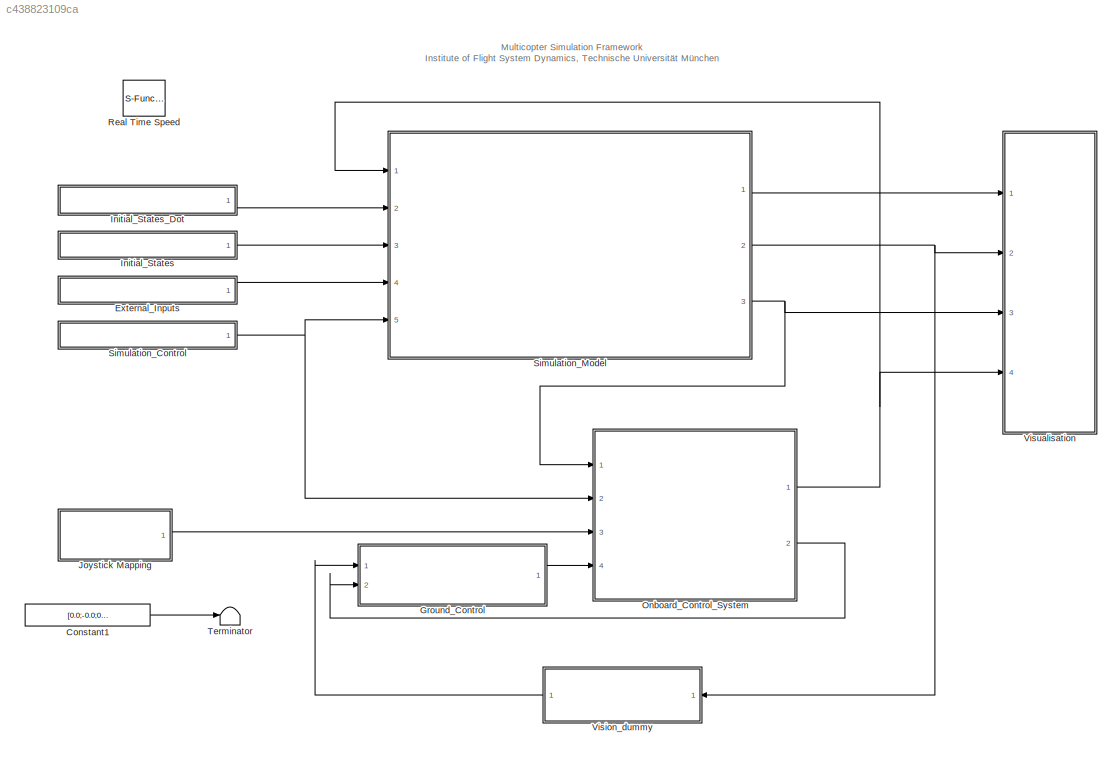
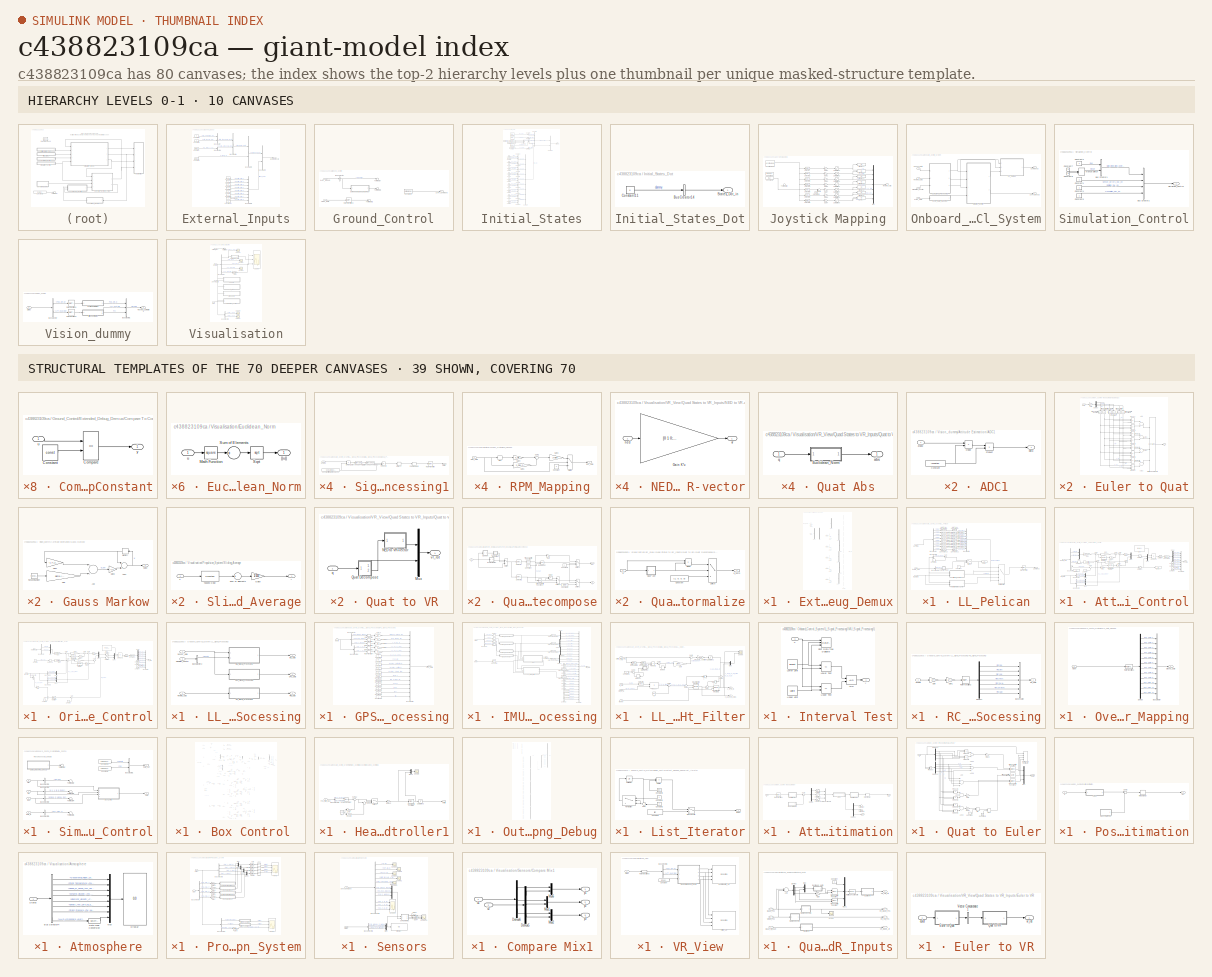
[diagram: thumbnail index - top-2 hierarchy levels (10 canvases) + 39 structural-template representatives of the remaining 70 canvases]
MODEL slx_c438823109ca
KIND model
CONFIG PreLoadFcn = addpath([cd filesep 'Multicopter_Simulation_Data'])\ninitMulticopterSimulationBus;\ninitOveroControlBus;\ninitMulticopterSimulation;
BLOCK [Constant] Constant1
  Value = [0.0;-0.0;0;-0.2;-1;0;0;]
BLOCK [SubSystem] External_Inputs
  FunctionWithSeparateData = off
  MaskHideContents = off
  MinAlgLoopOccurrences = off
  Opaque = off
  Ports = [0, 1]
  PropExecContextOutsideSubsystem = off
  RTWSystemCode = Auto
  RequestExecContextInheritance = off
BLOCK [BusCreator] External_Inputs/Bus Creator
  DisplayOption = bar
  Inputs = 2
  OutDataTypeStr = Bus: Static_Atmosphere_Inputs_Bus
  Ports = [2, 1]
BLOCK [BusCreator] External_Inputs/Bus Creator1
  DisplayOption = bar
  Inputs = 1
  OutDataTypeStr = Bus: Dynamic_Atmosphere_Inputs_Bus
  Ports = [1, 1]
BLOCK [BusCreator] External_Inputs/Bus Creator2
  DisplayOption = bar
  Inputs = 2
  OutDataTypeStr = Bus: Environment_Inputs_Bus
  Ports = [2, 1]
BLOCK [BusCreator] External_Inputs/Bus Creator3
  DisplayOption = bar
  Inputs = 2
  OutDataTypeStr = Bus: External_Inputs_Bus
  Ports = [2, 1]
BLOCK [BusCreator] External_Inputs/Bus Creator4
  DisplayOption = bar
  Inputs = 2
  OutDataTypeStr = Bus: Atmosphere_Inputs_Bus
  Ports = [2, 1]
BLOCK [BusCreator] External_Inputs/Bus Creator5
  DisplayOption = bar
  Inputs = 8
  OutDataTypeStr = Bus: Airframe_Inputs_Bus
  Ports = [8, 1]
BLOCK [Constant] External_Inputs/Constant
  Value = [0;0;0]
  VectorParams1D = off
BLOCK [Constant] External_Inputs/Constant1
  Value = 5
  VectorParams1D = off
BLOCK [Constant] External_Inputs/Constant10
  VectorParams1D = off
BLOCK [Constant] External_Inputs/Constant11
  VectorParams1D = off
BLOCK [Constant] External_Inputs/Constant2
  Value = [0;0;0]
  VectorParams1D = off
BLOCK [Constant] External_Inputs/Constant3
  Value = 0
  VectorParams1D = off
BLOCK [Constant] External_Inputs/Constant4
  VectorParams1D = off
BLOCK [Constant] External_Inputs/Constant5
  VectorParams1D = off
BLOCK [Constant] External_Inputs/Constant6
  VectorParams1D = off
BLOCK [Constant] External_Inputs/Constant7
  VectorParams1D = off
BLOCK [Constant] External_Inputs/Constant8
  VectorParams1D = off
BLOCK [Constant] External_Inputs/Constant9
  VectorParams1D = off
BLOCK [Outport] External_Inputs/External_Inputs
  IconDisplay = Port number
  OutDataTypeStr = Bus: External_Inputs_Bus
BLOCK [SubSystem] Ground_Control
  FunctionWithSeparateData = off
  MaskHideContents = off
  MinAlgLoopOccurrences = off
  Opaque = off
  Ports = [2, 1]
  PropExecContextOutsideSubsystem = off
  RTWSystemCode = Auto
  RequestExecContextInheritance = off
BLOCK [BusSelector] Ground_Control/Bus Selector
  OutputSignals = Telemetry
  Ports = [1, 1]
BLOCK [Constant] Ground_Control/Constant1
  OutDataTypeStr = single
  Value = zeros(12,1)
BLOCK [SubSystem] Ground_Control/Extended_Debug_Demux
  FunctionWithSeparateData = off
  MaskHideContents = off
  MinAlgLoopOccurrences = off
  Opaque = off
  Ports = [1, 1]
  PropExecContextOutsideSubsystem = off
  RTWSystemCode = Auto
  RequestExecContextInheritance = off
BLOCK [BusCreator] Ground_Control/Extended_Debug_Demux/Bus Creator
  DisplayOption = bar
  Inputs = 60
  Ports = [60, 1]
BLOCK [SubSystem] Ground_Control/Extended_Debug_Demux/Compare To Constant
  FunctionWithSeparateData = off
  MaskHideContents = off
  MinAlgLoopOccurrences = off
  Opaque = off
  Ports = [1, 1]
  PropExecContextOutsideSubsystem = off
  RTWSystemCode = Auto
  RequestExecContextInheritance = off
BLOCK [RelationalOperator] Ground_Control/Extended_Debug_Demux/Compare To Constant/Compare
  Operator = ==
  OutDataTypeStr = fixdt(0, 8)
  Ports = [2, 1]
  ZeroCross = off
BLOCK [Constant] Ground_Control/Extended_Debug_Demux/Compare To Constant/Constant
  DisableCoverage = on
  OutDataTypeStr = Inherit: Inherit via back propagation
  Value = const
BLOCK [Inport] Ground_Control/Extended_Debug_Demux/Compare To Constant/u
  IconDisplay = Port number
BLOCK [Outport] Ground_Control/Extended_Debug_Demux/Compare To Constant/y
  IconDisplay = Port number
BLOCK [SubSystem] Ground_Control/Extended_Debug_Demux/Compare To Constant1
  FunctionWithSeparateData = off
  MaskHideContents = off
  MinAlgLoopOccurrences = off
  Opaque = off
  Ports = [1, 1]
  PropExecContextOutsideSubsystem = off
  RTWSystemCode = Auto
  RequestExecContextInheritance = off
BLOCK [RelationalOperator] Ground_Control/Extended_Debug_Demux/Compare To Constant1/Compare
  Operator = ==
  OutDataTypeStr = fixdt(0, 8)
  Ports = [2, 1]
  ZeroCross = off
BLOCK [Constant] Ground_Control/Extended_Debug_Demux/Compare To Constant1/Constant
  DisableCoverage = on
  OutDataTypeStr = Inherit: Inherit via back propagation
  Value = const
BLOCK [Inport] Ground_Control/Extended_Debug_Demux/Compare To Constant1/u
  IconDisplay = Port number
BLOCK [Outport] Ground_Control/Extended_Debug_Demux/Compare To Constant1/y
  IconDisplay = Port number
BLOCK [SubSystem] Ground_Control/Extended_Debug_Demux/Compare To Constant2
  FunctionWithSeparateData = off
  MaskHideContents = off
  MinAlgLoopOccurrences = off
  Opaque = off
  Ports = [1, 1]
  PropExecContextOutsideSubsystem = off
  RTWSystemCode = Auto
  RequestExecContextInheritance = off
BLOCK [RelationalOperator] Ground_Control/Extended_Debug_Demux/Compare To Constant2/Compare
  Operator = ==
  OutDataTypeStr = fixdt(0, 8)
  Ports = [2, 1]
  ZeroCross = off
BLOCK [Constant] Ground_Control/Extended_Debug_Demux/Compare To Constant2/Constant
  DisableCoverage = on
  OutDataTypeStr = Inherit: Inherit via back propagation
  Value = const
BLOCK [Inport] Ground_Control/Extended_Debug_Demux/Compare To Constant2/u
  IconDisplay = Port number
BLOCK [Outport] Ground_Control/Extended_Debug_Demux/Compare To Constant2/y
  IconDisplay = Port number
BLOCK [SubSystem] Ground_Control/Extended_Debug_Demux/Compare To Constant3
  FunctionWithSeparateData = off
  MaskHideContents = off
  MinAlgLoopOccurrences = off
  Opaque = off
  Ports = [1, 1]
  PropExecContextOutsideSubsystem = off
  RTWSystemCode = Auto
  RequestExecContextInheritance = off
BLOCK [RelationalOperator] Ground_Control/Extended_Debug_Demux/Compare To Constant3/Compare
  Operator = ==
  OutDataTypeStr = fixdt(0, 8)
  Ports = [2, 1]
  ZeroCross = off
BLOCK [Constant] Ground_Control/Extended_Debug_Demux/Compare To Constant3/Constant
  DisableCoverage = on
  OutDataTypeStr = Inherit: Inherit via back propagation
  Value = const
BLOCK [Inport] Ground_Control/Extended_Debug_Demux/Compare To Constant3/u
  IconDisplay = Port number
BLOCK [Outport] Ground_Control/Extended_Debug_Demux/Compare To Constant3/y
  IconDisplay = Port number
BLOCK [SubSystem] Ground_Control/Extended_Debug_Demux/Compare To Constant4
  FunctionWithSeparateData = off
  MaskHideContents = off
  MinAlgLoopOccurrences = off
  Opaque = off
  Ports = [1, 1]
  PropExecContextOutsideSubsystem = off
  RTWSystemCode = Auto
  RequestExecContextInheritance = off
BLOCK [RelationalOperator] Ground_Control/Extended_Debug_Demux/Compare To Constant4/Compare
  Operator = ==
  OutDataTypeStr = fixdt(0, 8)
  Ports = [2, 1]
  ZeroCross = off
BLOCK [Constant] Ground_Control/Extended_Debug_Demux/Compare To Constant4/Constant
  DisableCoverage = on
  OutDataTypeStr = Inherit: Inherit via back propagation
  Value = const
BLOCK [Inport] Ground_Control/Extended_Debug_Demux/Compare To Constant4/u
  IconDisplay = Port number
BLOCK [Outport] Ground_Control/Extended_Debug_Demux/Compare To Constant4/y
  IconDisplay = Port number
BLOCK [Inport] Ground_Control/Extended_Debug_Demux/Debug_Channels
  IconDisplay = Port number
BLOCK [Demux] Ground_Control/Extended_Debug_Demux/Demux
  DisplayOption = bar
  Outputs = 10
  Ports = [1, 10]
BLOCK [Demux] Ground_Control/Extended_Debug_Demux/Demux1
  DisplayOption = bar
  Outputs = 10
  Ports = [1, 10]
BLOCK [Demux] Ground_Control/Extended_Debug_Demux/Demux2
  DisplayOption = bar
  Outputs = 10
  Ports = [1, 10]
BLOCK [Demux] Ground_Control/Extended_Debug_Demux/Demux3
  DisplayOption = bar
  Outputs = 10
  Ports = [1, 10]
BLOCK [Demux] Ground_Control/Extended_Debug_Demux/Demux4
  DisplayOption = bar
  Outputs = 10
  Ports = [1, 10]
BLOCK [Demux] Ground_Control/Extended_Debug_Demux/Demux5
  DisplayOption = bar
  Outputs = 10
  Ports = [1, 10]
BLOCK [Demux] Ground_Control/Extended_Debug_Demux/Demux6
  DisplayOption = bar
  Outputs = 9
  Ports = [1, 9]
BLOCK [Mux] Ground_Control/Extended_Debug_Demux/Mux
  DisplayOption = bar
  Inputs = 10
  Ports = [10, 1]
BLOCK [Outport] Ground_Control/Extended_Debug_Demux/Quad_Data
  IconDisplay = Port number
BLOCK [Selector] Ground_Control/Extended_Debug_Demux/Selector
  IndexOptions = Index vector (dialog)
  Indices = [11:20]
  InputPortWidth = 20
  OutputSizes = 1
  Ports = [1, 1]
BLOCK [Selector] Ground_Control/Extended_Debug_Demux/Selector1
  IndexOptions = Index vector (dialog)
  Indices = [10]
  InputPortWidth = 20
  OutputSizes = 1
  Ports = [1, 1]
BLOCK [Selector] Ground_Control/Extended_Debug_Demux/Selector2
  IndexOptions = Index vector (dialog)
  Indices = [1:9]
  InputPortWidth = 20
  OutputSizes = 1
  Ports = [1, 1]
BLOCK [Switch] Ground_Control/Extended_Debug_Demux/Switch
  Criteria = u2 ~= 0
  InputSameDT = off
  SaturateOnIntegerOverflow = off
BLOCK [Switch] Ground_Control/Extended_Debug_Demux/Switch1
  Criteria = u2 ~= 0
  InputSameDT = off
  SaturateOnIntegerOverflow = off
BLOCK [Switch] Ground_Control/Extended_Debug_Demux/Switch2
  Criteria = u2 ~= 0
  InputSameDT = off
  SaturateOnIntegerOverflow = off
BLOCK [Switch] Ground_Control/Extended_Debug_Demux/Switch3
  Criteria = u2 ~= 0
  InputSameDT = off
  SaturateOnIntegerOverflow = off
BLOCK [Switch] Ground_Control/Extended_Debug_Demux/Switch4
  Criteria = u2 ~= 0
  InputSameDT = off
  SaturateOnIntegerOverflow = off
BLOCK [UnitDelay] Ground_Control/Extended_Debug_Demux/Unit Delay
  SampleTime = -1
BLOCK [UnitDelay] Ground_Control/Extended_Debug_Demux/Unit Delay1
  SampleTime = -1
BLOCK [UnitDelay] Ground_Control/Extended_Debug_Demux/Unit Delay2
  SampleTime = -1
BLOCK [UnitDelay] Ground_Control/Extended_Debug_Demux/Unit Delay3
  SampleTime = -1
BLOCK [UnitDelay] Ground_Control/Extended_Debug_Demux/Unit Delay4
  SampleTime = -1
BLOCK [RateTransition] Ground_Control/Rate Transition2
  OutPortSampleTimeOpt = Inherit
BLOCK [Terminator] Ground_Control/Terminator
BLOCK [Terminator] Ground_Control/Terminator1
BLOCK [Terminator] Ground_Control/Terminator2
BLOCK [Outport] Ground_Control/UART_Command
  IconDisplay = Port number
BLOCK [Inport] Ground_Control/UART_Debug
  IconDisplay = Port number
  Port = 2
BLOCK [Inport] Ground_Control/Vision_Data
  IconDisplay = Port number
BLOCK [SubSystem] Initial_States
  FunctionWithSeparateData = off
  MaskHideContents = off
  MinAlgLoopOccurrences = off
  Opaque = off
  Ports = [0, 1]
  PropExecContextOutsideSubsystem = off
  RTWSystemCode = Auto
  RequestExecContextInheritance = off
BLOCK [BusCreator] Initial_States/Bus Creator1
  DisplayOption = bar
  Inputs = 1
  OutDataTypeStr = Bus: Attitude_States_Bus
  Ports = [1, 1]
BLOCK [BusCreator] Initial_States/Bus Creator10
  DisplayOption = bar
  Inputs = 2
  OutDataTypeStr = Bus: Battery_States_Bus
  Ports = [2, 1]
BLOCK [BusCreator] Initial_States/Bus Creator11
  DisplayOption = bar
  Inputs = 2
  OutDataTypeStr = Bus: States_Bus
  Ports = [2, 1]
BLOCK [BusCreator] Initial_States/Bus Creator12
  DisplayOption = bar
  Inputs = 3
  OutDataTypeStr = Bus: POS_R_WGS84_Bus
  Ports = [3, 1]
BLOCK [BusCreator] Initial_States/Bus Creator13
  DisplayOption = bar
  Inputs = 2
  OutDataTypeStr = Bus: Motor_States_Bus
  Ports = [2, 1]
BLOCK [BusCreator] Initial_States/Bus Creator14
  DisplayOption = bar
  Inputs = 2
  OutDataTypeStr = Bus: Motor_States_Bus
  Ports = [2, 1]
BLOCK [BusCreator] Initial_States/Bus Creator15
  DisplayOption = bar
  Inputs = 2
  OutDataTypeStr = Bus: Motor_States_Bus
  Ports = [2, 1]
BLOCK [BusCreator] Initial_States/Bus Creator16
  DisplayOption = bar
  Inputs = 2
  OutDataTypeStr = Bus: Motor_States_Bus
  Ports = [2, 1]
BLOCK [BusCreator] Initial_States/Bus Creator18
  DisplayOption = bar
  Inputs = 2
  OutDataTypeStr = Bus: Motor_States_Bus
  Ports = [2, 1]
BLOCK [BusCreator] Initial_States/Bus Creator2
  DisplayOption = bar
  OutDataTypeStr = Bus: Rigid_Body_States_Bus
  Ports = [4, 1]
BLOCK [BusCreator] Initial_States/Bus Creator3
  DisplayOption = bar
  Inputs = 1
  OutDataTypeStr = Bus: Translation_States_Bus
  Ports = [1, 1]
BLOCK [BusCreator] Initial_States/Bus Creator4
  DisplayOption = bar
  Inputs = 1
  OutDataTypeStr = Bus: Rotation_States_Bus
  Ports = [1, 1]
BLOCK [BusCreator] Initial_States/Bus Creator5
  DisplayOption = bar
  Inputs = 2
  OutDataTypeStr = Bus: Position_States_Bus
  Ports = [2, 1]
BLOCK [BusCreator] Initial_States/Bus Creator6
  DisplayOption = bar
  Inputs = 2
  OutDataTypeStr = Bus: Motor_States_Bus
  Ports = [2, 1]
BLOCK [BusCreator] Initial_States/Bus Creator7
  DisplayOption = bar
  Inputs = 2
  OutDataTypeStr = Bus: Motor_States_Bus
  Ports = [2, 1]
BLOCK [BusCreator] Initial_States/Bus Creator8
  DisplayOption = bar
  Inputs = 2
  OutDataTypeStr = Bus: Motor_States_Bus
  Ports = [2, 1]
BLOCK [BusCreator] Initial_States/Bus Creator9
  DisplayOption = bar
  Inputs = 9
  OutDataTypeStr = Bus: Airframe_States_Bus
  Ports = [9, 1]
BLOCK [Constant] Initial_States/Constant1
  Value = 0
BLOCK [Constant] Initial_States/Constant10
  Value = 0
BLOCK [Constant] Initial_States/Constant11
  Value = 0
BLOCK [Constant] Initial_States/Constant12
  Value = 0
BLOCK [Constant] Initial_States/Constant13
  Value = 0
BLOCK [Constant] Initial_States/Constant14
  Value = 0
BLOCK [Constant] Initial_States/Constant15
  Value = 1500*3600
BLOCK [Constant] Initial_States/Constant19
  Value = 0
BLOCK [Constant] Initial_States/Constant2
  Value = 0
BLOCK [Constant] Initial_States/Constant20
  Value = 0
BLOCK [Constant] Initial_States/Constant21
  Value = 0
BLOCK [Constant] Initial_States/Constant22
  Value = 0
BLOCK [Constant] Initial_States/Constant23
  Value = 0
BLOCK [Constant] Initial_States/Constant24
  Value = 0
BLOCK [Constant] Initial_States/Constant25
  Value = 0
BLOCK [Constant] Initial_States/Constant26
  Value = rad(11+39/60+57.02/3600)
  VectorParams1D = off
BLOCK [Constant] Initial_States/Constant27
  Value = rad(48+15/60+55.77/3600)
  VectorParams1D = off
BLOCK [Constant] Initial_States/Constant28
  Value = 472
  VectorParams1D = off
BLOCK [Constant] Initial_States/Constant3
  Value = 0
BLOCK [Constant] Initial_States/Constant4
  Value = [0;0;0]
  VectorParams1D = off
BLOCK [Constant] Initial_States/Constant5
  Value = [0;0;0]
  VectorParams1D = off
BLOCK [Constant] Initial_States/Constant6
  Value = [4;0;-0.35]
  VectorParams1D = off
BLOCK [Constant] Initial_States/Constant7
  Value = quat_fr_euler([0.2;0;0])
  VectorParams1D = off
BLOCK [Constant] Initial_States/Constant8
  Value = 0
BLOCK [Constant] Initial_States/Constant9
  Value = 0
BLOCK [Outport] Initial_States/States_Init
  IconDisplay = Port number
  OutDataTypeStr = Bus: States_Bus
BLOCK [SubSystem] Initial_States_Dot
  FunctionWithSeparateData = off
  MaskHideContents = off
  MinAlgLoopOccurrences = off
  Opaque = off
  Ports = [0, 1]
  PropExecContextOutsideSubsystem = off
  RTWSystemCode = Auto
  RequestExecContextInheritance = off
BLOCK [BusCreator] Initial_States_Dot/Bus Creator14
  DisplayOption = bar
  Inputs = 1
  OutDataTypeStr = Bus: States_Dot_in_Bus
  Ports = [1, 1]
BLOCK [Constant] Initial_States_Dot/Constant11
  Value = 0
  VectorParams1D = off
BLOCK [Outport] Initial_States_Dot/States_Dot_in
  IconDisplay = Port number
  OutDataTypeStr = Bus: States_Dot_in_Bus
BLOCK [SubSystem] Joystick Mapping
  FunctionWithSeparateData = off
  MaskHideContents = off
  MinAlgLoopOccurrences = off
  Opaque = off
  Ports = [0, 1]
  PropExecContextOutsideSubsystem = off
  RTWSystemCode = Auto
  RequestExecContextInheritance = off
BLOCK [Constant] Joystick Mapping/Constant
  Value = [0.0,0.0,0.5,1,0,0]
BLOCK [Constant] Joystick Mapping/Constant1
  Value = [0,1]
BLOCK [Constant] Joystick Mapping/Constant3
  OutDataTypeStr = double
  Value = 0.5
BLOCK [Display] Joystick Mapping/Display1
  Decimation = 1
  Lockdown = off
  Ports = [1]
BLOCK [Display] Joystick Mapping/Display2
  Decimation = 1
  Lockdown = off
  Ports = [1]
BLOCK [Display] Joystick Mapping/Display3
  Decimation = 1
  Lockdown = off
  Ports = [1]
BLOCK [Display] Joystick Mapping/Display4
  Decimation = 1
  Lockdown = off
  Ports = [1]
BLOCK [Display] Joystick Mapping/Display5
  Decimation = 1
  Lockdown = off
  Ports = [1]
BLOCK [Display] Joystick Mapping/Display6
  Decimation = 1
  Lockdown = off
  Ports = [1]
BLOCK [Display] Joystick Mapping/Display7
  Decimation = 1
  Lockdown = off
  Ports = [1]
BLOCK [Gain] Joystick Mapping/Gain1
  OutDataTypeStr = double
  ParamDataTypeStr = Inherit: Inherit via internal rule
  SaturateOnIntegerOverflow = off
BLOCK [Gain] Joystick Mapping/Gain2
  OutDataTypeStr = double
  ParamDataTypeStr = Inherit: Inherit via internal rule
  SaturateOnIntegerOverflow = off
BLOCK [Gain] Joystick Mapping/Gain3
  OutDataTypeStr = double
  ParamDataTypeStr = Inherit: Inherit via internal rule
  SaturateOnIntegerOverflow = off
BLOCK [Gain] Joystick Mapping/Gain4
  OutDataTypeStr = double
  ParamDataTypeStr = Inherit: Inherit via internal rule
  SaturateOnIntegerOverflow = off
BLOCK [Gain] Joystick Mapping/Gain5
  Gain = -1
  OutDataTypeStr = double
  ParamDataTypeStr = Inherit: Inherit via internal rule
  SaturateOnIntegerOverflow = off
BLOCK [Gain] Joystick Mapping/Gain6
  OutDataTypeStr = double
  ParamDataTypeStr = Inherit: Inherit via internal rule
  SaturateOnIntegerOverflow = off
BLOCK [Gain] Joystick Mapping/Gain7
  Gain = 2
  OutDataTypeStr = double
  ParamDataTypeStr = Inherit: Inherit via internal rule
  SaturateOnIntegerOverflow = off
BLOCK [Reference] Joystick Mapping/Joystick Input  REF=vrlib/Joystick Input
  Ports = [0, 2]
  SourceBlock = vrlib/Joystick Input
  SourceType = Joystick Input
  adjustports = on
  forcefeed = off
  joyid = 1
BLOCK [Mux] Joystick Mapping/Mux
  DisplayOption = bar
  Inputs = 7
  Ports = [7, 1]
BLOCK [Outport] Joystick Mapping/Remote_CMD
  IconDisplay = Port number
BLOCK [Saturate] Joystick Mapping/Saturation1
  InputPortMap = u0
  LowerLimit = -1
  Ports = [1, 1]
  UpperLimit = 1
BLOCK [Saturate] Joystick Mapping/Saturation2
  InputPortMap = u0
  LowerLimit = -1
  Ports = [1, 1]
  UpperLimit = 1
BLOCK [Saturate] Joystick Mapping/Saturation3
  InputPortMap = u0
  LowerLimit = -1
  Ports = [1, 1]
  UpperLimit = 1
BLOCK [Saturate] Joystick Mapping/Saturation4
  InputPortMap = u0
  LowerLimit = -1
  Ports = [1, 1]
  UpperLimit = 1
BLOCK [Saturate] Joystick Mapping/Saturation5
  InputPortMap = u0
  LowerLimit = -1
  Ports = [1, 1]
  UpperLimit = 1
BLOCK [Saturate] Joystick Mapping/Saturation6
  InputPortMap = u0
  LowerLimit = -1
  Ports = [1, 1]
  UpperLimit = 1
BLOCK [Saturate] Joystick Mapping/Saturation7
  InputPortMap = u0
  LowerLimit = -1
  Ports = [1, 1]
  UpperLimit = 1
BLOCK [Selector] Joystick Mapping/Selector
  IndexOptions = Index vector (dialog)
  Indices = [1]
  OutputSizes = 1
  Ports = [1, 1]
BLOCK [Selector] Joystick Mapping/Selector1
  IndexOptions = Index vector (dialog)
  Indices = [2]
  OutputSizes = 1
  Ports = [1, 1]
BLOCK [Selector] Joystick Mapping/Selector2
  IndexOptions = Index vector (dialog)
  Indices = [4]
  OutputSizes = 1
  Ports = [1, 1]
BLOCK [Selector] Joystick Mapping/Selector3
  IndexOptions = Index vector (dialog)
  Indices = [5]
  OutputSizes = 1
  Ports = [1, 1]
BLOCK [Selector] Joystick Mapping/Selector4
  IndexOptions = Index vector (dialog)
  Indices = [6]
  OutputSizes = 1
  Ports = [1, 1]
BLOCK [Selector] Joystick Mapping/Selector5
  IndexOptions = Index vector (dialog)
  Indices = [3]
  OutputSizes = 1
  Ports = [1, 1]
BLOCK [Selector] Joystick Mapping/Selector6
  IndexOptions = Index vector (dialog)
  Indices = [2]
  OutputSizes = 1
  Ports = [1, 1]
BLOCK [Sum] Joystick Mapping/Sum
  IconShape = round
  InputSameDT = off
  Inputs = |+-
  OutDataTypeStr = double
  Ports = [2, 1]
  SaturateOnIntegerOverflow = off
BLOCK [Terminator] Joystick Mapping/Terminator2
BLOCK [SubSystem] Onboard_Control_System
  FunctionWithSeparateData = off
  MaskHideContents = off
  MinAlgLoopOccurrences = off
  Opaque = off
  Ports = [4, 2]
  PropExecContextOutsideSubsystem = off
  RTWSystemCode = Auto
  RequestExecContextInheritance = off
BLOCK [Outport] Onboard_Control_System/Commands
  IconDisplay = Port number
  OutDataTypeStr = Bus: Commands_Bus
BLOCK [SubSystem] Onboard_Control_System/LL_Pelican
  FunctionWithSeparateData = off
  MaskHideContents = off
  MinAlgLoopOccurrences = off
  Opaque = off
  Ports = [3, 1]
  PropExecContextOutsideSubsystem = off
  RTWSystemCode = Auto
  RequestExecContextInheritance = off
BLOCK [SubSystem] Onboard_Control_System/LL_Pelican/Attitude_Control
  FunctionWithSeparateData = off
  MaskHideContents = off
  MinAlgLoopOccurrences = off
  Opaque = off
  Ports = [2, 1]
  PropExecContextOutsideSubsystem = off
  RTWSystemCode = Auto
  RequestExecContextInheritance = off
BLOCK [BusCreator] Onboard_Control_System/LL_Pelican/Attitude_Control/Bus Creator2
  DisplayOption = bar
  Inputs = 8
  Ports = [8, 1]
BLOCK [BusSelector] Onboard_Control_System/LL_Pelican/Attitude_Control/Bus Selector
  OutputSignals = Pilot_Roll,Pilot_Nick,Pilot_Yaw,Pilot_Thrust
  Ports = [1, 4]
BLOCK [BusSelector] Onboard_Control_System/LL_Pelican/Attitude_Control/Bus Selector1
  OutputSignals = Phi_est_rad,Theta_est_rad
  Ports = [1, 2]
BLOCK [BusSelector] Onboard_Control_System/LL_Pelican/Attitude_Control/Bus Selector2
  OutputSignals = w_x_K_IB_B_radDs,w_y_K_IB_B_radDs,w_z_K_IB_B_radDs
  Ports = [1, 3]
BLOCK [Constant] Onboard_Control_System/LL_Pelican/Attitude_Control/Constant
  OutDataTypeStr = single
BLOCK [Constant] Onboard_Control_System/LL_Pelican/Attitude_Control/Constant4
BLOCK [Constant] Onboard_Control_System/LL_Pelican/Attitude_Control/Constant5
BLOCK [Constant] Onboard_Control_System/LL_Pelican/Attitude_Control/Constant6
BLOCK [Constant] Onboard_Control_System/LL_Pelican/Attitude_Control/Constant7
BLOCK [DataTypeConversion] Onboard_Control_System/LL_Pelican/Attitude_Control/Data Type Conversion1
  OutDataTypeStr = double
  RndMeth = Floor
  SaturateOnIntegerOverflow = off
BLOCK [DeadZone] Onboard_Control_System/LL_Pelican/Attitude_Control/Dead Zone
  LowerValue = -0.1
  UpperValue = 0.1
BLOCK [Demux] Onboard_Control_System/LL_Pelican/Attitude_Control/Demux
  DisplayOption = bar
  Ports = [1, 4]
BLOCK [DiscreteIntegrator] Onboard_Control_System/LL_Pelican/Attitude_Control/Discrete-Time Integrator
  ICPrevOutput = DiscIntNeverNeededParam
  ICPrevScaledInput = DiscIntNeverNeededParam
  LimitOutput = on
  LowerSaturationLimit = -30/180*pi
  Ports = [1, 1]
  SampleTime = -1
  UpperSaturationLimit = 30/180*pi
BLOCK [DiscreteIntegrator] Onboard_Control_System/LL_Pelican/Attitude_Control/Discrete-Time Integrator1
  ICPrevOutput = DiscIntNeverNeededParam
  ICPrevScaledInput = DiscIntNeverNeededParam
  LimitOutput = on
  LowerSaturationLimit = -5/180*pi
  Ports = [1, 1]
  SampleTime = -1
  UpperSaturationLimit = 5/180*pi
BLOCK [Display] Onboard_Control_System/LL_Pelican/Attitude_Control/Display1
  Decimation = 1
  Lockdown = off
  Ports = [1]
BLOCK [Display] Onboard_Control_System/LL_Pelican/Attitude_Control/Display2
  Decimation = 1
  Lockdown = off
  Ports = [1]
BLOCK [Gain] Onboard_Control_System/LL_Pelican/Attitude_Control/Gain1
  Gain = 80
  OutDataTypeStr = Inherit: Inherit via internal rule
  ParamDataTypeStr = Inherit: Inherit via internal rule
  SaturateOnIntegerOverflow = off
BLOCK [Gain] Onboard_Control_System/LL_Pelican/Attitude_Control/Gain2
  Gain = 12
  OutDataTypeStr = Inherit: Inherit via internal rule
  ParamDataTypeStr = Inherit: Inherit via internal rule
  SaturateOnIntegerOverflow = off
BLOCK [Gain] Onboard_Control_System/LL_Pelican/Attitude_Control/Gain3
  Gain = 100
  OutDataTypeStr = Inherit: Inherit via internal rule
  ParamDataTypeStr = Inherit: Inherit via internal rule
  SaturateOnIntegerOverflow = off
BLOCK [Gain] Onboard_Control_System/LL_Pelican/Attitude_Control/Gain4
  Gain = 50/180*pi
  OutDataTypeStr = Inherit: Inherit via internal rule
  ParamDataTypeStr = Inherit: Inherit via internal rule
  SaturateOnIntegerOverflow = off
BLOCK [Gain] Onboard_Control_System/LL_Pelican/Attitude_Control/Gain5
  Gain = 4
  OutDataTypeStr = Inherit: Inherit via internal rule
  ParamDataTypeStr = Inherit: Inherit via internal rule
  SaturateOnIntegerOverflow = off
BLOCK [Gain] Onboard_Control_System/LL_Pelican/Attitude_Control/Gain6
  Gain = 250*pi/180
  OutDataTypeStr = Inherit: Inherit via internal rule
  ParamDataTypeStr = Inherit: Inherit via internal rule
  SaturateOnIntegerOverflow = off
BLOCK [Gain] Onboard_Control_System/LL_Pelican/Attitude_Control/Gain7
  Gain = 6
  OutDataTypeStr = Inherit: Inherit via internal rule
  ParamDataTypeStr = Inherit: Inherit via internal rule
  SaturateOnIntegerOverflow = off
BLOCK [Gain] Onboard_Control_System/LL_Pelican/Attitude_Control/Gain9
  Gain = 4
  OutDataTypeStr = Inherit: Inherit via internal rule
  ParamDataTypeStr = Inherit: Inherit via internal rule
  SaturateOnIntegerOverflow = off
BLOCK [Inport] Onboard_Control_System/LL_Pelican/Attitude_Control/IMU_Data
  IconDisplay = Port number
  Port = 2
BLOCK [Outport] Onboard_Control_System/LL_Pelican/Attitude_Control/LL_CMD
  IconDisplay = Port number
BLOCK [Product] Onboard_Control_System/LL_Pelican/Attitude_Control/MX Product1
  InputSameDT = off
  Multiplication = Matrix(*)
  OutDataTypeStr = double
  Ports = [2, 1]
  RndMeth = Simplest
  SaturateOnIntegerOverflow = off
BLOCK [Constant] Onboard_Control_System/LL_Pelican/Attitude_Control/Mixer
  OutDataTypeStr = single
  Value = [0 1 -1 1; -1 0 1 1; 0 -1 -1 1;\n1 0 1 1]
  VectorParams1D = off
BLOCK [Mux] Onboard_Control_System/LL_Pelican/Attitude_Control/Mux
  DisplayOption = bar
  Inputs = 2
  Ports = [2, 1]
BLOCK [Mux] Onboard_Control_System/LL_Pelican/Attitude_Control/Mux1
  DisplayOption = bar
  Inputs = 2
  Ports = [2, 1]
BLOCK [Mux] Onboard_Control_System/LL_Pelican/Attitude_Control/Mux2
  DisplayOption = bar
  Inputs = 2
  Ports = [2, 1]
BLOCK [Mux] Onboard_Control_System/LL_Pelican/Attitude_Control/Mux3
  DisplayOption = bar
  Inputs = 2
  Ports = [2, 1]
BLOCK [Mux] Onboard_Control_System/LL_Pelican/Attitude_Control/Mux5
  DisplayOption = bar
  Inputs = 2
  Ports = [2, 1]
BLOCK [Inport] Onboard_Control_System/LL_Pelican/Attitude_Control/Remote_CMD
  IconDisplay = Port number
BLOCK [Saturate] Onboard_Control_System/LL_Pelican/Attitude_Control/Saturation1
  InputPortMap = u0
  LowerLimit = 1
  Ports = [1, 1]
  UpperLimit = 170
BLOCK [Saturate] Onboard_Control_System/LL_Pelican/Attitude_Control/Saturation2
  InputPortMap = u0
  LowerLimit = -100
  Ports = [1, 1]
  UpperLimit = 100
BLOCK [Saturate] Onboard_Control_System/LL_Pelican/Attitude_Control/Saturation4
  InputPortMap = u0
  LowerLimit = 1
  OutDataTypeStr = int16
  Ports = [1, 1]
  UpperLimit = 200
BLOCK [Sum] Onboard_Control_System/LL_Pelican/Attitude_Control/Sum1
  IconShape = round
  InputSameDT = off
  Inputs = |+-
  OutDataTypeStr = Inherit: Inherit via internal rule
  Ports = [2, 1]
  SaturateOnIntegerOverflow = off
BLOCK [Sum] Onboard_Control_System/LL_Pelican/Attitude_Control/Sum2
  IconShape = round
  InputSameDT = off
  Inputs = |++
  OutDataTypeStr = Inherit: Inherit via internal rule
  Ports = [2, 1]
  SaturateOnIntegerOverflow = off
BLOCK [Sum] Onboard_Control_System/LL_Pelican/Attitude_Control/Sum3
  IconShape = round
  InputSameDT = off
  Inputs = |+-
  OutDataTypeStr = Inherit: Inherit via internal rule
  Ports = [2, 1]
  SaturateOnIntegerOverflow = off
BLOCK [Sum] Onboard_Control_System/LL_Pelican/Attitude_Control/Sum4
  IconShape = round
  InputSameDT = off
  Inputs = |++
  OutDataTypeStr = Inherit: Inherit via internal rule
  Ports = [2, 1]
  SaturateOnIntegerOverflow = off
BLOCK [Sum] Onboard_Control_System/LL_Pelican/Attitude_Control/Sum5
  IconShape = round
  InputSameDT = off
  Inputs = |+-
  OutDataTypeStr = Inherit: Inherit via internal rule
  Ports = [2, 1]
  SaturateOnIntegerOverflow = off
BLOCK [Sum] Onboard_Control_System/LL_Pelican/Attitude_Control/Sum6
  IconShape = round
  InputSameDT = off
  Inputs = |++
  OutDataTypeStr = Inherit: Inherit via internal rule
  Ports = [2, 1]
  SaturateOnIntegerOverflow = off
BLOCK [BusCreator] Onboard_Control_System/LL_Pelican/Bus Creator1
  DisplayOption = bar
  Inputs = 8
  Ports = [8, 1]
BLOCK [BusSelector] Onboard_Control_System/LL_Pelican/Bus Selector
  OutputSignals = motor1,motor2,motor3\n,motor4,motor5,motor6,motor7,motor8
  Ports = [1, 8]
BLOCK [BusSelector] Onboard_Control_System/LL_Pelican/Bus Selector1
  OutputSignals = Pilot_SW_HL
  Ports = [1, 1]
BLOCK [BusSelector] Onboard_Control_System/LL_Pelican/Bus Selector2
  OutputSignals = Pilot_SW_Mode
  Ports = [1, 1]
BLOCK [Outport] Onboard_Control_System/LL_Pelican/Commands
  IconDisplay = Port number
  OutDataTypeStr = Bus: Commands_Bus
BLOCK [SubSystem] Onboard_Control_System/LL_Pelican/Compare To Zero
  FunctionWithSeparateData = off
  MaskHideContents = off
  MinAlgLoopOccurrences = off
  Opaque = off
  Ports = [1, 1]
  PropExecContextOutsideSubsystem = off
  RTWSystemCode = Auto
  RequestExecContextInheritance = off
BLOCK [RelationalOperator] Onboard_Control_System/LL_Pelican/Compare To Zero/Compare
  Operator = >
  OutDataTypeStr = fixdt(0, 8)
  Ports = [2, 1]
BLOCK [Constant] Onboard_Control_System/LL_Pelican/Compare To Zero/Constant
  DisableCoverage = on
  OutDataTypeStr = Inherit: Inherit via back propagation
  PreserveConstantTs = on
  Value = 0
BLOCK [Inport] Onboard_Control_System/LL_Pelican/Compare To Zero/u
  IconDisplay = Port number
BLOCK [Outport] Onboard_Control_System/LL_Pelican/Compare To Zero/y
  IconDisplay = Port number
BLOCK [Constant] Onboard_Control_System/LL_Pelican/Constant
BLOCK [Constant] Onboard_Control_System/LL_Pelican/Constant1
  OutDataTypeStr = uint8
  Value = 3
BLOCK [DataTypeConversion] Onboard_Control_System/LL_Pelican/Data Type Conversion1
  OutDataTypeStr = double
  RndMeth = Floor
  SaturateOnIntegerOverflow = off
BLOCK [DataTypeConversion] Onboard_Control_System/LL_Pelican/Data Type Conversion10
  OutDataTypeStr = double
  RndMeth = Floor
  SaturateOnIntegerOverflow = off
BLOCK [DataTypeConversion] Onboard_Control_System/LL_Pelican/Data Type Conversion11
  OutDataTypeStr = double
  RndMeth = Floor
  SaturateOnIntegerOverflow = off
BLOCK [DataTypeConversion] Onboard_Control_System/LL_Pelican/Data Type Conversion12
  OutDataTypeStr = double
  RndMeth = Floor
  SaturateOnIntegerOverflow = off
BLOCK [DataTypeConversion] Onboard_Control_System/LL_Pelican/Data Type Conversion13
  OutDataTypeStr = int16
  RndMeth = Floor
  SaturateOnIntegerOverflow = off
BLOCK [DataTypeConversion] Onboard_Control_System/LL_Pelican/Data Type Conversion14
  OutDataTypeStr = int16
  RndMeth = Floor
  SaturateOnIntegerOverflow = off
BLOCK [DataTypeConversion] Onboard_Control_System/LL_Pelican/Data Type Conversion15
  OutDataTypeStr = int16
  RndMeth = Floor
  SaturateOnIntegerOverflow = off
BLOCK [DataTypeConversion] Onboard_Control_System/LL_Pelican/Data Type Conversion16
  OutDataTypeStr = int16
  RndMeth = Floor
  SaturateOnIntegerOverflow = off
BLOCK [DataTypeConversion] Onboard_Control_System/LL_Pelican/Data Type Conversion2
  OutDataTypeStr = double
  RndMeth = Floor
  SaturateOnIntegerOverflow = off
BLOCK [DataTypeConversion] Onboard_Control_System/LL_Pelican/Data Type Conversion3
  OutDataTypeStr = double
  RndMeth = Floor
  SaturateOnIntegerOverflow = off
BLOCK [DataTypeConversion] Onboard_Control_System/LL_Pelican/Data Type Conversion4
  OutDataTypeStr = int16
  RndMeth = Floor
  SaturateOnIntegerOverflow = off
BLOCK [DataTypeConversion] Onboard_Control_System/LL_Pelican/Data Type Conversion5
  OutDataTypeStr = int16
  RndMeth = Floor
  SaturateOnIntegerOverflow = off
BLOCK [DataTypeConversion] Onboard_Control_System/LL_Pelican/Data Type Conversion6
  OutDataTypeStr = int16
  RndMeth = Floor
  SaturateOnIntegerOverflow = off
BLOCK [DataTypeConversion] Onboard_Control_System/LL_Pelican/Data Type Conversion7
  OutDataTypeStr = int16
  RndMeth = Floor
  SaturateOnIntegerOverflow = off
BLOCK [DataTypeConversion] Onboard_Control_System/LL_Pelican/Data Type Conversion8
  OutDataTypeStr = double
  RndMeth = Floor
  SaturateOnIntegerOverflow = off
BLOCK [DataTypeConversion] Onboard_Control_System/LL_Pelican/Data Type Conversion9
  OutDataTypeStr = double
  RndMeth = Floor
  SaturateOnIntegerOverflow = off
BLOCK [Display] Onboard_Control_System/LL_Pelican/Display
  Decimation = 1
  Lockdown = off
  Ports = [1]
BLOCK [Inport] Onboard_Control_System/LL_Pelican/HL_CMD
  IconDisplay = Port number
  OutDataTypeStr = Bus: FCS_CMD_Bus
  Port = 3
BLOCK [SubSystem] Onboard_Control_System/LL_Pelican/Height//Orientation_Control
  FunctionWithSeparateData = off
  MaskHideContents = off
  MinAlgLoopOccurrences = off
  Opaque = off
  Ports = [2, 1]
  PropExecContextOutsideSubsystem = off
  RTWSystemCode = Auto
  RequestExecContextInheritance = off
BLOCK [BusCreator] Onboard_Control_System/LL_Pelican/Height//Orientation_Control/Bus Creator2
  DisplayOption = bar
  Inputs = 8
  Ports = [8, 1]
BLOCK [BusSelector] Onboard_Control_System/LL_Pelican/Height//Orientation_Control/Bus Selector
  OutputSignals = Pilot_Roll,Pilot_Nick
  Ports = [1, 2]
BLOCK [BusSelector] Onboard_Control_System/LL_Pelican/Height//Orientation_Control/Bus Selector1
  OutputSignals = Phi_est_rad,Theta_est_rad
  Ports = [1, 2]
BLOCK [BusSelector] Onboard_Control_System/LL_Pelican/Height//Orientation_Control/Bus Selector2
  OutputSignals = w_x_K_IB_B_radDs,w_y_K_IB_B_radDs,w_z_K_IB_B_radDs
  Ports = [1, 3]
BLOCK [BusSelector] Onboard_Control_System/LL_Pelican/Height//Orientation_Control/Bus Selector3
  OutputSignals = z_R_N_est_m
  Ports = [1, 1]
BLOCK [Constant] Onboard_Control_System/LL_Pelican/Height//Orientation_Control/Constant1
  OutDataTypeStr = single
  Value = 0
BLOCK [Constant] Onboard_Control_System/LL_Pelican/Height//Orientation_Control/Constant2
  OutDataTypeStr = single
  Value = 77
BLOCK [Constant] Onboard_Control_System/LL_Pelican/Height//Orientation_Control/Constant3
  OutDataTypeStr = single
  Value = 5
BLOCK [Constant] Onboard_Control_System/LL_Pelican/Height//Orientation_Control/Constant4
BLOCK [Constant] Onboard_Control_System/LL_Pelican/Height//Orientation_Control/Constant5
BLOCK [Constant] Onboard_Control_System/LL_Pelican/Height//Orientation_Control/Constant6
BLOCK [Constant] Onboard_Control_System/LL_Pelican/Height//Orientation_Control/Constant7
BLOCK [DataTypeConversion] Onboard_Control_System/LL_Pelican/Height//Orientation_Control/Data Type Conversion1
  OutDataTypeStr = double
  RndMeth = Floor
  SaturateOnIntegerOverflow = off
BLOCK [DeadZone] Onboard_Control_System/LL_Pelican/Height//Orientation_Control/Dead Zone
  LowerValue = -0.1
  UpperValue = 0.1
BLOCK [Demux] Onboard_Control_System/LL_Pelican/Height//Orientation_Control/Demux
  DisplayOption = bar
  Ports = [1, 4]
BLOCK [Reference] Onboard_Control_System/LL_Pelican/Height//Orientation_Control/Discrete PID Controller  REF=simulink/Continuous/PID Controller
  AntiWindupMode = none
  Controller = PID
  D = 5
  DOutDataTypeStr = Inherit: Inherit via internal rule
  DOutMax = []
  DOutMin = []
  DParamDataTypeStr = Inherit: Inherit via internal rule
  DParamMax = []
  DParamMin = []
  ExternalReset = none
  FilterContinuousStateAttributes = ''
  FilterMethod = Forward Euler
  FilterOutDataTypeStr = Inherit: Inherit via internal rule
  FilterOutMax = []
  FilterOutMin = []
  FilterRTWStateStorageClass = Auto
  FilterStateMustResolveToSignalObject = off
  Form = Parallel
  I = 0
  IOutDataTypeStr = Inherit: Inherit via internal rule
  IOutMax = []
  IOutMin = []
  IParamDataTypeStr = Inherit: Inherit via internal rule
  IParamMax = []
  IParamMin = []
  IgnoreLimit = off
  InitialConditionForFilter = 0
  InitialConditionForIntegrator = 0
  InitialConditionSource = internal
  IntegratorContinuousStateAttributes = ''
  IntegratorMethod = Forward Euler
  IntegratorOutDataTypeStr = Inherit: Inherit via internal rule
  IntegratorOutMax = []
  IntegratorOutMin = []
  IntegratorRTWStateStorageClass = Auto
  IntegratorStateMustResolveToSignalObject = off
  Kb = 1
  KbOutDataTypeStr = Inherit: Inherit via internal rule
  KbOutMax = []
  KbOutMin = []
  KbParamDataTypeStr = Inherit: Inherit via internal rule
  KbParamMax = []
  KbParamMin = []
  Kt = 1
  KtOutDataTypeStr = Inherit: Inherit via internal rule
  KtOutMax = []
  KtOutMin = []
  KtParamDataTypeStr = Inherit: Inherit via internal rule
  KtParamMax = []
  KtParamMin = []
  LimitOutput = off
  LinearizeAsGain = off
  LockScale = off
  LowerSaturationLimit = -inf
  N = 1
  NOutDataTypeStr = Inherit: Inherit via internal rule
  NOutMax = []
  NOutMin = []
  NParamDataTypeStr = Inherit: Inherit via internal rule
  NParamMax = []
  NParamMin = []
  P = 8
  POutDataTypeStr = Inherit: Inherit via internal rule
  POutMax = []
  POutMin = []
  PParamDataTypeStr = Inherit: Inherit via internal rule
  PParamMax = []
  PParamMin = []
  Ports = [1, 1]
  RndMeth = Floor
  SampleTime = -1
  SaturateOnIntegerOverflow = off
  SaturationOutDataTypeStr = Inherit: Same as input
  SaturationOutMax = []
  SaturationOutMin = []
  SourceBlock = simulink/Continuous/PID Controller
  SourceType = PID 1dof
  SumAccumDataTypeStr = Inherit: Inherit via internal rule
  SumDAccumDataTypeStr = Inherit: Inherit via internal rule
  SumDOutDataTypeStr = Inherit: Inherit via internal rule
  SumDOutMax = []
  SumDOutMin = []
  SumI1AccumDataTypeStr = Inherit: Inherit via internal rule
  SumI1OutDataTypeStr = Inherit: Inherit via internal rule
  SumI1OutMax = []
  SumI1OutMin = []
  SumI2AccumDataTypeStr = Inherit: Inherit via internal rule
  SumI2OutDataTypeStr = Inherit: Inherit via internal rule
  SumI2OutMax = []
  SumI2OutMin = []
  SumI3AccumDataTypeStr = Inherit: Inherit via internal rule
  SumI3OutDataTypeStr = Inherit: Inherit via internal rule
  SumI3OutMax = []
  SumI3OutMin = []
  SumOutDataTypeStr = Inherit: Inherit via internal rule
  SumOutMax = []
  SumOutMin = []
  TimeDomain = Discrete-time
  TrackingMode = off
  UpperSaturationLimit = inf
  ZeroCross = on
BLOCK [DiscreteIntegrator] Onboard_Control_System/LL_Pelican/Height//Orientation_Control/Discrete-Time Integrator
  ICPrevOutput = DiscIntNeverNeededParam
  ICPrevScaledInput = DiscIntNeverNeededParam
  LimitOutput = on
  LowerSaturationLimit = -30/180*pi
  Ports = [1, 1]
  SampleTime = -1
  UpperSaturationLimit = 30/180*pi
BLOCK [DiscreteIntegrator] Onboard_Control_System/LL_Pelican/Height//Orientation_Control/Discrete-Time Integrator1
  ICPrevOutput = DiscIntNeverNeededParam
  ICPrevScaledInput = DiscIntNeverNeededParam
  LimitOutput = on
  LowerSaturationLimit = -5/180*pi
  Ports = [1, 1]
  SampleTime = -1
  UpperSaturationLimit = 5/180*pi
BLOCK [Gain] Onboard_Control_System/LL_Pelican/Height//Orientation_Control/Gain
  Gain = -1
  OutDataTypeStr = Inherit: Inherit via internal rule
  ParamDataTypeStr = Inherit: Inherit via internal rule
  SaturateOnIntegerOverflow = off
BLOCK [Gain] Onboard_Control_System/LL_Pelican/Height//Orientation_Control/Gain1
  Gain = 80
  OutDataTypeStr = Inherit: Inherit via internal rule
  ParamDataTypeStr = Inherit: Inherit via internal rule
  SaturateOnIntegerOverflow = off
BLOCK [Gain] Onboard_Control_System/LL_Pelican/Height//Orientation_Control/Gain2
  Gain = 12
  OutDataTypeStr = Inherit: Inherit via internal rule
  ParamDataTypeStr = Inherit: Inherit via internal rule
  SaturateOnIntegerOverflow = off
BLOCK [Gain] Onboard_Control_System/LL_Pelican/Height//Orientation_Control/Gain4
  Gain = 50/180*pi
  OutDataTypeStr = Inherit: Inherit via internal rule
  ParamDataTypeStr = Inherit: Inherit via internal rule
  SaturateOnIntegerOverflow = off
BLOCK [Gain] Onboard_Control_System/LL_Pelican/Height//Orientation_Control/Gain5
  Gain = 4
  OutDataTypeStr = Inherit: Inherit via internal rule
  ParamDataTypeStr = Inherit: Inherit via internal rule
  SaturateOnIntegerOverflow = off
BLOCK [Gain] Onboard_Control_System/LL_Pelican/Height//Orientation_Control/Gain6
  Gain = 250*pi/180
  OutDataTypeStr = Inherit: Inherit via internal rule
  ParamDataTypeStr = Inherit: Inherit via internal rule
  SaturateOnIntegerOverflow = off
BLOCK [Gain] Onboard_Control_System/LL_Pelican/Height//Orientation_Control/Gain7
  Gain = 6
  OutDataTypeStr = Inherit: Inherit via internal rule
  ParamDataTypeStr = Inherit: Inherit via internal rule
  SaturateOnIntegerOverflow = off
BLOCK [Gain] Onboard_Control_System/LL_Pelican/Height//Orientation_Control/Gain9
  Gain = 4
  OutDataTypeStr = Inherit: Inherit via internal rule
  ParamDataTypeStr = Inherit: Inherit via internal rule
  SaturateOnIntegerOverflow = off
BLOCK [Inport] Onboard_Control_System/LL_Pelican/Height//Orientation_Control/IMU_Data
  IconDisplay = Port number
  Port = 2
BLOCK [Outport] Onboard_Control_System/LL_Pelican/Height//Orientation_Control/LL_CMD
  IconDisplay = Port number
BLOCK [Product] Onboard_Control_System/LL_Pelican/Height//Orientation_Control/MX Product1
  InputSameDT = off
  Multiplication = Matrix(*)
  OutDataTypeStr = double
  Ports = [2, 1]
  RndMeth = Simplest
  SaturateOnIntegerOverflow = off
BLOCK [Constant] Onboard_Control_System/LL_Pelican/Height//Orientation_Control/Mixer
  OutDataTypeStr = single
  Value = [0 1 -1 1; -1 0 1 1; 0 -1 -1 1;\n1 0 1 1]
  VectorParams1D = off
BLOCK [Mux] Onboard_Control_System/LL_Pelican/Height//Orientation_Control/Mux
  DisplayOption = bar
  Inputs = 2
  Ports = [2, 1]
BLOCK [Mux] Onboard_Control_System/LL_Pelican/Height//Orientation_Control/Mux1
  DisplayOption = bar
  Inputs = 2
  Ports = [2, 1]
BLOCK [Mux] Onboard_Control_System/LL_Pelican/Height//Orientation_Control/Mux2
  DisplayOption = bar
  Inputs = 2
  Ports = [2, 1]
BLOCK [Mux] Onboard_Control_System/LL_Pelican/Height//Orientation_Control/Mux3
  DisplayOption = bar
  Inputs = 2
  Ports = [2, 1]
BLOCK [Mux] Onboard_Control_System/LL_Pelican/Height//Orientation_Control/Mux5
  DisplayOption = bar
  Inputs = 2
  Ports = [2, 1]
BLOCK [Inport] Onboard_Control_System/LL_Pelican/Height//Orientation_Control/Remote_CMD
  IconDisplay = Port number
BLOCK [Saturate] Onboard_Control_System/LL_Pelican/Height//Orientation_Control/Saturation1
  InputPortMap = u0
  LowerLimit = 1
  Ports = [1, 1]
  UpperLimit = 115
BLOCK [Saturate] Onboard_Control_System/LL_Pelican/Height//Orientation_Control/Saturation2
  InputPortMap = u0
  LowerLimit = -100
  Ports = [1, 1]
  UpperLimit = 100
BLOCK [Saturate] Onboard_Control_System/LL_Pelican/Height//Orientation_Control/Saturation4
  InputPortMap = u0
  LowerLimit = 1
  OutDataTypeStr = int16
  Ports = [1, 1]
  UpperLimit = 200
BLOCK [Sum] Onboard_Control_System/LL_Pelican/Height//Orientation_Control/Sum
  IconShape = round
  InputSameDT = off
  Inputs = |++
  OutDataTypeStr = Inherit: Inherit via internal rule
  Ports = [2, 1]
  SaturateOnIntegerOverflow = off
BLOCK [Sum] Onboard_Control_System/LL_Pelican/Height//Orientation_Control/Sum1
  IconShape = round
  InputSameDT = off
  Inputs = |+-
  OutDataTypeStr = Inherit: Inherit via internal rule
  Ports = [2, 1]
  SaturateOnIntegerOverflow = off
BLOCK [Sum] Onboard_Control_System/LL_Pelican/Height//Orientation_Control/Sum3
  IconShape = round
  InputSameDT = off
  Inputs = |+-
  OutDataTypeStr = Inherit: Inherit via internal rule
  Ports = [2, 1]
  SaturateOnIntegerOverflow = off
BLOCK [Sum] Onboard_Control_System/LL_Pelican/Height//Orientation_Control/Sum4
  IconShape = round
  InputSameDT = off
  Inputs = |++
  OutDataTypeStr = Inherit: Inherit via internal rule
  Ports = [2, 1]
  SaturateOnIntegerOverflow = off
BLOCK [Sum] Onboard_Control_System/LL_Pelican/Height//Orientation_Control/Sum5
  IconShape = round
  InputSameDT = off
  Inputs = |+-
  OutDataTypeStr = Inherit: Inherit via internal rule
  Ports = [2, 1]
  SaturateOnIntegerOverflow = off
BLOCK [Sum] Onboard_Control_System/LL_Pelican/Height//Orientation_Control/Sum6
  IconShape = round
  InputSameDT = off
  Inputs = |++
  OutDataTypeStr = Inherit: Inherit via internal rule
  Ports = [2, 1]
  SaturateOnIntegerOverflow = off
BLOCK [Sum] Onboard_Control_System/LL_Pelican/Height//Orientation_Control/Sum7
  IconShape = round
  InputSameDT = off
  Inputs = -|+
  OutDataTypeStr = Inherit: Inherit via internal rule
  Ports = [2, 1]
  SaturateOnIntegerOverflow = off
BLOCK [Inport] Onboard_Control_System/LL_Pelican/IMU_Data
  IconDisplay = Port number
  OutDataTypeStr = Bus: FCS_IMU_Bus
BLOCK [MultiPortSwitch] Onboard_Control_System/LL_Pelican/Multiport Switch
  InputSameDT = off
  Inputs = 4
  Ports = [5, 1]
  SaturateOnIntegerOverflow = off
BLOCK [RateTransition] Onboard_Control_System/LL_Pelican/Rate Transition
  OutPortSampleTime = Sampletime.Sim
BLOCK [Inport] Onboard_Control_System/LL_Pelican/Remote_CMD
  IconDisplay = Port number
  OutDataTypeStr = Bus: FCS_Pilot_Bus
  Port = 2
BLOCK [Sum] Onboard_Control_System/LL_Pelican/Sum
  IconShape = round
  InputSameDT = off
  Inputs = |++
  OutDataTypeStr = Inherit: Inherit via internal rule
  Ports = [2, 1]
  SaturateOnIntegerOverflow = off
BLOCK [Switch] Onboard_Control_System/LL_Pelican/Switch1
  Criteria = u2 ~= 0
  InputSameDT = off
  OutDataTypeStr = uint8
  SaturateOnIntegerOverflow = off
BLOCK [SubSystem] Onboard_Control_System/LL_Signal_Processing
  FunctionWithSeparateData = off
  MaskHideContents = off
  MinAlgLoopOccurrences = off
  Opaque = off
  Ports = [3, 3]
  PropExecContextOutsideSubsystem = off
  RTWSystemCode = Auto
  RequestExecContextInheritance = off
BLOCK [BusSelector] Onboard_Control_System/LL_Signal_Processing/Bus Selector2
  OutputSignals = State_Integration_Control.Reset
  Ports = [1, 1]
BLOCK [Outport] Onboard_Control_System/LL_Signal_Processing/GPS_Data
  IconDisplay = Port number
  OutDataTypeStr = Bus: FCS_GPS_Bus
  Port = 2
BLOCK [SubSystem] Onboard_Control_System/LL_Signal_Processing/GPS_Signal_Processing
  FunctionWithSeparateData = off
  MaskHideContents = off
  MinAlgLoopOccurrences = off
  Opaque = off
  Ports = [1, 1]
  PropExecContextOutsideSubsystem = off
  RTWSystemCode = Auto
  RequestExecContextInheritance = off
BLOCK [BusCreator] Onboard_Control_System/LL_Signal_Processing/GPS_Signal_Processing/Bus Creator1
  DisplayOption = bar
  Inputs = 16
  NonVirtualBus = on
  OutDataTypeStr = Bus: FCS_GPS_Bus
  Ports = [16, 1]
BLOCK [BusSelector] Onboard_Control_System/LL_Signal_Processing/GPS_Signal_Processing/Bus Selector
  OutputSignals = GPS_Data.POS_lambda_WGS84,GPS_Data.POS_mue_WGS84,GPS_Data.POS_h_WGS84
  Ports = [1, 3]
BLOCK [BusSelector] Onboard_Control_System/LL_Signal_Processing/GPS_Signal_Processing/Bus Selector1
  OutputSignals = GPS_Data.VEL_x_E_O,GPS_Data.VEL_y_E_O
  Ports = [1, 2]
BLOCK [Constant] Onboard_Control_System/LL_Signal_Processing/GPS_Signal_Processing/Constant10
  OutDataTypeStr = int32
  Value = 1696
BLOCK [Constant] Onboard_Control_System/LL_Signal_Processing/GPS_Signal_Processing/Constant11
  OutDataTypeStr = int32
  Value = 129600000
BLOCK [Constant] Onboard_Control_System/LL_Signal_Processing/GPS_Signal_Processing/Constant12
  OutDataTypeStr = int32
  Value = 6
BLOCK [Constant] Onboard_Control_System/LL_Signal_Processing/GPS_Signal_Processing/Constant13
  OutDataTypeStr = int32
  Value = 3
BLOCK [Constant] Onboard_Control_System/LL_Signal_Processing/GPS_Signal_Processing/Constant14
  OutDataTypeStr = int32
BLOCK [Constant] Onboard_Control_System/LL_Signal_Processing/GPS_Signal_Processing/Constant15
  OutDataTypeStr = int32
BLOCK [Constant] Onboard_Control_System/LL_Signal_Processing/GPS_Signal_Processing/Constant5
  OutDataTypeStr = single
  Value = 0
BLOCK [Constant] Onboard_Control_System/LL_Signal_Processing/GPS_Signal_Processing/Constant6
  OutDataTypeStr = single
  Value = 8
BLOCK [Constant] Onboard_Control_System/LL_Signal_Processing/GPS_Signal_Processing/Constant7
  OutDataTypeStr = single
  Value = 15
BLOCK [Constant] Onboard_Control_System/LL_Signal_Processing/GPS_Signal_Processing/Constant8
  OutDataTypeStr = single
  Value = 1.2
BLOCK [Constant] Onboard_Control_System/LL_Signal_Processing/GPS_Signal_Processing/Constant9
  OutDataTypeStr = single
  Value = 60
BLOCK [Outport] Onboard_Control_System/LL_Signal_Processing/GPS_Signal_Processing/GPS_Data
  IconDisplay = Port number
  OutDataTypeStr = Bus: FCS_GPS_Bus
BLOCK [Gain] Onboard_Control_System/LL_Signal_Processing/GPS_Signal_Processing/Gain1
  LockScale = on
  OutDataTypeStr = single
  ParamDataTypeStr = Inherit: Inherit via internal rule
  RndMeth = Simplest
  SaturateOnIntegerOverflow = off
BLOCK [Gain] Onboard_Control_System/LL_Signal_Processing/GPS_Signal_Processing/Gain14
  LockScale = on
  OutDataTypeStr = double
  ParamDataTypeStr = Inherit: Inherit via internal rule
  RndMeth = Simplest
  SaturateOnIntegerOverflow = off
BLOCK [Gain] Onboard_Control_System/LL_Signal_Processing/GPS_Signal_Processing/Gain15
  LockScale = on
  OutDataTypeStr = double
  ParamDataTypeStr = Inherit: Inherit via internal rule
  RndMeth = Simplest
  SaturateOnIntegerOverflow = off
BLOCK [Gain] Onboard_Control_System/LL_Signal_Processing/GPS_Signal_Processing/Gain2
  LockScale = on
  OutDataTypeStr = single
  ParamDataTypeStr = Inherit: Inherit via internal rule
  RndMeth = Simplest
  SaturateOnIntegerOverflow = off
BLOCK [Gain] Onboard_Control_System/LL_Signal_Processing/GPS_Signal_Processing/Gain3
  LockScale = on
  OutDataTypeStr = single
  ParamDataTypeStr = Inherit: Inherit via internal rule
  RndMeth = Simplest
  SaturateOnIntegerOverflow = off
BLOCK [Inport] Onboard_Control_System/LL_Signal_Processing/GPS_Signal_Processing/Inputs
  IconDisplay = Port number
  OutDataTypeStr = Bus: Sensor_Data_Bus
BLOCK [RateTransition] Onboard_Control_System/LL_Signal_Processing/GPS_Signal_Processing/Rate Transition
  Integrity = off
  OutPortSampleTime = Sampletime.Onboard
BLOCK [RateTransition] Onboard_Control_System/LL_Signal_Processing/GPS_Signal_Processing/Rate Transition1
  Integrity = off
  OutPortSampleTime = Sampletime.Onboard
BLOCK [RateTransition] Onboard_Control_System/LL_Signal_Processing/GPS_Signal_Processing/Rate Transition2
  Integrity = off
  OutPortSampleTime = Sampletime.Onboard
BLOCK [RateTransition] Onboard_Control_System/LL_Signal_Processing/GPS_Signal_Processing/Rate Transition3
  Integrity = off
  OutPortSampleTime = Sampletime.Onboard
BLOCK [RateTransition] Onboard_Control_System/LL_Signal_Processing/GPS_Signal_Processing/Rate Transition4
  Integrity = off
  OutPortSampleTime = Sampletime.Onboard
BLOCK [Outport] Onboard_Control_System/LL_Signal_Processing/IMU_Data
  IconDisplay = Port number
  OutDataTypeStr = Bus: FCS_IMU_Bus
BLOCK [SubSystem] Onboard_Control_System/LL_Signal_Processing/IMU_Signal_Processing
  FunctionWithSeparateData = off
  MaskHideContents = off
  MinAlgLoopOccurrences = off
  Opaque = off
  Ports = [2, 1]
  PropExecContextOutsideSubsystem = off
  RTWSystemCode = Auto
  RequestExecContextInheritance = off
BLOCK [ModelReference] Onboard_Control_System/LL_Signal_Processing/IMU_Signal_Processing/AHRS
  CopyOfModelName = Multicopter_AHRS
  CopyOfModelProtected = on
  DefaultDataLogging = off
  ModelNameDialog = Multicopter_AHRS
  ModelReferenceVersion = 1.8
  Ports = [4, 3]
BLOCK [BusCreator] Onboard_Control_System/LL_Signal_Processing/IMU_Signal_Processing/Bus Creator
  DisplayOption = bar
  Inputs = 27
  NonVirtualBus = on
  OutDataTypeStr = Bus: FCS_IMU_Bus
  Ports = [27, 1]
BLOCK [BusSelector] Onboard_Control_System/LL_Signal_Processing/IMU_Signal_Processing/Bus Selector
  OutputSignals = ROT_IB_B,f_R_B,MAG_R_B,Static_Pressure_ATM
  Ports = [1, 4]
BLOCK [Constant] Onboard_Control_System/LL_Signal_Processing/IMU_Signal_Processing/Constant1
  OutDataTypeStr = single
  Value = 0
BLOCK [Constant] Onboard_Control_System/LL_Signal_Processing/IMU_Signal_Processing/Constant10
  OutDataTypeStr = int32
  Value = 0
BLOCK [Constant] Onboard_Control_System/LL_Signal_Processing/IMU_Signal_Processing/Constant11
  OutDataTypeStr = single
  Value = 0
BLOCK [Constant] Onboard_Control_System/LL_Signal_Processing/IMU_Signal_Processing/Constant13
  OutDataTypeStr = double
  Value = 0
BLOCK [Constant] Onboard_Control_System/LL_Signal_Processing/IMU_Signal_Processing/Constant14
  OutDataTypeStr = double
  Value = 0
BLOCK [Constant] Onboard_Control_System/LL_Signal_Processing/IMU_Signal_Processing/Constant2
  OutDataTypeStr = single
  Value = 11
BLOCK [Constant] Onboard_Control_System/LL_Signal_Processing/IMU_Signal_Processing/Constant3
  OutDataTypeStr = int32
  Value = 0
BLOCK [Constant] Onboard_Control_System/LL_Signal_Processing/IMU_Signal_Processing/Constant4
  OutDataTypeStr = int32
  Value = 0
BLOCK [Constant] Onboard_Control_System/LL_Signal_Processing/IMU_Signal_Processing/Constant5
  OutDataTypeStr = int32
  Value = 0
BLOCK [Constant] Onboard_Control_System/LL_Signal_Processing/IMU_Signal_Processing/Constant6
  OutDataTypeStr = int32
  Value = 0
BLOCK [Constant] Onboard_Control_System/LL_Signal_Processing/IMU_Signal_Processing/Constant7
  OutDataTypeStr = int32
  Value = 0
BLOCK [Constant] Onboard_Control_System/LL_Signal_Processing/IMU_Signal_Processing/Constant8
  OutDataTypeStr = int32
  Value = 0
BLOCK [Constant] Onboard_Control_System/LL_Signal_Processing/IMU_Signal_Processing/Constant9
  OutDataTypeStr = int32
  Value = 0
BLOCK [DataTypeConversion] Onboard_Control_System/LL_Signal_Processing/IMU_Signal_Processing/Data Type Conversion
  OutDataTypeStr = single
  RndMeth = Floor
  SaturateOnIntegerOverflow = off
BLOCK [DataTypeConversion] Onboard_Control_System/LL_Signal_Processing/IMU_Signal_Processing/Data Type Conversion1
  OutDataTypeStr = single
  RndMeth = Floor
  SaturateOnIntegerOverflow = off
BLOCK [DataTypeConversion] Onboard_Control_System/LL_Signal_Processing/IMU_Signal_Processing/Data Type Conversion2
  OutDataTypeStr = single
  RndMeth = Floor
  SaturateOnIntegerOverflow = off
BLOCK [DataTypeConversion] Onboard_Control_System/LL_Signal_Processing/IMU_Signal_Processing/Data Type Conversion3
  OutDataTypeStr = single
  RndMeth = Floor
  SaturateOnIntegerOverflow = off
BLOCK [DataTypeConversion] Onboard_Control_System/LL_Signal_Processing/IMU_Signal_Processing/Data Type Conversion4
  OutDataTypeStr = single
  RndMeth = Floor
  SaturateOnIntegerOverflow = off
BLOCK [DataTypeConversion] Onboard_Control_System/LL_Signal_Processing/IMU_Signal_Processing/Data Type Conversion5
  OutDataTypeStr = single
  RndMeth = Floor
  SaturateOnIntegerOverflow = off
BLOCK [Demux] Onboard_Control_System/LL_Signal_Processing/IMU_Signal_Processing/Demux
  DisplayOption = bar
  Outputs = 3
  Ports = [1, 3]
BLOCK [Demux] Onboard_Control_System/LL_Signal_Processing/IMU_Signal_Processing/Demux1
  DisplayOption = bar
  Outputs = 3
  Ports = [1, 3]
BLOCK [Demux] Onboard_Control_System/LL_Signal_Processing/IMU_Signal_Processing/Demux2
  DisplayOption = bar
  Outputs = 3
  Ports = [1, 3]
BLOCK [Demux] Onboard_Control_System/LL_Signal_Processing/IMU_Signal_Processing/Demux3
  DisplayOption = bar
  Outputs = 3
  Ports = [1, 3]
BLOCK [Outport] Onboard_Control_System/LL_Signal_Processing/IMU_Signal_Processing/IMU_Data
  IconDisplay = Port number
  OutDataTypeStr = Bus: FCS_IMU_Bus
BLOCK [Inport] Onboard_Control_System/LL_Signal_Processing/IMU_Signal_Processing/Inputs
  IconDisplay = Port number
  OutDataTypeStr = Bus: Sensor_Data_Bus
BLOCK [SubSystem] Onboard_Control_System/LL_Signal_Processing/IMU_Signal_Processing/LL_Height_Filter
  FunctionWithSeparateData = off
  MaskHideContents = off
  MinAlgLoopOccurrences = off
  Opaque = off
  Ports = [4, 2]
  PropExecContextOutsideSubsystem = off
  RTWSystemCode = Auto
  RequestExecContextInheritance = off
BLOCK [Gain] Onboard_Control_System/LL_Signal_Processing/IMU_Signal_Processing/LL_Height_Filter/1
  Gain = 5*5
  OutDataTypeStr = Inherit: Inherit via internal rule
  ParamDataTypeStr = Inherit: Inherit via internal rule
  SaturateOnIntegerOverflow = off
BLOCK [Gain] Onboard_Control_System/LL_Signal_Processing/IMU_Signal_Processing/LL_Height_Filter/2
  Gain = 5+5
  OutDataTypeStr = Inherit: Inherit via internal rule
  ParamDataTypeStr = Inherit: Inherit via internal rule
  SaturateOnIntegerOverflow = off
BLOCK [Constant] Onboard_Control_System/LL_Signal_Processing/IMU_Signal_Processing/LL_Height_Filter/Constant1
  SampleTime = 0.001
BLOCK [DataTypeConversion] Onboard_Control_System/LL_Signal_Processing/IMU_Signal_Processing/LL_Height_Filter/Data Type Conversion
  OutDataTypeStr = int32
  RndMeth = Floor
  SaturateOnIntegerOverflow = off
BLOCK [DataTypeConversion] Onboard_Control_System/LL_Signal_Processing/IMU_Signal_Processing/LL_Height_Filter/Data Type Conversion1
  OutDataTypeStr = double
  RndMeth = Floor
  SaturateOnIntegerOverflow = off
BLOCK [DiscreteIntegrator] Onboard_Control_System/LL_Signal_Processing/IMU_Signal_Processing/LL_Height_Filter/Discrete-Time Integrator1
  ExternalReset = level
  ICPrevOutput = DiscIntNeverNeededParam
  ICPrevScaledInput = DiscIntNeverNeededParam
  Ports = [2, 1]
  SampleTime = -1
BLOCK [DiscreteIntegrator] Onboard_Control_System/LL_Signal_Processing/IMU_Signal_Processing/LL_Height_Filter/Discrete-Time Integrator3
  ExternalReset = level
  ICPrevOutput = DiscIntNeverNeededParam
  ICPrevScaledInput = DiscIntNeverNeededParam
  Ports = [2, 1]
  SampleTime = -1
BLOCK [SubSystem] Onboard_Control_System/LL_Signal_Processing/IMU_Signal_Processing/LL_Height_Filter/Interval Test
  FunctionWithSeparateData = off
  MaskHideContents = off
  MinAlgLoopOccurrences = off
  Opaque = off
  Ports = [1, 1]
  PropExecContextOutsideSubsystem = off
  RTWSystemCode = Auto
  RequestExecContextInheritance = off
BLOCK [Logic] Onboard_Control_System/LL_Signal_Processing/IMU_Signal_Processing/LL_Height_Filter/Interval Test/AND
  AllPortsSameDT = off
  OutDataTypeStr = boolean
  Ports = [2, 1]
BLOCK [DataTypeDuplicate] Onboard_Control_System/LL_Signal_Processing/IMU_Signal_Processing/LL_Height_Filter/Interval Test/FixPt Data Type Duplicate
  DisableCoverage = on
  NumInputPorts = 3
  Ports = [3]
BLOCK [Constant] Onboard_Control_System/LL_Signal_Processing/IMU_Signal_Processing/LL_Height_Filter/Interval Test/Lower Limit
  DisableCoverage = on
  OutDataTypeStr = Inherit: Inherit via back propagation
  Value = lowlimit
BLOCK [RelationalOperator] Onboard_Control_System/LL_Signal_Processing/IMU_Signal_Processing/LL_Height_Filter/Interval Test/Lower Test
  DisableCoverage = on
  InputSameDT = off
  Operator = <=
  OutDataTypeStr = boolean
  Ports = [2, 1]
  ZeroCross = off
BLOCK [Constant] Onboard_Control_System/LL_Signal_Processing/IMU_Signal_Processing/LL_Height_Filter/Interval Test/Upper Limit
  DisableCoverage = on
  OutDataTypeStr = Inherit: Inherit via back propagation
  Value = uplimit
BLOCK [RelationalOperator] Onboard_Control_System/LL_Signal_Processing/IMU_Signal_Processing/LL_Height_Filter/Interval Test/Upper Test
  DisableCoverage = on
  InputSameDT = off
  Operator = <=
  OutDataTypeStr = boolean
  Ports = [2, 1]
  ZeroCross = off
BLOCK [Inport] Onboard_Control_System/LL_Signal_Processing/IMU_Signal_Processing/LL_Height_Filter/Interval Test/u
  IconDisplay = Port number
BLOCK [Outport] Onboard_Control_System/LL_Signal_Processing/IMU_Signal_Processing/LL_Height_Filter/Interval Test/y
  IconDisplay = Port number
BLOCK [Inport] Onboard_Control_System/LL_Signal_Processing/IMU_Signal_Processing/LL_Height_Filter/M_OB
  IconDisplay = Port number
  Port = 2
BLOCK [Memory] Onboard_Control_System/LL_Signal_Processing/IMU_Signal_Processing/LL_Height_Filter/Memory
  InheritSampleTime = on
BLOCK [Memory] Onboard_Control_System/LL_Signal_Processing/IMU_Signal_Processing/LL_Height_Filter/Memory1
  InheritSampleTime = on
BLOCK [Mux] Onboard_Control_System/LL_Signal_Processing/IMU_Signal_Processing/LL_Height_Filter/Mux
  DisplayOption = bar
  Inputs = 2
  Ports = [2, 1]
BLOCK [Product] Onboard_Control_System/LL_Signal_Processing/IMU_Signal_Processing/LL_Height_Filter/Product
  InputSameDT = off
  Multiplication = Matrix(*)
  OutDataTypeStr = Inherit: Inherit via internal rule
  Ports = [2, 1]
  SaturateOnIntegerOverflow = off
BLOCK [Product] Onboard_Control_System/LL_Signal_Processing/IMU_Signal_Processing/LL_Height_Filter/Product1
  InputSameDT = off
  OutDataTypeStr = Inherit: Inherit via internal rule
  Ports = [2, 1]
  SaturateOnIntegerOverflow = off
BLOCK [Inport] Onboard_Control_System/LL_Signal_Processing/IMU_Signal_Processing/LL_Height_Filter/Reset
  IconDisplay = Port number
  Port = 4
BLOCK [Saturate] Onboard_Control_System/LL_Signal_Processing/IMU_Signal_Processing/LL_Height_Filter/Saturation2
  InputPortMap = u0
  LowerLimit = -500
  OutDataTypeStr = double
  Ports = [1, 1]
  UpperLimit = 0
BLOCK [Scope] Onboard_Control_System/LL_Signal_Processing/IMU_Signal_Processing/LL_Height_Filter/Scope
  DataFormat = StructureWithTime
  Floating = off
  MaxDataPoints = 5000000
  NumInputPorts = 2
  Ports = [2]
  SampleTime = 0
  SaveName = ScopeData1
  ShowLegends = off
  YMax = 6~3
  YMin = -6~-20
  ZoomMode = yonly
BLOCK [Selector] Onboard_Control_System/LL_Signal_Processing/IMU_Signal_Processing/LL_Height_Filter/Selector
  IndexOptions = Index vector (dialog),Select all
  Indices = [3],1
  InputPortWidth = 3
  NumberOfDimensions = 2
  OutputSizes = 1,1
  Ports = [1, 1]
BLOCK [Inport] Onboard_Control_System/LL_Signal_Processing/IMU_Signal_Processing/LL_Height_Filter/Static_Pressure_ATM
  IconDisplay = Port number
BLOCK [Sum] Onboard_Control_System/LL_Signal_Processing/IMU_Signal_Processing/LL_Height_Filter/Sum1
  IconShape = round
  InputSameDT = off
  Inputs = |+-
  OutDataTypeStr = Inherit: Inherit via internal rule
  Ports = [2, 1]
  SaturateOnIntegerOverflow = off
BLOCK [Sum] Onboard_Control_System/LL_Signal_Processing/IMU_Signal_Processing/LL_Height_Filter/Sum2
  IconShape = round
  InputSameDT = off
  Inputs = |++
  OutDataTypeStr = Inherit: Inherit via internal rule
  Ports = [2, 1]
  SaturateOnIntegerOverflow = off
BLOCK [Sum] Onboard_Control_System/LL_Signal_Processing/IMU_Signal_Processing/LL_Height_Filter/Sum3
  AccumDataTypeStr = int32
  IconShape = round
  InputSameDT = off
  Inputs = |++
  OutDataTypeStr = int32
  Ports = [2, 1]
  SaturateOnIntegerOverflow = off
BLOCK [Sum] Onboard_Control_System/LL_Signal_Processing/IMU_Signal_Processing/LL_Height_Filter/Sum4
  IconShape = round
  InputSameDT = off
  Inputs = ++|
  OutDataTypeStr = Inherit: Inherit via internal rule
  Ports = [2, 1]
  SaturateOnIntegerOverflow = off
BLOCK [Sum] Onboard_Control_System/LL_Signal_Processing/IMU_Signal_Processing/LL_Height_Filter/Sum5
  IconShape = round
  InputSameDT = off
  Inputs = |+-
  OutDataTypeStr = Inherit: Inherit via internal rule
  Ports = [2, 1]
  SaturateOnIntegerOverflow = off
BLOCK [Sum] Onboard_Control_System/LL_Signal_Processing/IMU_Signal_Processing/LL_Height_Filter/Sum6
  IconShape = round
  InputSameDT = off
  Inputs = +|-
  OutDataTypeStr = Inherit: Inherit via internal rule
  Ports = [2, 1]
  SaturateOnIntegerOverflow = off
BLOCK [Sum] Onboard_Control_System/LL_Signal_Processing/IMU_Signal_Processing/LL_Height_Filter/Sum7
  IconShape = round
  InputSameDT = off
  Inputs = ++|
  OutDataTypeStr = Inherit: Inherit via internal rule
  Ports = [2, 1]
  SaturateOnIntegerOverflow = off
BLOCK [Constant] Onboard_Control_System/LL_Signal_Processing/IMU_Signal_Processing/LL_Height_Filter/g
  SampleTime = 0.001
  Value = -9.81
BLOCK [Gain] Onboard_Control_System/LL_Signal_Processing/IMU_Signal_Processing/LL_Height_Filter/gain
  Gain = 1/(400-200+1)
  OutDataTypeStr = Inherit: Inherit via internal rule
  ParamDataTypeStr = Inherit: Inherit via internal rule
  SaturateOnIntegerOverflow = off
BLOCK [Gain] Onboard_Control_System/LL_Signal_Processing/IMU_Signal_Processing/LL_Height_Filter/pressure_coefficient
  Gain = 1/11.3
  OutDataTypeStr = Inherit: Inherit via internal rule
  ParamDataTypeStr = Inherit: Inherit via internal rule
  SaturateOnIntegerOverflow = off
BLOCK [Inport] Onboard_Control_System/LL_Signal_Processing/IMU_Signal_Processing/LL_Height_Filter/sfor_R_B
  IconDisplay = Port number
  Port = 3
BLOCK [Outport] Onboard_Control_System/LL_Signal_Processing/IMU_Signal_Processing/LL_Height_Filter/z_R_N_m
  IconDisplay = Port number
BLOCK [Outport] Onboard_Control_System/LL_Signal_Processing/IMU_Signal_Processing/LL_Height_Filter/z_dot_R_N_mDs
  IconDisplay = Port number
  Port = 2
BLOCK [Memory] Onboard_Control_System/LL_Signal_Processing/IMU_Signal_Processing/Memory1
  InheritSampleTime = on
BLOCK [Memory] Onboard_Control_System/LL_Signal_Processing/IMU_Signal_Processing/Memory2
  InheritSampleTime = on
BLOCK [Memory] Onboard_Control_System/LL_Signal_Processing/IMU_Signal_Processing/Memory3
  InheritSampleTime = on
BLOCK [Memory] Onboard_Control_System/LL_Signal_Processing/IMU_Signal_Processing/Memory4
  InheritSampleTime = on
BLOCK [RateTransition] Onboard_Control_System/LL_Signal_Processing/IMU_Signal_Processing/Rate Transition
  Integrity = off
  OutPortSampleTime = Sampletime.Onboard
BLOCK [Inport] Onboard_Control_System/LL_Signal_Processing/IMU_Signal_Processing/Reset
  IconDisplay = Port number
  Port = 2
BLOCK [SubSystem] Onboard_Control_System/LL_Signal_Processing/IMU_Signal_Processing/Signal_Processing1
  FunctionWithSeparateData = off
  MaskHideContents = off
  MinAlgLoopOccurrences = off
  Opaque = off
  Ports = [1, 1]
  PropExecContextOutsideSubsystem = off
  RTWSystemCode = Auto
  RequestExecContextInheritance = off
BLOCK [Constant] Onboard_Control_System/LL_Signal_Processing/IMU_Signal_Processing/Signal_Processing1/Constant from Workspace1
  Value = Sensor.Resolution
BLOCK [DataTypeConversion] Onboard_Control_System/LL_Signal_Processing/IMU_Signal_Processing/Signal_Processing1/Data Type Conversion1
  OutDataTypeStr = double
  RndMeth = Floor
  SaturateOnIntegerOverflow = off
BLOCK [DataTypeConversion] Onboard_Control_System/LL_Signal_Processing/IMU_Signal_Processing/Signal_Processing1/Data Type Conversion4
  OutDataTypeStr = int32
  RndMeth = Floor
  SaturateOnIntegerOverflow = off
BLOCK [Delay] Onboard_Control_System/LL_Signal_Processing/IMU_Signal_Processing/Signal_Processing1/Delay1
  DelayLength = Sensor.Latency_UNIT_s/Sampletime.Sim
  InputPortMap = u0
  Ports = [1, 1]
BLOCK [Product] Onboard_Control_System/LL_Signal_Processing/IMU_Signal_Processing/Signal_Processing1/Divide1
  InputSameDT = off
  Inputs = */
  OutDataTypeStr = Inherit: Inherit via internal rule
  Ports = [2, 1]
  RndMeth = Floor
  SaturateOnIntegerOverflow = off
BLOCK [Product] Onboard_Control_System/LL_Signal_Processing/IMU_Signal_Processing/Signal_Processing1/Product2
  InputSameDT = off
  OutDataTypeStr = Inherit: Inherit via internal rule
  Ports = [2, 1]
  SaturateOnIntegerOverflow = off
BLOCK [RateTransition] Onboard_Control_System/LL_Signal_Processing/IMU_Signal_Processing/Signal_Processing1/Rate Transition
  Integrity = off
  OutPortSampleTime = Sampletime.Onboard
BLOCK [ZeroOrderHold] Onboard_Control_System/LL_Signal_Processing/IMU_Signal_Processing/Signal_Processing1/Zero-Order Hold
  SampleTime = Sensor.Sampletime
BLOCK [Inport] Onboard_Control_System/LL_Signal_Processing/IMU_Signal_Processing/Signal_Processing1/analog
  IconDisplay = Port number
BLOCK [Outport] Onboard_Control_System/LL_Signal_Processing/IMU_Signal_Processing/Signal_Processing1/digital
  IconDisplay = Port number
BLOCK [SubSystem] Onboard_Control_System/LL_Signal_Processing/IMU_Signal_Processing/Signal_Processing2
  FunctionWithSeparateData = off
  MaskHideContents = off
  MinAlgLoopOccurrences = off
  Opaque = off
  Ports = [1, 1]
  PropExecContextOutsideSubsystem = off
  RTWSystemCode = Auto
  RequestExecContextInheritance = off
BLOCK [Constant] Onboard_Control_System/LL_Signal_Processing/IMU_Signal_Processing/Signal_Processing2/Constant from Workspace1
  Value = Sensor.Resolution
BLOCK [DataTypeConversion] Onboard_Control_System/LL_Signal_Processing/IMU_Signal_Processing/Signal_Processing2/Data Type Conversion1
  OutDataTypeStr = double
  RndMeth = Floor
  SaturateOnIntegerOverflow = off
BLOCK [DataTypeConversion] Onboard_Control_System/LL_Signal_Processing/IMU_Signal_Processing/Signal_Processing2/Data Type Conversion4
  OutDataTypeStr = int32
  RndMeth = Floor
  SaturateOnIntegerOverflow = off
BLOCK [Delay] Onboard_Control_System/LL_Signal_Processing/IMU_Signal_Processing/Signal_Processing2/Delay1
  DelayLength = Sensor.Latency_UNIT_s/Sampletime.Sim
  InputPortMap = u0
  Ports = [1, 1]
BLOCK [Product] Onboard_Control_System/LL_Signal_Processing/IMU_Signal_Processing/Signal_Processing2/Divide1
  InputSameDT = off
  Inputs = */
  OutDataTypeStr = Inherit: Inherit via internal rule
  Ports = [2, 1]
  RndMeth = Floor
  SaturateOnIntegerOverflow = off
BLOCK [Product] Onboard_Control_System/LL_Signal_Processing/IMU_Signal_Processing/Signal_Processing2/Product2
  InputSameDT = off
  OutDataTypeStr = Inherit: Inherit via internal rule
  Ports = [2, 1]
  SaturateOnIntegerOverflow = off
BLOCK [RateTransition] Onboard_Control_System/LL_Signal_Processing/IMU_Signal_Processing/Signal_Processing2/Rate Transition
  Integrity = off
  OutPortSampleTime = Sampletime.Onboard
BLOCK [ZeroOrderHold] Onboard_Control_System/LL_Signal_Processing/IMU_Signal_Processing/Signal_Processing2/Zero-Order Hold
  SampleTime = Sensor.Sampletime
BLOCK [Inport] Onboard_Control_System/LL_Signal_Processing/IMU_Signal_Processing/Signal_Processing2/analog
  IconDisplay = Port number
BLOCK [Outport] Onboard_Control_System/LL_Signal_Processing/IMU_Signal_Processing/Signal_Processing2/digital
  IconDisplay = Port number
BLOCK [SubSystem] Onboard_Control_System/LL_Signal_Processing/IMU_Signal_Processing/Signal_Processing3
  FunctionWithSeparateData = off
  MaskHideContents = off
  MinAlgLoopOccurrences = off
  Opaque = off
  Ports = [1, 1]
  PropExecContextOutsideSubsystem = off
  RTWSystemCode = Auto
  RequestExecContextInheritance = off
BLOCK [Constant] Onboard_Control_System/LL_Signal_Processing/IMU_Signal_Processing/Signal_Processing3/Constant from Workspace1
  Value = Sensor.Resolution
BLOCK [DataTypeConversion] Onboard_Control_System/LL_Signal_Processing/IMU_Signal_Processing/Signal_Processing3/Data Type Conversion1
  OutDataTypeStr = double
  RndMeth = Floor
  SaturateOnIntegerOverflow = off
BLOCK [DataTypeConversion] Onboard_Control_System/LL_Signal_Processing/IMU_Signal_Processing/Signal_Processing3/Data Type Conversion4
  OutDataTypeStr = int32
  RndMeth = Floor
  SaturateOnIntegerOverflow = off
BLOCK [Delay] Onboard_Control_System/LL_Signal_Processing/IMU_Signal_Processing/Signal_Processing3/Delay1
  DelayLength = Sensor.Latency_UNIT_s/Sampletime.Sim
  InputPortMap = u0
  Ports = [1, 1]
BLOCK [Product] Onboard_Control_System/LL_Signal_Processing/IMU_Signal_Processing/Signal_Processing3/Divide1
  InputSameDT = off
  Inputs = */
  OutDataTypeStr = Inherit: Inherit via internal rule
  Ports = [2, 1]
  RndMeth = Floor
  SaturateOnIntegerOverflow = off
BLOCK [Product] Onboard_Control_System/LL_Signal_Processing/IMU_Signal_Processing/Signal_Processing3/Product2
  InputSameDT = off
  OutDataTypeStr = Inherit: Inherit via internal rule
  Ports = [2, 1]
  SaturateOnIntegerOverflow = off
BLOCK [RateTransition] Onboard_Control_System/LL_Signal_Processing/IMU_Signal_Processing/Signal_Processing3/Rate Transition
  Integrity = off
  OutPortSampleTime = Sampletime.Onboard
BLOCK [ZeroOrderHold] Onboard_Control_System/LL_Signal_Processing/IMU_Signal_Processing/Signal_Processing3/Zero-Order Hold
  SampleTime = Sensor.Sampletime
BLOCK [Inport] Onboard_Control_System/LL_Signal_Processing/IMU_Signal_Processing/Signal_Processing3/analog
  IconDisplay = Port number
BLOCK [Outport] Onboard_Control_System/LL_Signal_Processing/IMU_Signal_Processing/Signal_Processing3/digital
  IconDisplay = Port number
BLOCK [SubSystem] Onboard_Control_System/LL_Signal_Processing/IMU_Signal_Processing/Signal_Processing4
  FunctionWithSeparateData = off
  MaskHideContents = off
  MinAlgLoopOccurrences = off
  Opaque = off
  Ports = [1, 1]
  PropExecContextOutsideSubsystem = off
  RTWSystemCode = Auto
  RequestExecContextInheritance = off
BLOCK [Constant] Onboard_Control_System/LL_Signal_Processing/IMU_Signal_Processing/Signal_Processing4/Constant from Workspace1
  Value = Sensor.Resolution
BLOCK [DataTypeConversion] Onboard_Control_System/LL_Signal_Processing/IMU_Signal_Processing/Signal_Processing4/Data Type Conversion1
  OutDataTypeStr = double
  RndMeth = Floor
  SaturateOnIntegerOverflow = off
BLOCK [DataTypeConversion] Onboard_Control_System/LL_Signal_Processing/IMU_Signal_Processing/Signal_Processing4/Data Type Conversion4
  OutDataTypeStr = int32
  RndMeth = Floor
  SaturateOnIntegerOverflow = off
BLOCK [Delay] Onboard_Control_System/LL_Signal_Processing/IMU_Signal_Processing/Signal_Processing4/Delay1
  DelayLength = Sensor.Latency_UNIT_s/Sampletime.Sim
  InputPortMap = u0
  Ports = [1, 1]
BLOCK [Product] Onboard_Control_System/LL_Signal_Processing/IMU_Signal_Processing/Signal_Processing4/Divide1
  InputSameDT = off
  Inputs = */
  OutDataTypeStr = Inherit: Inherit via internal rule
  Ports = [2, 1]
  RndMeth = Floor
  SaturateOnIntegerOverflow = off
BLOCK [Product] Onboard_Control_System/LL_Signal_Processing/IMU_Signal_Processing/Signal_Processing4/Product2
  InputSameDT = off
  OutDataTypeStr = Inherit: Inherit via internal rule
  Ports = [2, 1]
  SaturateOnIntegerOverflow = off
BLOCK [RateTransition] Onboard_Control_System/LL_Signal_Processing/IMU_Signal_Processing/Signal_Processing4/Rate Transition
  Integrity = off
  OutPortSampleTime = Sampletime.Onboard
BLOCK [ZeroOrderHold] Onboard_Control_System/LL_Signal_Processing/IMU_Signal_Processing/Signal_Processing4/Zero-Order Hold
  SampleTime = Sensor.Sampletime
BLOCK [Inport] Onboard_Control_System/LL_Signal_Processing/IMU_Signal_Processing/Signal_Processing4/analog
  IconDisplay = Port number
BLOCK [Outport] Onboard_Control_System/LL_Signal_Processing/IMU_Signal_Processing/Signal_Processing4/digital
  IconDisplay = Port number
BLOCK [Terminator] Onboard_Control_System/LL_Signal_Processing/IMU_Signal_Processing/Terminator
BLOCK [Outport] Onboard_Control_System/LL_Signal_Processing/Pilot_Data
  IconDisplay = Port number
  OutDataTypeStr = Bus: FCS_Pilot_Bus
  Port = 3
BLOCK [SubSystem] Onboard_Control_System/LL_Signal_Processing/RC_Signal_Processing
  FunctionWithSeparateData = off
  MaskHideContents = off
  MinAlgLoopOccurrences = off
  Opaque = off
  Ports = [1, 1]
  PropExecContextOutsideSubsystem = off
  RTWSystemCode = Auto
  RequestExecContextInheritance = off
BLOCK [BusCreator] Onboard_Control_System/LL_Signal_Processing/RC_Signal_Processing/Bus Creator
  DisplayOption = bar
  Inputs = 7
  NonVirtualBus = on
  OutDataTypeStr = Bus: FCS_Pilot_Bus
  Ports = [7, 1]
BLOCK [Demux] Onboard_Control_System/LL_Signal_Processing/RC_Signal_Processing/Demux1
  DisplayOption = bar
  Outputs = 7
  Ports = [1, 7]
BLOCK [Gain] Onboard_Control_System/LL_Signal_Processing/RC_Signal_Processing/Gain
  Gain = 2^7
  OutDataTypeStr = int16
  ParamDataTypeStr = Inherit: Inherit via internal rule
  RndMeth = Simplest
  SaturateOnIntegerOverflow = off
BLOCK [Gain] Onboard_Control_System/LL_Signal_Processing/RC_Signal_Processing/Gain1
  Gain = 2^-7
  OutDataTypeStr = single
  ParamDataTypeStr = Inherit: Inherit via internal rule
  RndMeth = Simplest
  SaturateOnIntegerOverflow = off
BLOCK [Outport] Onboard_Control_System/LL_Signal_Processing/RC_Signal_Processing/RC_Data
  IconDisplay = Port number
  OutDataTypeStr = Bus: FCS_Pilot_Bus
BLOCK [RateTransition] Onboard_Control_System/LL_Signal_Processing/RC_Signal_Processing/Rate Transition2
  Integrity = off
  OutPortSampleTime = Sampletime.Onboard*10
BLOCK [Inport] Onboard_Control_System/LL_Signal_Processing/RC_Signal_Processing/Remote
  IconDisplay = Port number
BLOCK [Inport] Onboard_Control_System/LL_Signal_Processing/Remote_CMD
  IconDisplay = Port number
  Port = 2
BLOCK [Inport] Onboard_Control_System/LL_Signal_Processing/Sensor_Data
  IconDisplay = Port number
  OutDataTypeStr = Bus: Sensor_Data_Bus
BLOCK [Inport] Onboard_Control_System/LL_Signal_Processing/Simulation_Control
  BusOutputAsStruct = on
  IconDisplay = Port number
  Interpolate = off
  OutDataTypeStr = Bus: Simulation_Control_Bus
  Port = 3
BLOCK [SubSystem] Onboard_Control_System/Overo_Data_Mapping
  FunctionWithSeparateData = off
  MaskHideContents = off
  MinAlgLoopOccurrences = off
  Opaque = off
  Ports = [1, 1]
  PropExecContextOutsideSubsystem = off
  RTWSystemCode = Auto
  RequestExecContextInheritance = off
BLOCK [BusCreator] Onboard_Control_System/Overo_Data_Mapping/Bus Creator
  DisplayOption = bar
  Inputs = 12
  Ports = [12, 1]
BLOCK [Demux] Onboard_Control_System/Overo_Data_Mapping/Demux
  DisplayOption = bar
  Outputs = 12
  Ports = [1, 12]
BLOCK [Outport] Onboard_Control_System/Overo_Data_Mapping/Ground_Data
  IconDisplay = Port number
  OutDataTypeStr = Bus: FCS_Data_In_Bus
  PortDimensions = 40
  SampleTime = 0.001
  SignalType = real
  VarSizeSig = No
BLOCK [RateTransition] Onboard_Control_System/Overo_Data_Mapping/Rate Transition1
  Integrity = off
  OutPortSampleTime = Sampletime.Onboard
BLOCK [Inport] Onboard_Control_System/Overo_Data_Mapping/XBee
  IconDisplay = Port number
BLOCK [Inport] Onboard_Control_System/Remote_CMD
  IconDisplay = Port number
  Port = 3
BLOCK [Inport] Onboard_Control_System/Sensor_Data
  IconDisplay = Port number
  OutDataTypeStr = Bus: Sensor_Data_Bus
BLOCK [Inport] Onboard_Control_System/Simulation_Control
  BusOutputAsStruct = on
  IconDisplay = Port number
  Interpolate = off
  OutDataTypeStr = Bus: Simulation_Control_Bus
  Port = 2
BLOCK [SubSystem] Onboard_Control_System/Simulink_Control
  FunctionWithSeparateData = off
  MaskHideContents = off
  MinAlgLoopOccurrences = off
  Opaque = off
  Ports = [4, 2]
  PropExecContextOutsideSubsystem = off
  RTWSystemCode = Auto
  RequestExecContextInheritance = off
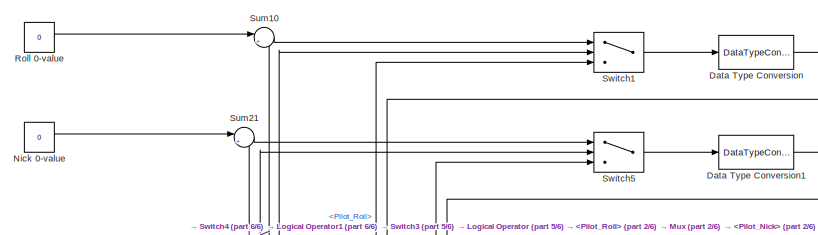
[diagram: Onboard_Control_System/Simulink_Control/Box Control  - part 1/6, top left region]
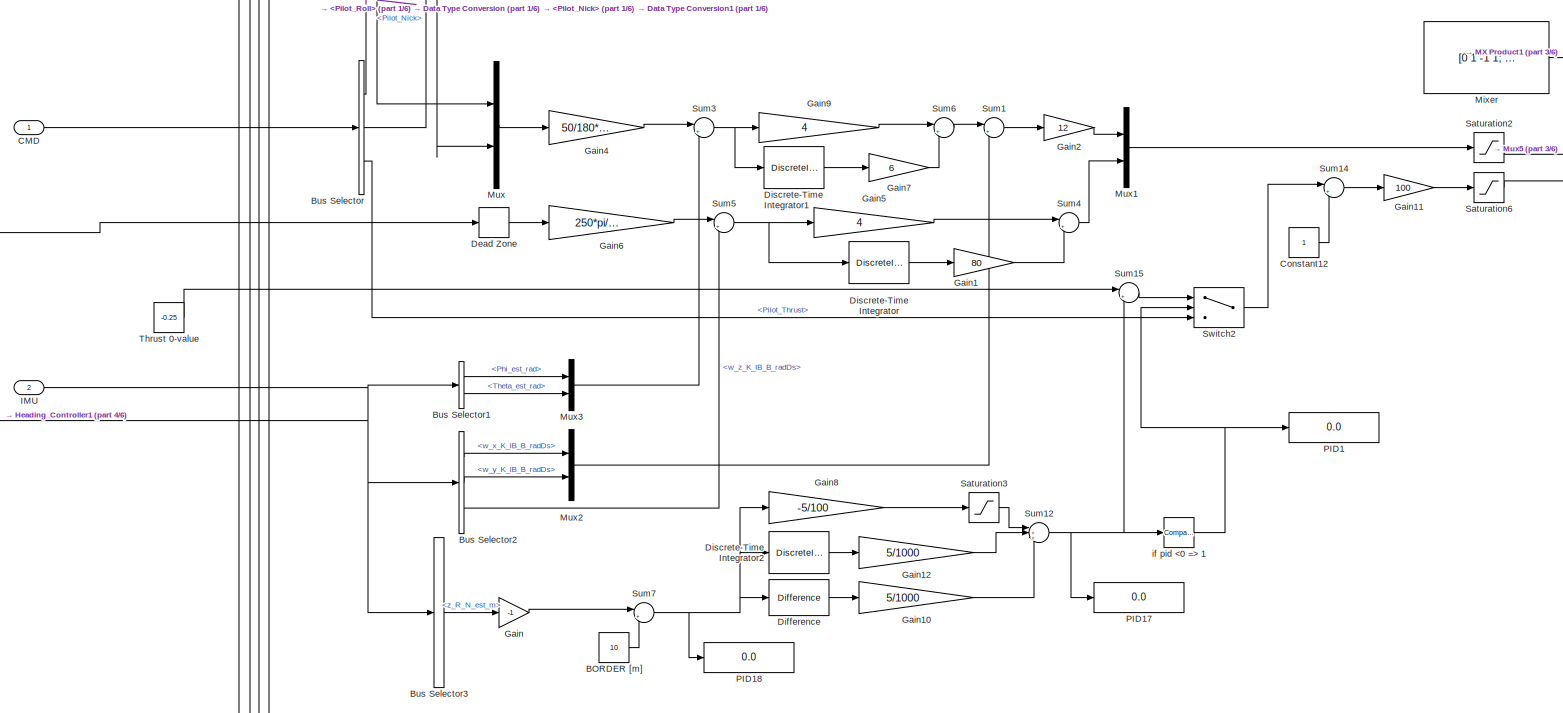
[diagram: Onboard_Control_System/Simulink_Control/Box Control  - part 2/6, top center region]
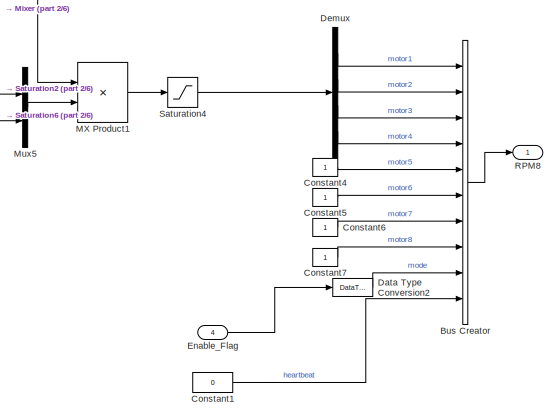
[diagram: Onboard_Control_System/Simulink_Control/Box Control  - part 3/6, top right region]
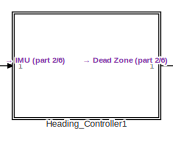
[diagram: Onboard_Control_System/Simulink_Control/Box Control  - part 4/6, top left region]
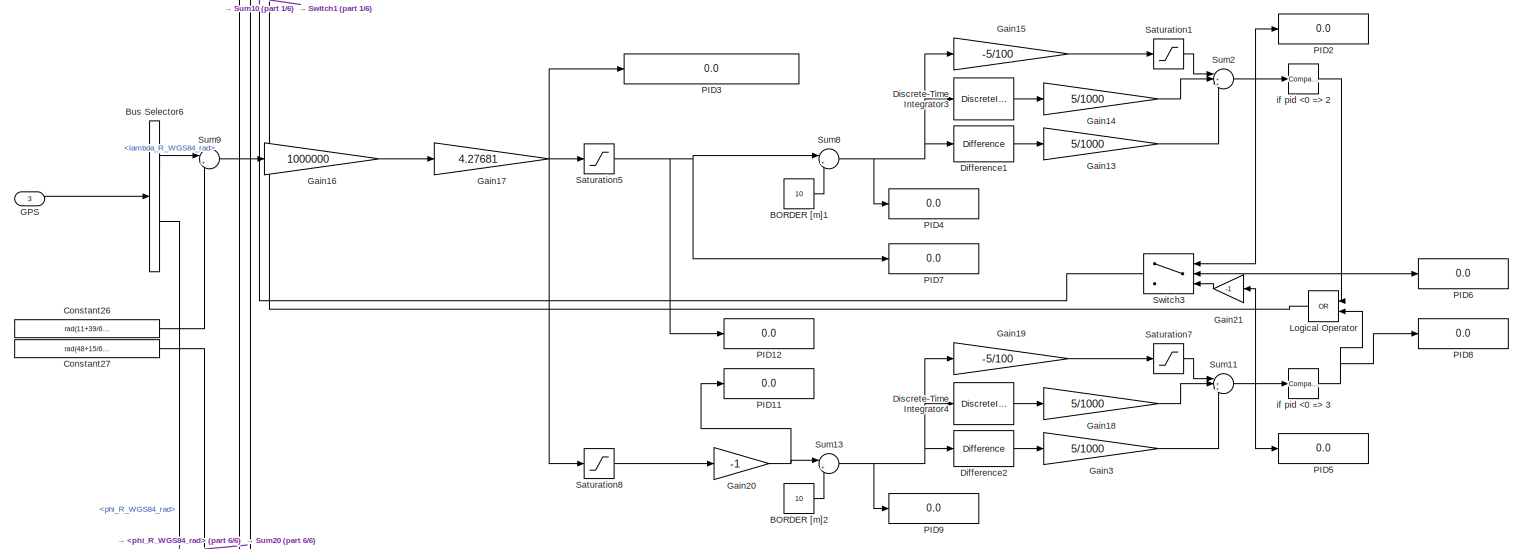
[diagram: Onboard_Control_System/Simulink_Control/Box Control  - part 5/6, central region]
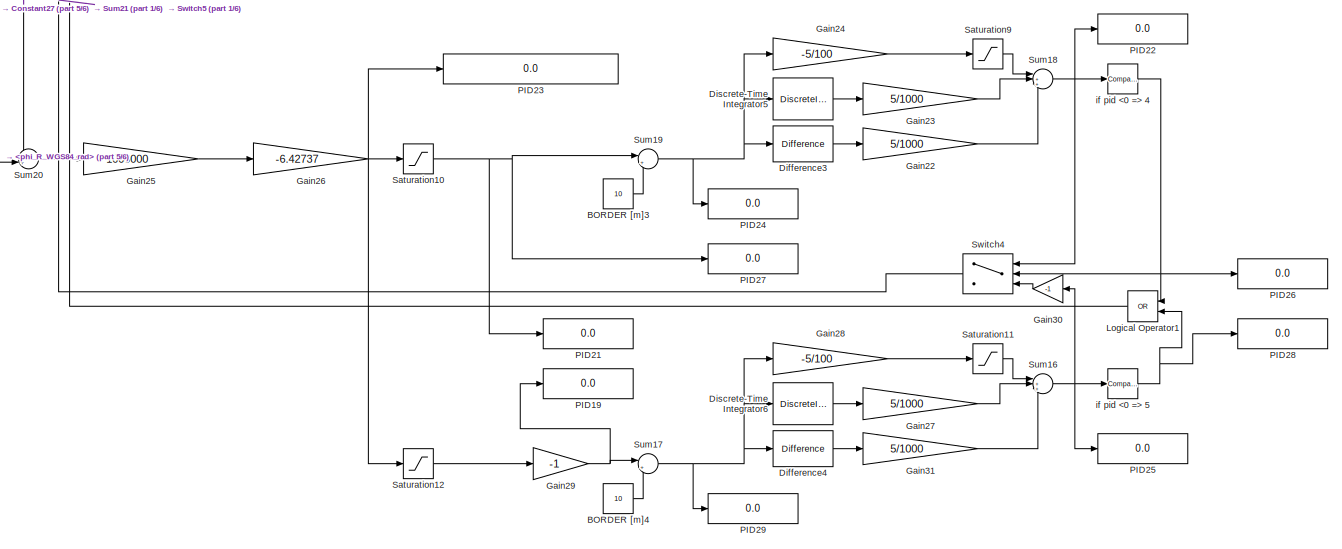
[diagram: Onboard_Control_System/Simulink_Control/Box Control  - part 6/6, bottom center region]
BLOCK [SubSystem] Onboard_Control_System/Simulink_Control/Box Control 
  FunctionWithSeparateData = off
  MaskHideContents = off
  MinAlgLoopOccurrences = off
  Opaque = off
  Ports = [4, 1]
  PropExecContextOutsideSubsystem = off
  RTWSystemCode = Auto
  RequestExecContextInheritance = off
BLOCK [Constant] Onboard_Control_System/Simulink_Control/Box Control /BORDER [m]
  OutDataTypeStr = single
  Value = 10
BLOCK [Constant] Onboard_Control_System/Simulink_Control/Box Control /BORDER [m]1
  OutDataTypeStr = single
  Value = 10
BLOCK [Constant] Onboard_Control_System/Simulink_Control/Box Control /BORDER [m]2
  OutDataTypeStr = single
  Value = 10
BLOCK [Constant] Onboard_Control_System/Simulink_Control/Box Control /BORDER [m]3
  OutDataTypeStr = single
  Value = 10
BLOCK [Constant] Onboard_Control_System/Simulink_Control/Box Control /BORDER [m]4
  OutDataTypeStr = single
  Value = 10
BLOCK [BusCreator] Onboard_Control_System/Simulink_Control/Box Control /Bus Creator
  DisplayOption = bar
  Inputs = 10
  NonVirtualBus = on
  OutDataTypeStr = Bus: FCS_CMD_Bus
  Ports = [10, 1]
BLOCK [BusSelector] Onboard_Control_System/Simulink_Control/Box Control /Bus Selector
  OutputSignals = Pilot_Roll,Pilot_Nick,Pilot_Thrust
  Ports = [1, 3]
BLOCK [BusSelector] Onboard_Control_System/Simulink_Control/Box Control /Bus Selector1
  OutputSignals = Phi_est_rad,Theta_est_rad
  Ports = [1, 2]
BLOCK [BusSelector] Onboard_Control_System/Simulink_Control/Box Control /Bus Selector2
  OutputSignals = w_x_K_IB_B_radDs,w_y_K_IB_B_radDs,w_z_K_IB_B_radDs
  Ports = [1, 3]
BLOCK [BusSelector] Onboard_Control_System/Simulink_Control/Box Control /Bus Selector3
  OutputSignals = z_R_N_est_m
  Ports = [1, 1]
BLOCK [BusSelector] Onboard_Control_System/Simulink_Control/Box Control /Bus Selector6
  OutputSignals = lambda_R_WGS84_rad,phi_R_WGS84_rad
  Ports = [1, 2]
BLOCK [Inport] Onboard_Control_System/Simulink_Control/Box Control /CMD
  IconDisplay = Port number
BLOCK [Constant] Onboard_Control_System/Simulink_Control/Box Control /Constant1
  OutDataTypeStr = int16
  Value = 0
BLOCK [Constant] Onboard_Control_System/Simulink_Control/Box Control /Constant12
  OutDataTypeStr = single
BLOCK [Constant] Onboard_Control_System/Simulink_Control/Box Control /Constant26
  Value = rad(11+39/60+57.02/3600)
  VectorParams1D = off
BLOCK [Constant] Onboard_Control_System/Simulink_Control/Box Control /Constant27
  Value = rad(48+15/60+55.77/3600)
  VectorParams1D = off
BLOCK [Constant] Onboard_Control_System/Simulink_Control/Box Control /Constant4
  OutDataTypeStr = int16
BLOCK [Constant] Onboard_Control_System/Simulink_Control/Box Control /Constant5
  OutDataTypeStr = int16
BLOCK [Constant] Onboard_Control_System/Simulink_Control/Box Control /Constant6
  OutDataTypeStr = int16
BLOCK [Constant] Onboard_Control_System/Simulink_Control/Box Control /Constant7
  OutDataTypeStr = int16
BLOCK [DataTypeConversion] Onboard_Control_System/Simulink_Control/Box Control /Data Type Conversion
  OutDataTypeStr = single
  RndMeth = Floor
  SaturateOnIntegerOverflow = off
BLOCK [DataTypeConversion] Onboard_Control_System/Simulink_Control/Box Control /Data Type Conversion1
  OutDataTypeStr = single
  RndMeth = Floor
  SaturateOnIntegerOverflow = off
BLOCK [DataTypeConversion] Onboard_Control_System/Simulink_Control/Box Control /Data Type Conversion2
  OutDataTypeStr = int16
  RndMeth = Floor
  SaturateOnIntegerOverflow = off
BLOCK [DeadZone] Onboard_Control_System/Simulink_Control/Box Control /Dead Zone
  LowerValue = -0.1
  UpperValue = 0.1
BLOCK [Demux] Onboard_Control_System/Simulink_Control/Box Control /Demux
  DisplayOption = bar
  Ports = [1, 4]
BLOCK [Reference] Onboard_Control_System/Simulink_Control/Box Control /Difference  REF=simulink/Discrete/Difference
  DoSatur = off
  ICPrevInput = 1
  InputProcessing = Inherited
  LockScale = off
  OutDataType = fixdt(1, 16)
  OutDataTypeStr = Inherit: Inherit via internal rule
  OutMax = []
  OutMin = []
  OutScaling = 2^-10
  OutputDataTypeScalingMode = Inherit via internal rule
  Ports = [1, 1]
  RndMeth = Floor
  SourceBlock = simulink/Discrete/Difference
  SourceType = Difference
BLOCK [Reference] Onboard_Control_System/Simulink_Control/Box Control /Difference1  REF=simulink/Discrete/Difference
  DoSatur = off
  ICPrevInput = 1
  InputProcessing = Inherited
  LockScale = off
  OutDataType = fixdt(1, 16)
  OutDataTypeStr = Inherit: Inherit via internal rule
  OutMax = []
  OutMin = []
  OutScaling = 2^-10
  OutputDataTypeScalingMode = Inherit via internal rule
  Ports = [1, 1]
  RndMeth = Floor
  SourceBlock = simulink/Discrete/Difference
  SourceType = Difference
BLOCK [Reference] Onboard_Control_System/Simulink_Control/Box Control /Difference2  REF=simulink/Discrete/Difference
  DoSatur = off
  ICPrevInput = 1
  InputProcessing = Inherited
  LockScale = off
  OutDataType = fixdt(1, 16)
  OutDataTypeStr = Inherit: Inherit via internal rule
  OutMax = []
  OutMin = []
  OutScaling = 2^-10
  OutputDataTypeScalingMode = Inherit via internal rule
  Ports = [1, 1]
  RndMeth = Floor
  SourceBlock = simulink/Discrete/Difference
  SourceType = Difference
BLOCK [Reference] Onboard_Control_System/Simulink_Control/Box Control /Difference3  REF=simulink/Discrete/Difference
  DoSatur = off
  ICPrevInput = 1
  InputProcessing = Inherited
  LockScale = off
  OutDataType = fixdt(1, 16)
  OutDataTypeStr = Inherit: Inherit via internal rule
  OutMax = []
  OutMin = []
  OutScaling = 2^-10
  OutputDataTypeScalingMode = Inherit via internal rule
  Ports = [1, 1]
  RndMeth = Floor
  SourceBlock = simulink/Discrete/Difference
  SourceType = Difference
BLOCK [Reference] Onboard_Control_System/Simulink_Control/Box Control /Difference4  REF=simulink/Discrete/Difference
  DoSatur = off
  ICPrevInput = 1
  InputProcessing = Inherited
  LockScale = off
  OutDataType = fixdt(1, 16)
  OutDataTypeStr = Inherit: Inherit via internal rule
  OutMax = []
  OutMin = []
  OutScaling = 2^-10
  OutputDataTypeScalingMode = Inherit via internal rule
  Ports = [1, 1]
  RndMeth = Floor
  SourceBlock = simulink/Discrete/Difference
  SourceType = Difference
BLOCK [DiscreteIntegrator] Onboard_Control_System/Simulink_Control/Box Control /Discrete-Time Integrator
  ICPrevOutput = DiscIntNeverNeededParam
  ICPrevScaledInput = DiscIntNeverNeededParam
  LimitOutput = on
  LowerSaturationLimit = -30/180*pi
  Ports = [1, 1]
  SampleTime = -1
  UpperSaturationLimit = 30/180*pi
BLOCK [DiscreteIntegrator] Onboard_Control_System/Simulink_Control/Box Control /Discrete-Time Integrator1
  ICPrevOutput = DiscIntNeverNeededParam
  ICPrevScaledInput = DiscIntNeverNeededParam
  LimitOutput = on
  LowerSaturationLimit = -5/180*pi
  Ports = [1, 1]
  SampleTime = -1
  UpperSaturationLimit = 5/180*pi
BLOCK [DiscreteIntegrator] Onboard_Control_System/Simulink_Control/Box Control /Discrete-Time Integrator2
  ICPrevOutput = DiscIntNeverNeededParam
  ICPrevScaledInput = DiscIntNeverNeededParam
  LimitOutput = on
  LowerSaturationLimit = -30/180*pi
  Ports = [1, 1]
  SampleTime = -1
  UpperSaturationLimit = 30/180*pi
BLOCK [DiscreteIntegrator] Onboard_Control_System/Simulink_Control/Box Control /Discrete-Time Integrator3
  ICPrevOutput = DiscIntNeverNeededParam
  ICPrevScaledInput = DiscIntNeverNeededParam
  LimitOutput = on
  LowerSaturationLimit = -30/180*pi
  Ports = [1, 1]
  SampleTime = -1
  UpperSaturationLimit = 30/180*pi
BLOCK [DiscreteIntegrator] Onboard_Control_System/Simulink_Control/Box Control /Discrete-Time Integrator4
  ICPrevOutput = DiscIntNeverNeededParam
  ICPrevScaledInput = DiscIntNeverNeededParam
  LimitOutput = on
  LowerSaturationLimit = -30/180*pi
  Ports = [1, 1]
  SampleTime = -1
  UpperSaturationLimit = 30/180*pi
BLOCK [DiscreteIntegrator] Onboard_Control_System/Simulink_Control/Box Control /Discrete-Time Integrator5
  ICPrevOutput = DiscIntNeverNeededParam
  ICPrevScaledInput = DiscIntNeverNeededParam
  LimitOutput = on
  LowerSaturationLimit = -30/180*pi
  Ports = [1, 1]
  SampleTime = -1
  UpperSaturationLimit = 30/180*pi
BLOCK [DiscreteIntegrator] Onboard_Control_System/Simulink_Control/Box Control /Discrete-Time Integrator6
  ICPrevOutput = DiscIntNeverNeededParam
  ICPrevScaledInput = DiscIntNeverNeededParam
  LimitOutput = on
  LowerSaturationLimit = -30/180*pi
  Ports = [1, 1]
  SampleTime = -1
  UpperSaturationLimit = 30/180*pi
BLOCK [Inport] Onboard_Control_System/Simulink_Control/Box Control /Enable_Flag
  IconDisplay = Port number
  Port = 4
BLOCK [Inport] Onboard_Control_System/Simulink_Control/Box Control /GPS
  IconDisplay = Port number
  Port = 3
BLOCK [Gain] Onboard_Control_System/Simulink_Control/Box Control /Gain
  Gain = -1
  OutDataTypeStr = Inherit: Inherit via internal rule
  ParamDataTypeStr = Inherit: Inherit via internal rule
  SaturateOnIntegerOverflow = off
BLOCK [Gain] Onboard_Control_System/Simulink_Control/Box Control /Gain1
  Gain = 80
  OutDataTypeStr = Inherit: Inherit via internal rule
  ParamDataTypeStr = Inherit: Inherit via internal rule
  SaturateOnIntegerOverflow = off
BLOCK [Gain] Onboard_Control_System/Simulink_Control/Box Control /Gain10
  Gain = 5/1000
  OutDataTypeStr = Inherit: Inherit via internal rule
  ParamDataTypeStr = Inherit: Inherit via internal rule
  SaturateOnIntegerOverflow = off
BLOCK [Gain] Onboard_Control_System/Simulink_Control/Box Control /Gain11
  Gain = 100
  OutDataTypeStr = Inherit: Inherit via internal rule
  ParamDataTypeStr = Inherit: Inherit via internal rule
  SaturateOnIntegerOverflow = off
BLOCK [Gain] Onboard_Control_System/Simulink_Control/Box Control /Gain12
  Gain = 5/1000
  OutDataTypeStr = Inherit: Inherit via internal rule
  ParamDataTypeStr = Inherit: Inherit via internal rule
  SaturateOnIntegerOverflow = off
BLOCK [Gain] Onboard_Control_System/Simulink_Control/Box Control /Gain13
  Gain = 5/1000
  OutDataTypeStr = Inherit: Inherit via internal rule
  ParamDataTypeStr = Inherit: Inherit via internal rule
  SaturateOnIntegerOverflow = off
BLOCK [Gain] Onboard_Control_System/Simulink_Control/Box Control /Gain14
  Gain = 5/1000
  OutDataTypeStr = Inherit: Inherit via internal rule
  ParamDataTypeStr = Inherit: Inherit via internal rule
  SaturateOnIntegerOverflow = off
BLOCK [Gain] Onboard_Control_System/Simulink_Control/Box Control /Gain15
  Gain = -5/100
  OutDataTypeStr = Inherit: Inherit via internal rule
  ParamDataTypeStr = Inherit: Inherit via internal rule
  SaturateOnIntegerOverflow = off
BLOCK [Gain] Onboard_Control_System/Simulink_Control/Box Control /Gain16
  Gain = 1000000
  OutDataTypeStr = Inherit: Inherit via internal rule
  ParamDataTypeStr = Inherit: Inherit via internal rule
  SaturateOnIntegerOverflow = off
BLOCK [Gain] Onboard_Control_System/Simulink_Control/Box Control /Gain17
  Gain = 4.27681
  OutDataTypeStr = Inherit: Inherit via internal rule
  ParamDataTypeStr = Inherit: Inherit via internal rule
  SaturateOnIntegerOverflow = off
BLOCK [Gain] Onboard_Control_System/Simulink_Control/Box Control /Gain18
  Gain = 5/1000
  OutDataTypeStr = Inherit: Inherit via internal rule
  ParamDataTypeStr = Inherit: Inherit via internal rule
  SaturateOnIntegerOverflow = off
BLOCK [Gain] Onboard_Control_System/Simulink_Control/Box Control /Gain19
  Gain = -5/100
  OutDataTypeStr = Inherit: Inherit via internal rule
  ParamDataTypeStr = Inherit: Inherit via internal rule
  SaturateOnIntegerOverflow = off
BLOCK [Gain] Onboard_Control_System/Simulink_Control/Box Control /Gain2
  Gain = 12
  OutDataTypeStr = Inherit: Inherit via internal rule
  ParamDataTypeStr = Inherit: Inherit via internal rule
  SaturateOnIntegerOverflow = off
BLOCK [Gain] Onboard_Control_System/Simulink_Control/Box Control /Gain20
  Gain = -1
  OutDataTypeStr = Inherit: Inherit via internal rule
  ParamDataTypeStr = Inherit: Inherit via internal rule
  SaturateOnIntegerOverflow = off
BLOCK [Gain] Onboard_Control_System/Simulink_Control/Box Control /Gain21
  Gain = -1
  OutDataTypeStr = Inherit: Inherit via internal rule
  ParamDataTypeStr = Inherit: Inherit via internal rule
  SaturateOnIntegerOverflow = off
BLOCK [Gain] Onboard_Control_System/Simulink_Control/Box Control /Gain22
  Gain = 5/1000
  OutDataTypeStr = Inherit: Inherit via internal rule
  ParamDataTypeStr = Inherit: Inherit via internal rule
  SaturateOnIntegerOverflow = off
BLOCK [Gain] Onboard_Control_System/Simulink_Control/Box Control /Gain23
  Gain = 5/1000
  OutDataTypeStr = Inherit: Inherit via internal rule
  ParamDataTypeStr = Inherit: Inherit via internal rule
  SaturateOnIntegerOverflow = off
BLOCK [Gain] Onboard_Control_System/Simulink_Control/Box Control /Gain24
  Gain = -5/100
  OutDataTypeStr = Inherit: Inherit via internal rule
  ParamDataTypeStr = Inherit: Inherit via internal rule
  SaturateOnIntegerOverflow = off
BLOCK [Gain] Onboard_Control_System/Simulink_Control/Box Control /Gain25
  Gain = 1000000
  OutDataTypeStr = Inherit: Inherit via internal rule
  ParamDataTypeStr = Inherit: Inherit via internal rule
  SaturateOnIntegerOverflow = off
BLOCK [Gain] Onboard_Control_System/Simulink_Control/Box Control /Gain26
  Gain = -6.42737
  OutDataTypeStr = Inherit: Inherit via internal rule
  ParamDataTypeStr = Inherit: Inherit via internal rule
  SaturateOnIntegerOverflow = off
BLOCK [Gain] Onboard_Control_System/Simulink_Control/Box Control /Gain27
  Gain = 5/1000
  OutDataTypeStr = Inherit: Inherit via internal rule
  ParamDataTypeStr = Inherit: Inherit via internal rule
  SaturateOnIntegerOverflow = off
BLOCK [Gain] Onboard_Control_System/Simulink_Control/Box Control /Gain28
  Gain = -5/100
  OutDataTypeStr = Inherit: Inherit via internal rule
  ParamDataTypeStr = Inherit: Inherit via internal rule
  SaturateOnIntegerOverflow = off
BLOCK [Gain] Onboard_Control_System/Simulink_Control/Box Control /Gain29
  Gain = -1
  OutDataTypeStr = Inherit: Inherit via internal rule
  ParamDataTypeStr = Inherit: Inherit via internal rule
  SaturateOnIntegerOverflow = off
BLOCK [Gain] Onboard_Control_System/Simulink_Control/Box Control /Gain3
  Gain = 5/1000
  OutDataTypeStr = Inherit: Inherit via internal rule
  ParamDataTypeStr = Inherit: Inherit via internal rule
  SaturateOnIntegerOverflow = off
BLOCK [Gain] Onboard_Control_System/Simulink_Control/Box Control /Gain30
  Gain = -1
  OutDataTypeStr = Inherit: Inherit via internal rule
  ParamDataTypeStr = Inherit: Inherit via internal rule
  SaturateOnIntegerOverflow = off
BLOCK [Gain] Onboard_Control_System/Simulink_Control/Box Control /Gain31
  Gain = 5/1000
  OutDataTypeStr = Inherit: Inherit via internal rule
  ParamDataTypeStr = Inherit: Inherit via internal rule
  SaturateOnIntegerOverflow = off
BLOCK [Gain] Onboard_Control_System/Simulink_Control/Box Control /Gain4
  Gain = 50/180*pi
  OutDataTypeStr = Inherit: Inherit via internal rule
  ParamDataTypeStr = Inherit: Inherit via internal rule
  SaturateOnIntegerOverflow = off
BLOCK [Gain] Onboard_Control_System/Simulink_Control/Box Control /Gain5
  Gain = 4
  OutDataTypeStr = Inherit: Inherit via internal rule
  ParamDataTypeStr = Inherit: Inherit via internal rule
  SaturateOnIntegerOverflow = off
BLOCK [Gain] Onboard_Control_System/Simulink_Control/Box Control /Gain6
  Gain = 250*pi/180
  OutDataTypeStr = Inherit: Inherit via internal rule
  ParamDataTypeStr = Inherit: Inherit via internal rule
  SaturateOnIntegerOverflow = off
BLOCK [Gain] Onboard_Control_System/Simulink_Control/Box Control /Gain7
  Gain = 6
  OutDataTypeStr = Inherit: Inherit via internal rule
  ParamDataTypeStr = Inherit: Inherit via internal rule
  SaturateOnIntegerOverflow = off
BLOCK [Gain] Onboard_Control_System/Simulink_Control/Box Control /Gain8
  Gain = -5/100
  OutDataTypeStr = Inherit: Inherit via internal rule
  ParamDataTypeStr = Inherit: Inherit via internal rule
  SaturateOnIntegerOverflow = off
BLOCK [Gain] Onboard_Control_System/Simulink_Control/Box Control /Gain9
  Gain = 4
  OutDataTypeStr = Inherit: Inherit via internal rule
  ParamDataTypeStr = Inherit: Inherit via internal rule
  SaturateOnIntegerOverflow = off
BLOCK [SubSystem] Onboard_Control_System/Simulink_Control/Box Control /Heading_Controller1
  FunctionWithSeparateData = off
  MaskHideContents = off
  MinAlgLoopOccurrences = off
  Opaque = off
  Ports = [1, 1]
  PropExecContextOutsideSubsystem = off
  RTWSystemCode = Auto
  RequestExecContextInheritance = off
BLOCK [BusSelector] Onboard_Control_System/Simulink_Control/Box Control /Heading_Controller1/Bus Selector5
  OutputSignals = B_x_R_B_T,B_y_R_B_T
  Ports = [1, 2]
BLOCK [Reference] Onboard_Control_System/Simulink_Control/Box Control /Heading_Controller1/Discrete PID Controller1  REF=simulink/Continuous/PID Controller
  AntiWindupMode = none
  Controller = PID
  D = 0.01
  DOutDataTypeStr = Inherit: Inherit via internal rule
  DOutMax = []
  DOutMin = []
  DParamDataTypeStr = Inherit: Inherit via internal rule
  DParamMax = []
  DParamMin = []
  ExternalReset = none
  FilterContinuousStateAttributes = ''
  FilterMethod = Forward Euler
  FilterOutDataTypeStr = Inherit: Inherit via internal rule
  FilterOutMax = []
  FilterOutMin = []
  FilterRTWStateStorageClass = Auto
  FilterStateMustResolveToSignalObject = off
  Form = Parallel
  I = 0.03
  IOutDataTypeStr = Inherit: Inherit via internal rule
  IOutMax = []
  IOutMin = []
  IParamDataTypeStr = Inherit: Inherit via internal rule
  IParamMax = []
  IParamMin = []
  IgnoreLimit = off
  InitialConditionForFilter = 0
  InitialConditionForIntegrator = 0
  InitialConditionSource = internal
  IntegratorContinuousStateAttributes = ''
  IntegratorMethod = Forward Euler
  IntegratorOutDataTypeStr = Inherit: Inherit via internal rule
  IntegratorOutMax = []
  IntegratorOutMin = []
  IntegratorRTWStateStorageClass = Auto
  IntegratorStateMustResolveToSignalObject = off
  Kb = 1
  KbOutDataTypeStr = Inherit: Inherit via internal rule
  KbOutMax = []
  KbOutMin = []
  KbParamDataTypeStr = Inherit: Inherit via internal rule
  KbParamMax = []
  KbParamMin = []
  Kt = 1
  KtOutDataTypeStr = Inherit: Inherit via internal rule
  KtOutMax = []
  KtOutMin = []
  KtParamDataTypeStr = Inherit: Inherit via internal rule
  KtParamMax = []
  KtParamMin = []
  LimitOutput = off
  LinearizeAsGain = off
  LockScale = off
  LowerSaturationLimit = -inf
  N = 1
  NOutDataTypeStr = Inherit: Inherit via internal rule
  NOutMax = []
  NOutMin = []
  NParamDataTypeStr = Inherit: Inherit via internal rule
  NParamMax = []
  NParamMin = []
  P = 0.8
  POutDataTypeStr = Inherit: Inherit via internal rule
  POutMax = []
  POutMin = []
  PParamDataTypeStr = Inherit: Inherit via internal rule
  PParamMax = []
  PParamMin = []
  Ports = [1, 1]
  RndMeth = Floor
  SampleTime = -1
  SaturateOnIntegerOverflow = off
  SaturationOutDataTypeStr = Inherit: Same as input
  SaturationOutMax = []
  SaturationOutMin = []
  SourceBlock = simulink/Continuous/PID Controller
  SourceType = PID 1dof
  SumAccumDataTypeStr = Inherit: Inherit via internal rule
  SumDAccumDataTypeStr = Inherit: Inherit via internal rule
  SumDOutDataTypeStr = Inherit: Inherit via internal rule
  SumDOutMax = []
  SumDOutMin = []
  SumI1AccumDataTypeStr = Inherit: Inherit via internal rule
  SumI1OutDataTypeStr = Inherit: Inherit via internal rule
  SumI1OutMax = []
  SumI1OutMin = []
  SumI2AccumDataTypeStr = Inherit: Inherit via internal rule
  SumI2OutDataTypeStr = Inherit: Inherit via internal rule
  SumI2OutMax = []
  SumI2OutMin = []
  SumI3AccumDataTypeStr = Inherit: Inherit via internal rule
  SumI3OutDataTypeStr = Inherit: Inherit via internal rule
  SumI3OutMax = []
  SumI3OutMin = []
  SumOutDataTypeStr = Inherit: Inherit via internal rule
  SumOutMax = []
  SumOutMin = []
  TimeDomain = Discrete-time
  TrackingMode = off
  UpperSaturationLimit = inf
  ZeroCross = on
BLOCK [Inport] Onboard_Control_System/Simulink_Control/Box Control /Heading_Controller1/FCS_IMU_Bus
  IconDisplay = Port number
  OutDataTypeStr = Bus: FCS_IMU_Bus
BLOCK [Gain] Onboard_Control_System/Simulink_Control/Box Control /Heading_Controller1/Gain15
  Gain = -1
  OutDataTypeStr = Inherit: Inherit via internal rule
  ParamDataTypeStr = Inherit: Inherit via internal rule
  SaturateOnIntegerOverflow = off
BLOCK [Mux] Onboard_Control_System/Simulink_Control/Box Control /Heading_Controller1/Mux4
  DisplayOption = bar
  Inputs = 2
  Ports = [2, 1]
BLOCK [Constant] Onboard_Control_System/Simulink_Control/Box Control /Heading_Controller1/Pi
  OutDataTypeStr = single
  Value = 3.1416
BLOCK [Saturate] Onboard_Control_System/Simulink_Control/Box Control /Heading_Controller1/Saturation3
  InputPortMap = u0
  LowerLimit = -1
  OutDataTypeStr = single
  Ports = [1, 1]
  UpperLimit = 1
BLOCK [Scope] Onboard_Control_System/Simulink_Control/Box Control /Heading_Controller1/Scope
  DataFormat = StructureWithTime
  Floating = off
  NumInputPorts = 1
  Ports = [1]
  SampleTime = 0
  SaveName = ScopeData14
  ShowLegends = off
  YMax = 4
  YMin = -4
BLOCK [Sum] Onboard_Control_System/Simulink_Control/Box Control /Heading_Controller1/Sum12
  IconShape = round
  InputSameDT = off
  Inputs = |+-
  OutDataTypeStr = single
  Ports = [2, 1]
  SaturateOnIntegerOverflow = off
BLOCK [Sum] Onboard_Control_System/Simulink_Control/Box Control /Heading_Controller1/Sum13
  IconShape = round
  InputSameDT = off
  Inputs = |++
  OutDataTypeStr = single
  Ports = [2, 1]
  SaturateOnIntegerOverflow = off
BLOCK [Switch] Onboard_Control_System/Simulink_Control/Box Control /Heading_Controller1/Switch2
  InputSameDT = off
  SaturateOnIntegerOverflow = off
  Threshold = -3.1416
BLOCK [Trigonometry] Onboard_Control_System/Simulink_Control/Box Control /Heading_Controller1/angleCalculator
  Operator = atan2
  Ports = [2, 1]
BLOCK [Gain] Onboard_Control_System/Simulink_Control/Box Control /Heading_Controller1/double
  Gain = 2
  OutDataTypeStr = single
  ParamDataTypeStr = Inherit: Inherit via internal rule
  SaturateOnIntegerOverflow = off
BLOCK [Gain] Onboard_Control_System/Simulink_Control/Box Control /Heading_Controller1/half
  Gain = 0.5
  OutDataTypeStr = single
  ParamDataTypeStr = Inherit: Inherit via internal rule
  SaturateOnIntegerOverflow = off
BLOCK [Outport] Onboard_Control_System/Simulink_Control/Box Control /Heading_Controller1/throttle
  IconDisplay = Port number
  OutDataTypeStr = single
BLOCK [Inport] Onboard_Control_System/Simulink_Control/Box Control /IMU
  IconDisplay = Port number
  Port = 2
BLOCK [Logic] Onboard_Control_System/Simulink_Control/Box Control /Logical Operator
  AllPortsSameDT = off
  Operator = OR
  OutDataTypeStr = boolean
  Ports = [2, 1]
BLOCK [Logic] Onboard_Control_System/Simulink_Control/Box Control /Logical Operator1
  AllPortsSameDT = off
  Operator = OR
  OutDataTypeStr = boolean
  Ports = [2, 1]
BLOCK [Product] Onboard_Control_System/Simulink_Control/Box Control /MX Product1
  InputSameDT = off
  Multiplication = Matrix(*)
  OutDataTypeStr = double
  Ports = [2, 1]
  RndMeth = Simplest
  SaturateOnIntegerOverflow = off
BLOCK [Constant] Onboard_Control_System/Simulink_Control/Box Control /Mixer
  OutDataTypeStr = single
  Value = [0 1 -1 1; -1 0 1 1; 0 -1 -1 1;\n1 0 1 1]
  VectorParams1D = off
BLOCK [Mux] Onboard_Control_System/Simulink_Control/Box Control /Mux
  DisplayOption = bar
  Inputs = 2
  Ports = [2, 1]
BLOCK [Mux] Onboard_Control_System/Simulink_Control/Box Control /Mux1
  DisplayOption = bar
  Inputs = 2
  Ports = [2, 1]
BLOCK [Mux] Onboard_Control_System/Simulink_Control/Box Control /Mux2
  DisplayOption = bar
  Inputs = 2
  Ports = [2, 1]
BLOCK [Mux] Onboard_Control_System/Simulink_Control/Box Control /Mux3
  DisplayOption = bar
  Inputs = 2
  Ports = [2, 1]
BLOCK [Mux] Onboard_Control_System/Simulink_Control/Box Control /Mux5
  DisplayOption = bar
  Inputs = 2
  Ports = [2, 1]
BLOCK [Constant] Onboard_Control_System/Simulink_Control/Box Control /Nick 0-value
  OutDataTypeStr = single
  Value = 0
BLOCK [Display] Onboard_Control_System/Simulink_Control/Box Control /PID1
  Decimation = 1
  Lockdown = off
  Ports = [1]
BLOCK [Display] Onboard_Control_System/Simulink_Control/Box Control /PID11
  Decimation = 1
  Lockdown = off
  Ports = [1]
BLOCK [Display] Onboard_Control_System/Simulink_Control/Box Control /PID12
  Decimation = 1
  Lockdown = off
  Ports = [1]
BLOCK [Display] Onboard_Control_System/Simulink_Control/Box Control /PID17
  Decimation = 1
  Lockdown = off
  Ports = [1]
BLOCK [Display] Onboard_Control_System/Simulink_Control/Box Control /PID18
  Decimation = 1
  Lockdown = off
  Ports = [1]
BLOCK [Display] Onboard_Control_System/Simulink_Control/Box Control /PID19
  Decimation = 1
  Lockdown = off
  Ports = [1]
BLOCK [Display] Onboard_Control_System/Simulink_Control/Box Control /PID2
  Decimation = 1
  Lockdown = off
  Ports = [1]
BLOCK [Display] Onboard_Control_System/Simulink_Control/Box Control /PID21
  Decimation = 1
  Lockdown = off
  Ports = [1]
BLOCK [Display] Onboard_Control_System/Simulink_Control/Box Control /PID22
  Decimation = 1
  Lockdown = off
  Ports = [1]
BLOCK [Display] Onboard_Control_System/Simulink_Control/Box Control /PID23
  Decimation = 1
  Format = long
  Lockdown = off
  Ports = [1]
BLOCK [Display] Onboard_Control_System/Simulink_Control/Box Control /PID24
  Decimation = 1
  Lockdown = off
  Ports = [1]
BLOCK [Display] Onboard_Control_System/Simulink_Control/Box Control /PID25
  Decimation = 1
  Lockdown = off
  Ports = [1]
BLOCK [Display] Onboard_Control_System/Simulink_Control/Box Control /PID26
  Decimation = 1
  Lockdown = off
  Ports = [1]
BLOCK [Display] Onboard_Control_System/Simulink_Control/Box Control /PID27
  Decimation = 1
  Lockdown = off
  Ports = [1]
BLOCK [Display] Onboard_Control_System/Simulink_Control/Box Control /PID28
  Decimation = 1
  Lockdown = off
  Ports = [1]
BLOCK [Display] Onboard_Control_System/Simulink_Control/Box Control /PID29
  Decimation = 1
  Lockdown = off
  Ports = [1]
BLOCK [Display] Onboard_Control_System/Simulink_Control/Box Control /PID3
  Decimation = 1
  Format = long
  Lockdown = off
  Ports = [1]
BLOCK [Display] Onboard_Control_System/Simulink_Control/Box Control /PID4
  Decimation = 1
  Lockdown = off
  Ports = [1]
BLOCK [Display] Onboard_Control_System/Simulink_Control/Box Control /PID5
  Decimation = 1
  Lockdown = off
  Ports = [1]
BLOCK [Display] Onboard_Control_System/Simulink_Control/Box Control /PID6
  Decimation = 1
  Lockdown = off
  Ports = [1]
BLOCK [Display] Onboard_Control_System/Simulink_Control/Box Control /PID7
  Decimation = 1
  Lockdown = off
  Ports = [1]
BLOCK [Display] Onboard_Control_System/Simulink_Control/Box Control /PID8
  Decimation = 1
  Lockdown = off
  Ports = [1]
BLOCK [Display] Onboard_Control_System/Simulink_Control/Box Control /PID9
  Decimation = 1
  Lockdown = off
  Ports = [1]
BLOCK [Outport] Onboard_Control_System/Simulink_Control/Box Control /RPM8
  IconDisplay = Port number
BLOCK [Constant] Onboard_Control_System/Simulink_Control/Box Control /Roll 0-value
  OutDataTypeStr = single
  Value = 0
BLOCK [Saturate] Onboard_Control_System/Simulink_Control/Box Control /Saturation1
  InputPortMap = u0
  Ports = [1, 1]
  UpperLimit = +0.5
BLOCK [Saturate] Onboard_Control_System/Simulink_Control/Box Control /Saturation10
  InputPortMap = u0
  LowerLimit = 0
  Ports = [1, 1]
  UpperLimit = 500
BLOCK [Saturate] Onboard_Control_System/Simulink_Control/Box Control /Saturation11
  InputPortMap = u0
  Ports = [1, 1]
  UpperLimit = +0.5
BLOCK [Saturate] Onboard_Control_System/Simulink_Control/Box Control /Saturation12
  InputPortMap = u0
  LowerLimit = -500
  Ports = [1, 1]
  UpperLimit = 0
BLOCK [Saturate] Onboard_Control_System/Simulink_Control/Box Control /Saturation2
  InputPortMap = u0
  LowerLimit = -100
  Ports = [1, 1]
  UpperLimit = 100
BLOCK [Saturate] Onboard_Control_System/Simulink_Control/Box Control /Saturation3
  InputPortMap = u0
  Ports = [1, 1]
  UpperLimit = +0.5
BLOCK [Saturate] Onboard_Control_System/Simulink_Control/Box Control /Saturation4
  InputPortMap = u0
  LowerLimit = 1
  OutDataTypeStr = int16
  Ports = [1, 1]
  UpperLimit = 200
BLOCK [Saturate] Onboard_Control_System/Simulink_Control/Box Control /Saturation5
  InputPortMap = u0
  LowerLimit = 0
  Ports = [1, 1]
  UpperLimit = 500
BLOCK [Saturate] Onboard_Control_System/Simulink_Control/Box Control /Saturation6
  InputPortMap = u0
  LowerLimit = 1
  Ports = [1, 1]
  UpperLimit = 170
BLOCK [Saturate] Onboard_Control_System/Simulink_Control/Box Control /Saturation7
  InputPortMap = u0
  Ports = [1, 1]
  UpperLimit = +0.5
BLOCK [Saturate] Onboard_Control_System/Simulink_Control/Box Control /Saturation8
  InputPortMap = u0
  LowerLimit = -500
  Ports = [1, 1]
  UpperLimit = 0
BLOCK [Saturate] Onboard_Control_System/Simulink_Control/Box Control /Saturation9
  InputPortMap = u0
  Ports = [1, 1]
  UpperLimit = +0.5
BLOCK [Sum] Onboard_Control_System/Simulink_Control/Box Control /Sum1
  IconShape = round
  InputSameDT = off
  Inputs = |+-
  OutDataTypeStr = Inherit: Inherit via internal rule
  Ports = [2, 1]
  SaturateOnIntegerOverflow = off
BLOCK [Sum] Onboard_Control_System/Simulink_Control/Box Control /Sum10
  IconShape = round
  InputSameDT = off
  Inputs = |++
  OutDataTypeStr = Inherit: Inherit via internal rule
  Ports = [2, 1]
  SaturateOnIntegerOverflow = off
BLOCK [Sum] Onboard_Control_System/Simulink_Control/Box Control /Sum11
  IconShape = round
  InputSameDT = off
  Inputs = |+++
  OutDataTypeStr = Inherit: Inherit via internal rule
  Ports = [3, 1]
  SaturateOnIntegerOverflow = off
BLOCK [Sum] Onboard_Control_System/Simulink_Control/Box Control /Sum12
  IconShape = round
  InputSameDT = off
  Inputs = |+++
  OutDataTypeStr = Inherit: Inherit via internal rule
  Ports = [3, 1]
  SaturateOnIntegerOverflow = off
BLOCK [Sum] Onboard_Control_System/Simulink_Control/Box Control /Sum13
  IconShape = round
  InputSameDT = off
  Inputs = |+-
  OutDataTypeStr = Inherit: Inherit via internal rule
  Ports = [2, 1]
  SaturateOnIntegerOverflow = off
BLOCK [Sum] Onboard_Control_System/Simulink_Control/Box Control /Sum14
  IconShape = round
  InputSameDT = off
  Inputs = |++
  OutDataTypeStr = Inherit: Inherit via internal rule
  Ports = [2, 1]
  SaturateOnIntegerOverflow = off
BLOCK [Sum] Onboard_Control_System/Simulink_Control/Box Control /Sum15
  IconShape = round
  InputSameDT = off
  Inputs = |++
  OutDataTypeStr = Inherit: Inherit via internal rule
  Ports = [2, 1]
  SaturateOnIntegerOverflow = off
BLOCK [Sum] Onboard_Control_System/Simulink_Control/Box Control /Sum16
  IconShape = round
  InputSameDT = off
  Inputs = |+++
  OutDataTypeStr = Inherit: Inherit via internal rule
  Ports = [3, 1]
  SaturateOnIntegerOverflow = off
BLOCK [Sum] Onboard_Control_System/Simulink_Control/Box Control /Sum17
  IconShape = round
  InputSameDT = off
  Inputs = |+-
  OutDataTypeStr = Inherit: Inherit via internal rule
  Ports = [2, 1]
  SaturateOnIntegerOverflow = off
BLOCK [Sum] Onboard_Control_System/Simulink_Control/Box Control /Sum18
  IconShape = round
  InputSameDT = off
  Inputs = |+++
  OutDataTypeStr = Inherit: Inherit via internal rule
  Ports = [3, 1]
  SaturateOnIntegerOverflow = off
BLOCK [Sum] Onboard_Control_System/Simulink_Control/Box Control /Sum19
  IconShape = round
  InputSameDT = off
  Inputs = |+-
  OutDataTypeStr = Inherit: Inherit via internal rule
  Ports = [2, 1]
  SaturateOnIntegerOverflow = off
BLOCK [Sum] Onboard_Control_System/Simulink_Control/Box Control /Sum2
  IconShape = round
  InputSameDT = off
  Inputs = |+++
  OutDataTypeStr = Inherit: Inherit via internal rule
  Ports = [3, 1]
  SaturateOnIntegerOverflow = off
BLOCK [Sum] Onboard_Control_System/Simulink_Control/Box Control /Sum20
  IconShape = round
  InputSameDT = off
  Inputs = -+|
  OutDataTypeStr = Inherit: Inherit via internal rule
  Ports = [2, 1]
  SaturateOnIntegerOverflow = off
BLOCK [Sum] Onboard_Control_System/Simulink_Control/Box Control /Sum21
  IconShape = round
  InputSameDT = off
  Inputs = |++
  OutDataTypeStr = Inherit: Inherit via internal rule
  Ports = [2, 1]
  SaturateOnIntegerOverflow = off
BLOCK [Sum] Onboard_Control_System/Simulink_Control/Box Control /Sum3
  IconShape = round
  InputSameDT = off
  Inputs = |+-
  OutDataTypeStr = Inherit: Inherit via internal rule
  Ports = [2, 1]
  SaturateOnIntegerOverflow = off
BLOCK [Sum] Onboard_Control_System/Simulink_Control/Box Control /Sum4
  IconShape = round
  InputSameDT = off
  Inputs = |++
  OutDataTypeStr = Inherit: Inherit via internal rule
  Ports = [2, 1]
  SaturateOnIntegerOverflow = off
BLOCK [Sum] Onboard_Control_System/Simulink_Control/Box Control /Sum5
  IconShape = round
  InputSameDT = off
  Inputs = |+-
  OutDataTypeStr = Inherit: Inherit via internal rule
  Ports = [2, 1]
  SaturateOnIntegerOverflow = off
BLOCK [Sum] Onboard_Control_System/Simulink_Control/Box Control /Sum6
  IconShape = round
  InputSameDT = off
  Inputs = |++
  OutDataTypeStr = Inherit: Inherit via internal rule
  Ports = [2, 1]
  SaturateOnIntegerOverflow = off
BLOCK [Sum] Onboard_Control_System/Simulink_Control/Box Control /Sum7
  IconShape = round
  InputSameDT = off
  Inputs = |+-
  OutDataTypeStr = Inherit: Inherit via internal rule
  Ports = [2, 1]
  SaturateOnIntegerOverflow = off
BLOCK [Sum] Onboard_Control_System/Simulink_Control/Box Control /Sum8
  IconShape = round
  InputSameDT = off
  Inputs = |+-
  OutDataTypeStr = Inherit: Inherit via internal rule
  Ports = [2, 1]
  SaturateOnIntegerOverflow = off
BLOCK [Sum] Onboard_Control_System/Simulink_Control/Box Control /Sum9
  IconShape = round
  InputSameDT = off
  Inputs = |+-
  OutDataTypeStr = Inherit: Inherit via internal rule
  Ports = [2, 1]
  SaturateOnIntegerOverflow = off
BLOCK [Switch] Onboard_Control_System/Simulink_Control/Box Control /Switch1
  InputSameDT = off
  SaturateOnIntegerOverflow = off
BLOCK [Switch] Onboard_Control_System/Simulink_Control/Box Control /Switch2
  InputSameDT = off
  SaturateOnIntegerOverflow = off
BLOCK [Switch] Onboard_Control_System/Simulink_Control/Box Control /Switch3
  InputSameDT = off
  SaturateOnIntegerOverflow = off
BLOCK [Switch] Onboard_Control_System/Simulink_Control/Box Control /Switch4
  InputSameDT = off
  SaturateOnIntegerOverflow = off
BLOCK [Switch] Onboard_Control_System/Simulink_Control/Box Control /Switch5
  InputSameDT = off
  SaturateOnIntegerOverflow = off
BLOCK [Constant] Onboard_Control_System/Simulink_Control/Box Control /Thrust 0-value
  OutDataTypeStr = single
  Value = -0.25
BLOCK [Reference] Onboard_Control_System/Simulink_Control/Box Control /if pid <0 => 1  REF=simulink/Logic and Bit
Operations/Compare
To Constant
  OutDataTypeStr = boolean
  Ports = [1, 1]
  SourceBlock = simulink/Logic and Bit\nOperations/Compare\nTo Constant
  SourceType = Compare To Constant
  ZeroCross = on
  const = 0
  relop = <
BLOCK [Reference] Onboard_Control_System/Simulink_Control/Box Control /if pid <0 => 2  REF=simulink/Logic and Bit
Operations/Compare
To Constant
  OutDataTypeStr = boolean
  Ports = [1, 1]
  SourceBlock = simulink/Logic and Bit\nOperations/Compare\nTo Constant
  SourceType = Compare To Constant
  ZeroCross = on
  const = 0
  relop = <
BLOCK [Reference] Onboard_Control_System/Simulink_Control/Box Control /if pid <0 => 3  REF=simulink/Logic and Bit
Operations/Compare
To Constant
  OutDataTypeStr = boolean
  Ports = [1, 1]
  SourceBlock = simulink/Logic and Bit\nOperations/Compare\nTo Constant
  SourceType = Compare To Constant
  ZeroCross = on
  const = 0
  relop = <
BLOCK [Reference] Onboard_Control_System/Simulink_Control/Box Control /if pid <0 => 4  REF=simulink/Logic and Bit
Operations/Compare
To Constant
  OutDataTypeStr = boolean
  Ports = [1, 1]
  SourceBlock = simulink/Logic and Bit\nOperations/Compare\nTo Constant
  SourceType = Compare To Constant
  ZeroCross = on
  const = 0
  relop = <
BLOCK [Reference] Onboard_Control_System/Simulink_Control/Box Control /if pid <0 => 5  REF=simulink/Logic and Bit
Operations/Compare
To Constant
  OutDataTypeStr = boolean
  Ports = [1, 1]
  SourceBlock = simulink/Logic and Bit\nOperations/Compare\nTo Constant
  SourceType = Compare To Constant
  ZeroCross = on
  const = 0
  relop = <
BLOCK [BusCreator] Onboard_Control_System/Simulink_Control/Bus Creator1
  DisplayOption = bar
  Inputs = 2
  NonVirtualBus = on
  OutDataTypeStr = Bus: FCS_Data_Out_Bus
  Ports = [2, 1]
BLOCK [BusSelector] Onboard_Control_System/Simulink_Control/Bus Selector1
  OutputSignals = Pilot_Roll
  Ports = [1, 1]
BLOCK [BusSelector] Onboard_Control_System/Simulink_Control/Bus Selector2
  OutputSignals = lambda_R_WGS84_rad
  Ports = [1, 1]
BLOCK [BusSelector] Onboard_Control_System/Simulink_Control/Bus Selector3
  OutputSignals = EXT_CMD_1
  Ports = [1, 1]
BLOCK [BusSelector] Onboard_Control_System/Simulink_Control/Bus Selector4
  OutputSignals = w_x_K_IB_B_radDs
  Ports = [1, 1]
BLOCK [Outport] Onboard_Control_System/Simulink_Control/CMD
  BusOutputAsStruct = on
  IconDisplay = Port number
  OutDataTypeStr = Bus: FCS_CMD_Bus
BLOCK [Constant] Onboard_Control_System/Simulink_Control/Constant10
  OutDataTypeStr = single
  Value = zeros(20,1)
BLOCK [Constant] Onboard_Control_System/Simulink_Control/Constant4
  OutDataTypeStr = single
  Value = zeros(20,1)
BLOCK [Inport] Onboard_Control_System/Simulink_Control/Data_In
  BusOutputAsStruct = on
  IconDisplay = Port number
  Interpolate = off
  OutDataTypeStr = Bus: FCS_Data_In_Bus
  Port = 4
  SignalType = real
  VarSizeSig = No
BLOCK [Outport] Onboard_Control_System/Simulink_Control/Data_Out
  BusOutputAsStruct = on
  IconDisplay = Port number
  OutDataTypeStr = Bus: FCS_Data_Out_Bus
  Port = 2
  SignalType = real
  VarSizeSig = No
BLOCK [Inport] Onboard_Control_System/Simulink_Control/GPS
  BusOutputAsStruct = on
  IconDisplay = Port number
  Interpolate = off
  OutDataTypeStr = Bus: FCS_GPS_Bus
  Port = 2
  SampleTime = 0.001
BLOCK [Inport] Onboard_Control_System/Simulink_Control/IMU
  BusOutputAsStruct = on
  IconDisplay = Port number
  Interpolate = off
  OutDataTypeStr = Bus: FCS_IMU_Bus
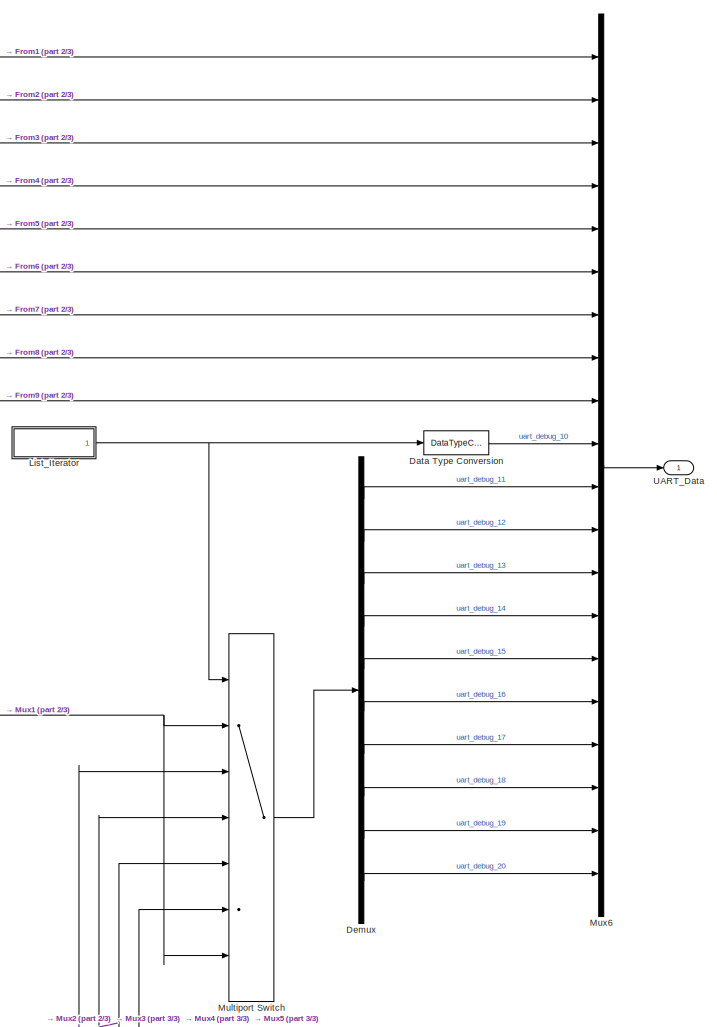
[diagram: Onboard_Control_System/Simulink_Control/Output_Mapping_Debug - part 1/3, top right region]
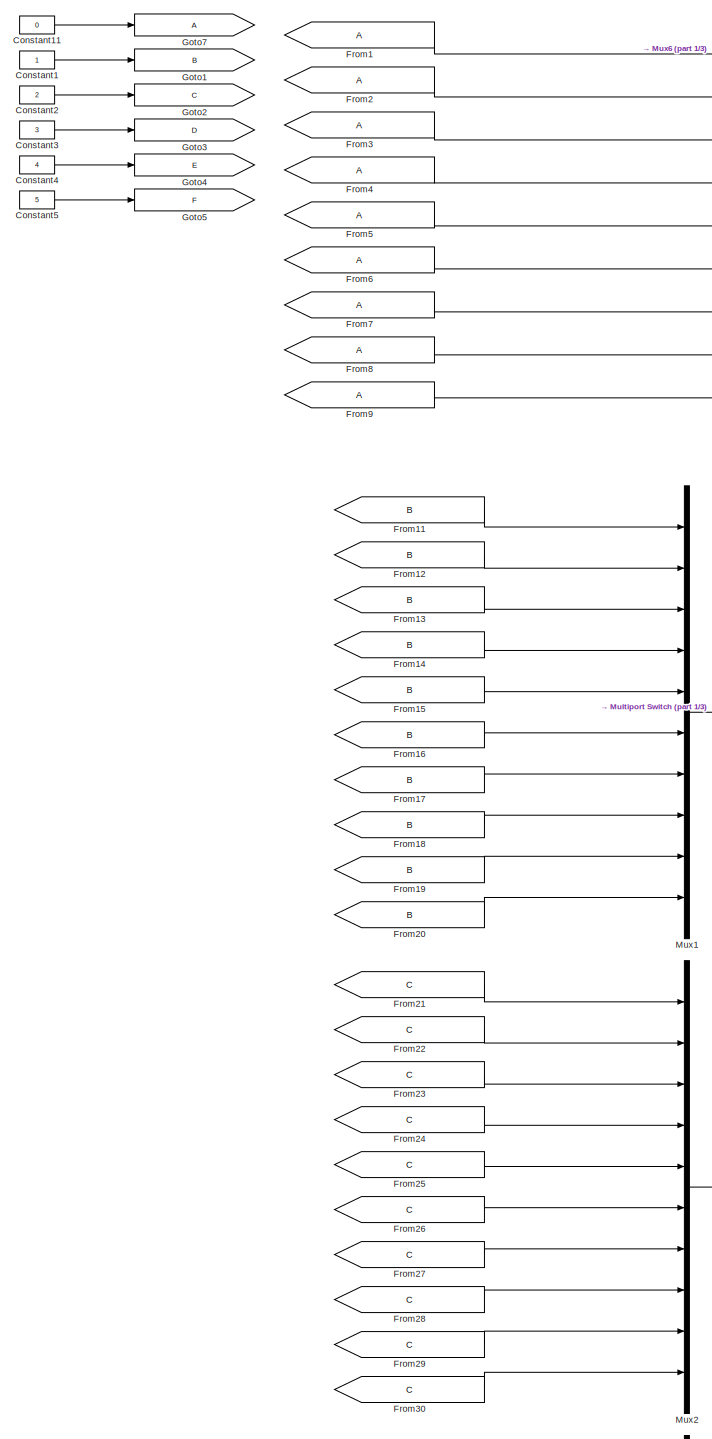
[diagram: Onboard_Control_System/Simulink_Control/Output_Mapping_Debug - part 2/3, top left region]
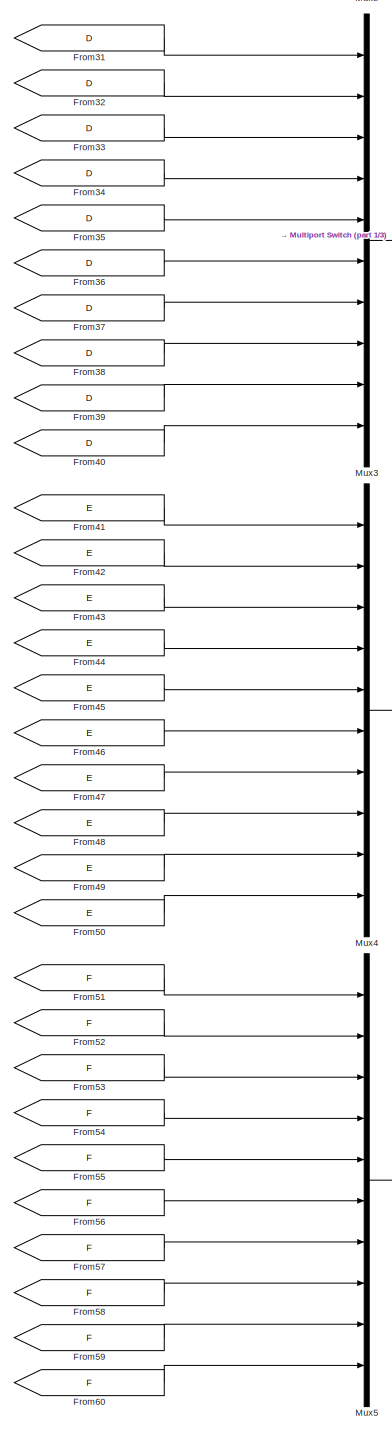
[diagram: Onboard_Control_System/Simulink_Control/Output_Mapping_Debug - part 3/3, bottom center region]
BLOCK [SubSystem] Onboard_Control_System/Simulink_Control/Output_Mapping_Debug
  FunctionWithSeparateData = off
  MaskHideContents = off
  MinAlgLoopOccurrences = off
  Opaque = off
  Ports = [0, 1]
  PropExecContextOutsideSubsystem = off
  RTWSystemCode = Auto
  RequestExecContextInheritance = off
BLOCK [Constant] Onboard_Control_System/Simulink_Control/Output_Mapping_Debug/Constant1
  OutDataTypeStr = single
BLOCK [Constant] Onboard_Control_System/Simulink_Control/Output_Mapping_Debug/Constant11
  OutDataTypeStr = single
  Value = 0
BLOCK [Constant] Onboard_Control_System/Simulink_Control/Output_Mapping_Debug/Constant2
  OutDataTypeStr = single
  Value = 2
BLOCK [Constant] Onboard_Control_System/Simulink_Control/Output_Mapping_Debug/Constant3
  OutDataTypeStr = single
  Value = 3
BLOCK [Constant] Onboard_Control_System/Simulink_Control/Output_Mapping_Debug/Constant4
  OutDataTypeStr = single
  Value = 4
BLOCK [Constant] Onboard_Control_System/Simulink_Control/Output_Mapping_Debug/Constant5
  OutDataTypeStr = single
  Value = 5
BLOCK [DataTypeConversion] Onboard_Control_System/Simulink_Control/Output_Mapping_Debug/Data Type Conversion
  OutDataTypeStr = single
  RndMeth = Floor
  SaturateOnIntegerOverflow = off
BLOCK [Demux] Onboard_Control_System/Simulink_Control/Output_Mapping_Debug/Demux
  DisplayOption = bar
  Outputs = 10
  Ports = [1, 10]
BLOCK [From] Onboard_Control_System/Simulink_Control/Output_Mapping_Debug/From1
  TagVisibility = global
BLOCK [From] Onboard_Control_System/Simulink_Control/Output_Mapping_Debug/From11
  GotoTag = B
  TagVisibility = global
BLOCK [From] Onboard_Control_System/Simulink_Control/Output_Mapping_Debug/From12
  GotoTag = B
  TagVisibility = global
BLOCK [From] Onboard_Control_System/Simulink_Control/Output_Mapping_Debug/From13
  GotoTag = B
  TagVisibility = global
BLOCK [From] Onboard_Control_System/Simulink_Control/Output_Mapping_Debug/From14
  GotoTag = B
  TagVisibility = global
BLOCK [From] Onboard_Control_System/Simulink_Control/Output_Mapping_Debug/From15
  GotoTag = B
  TagVisibility = global
BLOCK [From] Onboard_Control_System/Simulink_Control/Output_Mapping_Debug/From16
  GotoTag = B
  TagVisibility = global
BLOCK [From] Onboard_Control_System/Simulink_Control/Output_Mapping_Debug/From17
  GotoTag = B
  TagVisibility = global
BLOCK [From] Onboard_Control_System/Simulink_Control/Output_Mapping_Debug/From18
  GotoTag = B
  TagVisibility = global
BLOCK [From] Onboard_Control_System/Simulink_Control/Output_Mapping_Debug/From19
  GotoTag = B
  TagVisibility = global
BLOCK [From] Onboard_Control_System/Simulink_Control/Output_Mapping_Debug/From2
  TagVisibility = global
BLOCK [From] Onboard_Control_System/Simulink_Control/Output_Mapping_Debug/From20
  GotoTag = B
  TagVisibility = global
BLOCK [From] Onboard_Control_System/Simulink_Control/Output_Mapping_Debug/From21
  GotoTag = C
  TagVisibility = global
BLOCK [From] Onboard_Control_System/Simulink_Control/Output_Mapping_Debug/From22
  GotoTag = C
  TagVisibility = global
BLOCK [From] Onboard_Control_System/Simulink_Control/Output_Mapping_Debug/From23
  GotoTag = C
  TagVisibility = global
BLOCK [From] Onboard_Control_System/Simulink_Control/Output_Mapping_Debug/From24
  GotoTag = C
  TagVisibility = global
BLOCK [From] Onboard_Control_System/Simulink_Control/Output_Mapping_Debug/From25
  GotoTag = C
  TagVisibility = global
BLOCK [From] Onboard_Control_System/Simulink_Control/Output_Mapping_Debug/From26
  GotoTag = C
  TagVisibility = global
BLOCK [From] Onboard_Control_System/Simulink_Control/Output_Mapping_Debug/From27
  GotoTag = C
  TagVisibility = global
BLOCK [From] Onboard_Control_System/Simulink_Control/Output_Mapping_Debug/From28
  GotoTag = C
  TagVisibility = global
BLOCK [From] Onboard_Control_System/Simulink_Control/Output_Mapping_Debug/From29
  GotoTag = C
  TagVisibility = global
BLOCK [From] Onboard_Control_System/Simulink_Control/Output_Mapping_Debug/From3
  TagVisibility = global
BLOCK [From] Onboard_Control_System/Simulink_Control/Output_Mapping_Debug/From30
  GotoTag = C
  TagVisibility = global
BLOCK [From] Onboard_Control_System/Simulink_Control/Output_Mapping_Debug/From31
  GotoTag = D
  TagVisibility = global
BLOCK [From] Onboard_Control_System/Simulink_Control/Output_Mapping_Debug/From32
  GotoTag = D
  TagVisibility = global
BLOCK [From] Onboard_Control_System/Simulink_Control/Output_Mapping_Debug/From33
  GotoTag = D
  TagVisibility = global
BLOCK [From] Onboard_Control_System/Simulink_Control/Output_Mapping_Debug/From34
  GotoTag = D
  TagVisibility = global
BLOCK [From] Onboard_Control_System/Simulink_Control/Output_Mapping_Debug/From35
  GotoTag = D
  TagVisibility = global
BLOCK [From] Onboard_Control_System/Simulink_Control/Output_Mapping_Debug/From36
  GotoTag = D
  TagVisibility = global
BLOCK [From] Onboard_Control_System/Simulink_Control/Output_Mapping_Debug/From37
  GotoTag = D
  TagVisibility = global
BLOCK [From] Onboard_Control_System/Simulink_Control/Output_Mapping_Debug/From38
  GotoTag = D
  TagVisibility = global
BLOCK [From] Onboard_Control_System/Simulink_Control/Output_Mapping_Debug/From39
  GotoTag = D
  TagVisibility = global
BLOCK [From] Onboard_Control_System/Simulink_Control/Output_Mapping_Debug/From4
  TagVisibility = global
BLOCK [From] Onboard_Control_System/Simulink_Control/Output_Mapping_Debug/From40
  GotoTag = D
  TagVisibility = global
BLOCK [From] Onboard_Control_System/Simulink_Control/Output_Mapping_Debug/From41
  GotoTag = E
  TagVisibility = global
BLOCK [From] Onboard_Control_System/Simulink_Control/Output_Mapping_Debug/From42
  GotoTag = E
  TagVisibility = global
BLOCK [From] Onboard_Control_System/Simulink_Control/Output_Mapping_Debug/From43
  GotoTag = E
  TagVisibility = global
BLOCK [From] Onboard_Control_System/Simulink_Control/Output_Mapping_Debug/From44
  GotoTag = E
  TagVisibility = global
BLOCK [From] Onboard_Control_System/Simulink_Control/Output_Mapping_Debug/From45
  GotoTag = E
  TagVisibility = global
BLOCK [From] Onboard_Control_System/Simulink_Control/Output_Mapping_Debug/From46
  GotoTag = E
  TagVisibility = global
BLOCK [From] Onboard_Control_System/Simulink_Control/Output_Mapping_Debug/From47
  GotoTag = E
  TagVisibility = global
BLOCK [From] Onboard_Control_System/Simulink_Control/Output_Mapping_Debug/From48
  GotoTag = E
  TagVisibility = global
BLOCK [From] Onboard_Control_System/Simulink_Control/Output_Mapping_Debug/From49
  GotoTag = E
  TagVisibility = global
BLOCK [From] Onboard_Control_System/Simulink_Control/Output_Mapping_Debug/From5
  TagVisibility = global
BLOCK [From] Onboard_Control_System/Simulink_Control/Output_Mapping_Debug/From50
  GotoTag = E
  TagVisibility = global
BLOCK [From] Onboard_Control_System/Simulink_Control/Output_Mapping_Debug/From51
  GotoTag = F
  TagVisibility = global
BLOCK [From] Onboard_Control_System/Simulink_Control/Output_Mapping_Debug/From52
  GotoTag = F
  TagVisibility = global
BLOCK [From] Onboard_Control_System/Simulink_Control/Output_Mapping_Debug/From53
  GotoTag = F
  TagVisibility = global
BLOCK [From] Onboard_Control_System/Simulink_Control/Output_Mapping_Debug/From54
  GotoTag = F
  TagVisibility = global
BLOCK [From] Onboard_Control_System/Simulink_Control/Output_Mapping_Debug/From55
  GotoTag = F
  TagVisibility = global
BLOCK [From] Onboard_Control_System/Simulink_Control/Output_Mapping_Debug/From56
  GotoTag = F
  TagVisibility = global
BLOCK [From] Onboard_Control_System/Simulink_Control/Output_Mapping_Debug/From57
  GotoTag = F
  TagVisibility = global
BLOCK [From] Onboard_Control_System/Simulink_Control/Output_Mapping_Debug/From58
  GotoTag = F
  TagVisibility = global
BLOCK [From] Onboard_Control_System/Simulink_Control/Output_Mapping_Debug/From59
  GotoTag = F
  TagVisibility = global
BLOCK [From] Onboard_Control_System/Simulink_Control/Output_Mapping_Debug/From6
  TagVisibility = global
BLOCK [From] Onboard_Control_System/Simulink_Control/Output_Mapping_Debug/From60
  GotoTag = F
  TagVisibility = global
BLOCK [From] Onboard_Control_System/Simulink_Control/Output_Mapping_Debug/From7
  TagVisibility = global
BLOCK [From] Onboard_Control_System/Simulink_Control/Output_Mapping_Debug/From8
  TagVisibility = global
BLOCK [From] Onboard_Control_System/Simulink_Control/Output_Mapping_Debug/From9
  TagVisibility = global
BLOCK [Goto] Onboard_Control_System/Simulink_Control/Output_Mapping_Debug/Goto1
  GotoTag = B
  TagVisibility = global
BLOCK [Goto] Onboard_Control_System/Simulink_Control/Output_Mapping_Debug/Goto2
  GotoTag = C
  TagVisibility = global
BLOCK [Goto] Onboard_Control_System/Simulink_Control/Output_Mapping_Debug/Goto3
  GotoTag = D
  TagVisibility = global
BLOCK [Goto] Onboard_Control_System/Simulink_Control/Output_Mapping_Debug/Goto4
  GotoTag = E
  TagVisibility = global
BLOCK [Goto] Onboard_Control_System/Simulink_Control/Output_Mapping_Debug/Goto5
  GotoTag = F
  TagVisibility = global
BLOCK [Goto] Onboard_Control_System/Simulink_Control/Output_Mapping_Debug/Goto7
  GotoTag = A
  TagVisibility = global
BLOCK [SubSystem] Onboard_Control_System/Simulink_Control/Output_Mapping_Debug/List_Iterator
  FunctionWithSeparateData = off
  MaskHideContents = off
  MinAlgLoopOccurrences = off
  Opaque = off
  Ports = [0, 1]
  PropExecContextOutsideSubsystem = off
  RTWSystemCode = Auto
  RequestExecContextInheritance = off
BLOCK [Constant] Onboard_Control_System/Simulink_Control/Output_Mapping_Debug/List_Iterator/Constant1
  OutDataTypeStr = int16
BLOCK [Constant] Onboard_Control_System/Simulink_Control/Output_Mapping_Debug/List_Iterator/Constant2
  OutDataTypeStr = int16
BLOCK [Constant] Onboard_Control_System/Simulink_Control/Output_Mapping_Debug/List_Iterator/Constant3
  OutDataTypeStr = int16
  OutMin = 1
  Value = dec
BLOCK [Constant] Onboard_Control_System/Simulink_Control/Output_Mapping_Debug/List_Iterator/Constant4
  OutDataTypeStr = int16
  Value = list
BLOCK [Product] Onboard_Control_System/Simulink_Control/Output_Mapping_Debug/List_Iterator/Divide
  Inputs = */
  OutDataTypeStr = int16
  Ports = [2, 1]
  RndMeth = Ceiling
  SaturateOnIntegerOverflow = off
BLOCK [Switch] Onboard_Control_System/Simulink_Control/Output_Mapping_Debug/List_Iterator/FixPt Switch
  Criteria = u2 > Threshold
  OutDataTypeStr = Inherit: Inherit via back propagation
  SaturateOnIntegerOverflow = off
  Threshold = length(list)*dec
  ZeroCross = off
BLOCK [MultiPortSwitch] Onboard_Control_System/Simulink_Control/Output_Mapping_Debug/List_Iterator/Index Vector
  InputSameDT = off
  Inputs = 1
  Ports = [2, 1]
  SaturateOnIntegerOverflow = off
BLOCK [Sum] Onboard_Control_System/Simulink_Control/Output_Mapping_Debug/List_Iterator/Sum
  AccumDataTypeStr = int16
  IconShape = round
  InputSameDT = off
  Inputs = ++|
  OutDataTypeStr = int16
  Ports = [2, 1]
  SaturateOnIntegerOverflow = off
BLOCK [UnitDelay] Onboard_Control_System/Simulink_Control/Output_Mapping_Debug/List_Iterator/Unit Delay
  InitialCondition = 1
  SampleTime = -1
BLOCK [Outport] Onboard_Control_System/Simulink_Control/Output_Mapping_Debug/List_Iterator/index
  IconDisplay = Port number
BLOCK [MultiPortSwitch] Onboard_Control_System/Simulink_Control/Output_Mapping_Debug/Multiport Switch
  DataPortForDefault = Additional data port
  DiagnosticForDefault = None
  Inputs = 5
  Ports = [7, 1]
  SaturateOnIntegerOverflow = off
BLOCK [Mux] Onboard_Control_System/Simulink_Control/Output_Mapping_Debug/Mux1
  DisplayOption = bar
  Inputs = 10
  Ports = [10, 1]
BLOCK [Mux] Onboard_Control_System/Simulink_Control/Output_Mapping_Debug/Mux2
  DisplayOption = bar
  Inputs = 10
  Ports = [10, 1]
BLOCK [Mux] Onboard_Control_System/Simulink_Control/Output_Mapping_Debug/Mux3
  DisplayOption = bar
  Inputs = 10
  Ports = [10, 1]
BLOCK [Mux] Onboard_Control_System/Simulink_Control/Output_Mapping_Debug/Mux4
  DisplayOption = bar
  Inputs = 10
  Ports = [10, 1]
BLOCK [Mux] Onboard_Control_System/Simulink_Control/Output_Mapping_Debug/Mux5
  DisplayOption = bar
  Inputs = 10
  Ports = [10, 1]
BLOCK [Mux] Onboard_Control_System/Simulink_Control/Output_Mapping_Debug/Mux6
  DisplayOption = bar
  Inputs = 20
  Ports = [20, 1]
BLOCK [Outport] Onboard_Control_System/Simulink_Control/Output_Mapping_Debug/UART_Data
  IconDisplay = Port number
BLOCK [Inport] Onboard_Control_System/Simulink_Control/Pilot
  BusOutputAsStruct = on
  IconDisplay = Port number
  Interpolate = off
  OutDataTypeStr = Bus: FCS_Pilot_Bus
  Port = 3
BLOCK [Terminator] Onboard_Control_System/Simulink_Control/Terminator
BLOCK [Terminator] Onboard_Control_System/Simulink_Control/Terminator1
BLOCK [Terminator] Onboard_Control_System/Simulink_Control/Terminator2
BLOCK [Terminator] Onboard_Control_System/Simulink_Control/Terminator4
BLOCK [Terminator] Onboard_Control_System/Simulink_Control/Terminator5
BLOCK [Inport] Onboard_Control_System/UART_CMD
  IconDisplay = Port number
  Port = 4
BLOCK [Outport] Onboard_Control_System/UART_Debug
  IconDisplay = Port number
  Port = 2
BLOCK [S-Function] Real Time Speed
  EnableBusSupport = off
  FunctionName = rtspeed
  Parameters = speed
  Ports = []
BLOCK [SubSystem] Simulation_Control
  FunctionWithSeparateData = off
  MaskHideContents = off
  MinAlgLoopOccurrences = off
  Opaque = off
  Ports = [0, 1]
  PropExecContextOutsideSubsystem = off
  RTWSystemCode = Auto
  RequestExecContextInheritance = off
BLOCK [BusCreator] Simulation_Control/Bus Creator1
  DisplayOption = bar
  Inputs = 2
  OutDataTypeStr = Bus: State_Integration_Control_Bus
  Ports = [2, 1]
BLOCK [BusCreator] Simulation_Control/Bus Creator2
  DisplayOption = bar
  OutDataTypeStr = Bus: Simulation_Control_Bus
  Ports = [4, 1]
BLOCK [Constant] Simulation_Control/Constant1
  OutDataTypeStr = double
BLOCK [Constant] Simulation_Control/Constant2
  OutDataTypeStr = double
BLOCK [Constant] Simulation_Control/Constant4
  OutDataTypeStr = double
BLOCK [Constant] Simulation_Control/Constant6
  OutDataTypeStr = double
BLOCK [Constant] Simulation_Control/Constant7
  OutDataTypeStr = double
BLOCK [Constant] Simulation_Control/Constant8
  OutDataTypeStr = double
  Value = 0
BLOCK [ManualSwitch] Simulation_Control/Manual Switch
  CurrentSetting = 0
BLOCK [Outport] Simulation_Control/Simulation_Control
  IconDisplay = Port number
  OutDataTypeStr = Bus: Simulation_Control_Bus
BLOCK [ModelReference] Simulation_Model
  CopyOfModelName = Multicopter_Model
  CopyOfModelProtected = on
  DefaultDataLogging = off
  ModelNameDialog = Multicopter_Model
  ModelReferenceVersion = 1.849
  ParameterArgumentNames = Airframe_Data,Environment_Data,Sensor_Data
  ParameterArgumentValues = Airframe_Data,Environment_Data,Sensor_Data
  Ports = [5, 3]
BLOCK [Terminator] Terminator
BLOCK [SubSystem] Vision_dummy
  FunctionWithSeparateData = off
  MaskHideContents = off
  MinAlgLoopOccurrences = off
  Opaque = off
  Ports = [1, 1]
  PropExecContextOutsideSubsystem = off
  RTWSystemCode = Auto
  RequestExecContextInheritance = off
BLOCK [SubSystem] Vision_dummy/Attitude Estimation
  FunctionWithSeparateData = off
  MaskHideContents = off
  MinAlgLoopOccurrences = off
  Opaque = off
  Ports = [1, 2]
  PropExecContextOutsideSubsystem = off
  RTWSystemCode = Auto
  RequestExecContextInheritance = off
BLOCK [SubSystem] Vision_dummy/Attitude Estimation/ADC1
  FunctionWithSeparateData = off
  MaskHideContents = off
  MinAlgLoopOccurrences = off
  Opaque = off
  Ports = [1, 1]
  PropExecContextOutsideSubsystem = off
  RTWSystemCode = Auto
  RequestExecContextInheritance = off
BLOCK [Constant] Vision_dummy/Attitude Estimation/ADC1/Constant
  Value = resolution
BLOCK [Product] Vision_dummy/Attitude Estimation/ADC1/Divide
  InputSameDT = off
  Inputs = */
  OutDataTypeStr = int32
  Ports = [2, 1]
  RndMeth = Floor
  SaturateOnIntegerOverflow = off
BLOCK [Product] Vision_dummy/Attitude Estimation/ADC1/Product
  InputSameDT = off
  OutDataTypeStr = double
  Ports = [2, 1]
  SaturateOnIntegerOverflow = off
BLOCK [Inport] Vision_dummy/Attitude Estimation/ADC1/analog
  IconDisplay = Port number
BLOCK [Outport] Vision_dummy/Attitude Estimation/ADC1/digital
  IconDisplay = Port number
BLOCK [Demux] Vision_dummy/Attitude Estimation/Demux
  DisplayOption = bar
  Outputs = 3
  Ports = [1, 3]
BLOCK [Demux] Vision_dummy/Attitude Estimation/Demux1
  DisplayOption = bar
  Outputs = 3
  Ports = [1, 3]
BLOCK [SubSystem] Vision_dummy/Attitude Estimation/Euler to Quat
  FunctionWithSeparateData = off
  MaskHideContents = off
  MinAlgLoopOccurrences = off
  Opaque = off
  Ports = [1, 1]
  PropExecContextOutsideSubsystem = off
  RTWSystemCode = Auto
  RequestExecContextInheritance = off
BLOCK [Sum] Vision_dummy/Attitude Estimation/Euler to Quat/Add
  InputSameDT = off
  OutDataTypeStr = Inherit: Inherit via internal rule
  Ports = [2, 1]
  SaturateOnIntegerOverflow = off
BLOCK [Sum] Vision_dummy/Attitude Estimation/Euler to Quat/Add1
  InputSameDT = off
  Inputs = +-
  OutDataTypeStr = Inherit: Inherit via internal rule
  Ports = [2, 1]
  SaturateOnIntegerOverflow = off
BLOCK [Sum] Vision_dummy/Attitude Estimation/Euler to Quat/Add2
  InputSameDT = off
  OutDataTypeStr = Inherit: Inherit via internal rule
  Ports = [2, 1]
  SaturateOnIntegerOverflow = off
BLOCK [Sum] Vision_dummy/Attitude Estimation/Euler to Quat/Add3
  InputSameDT = off
  Inputs = +-
  OutDataTypeStr = Inherit: Inherit via internal rule
  Ports = [2, 1]
  SaturateOnIntegerOverflow = off
BLOCK [Demux] Vision_dummy/Attitude Estimation/Euler to Quat/Demux
  DisplayOption = bar
  Outputs = 3
  Ports = [1, 3]
BLOCK [Gain] Vision_dummy/Attitude Estimation/Euler to Quat/Gain
  Gain = 0.5
  OutDataTypeStr = Inherit: Inherit via internal rule
  ParamDataTypeStr = Inherit: Inherit via internal rule
  SaturateOnIntegerOverflow = off
BLOCK [Concatenate] Vision_dummy/Attitude Estimation/Euler to Quat/Matrix Concatenate
  ConcatenateDimension = 2
  NumInputs = 4
  Ports = [4, 1]
BLOCK [Product] Vision_dummy/Attitude Estimation/Euler to Quat/Product
  InputSameDT = off
  Inputs = 3
  OutDataTypeStr = Inherit: Inherit via internal rule
  Ports = [3, 1]
  SaturateOnIntegerOverflow = off
BLOCK [Product] Vision_dummy/Attitude Estimation/Euler to Quat/Product1
  InputSameDT = off
  Inputs = 3
  OutDataTypeStr = Inherit: Inherit via internal rule
  Ports = [3, 1]
  SaturateOnIntegerOverflow = off
BLOCK [Product] Vision_dummy/Attitude Estimation/Euler to Quat/Product2
  InputSameDT = off
  Inputs = 3
  OutDataTypeStr = Inherit: Inherit via internal rule
  Ports = [3, 1]
  SaturateOnIntegerOverflow = off
BLOCK [Product] Vision_dummy/Attitude Estimation/Euler to Quat/Product3
  InputSameDT = off
  Inputs = 3
  OutDataTypeStr = Inherit: Inherit via internal rule
  Ports = [3, 1]
  SaturateOnIntegerOverflow = off
BLOCK [Product] Vision_dummy/Attitude Estimation/Euler to Quat/Product4
  InputSameDT = off
  Inputs = 3
  OutDataTypeStr = Inherit: Inherit via internal rule
  Ports = [3, 1]
  SaturateOnIntegerOverflow = off
BLOCK [Product] Vision_dummy/Attitude Estimation/Euler to Quat/Product5
  InputSameDT = off
  Inputs = 3
  OutDataTypeStr = Inherit: Inherit via internal rule
  Ports = [3, 1]
  SaturateOnIntegerOverflow = off
BLOCK [Product] Vision_dummy/Attitude Estimation/Euler to Quat/Product6
  InputSameDT = off
  Inputs = 3
  OutDataTypeStr = Inherit: Inherit via internal rule
  Ports = [3, 1]
  SaturateOnIntegerOverflow = off
BLOCK [Product] Vision_dummy/Attitude Estimation/Euler to Quat/Product7
  InputSameDT = off
  Inputs = 3
  OutDataTypeStr = Inherit: Inherit via internal rule
  Ports = [3, 1]
  SaturateOnIntegerOverflow = off
BLOCK [Trigonometry] Vision_dummy/Attitude Estimation/Euler to Quat/Trigonometric Function
  Ports = [1, 1]
BLOCK [Trigonometry] Vision_dummy/Attitude Estimation/Euler to Quat/Trigonometric Function1
  Operator = cos
  Ports = [1, 1]
BLOCK [Trigonometry] Vision_dummy/Attitude Estimation/Euler to Quat/Trigonometric Function2
  Ports = [1, 1]
BLOCK [Trigonometry] Vision_dummy/Attitude Estimation/Euler to Quat/Trigonometric Function3
  Operator = cos
  Ports = [1, 1]
BLOCK [Trigonometry] Vision_dummy/Attitude Estimation/Euler to Quat/Trigonometric Function4
  Ports = [1, 1]
BLOCK [Trigonometry] Vision_dummy/Attitude Estimation/Euler to Quat/Trigonometric Function5
  Operator = cos
  Ports = [1, 1]
BLOCK [Inport] Vision_dummy/Attitude Estimation/Euler to Quat/euler
  IconDisplay = Port number
BLOCK [Outport] Vision_dummy/Attitude Estimation/Euler to Quat/q
  IconDisplay = Port number
BLOCK [SubSystem] Vision_dummy/Attitude Estimation/Gauss Markow
  FunctionWithSeparateData = off
  MaskHideContents = off
  MinAlgLoopOccurrences = off
  Opaque = off
  Ports = [0, 1]
  PropExecContextOutsideSubsystem = off
  RTWSystemCode = Auto
  RequestExecContextInheritance = off
BLOCK [Sum] Vision_dummy/Attitude Estimation/Gauss Markow/Add
  InputSameDT = off
  OutDataTypeStr = Inherit: Inherit via internal rule
  Ports = [2, 1]
  SaturateOnIntegerOverflow = off
BLOCK [Sum] Vision_dummy/Attitude Estimation/Gauss Markow/Add1
  InputSameDT = off
  OutDataTypeStr = Inherit: Inherit via internal rule
  Ports = [2, 1]
  SaturateOnIntegerOverflow = off
BLOCK [Gain] Vision_dummy/Attitude Estimation/Gauss Markow/Gain
  Gain = sigma.*sqrt (2./t_corr)
  OutDataTypeStr = Inherit: Inherit via internal rule
  ParamDataTypeStr = Inherit: Inherit via internal rule
  SaturateOnIntegerOverflow = off
BLOCK [Gain] Vision_dummy/Attitude Estimation/Gauss Markow/Gain1
  Gain = -1./t_corr
  OutDataTypeStr = Inherit: Inherit via internal rule
  ParamDataTypeStr = Inherit: Inherit via internal rule
  SaturateOnIntegerOverflow = off
BLOCK [Gain] Vision_dummy/Attitude Estimation/Gauss Markow/Gain2
  Gain = T_s
  OutDataTypeStr = Inherit: Inherit via internal rule
  ParamDataTypeStr = Inherit: Inherit via internal rule
  SaturateOnIntegerOverflow = off
BLOCK [Memory] Vision_dummy/Attitude Estimation/Gauss Markow/Memory
  InheritSampleTime = on
BLOCK [Outport] Vision_dummy/Attitude Estimation/Gauss Markow/Noise
  IconDisplay = Port number
  PortDimensions = 3
BLOCK [RandomNumber] Vision_dummy/Attitude Estimation/Gauss Markow/Random Number
  Mean = zeros(dim,1)
  SampleTime = T_s
  Seed = floor(rand(dim, 1).*123456)
  Variance = ones(dim, 1)
  VectorParams1D = off
BLOCK [Inport] Vision_dummy/Attitude Estimation/In
  IconDisplay = Port number
BLOCK [Delay] Vision_dummy/Attitude Estimation/Integer Delay
  InputPortMap = u0
  Ports = [1, 1]
  UserDataPersistent = on
BLOCK [Outport] Vision_dummy/Attitude Estimation/Out
  IconDisplay = Port number
BLOCK [Outport] Vision_dummy/Attitude Estimation/Psi
  IconDisplay = Port number
  Port = 2
BLOCK [SubSystem] Vision_dummy/Attitude Estimation/Quat to Euler
  FunctionWithSeparateData = off
  MaskHideContents = off
  MinAlgLoopOccurrences = off
  Opaque = off
  Ports = [1, 1]
  PropExecContextOutsideSubsystem = off
  RTWSystemCode = Auto
  RequestExecContextInheritance = off
BLOCK [Sum] Vision_dummy/Attitude Estimation/Quat to Euler/Add
  InputSameDT = off
  Inputs = ++--
  OutDataTypeStr = Inherit: Inherit via internal rule
  Ports = [4, 1]
  SaturateOnIntegerOverflow = off
BLOCK [Sum] Vision_dummy/Attitude Estimation/Quat to Euler/Add1
  InputSameDT = off
  OutDataTypeStr = Inherit: Inherit via internal rule
  Ports = [2, 1]
  SaturateOnIntegerOverflow = off
BLOCK [Sum] Vision_dummy/Attitude Estimation/Quat to Euler/Add2
  InputSameDT = off
  Inputs = +-
  OutDataTypeStr = Inherit: Inherit via internal rule
  Ports = [2, 1]
  SaturateOnIntegerOverflow = off
BLOCK [Sum] Vision_dummy/Attitude Estimation/Quat to Euler/Add4
  InputSameDT = off
  OutDataTypeStr = Inherit: Inherit via internal rule
  Ports = [2, 1]
  SaturateOnIntegerOverflow = off
BLOCK [Sum] Vision_dummy/Attitude Estimation/Quat to Euler/Add8
  InputSameDT = off
  Inputs = +--+
  OutDataTypeStr = Inherit: Inherit via internal rule
  Ports = [4, 1]
  SaturateOnIntegerOverflow = off
BLOCK [Constant] Vision_dummy/Attitude Estimation/Quat to Euler/Constant
  OutDataTypeStr = Inherit: Inherit via back propagation
BLOCK [Constant] Vision_dummy/Attitude Estimation/Quat to Euler/Constant1
  OutDataTypeStr = Inherit: Inherit via back propagation
  Value = -1
BLOCK [DataTypeDuplicate] Vision_dummy/Attitude Estimation/Quat to Euler/Data Type Duplicate
  NumInputPorts = 4
  Ports = [4]
BLOCK [Demux] Vision_dummy/Attitude Estimation/Quat to Euler/Demux1
  DisplayOption = bar
  Ports = [1, 4]
BLOCK [Demux] Vision_dummy/Attitude Estimation/Quat to Euler/Demux2
  DisplayOption = bar
  Ports = [1, 4]
BLOCK [Gain] Vision_dummy/Attitude Estimation/Quat to Euler/Gain
  Gain = 2
  ParamDataTypeStr = Inherit: Inherit via internal rule
  SaturateOnIntegerOverflow = off
BLOCK [Gain] Vision_dummy/Attitude Estimation/Quat to Euler/Gain1
  Gain = -2
  ParamDataTypeStr = Inherit: Inherit via internal rule
  SaturateOnIntegerOverflow = off
BLOCK [Gain] Vision_dummy/Attitude Estimation/Quat to Euler/Gain3
  Gain = 2
  ParamDataTypeStr = Inherit: Inherit via internal rule
  SaturateOnIntegerOverflow = off
BLOCK [MinMax] Vision_dummy/Attitude Estimation/Quat to Euler/Max
  Function = max
  InputSameDT = off
  Inputs = 2
  Ports = [2, 1]
  SaturateOnIntegerOverflow = off
BLOCK [MinMax] Vision_dummy/Attitude Estimation/Quat to Euler/Min
  InputSameDT = off
  Inputs = 2
  Ports = [2, 1]
  SaturateOnIntegerOverflow = off
BLOCK [Mux] Vision_dummy/Attitude Estimation/Quat to Euler/Mux
  DisplayOption = bar
  Inputs = 3
  Ports = [3, 1]
BLOCK [Product] Vision_dummy/Attitude Estimation/Quat to Euler/Product
  InputSameDT = off
  OutDataTypeStr = Inherit: Inherit via internal rule
  Ports = [2, 1]
  SaturateOnIntegerOverflow = off
BLOCK [Product] Vision_dummy/Attitude Estimation/Quat to Euler/Product1
  InputSameDT = off
  OutDataTypeStr = Inherit: Inherit via internal rule
  Ports = [2, 1]
  SaturateOnIntegerOverflow = off
BLOCK [Product] Vision_dummy/Attitude Estimation/Quat to Euler/Product2
  InputSameDT = off
  OutDataTypeStr = Inherit: Inherit via internal rule
  Ports = [2, 1]
  SaturateOnIntegerOverflow = off
BLOCK [Product] Vision_dummy/Attitude Estimation/Quat to Euler/Product3
  InputSameDT = off
  OutDataTypeStr = Inherit: Inherit via internal rule
  Ports = [2, 1]
  SaturateOnIntegerOverflow = off
BLOCK [Product] Vision_dummy/Attitude Estimation/Quat to Euler/Product4
  InputSameDT = off
  OutDataTypeStr = Inherit: Inherit via internal rule
  Ports = [2, 1]
  SaturateOnIntegerOverflow = off
BLOCK [Product] Vision_dummy/Attitude Estimation/Quat to Euler/Product7
  InputSameDT = off
  OutDataTypeStr = Inherit: Inherit via internal rule
  Ports = [2, 1]
  SaturateOnIntegerOverflow = off
BLOCK [Product] Vision_dummy/Attitude Estimation/Quat to Euler/Product8
  InputSameDT = off
  OutDataTypeStr = Inherit: Inherit via internal rule
  Ports = [2, 1]
  SaturateOnIntegerOverflow = off
BLOCK [Trigonometry] Vision_dummy/Attitude Estimation/Quat to Euler/Trigonometric Function1
  Operator = atan2
  OutputSignalType = real
  Ports = [2, 1]
BLOCK [Trigonometry] Vision_dummy/Attitude Estimation/Quat to Euler/Trigonometric Function2
  Operator = asin
  OutputSignalType = real
  Ports = [1, 1]
BLOCK [Trigonometry] Vision_dummy/Attitude Estimation/Quat to Euler/Trigonometric Function6
  Operator = atan2
  OutputSignalType = real
  Ports = [2, 1]
BLOCK [Outport] Vision_dummy/Attitude Estimation/Quat to Euler/euler
  IconDisplay = Port number
BLOCK [Inport] Vision_dummy/Attitude Estimation/Quat to Euler/q
  IconDisplay = Port number
BLOCK [RateTransition] Vision_dummy/Attitude Estimation/Rate Transition1
  OutPortSampleTime = 0.04
BLOCK [Saturate] Vision_dummy/Attitude Estimation/Saturation
  InputPortMap = u0
  LowerLimit = -pi
  Ports = [1, 1]
  UpperLimit = pi
BLOCK [Saturate] Vision_dummy/Attitude Estimation/Saturation1
  InputPortMap = u0
  LowerLimit = -pi/2
  Ports = [1, 1]
  UpperLimit = pi/2
BLOCK [Saturate] Vision_dummy/Attitude Estimation/Saturation2
  InputPortMap = u0
  LowerLimit = -pi
  Ports = [1, 1]
  UpperLimit = pi
BLOCK [Sum] Vision_dummy/Attitude Estimation/Sum2
  IconShape = round
  InputSameDT = off
  Inputs = |++
  OutDataTypeStr = Inherit: Inherit via internal rule
  Ports = [2, 1]
  SaturateOnIntegerOverflow = off
BLOCK [Terminator] Vision_dummy/Attitude Estimation/Terminator
BLOCK [Terminator] Vision_dummy/Attitude Estimation/Terminator1
BLOCK [Concatenate] Vision_dummy/Attitude Estimation/Vector Concatenate
  Mode = Multidimensional array
  NumInputs = 3
  Ports = [3, 1]
BLOCK [BusCreator] Vision_dummy/Bus Creator1
  DisplayOption = bar
  Inputs = 3
  Ports = [3, 1]
BLOCK [BusSelector] Vision_dummy/Bus Selector
  OutputSignals = States.Rigid_Body_States.Position_States.POS_NR_N,States.Rigid_Body_States.Attitude_States.ATT_quat_OB
  Ports = [1, 2]
BLOCK [SubSystem] Vision_dummy/Position Estimation
  FunctionWithSeparateData = off
  MaskHideContents = off
  MinAlgLoopOccurrences = off
  Opaque = off
  Ports = [1, 1]
  PropExecContextOutsideSubsystem = off
  RTWSystemCode = Auto
  RequestExecContextInheritance = off
BLOCK [SubSystem] Vision_dummy/Position Estimation/ADC1
  FunctionWithSeparateData = off
  MaskHideContents = off
  MinAlgLoopOccurrences = off
  Opaque = off
  Ports = [1, 1]
  PropExecContextOutsideSubsystem = off
  RTWSystemCode = Auto
  RequestExecContextInheritance = off
BLOCK [Constant] Vision_dummy/Position Estimation/ADC1/Constant
  Value = resolution
BLOCK [Product] Vision_dummy/Position Estimation/ADC1/Divide
  InputSameDT = off
  Inputs = */
  OutDataTypeStr = int32
  Ports = [2, 1]
  RndMeth = Floor
  SaturateOnIntegerOverflow = off
BLOCK [Product] Vision_dummy/Position Estimation/ADC1/Product
  InputSameDT = off
  OutDataTypeStr = double
  Ports = [2, 1]
  SaturateOnIntegerOverflow = off
BLOCK [Inport] Vision_dummy/Position Estimation/ADC1/analog
  IconDisplay = Port number
BLOCK [Outport] Vision_dummy/Position Estimation/ADC1/digital
  IconDisplay = Port number
BLOCK [SubSystem] Vision_dummy/Position Estimation/Gauss Markow1
  FunctionWithSeparateData = off
  MaskHideContents = off
  MinAlgLoopOccurrences = off
  Opaque = off
  Ports = [0, 1]
  PropExecContextOutsideSubsystem = off
  RTWSystemCode = Auto
  RequestExecContextInheritance = off
BLOCK [Sum] Vision_dummy/Position Estimation/Gauss Markow1/Add
  InputSameDT = off
  OutDataTypeStr = Inherit: Inherit via internal rule
  Ports = [2, 1]
  SaturateOnIntegerOverflow = off
BLOCK [Sum] Vision_dummy/Position Estimation/Gauss Markow1/Add1
  InputSameDT = off
  OutDataTypeStr = Inherit: Inherit via internal rule
  Ports = [2, 1]
  SaturateOnIntegerOverflow = off
BLOCK [Gain] Vision_dummy/Position Estimation/Gauss Markow1/Gain
  Gain = sigma.*sqrt (2./t_corr)
  OutDataTypeStr = Inherit: Inherit via internal rule
  ParamDataTypeStr = Inherit: Inherit via internal rule
  SaturateOnIntegerOverflow = off
BLOCK [Gain] Vision_dummy/Position Estimation/Gauss Markow1/Gain1
  Gain = -1./t_corr
  OutDataTypeStr = Inherit: Inherit via internal rule
  ParamDataTypeStr = Inherit: Inherit via internal rule
  SaturateOnIntegerOverflow = off
BLOCK [Gain] Vision_dummy/Position Estimation/Gauss Markow1/Gain2
  Gain = T_s
  OutDataTypeStr = Inherit: Inherit via internal rule
  ParamDataTypeStr = Inherit: Inherit via internal rule
  SaturateOnIntegerOverflow = off
BLOCK [Memory] Vision_dummy/Position Estimation/Gauss Markow1/Memory
  InheritSampleTime = on
BLOCK [Outport] Vision_dummy/Position Estimation/Gauss Markow1/Noise
  IconDisplay = Port number
  PortDimensions = 3
BLOCK [RandomNumber] Vision_dummy/Position Estimation/Gauss Markow1/Random Number
  Mean = zeros(dim,1)
  SampleTime = T_s
  Seed = floor(rand(dim, 1).*123456)
  Variance = ones(dim, 1)
  VectorParams1D = off
BLOCK [Inport] Vision_dummy/Position Estimation/In
  IconDisplay = Port number
BLOCK [Delay] Vision_dummy/Position Estimation/Integer Delay
  InputPortMap = u0
  Ports = [1, 1]
  UserDataPersistent = on
BLOCK [Outport] Vision_dummy/Position Estimation/Out
  IconDisplay = Port number
BLOCK [Sum] Vision_dummy/Position Estimation/Sum2
  IconShape = round
  InputSameDT = off
  Inputs = |++
  OutDataTypeStr = Inherit: Inherit via internal rule
  Ports = [2, 1]
  SaturateOnIntegerOverflow = off
BLOCK [RateTransition] Vision_dummy/Rate Transition1
  OutPortSampleTime = 0.04
BLOCK [RateTransition] Vision_dummy/Rate Transition2
  OutPortSampleTime = 0.04
BLOCK [Inport] Vision_dummy/States
  IconDisplay = Port number
BLOCK [Outport] Vision_dummy/Tracking_Estimation
  IconDisplay = Port number
BLOCK [SubSystem] Visualisation
  FunctionWithSeparateData = off
  MaskHideContents = off
  MinAlgLoopOccurrences = off
  Opaque = off
  Ports = [4]
  PropExecContextOutsideSubsystem = off
  RTWSystemCode = Auto
  RequestExecContextInheritance = off
BLOCK [SubSystem] Visualisation/Atmosphere
  FunctionWithSeparateData = off
  MaskHideContents = off
  MinAlgLoopOccurrences = off
  Opaque = off
  Ports = [1]
  PropExecContextOutsideSubsystem = off
  RTWSystemCode = Auto
  RequestExecContextInheritance = off
BLOCK [BusSelector] Visualisation/Atmosphere/Bus Selector4
  OutputSignals = Environment.Atmosphere.Static_Atmosphere.Geopotential_Height_UNIT_m,Environment.Atmosphere.Static_Atmosphere.Static_Temperature_ATM_UNIT_K,Environment.Atmosphere.Static_Atmosphere.Speed_of_Sound_ATM_UNIT_m_d_s,Environment.Atmosphere.Static_Atmosphere.Dynamic_Viscosity_ATM_UNIT_N_s_d_m2,Environment.Atmosphere.Static_Atmosphere.Kinematic_Viscosity_ATM_UNIT_m2_d_s,Environment.Atmosphere.Static_Atmosp...<+166ch>
  Ports = [1, 8]
BLOCK [DataTypeConversion] Visualisation/Atmosphere/Data Type Conversion
  OutDataTypeStr = double
  RndMeth = Floor
  SaturateOnIntegerOverflow = off
BLOCK [Display] Visualisation/Atmosphere/Display
  Decimation = 1
  Lockdown = off
  Ports = [1]
BLOCK [Mux] Visualisation/Atmosphere/Mux
  DisplayOption = bar
  Inputs = 8
  Ports = [8, 1]
BLOCK [Inport] Visualisation/Atmosphere/States
  IconDisplay = Port number
BLOCK [BusSelector] Visualisation/Bus Selector
  OutputSignals = Motion_Kinematics.VEL_K_R_E_N,States.Rigid_Body_States.Rotation_States.ROT_IB_B,States.Rigid_Body_States.Position_States.POS_NR_N,States.Rigid_Body_States.Attitude_States.ATT_quat_OB,Motion_Kinematics.ATT_euler_OB
  Ports = [1, 5]
BLOCK [BusSelector] Visualisation/Bus Selector2
  OutputSignals = Airframe.FOR_MOM_Total.FOR_T_R_B,Airframe.FOR_MOM_Total.MOM_T_R_B
  Ports = [1, 2]
BLOCK [Inport] Visualisation/CMD
  IconDisplay = Port number
  Port = 4
BLOCK [SubSystem] Visualisation/Euclidean_Norm
  FunctionWithSeparateData = off
  MaskHideContents = off
  MinAlgLoopOccurrences = off
  Opaque = off
  Ports = [1, 1]
  PropExecContextOutsideSubsystem = off
  RTWSystemCode = Auto
  RequestExecContextInheritance = off
  ShowPortLabels = none
BLOCK [Math] Visualisation/Euclidean_Norm/Math Function
  Operator = square
  Ports = [1, 1]
BLOCK [Sqrt] Visualisation/Euclidean_Norm/Sqrt
BLOCK [Sum] Visualisation/Euclidean_Norm/Sum of Elements
  InputSameDT = off
  Inputs = +
  OutDataTypeStr = Inherit: Inherit via internal rule
  Ports = [1, 1]
  SaturateOnIntegerOverflow = off
BLOCK [Inport] Visualisation/Euclidean_Norm/u
  IconDisplay = Port number
BLOCK [Outport] Visualisation/Euclidean_Norm/||u||
  IconDisplay = Port number
BLOCK [Gain] Visualisation/Gain6
  Gain = 180/pi
  OutDataTypeStr = Inherit: Inherit via internal rule
  ParamDataTypeStr = Inherit: Inherit via internal rule
  SaturateOnIntegerOverflow = off
BLOCK [Inport] Visualisation/Outputs
  IconDisplay = Port number
  OutDataTypeStr = Bus: Outputs_Bus
  Port = 2
BLOCK [SubSystem] Visualisation/Propulsion_System
  FunctionWithSeparateData = off
  MaskHideContents = off
  MinAlgLoopOccurrences = off
  Opaque = off
  Ports = [2]
  PropExecContextOutsideSubsystem = off
  RTWSystemCode = Auto
  RequestExecContextInheritance = off
BLOCK [Abs] Visualisation/Propulsion_System/Abs4
  SaturateOnIntegerOverflow = off
BLOCK [Abs] Visualisation/Propulsion_System/Abs5
  SaturateOnIntegerOverflow = off
BLOCK [Abs] Visualisation/Propulsion_System/Abs6
  SaturateOnIntegerOverflow = off
BLOCK [Abs] Visualisation/Propulsion_System/Abs7
  SaturateOnIntegerOverflow = off
BLOCK [BusSelector] Visualisation/Propulsion_System/Bus Selector1
  OutputSignals = Airframe.Current_Propulsion,States.Airframe_States.Battery_States.Voltage,States.Airframe_States.Battery_States.Remaining_Capacity
  Ports = [1, 3]
BLOCK [BusSelector] Visualisation/Propulsion_System/Bus Selector2
  OutputSignals = RPM_CMD_1,RPM_CMD_2,RPM_CMD_3,RPM_CMD_4
  Ports = [1, 4]
BLOCK [BusSelector] Visualisation/Propulsion_System/Bus Selector3
  OutputSignals = States.Airframe_States.Motor1_States.ROT_x_PRot_P,States.Airframe_States.Motor2_States.ROT_x_PRot_P,States.Airframe_States.Motor3_States.ROT_x_PRot_P,States.Airframe_States.Motor4_States.ROT_x_PRot_P
  Ports = [1, 4]
BLOCK [Inport] Visualisation/Propulsion_System/CMD
  IconDisplay = Port number
  Port = 2
BLOCK [Gain] Visualisation/Propulsion_System/Gain
  Gain = 30/pi
  OutDataTypeStr = Inherit: Inherit via internal rule
  ParamDataTypeStr = Inherit: Inherit via internal rule
  SaturateOnIntegerOverflow = off
BLOCK [Gain] Visualisation/Propulsion_System/Gain1
  Gain = 30/pi
  OutDataTypeStr = Inherit: Inherit via internal rule
  ParamDataTypeStr = Inherit: Inherit via internal rule
  SaturateOnIntegerOverflow = off
BLOCK [Gain] Visualisation/Propulsion_System/Gain2
  Gain = 30/pi
  OutDataTypeStr = Inherit: Inherit via internal rule
  ParamDataTypeStr = Inherit: Inherit via internal rule
  SaturateOnIntegerOverflow = off
BLOCK [Gain] Visualisation/Propulsion_System/Gain3
  Gain = 30/pi
  OutDataTypeStr = Inherit: Inherit via internal rule
  ParamDataTypeStr = Inherit: Inherit via internal rule
  SaturateOnIntegerOverflow = off
BLOCK [Gain] Visualisation/Propulsion_System/Gain4
  Gain = 1/200
  OutDataTypeStr = Inherit: Inherit via internal rule
  ParamDataTypeStr = Inherit: Inherit via internal rule
  SaturateOnIntegerOverflow = off
BLOCK [Gain] Visualisation/Propulsion_System/Gain5
  Gain = 1/200
  OutDataTypeStr = Inherit: Inherit via internal rule
  ParamDataTypeStr = Inherit: Inherit via internal rule
  SaturateOnIntegerOverflow = off
BLOCK [Gain] Visualisation/Propulsion_System/Gain6
  Gain = 1/200
  OutDataTypeStr = Inherit: Inherit via internal rule
  ParamDataTypeStr = Inherit: Inherit via internal rule
  SaturateOnIntegerOverflow = off
BLOCK [Gain] Visualisation/Propulsion_System/Gain7
  Gain = 1/200
  OutDataTypeStr = Inherit: Inherit via internal rule
  ParamDataTypeStr = Inherit: Inherit via internal rule
  SaturateOnIntegerOverflow = off
BLOCK [Gain] Visualisation/Propulsion_System/Gain8
  Gain = 1/3.6
  OutDataTypeStr = Inherit: Inherit via internal rule
  ParamDataTypeStr = Inherit: Inherit via internal rule
  SaturateOnIntegerOverflow = off
BLOCK [Mux] Visualisation/Propulsion_System/Mux
  DisplayOption = bar
  Inputs = 2
  Ports = [2, 1]
BLOCK [Mux] Visualisation/Propulsion_System/Mux1
  DisplayOption = bar
  Inputs = 2
  Ports = [2, 1]
BLOCK [Mux] Visualisation/Propulsion_System/Mux2
  DisplayOption = bar
  Inputs = 2
  Ports = [2, 1]
BLOCK [Mux] Visualisation/Propulsion_System/Mux3
  DisplayOption = bar
  Inputs = 2
  Ports = [2, 1]
BLOCK [Scope] Visualisation/Propulsion_System/Power
  DataFormat = StructureWithTime
  Floating = off
  MaxDataPoints = 500000
  NumInputPorts = 3
  Ports = [3]
  SampleTime = 0
  SaveName = ScopeData10
  ShowLegends = off
  TimeRange = 5
  YMax = 40~12~2200
  YMin = 0~0~0
  ZoomMode = yonly
BLOCK [Scope] Visualisation/Propulsion_System/RPM
  DataFormat = StructureWithTime
  Floating = off
  MaxDataPoints = 500000
  NumInputPorts = 4
  Ports = [4]
  SampleTime = 0
  SaveName = ScopeData8
  ShowLegends = off
  TimeRange = 5
  YMax = 9000~9000~9000~9000
  YMin = 500~500~500~500
BLOCK [SubSystem] Visualisation/Propulsion_System/RPM_Mapping
  FunctionWithSeparateData = off
  MaskHideContents = off
  MinAlgLoopOccurrences = off
  Opaque = off
  Ports = [1, 1]
  PropExecContextOutsideSubsystem = off
  RTWSystemCode = Auto
  RequestExecContextInheritance = off
BLOCK [Constant] Visualisation/Propulsion_System/RPM_Mapping/Constant
  Value = 0
BLOCK [Gain] Visualisation/Propulsion_System/RPM_Mapping/Gain1
  DisableCoverage = on
  Gain = n_max-n_min
  ParamDataTypeStr = Inherit: Inherit via internal rule
BLOCK [Gain] Visualisation/Propulsion_System/RPM_Mapping/Gain3
  Gain = 2*pi/60
  OutDataTypeStr = Inherit: Inherit via internal rule
  ParamDataTypeStr = Inherit: Inherit via internal rule
  SaturateOnIntegerOverflow = off
BLOCK [Gain] Visualisation/Propulsion_System/RPM_Mapping/Gain4
  DisableCoverage = on
  Gain = n_min
  OutDataTypeStr = Inherit: Inherit via back propagation
  ParamDataTypeStr = Inherit: Inherit via internal rule
BLOCK [Inport] Visualisation/Propulsion_System/RPM_Mapping/MOT_CMD
  IconDisplay = Port number
BLOCK [Outport] Visualisation/Propulsion_System/RPM_Mapping/ROT_CMD
  IconDisplay = Port number
BLOCK [Signum] Visualisation/Propulsion_System/RPM_Mapping/Sign
  DisableCoverage = on
BLOCK [Sum] Visualisation/Propulsion_System/RPM_Mapping/Sum1
  IconShape = round
  Inputs = |++
  Ports = [2, 1]
BLOCK [Switch] Visualisation/Propulsion_System/RPM_Mapping/Switch
  Criteria = u2 ~= 0
  InputSameDT = off
  SaturateOnIntegerOverflow = off
BLOCK [SubSystem] Visualisation/Propulsion_System/RPM_Mapping1
  FunctionWithSeparateData = off
  MaskHideContents = off
  MinAlgLoopOccurrences = off
  Opaque = off
  Ports = [1, 1]
  PropExecContextOutsideSubsystem = off
  RTWSystemCode = Auto
  RequestExecContextInheritance = off
BLOCK [Constant] Visualisation/Propulsion_System/RPM_Mapping1/Constant
  Value = 0
BLOCK [Gain] Visualisation/Propulsion_System/RPM_Mapping1/Gain1
  DisableCoverage = on
  Gain = n_max-n_min
  ParamDataTypeStr = Inherit: Inherit via internal rule
BLOCK [Gain] Visualisation/Propulsion_System/RPM_Mapping1/Gain3
  Gain = 2*pi/60
  OutDataTypeStr = Inherit: Inherit via internal rule
  ParamDataTypeStr = Inherit: Inherit via internal rule
  SaturateOnIntegerOverflow = off
BLOCK [Gain] Visualisation/Propulsion_System/RPM_Mapping1/Gain4
  DisableCoverage = on
  Gain = n_min
  OutDataTypeStr = Inherit: Inherit via back propagation
  ParamDataTypeStr = Inherit: Inherit via internal rule
BLOCK [Inport] Visualisation/Propulsion_System/RPM_Mapping1/MOT_CMD
  IconDisplay = Port number
BLOCK [Outport] Visualisation/Propulsion_System/RPM_Mapping1/ROT_CMD
  IconDisplay = Port number
BLOCK [Signum] Visualisation/Propulsion_System/RPM_Mapping1/Sign
  DisableCoverage = on
BLOCK [Sum] Visualisation/Propulsion_System/RPM_Mapping1/Sum1
  IconShape = round
  Inputs = |++
  Ports = [2, 1]
BLOCK [Switch] Visualisation/Propulsion_System/RPM_Mapping1/Switch
  Criteria = u2 ~= 0
  InputSameDT = off
  SaturateOnIntegerOverflow = off
BLOCK [SubSystem] Visualisation/Propulsion_System/RPM_Mapping2
  FunctionWithSeparateData = off
  MaskHideContents = off
  MinAlgLoopOccurrences = off
  Opaque = off
  Ports = [1, 1]
  PropExecContextOutsideSubsystem = off
  RTWSystemCode = Auto
  RequestExecContextInheritance = off
BLOCK [Constant] Visualisation/Propulsion_System/RPM_Mapping2/Constant
  Value = 0
BLOCK [Gain] Visualisation/Propulsion_System/RPM_Mapping2/Gain1
  DisableCoverage = on
  Gain = n_max-n_min
  ParamDataTypeStr = Inherit: Inherit via internal rule
BLOCK [Gain] Visualisation/Propulsion_System/RPM_Mapping2/Gain3
  Gain = 2*pi/60
  OutDataTypeStr = Inherit: Inherit via internal rule
  ParamDataTypeStr = Inherit: Inherit via internal rule
  SaturateOnIntegerOverflow = off
BLOCK [Gain] Visualisation/Propulsion_System/RPM_Mapping2/Gain4
  DisableCoverage = on
  Gain = n_min
  OutDataTypeStr = Inherit: Inherit via back propagation
  ParamDataTypeStr = Inherit: Inherit via internal rule
BLOCK [Inport] Visualisation/Propulsion_System/RPM_Mapping2/MOT_CMD
  IconDisplay = Port number
BLOCK [Outport] Visualisation/Propulsion_System/RPM_Mapping2/ROT_CMD
  IconDisplay = Port number
BLOCK [Signum] Visualisation/Propulsion_System/RPM_Mapping2/Sign
  DisableCoverage = on
BLOCK [Sum] Visualisation/Propulsion_System/RPM_Mapping2/Sum1
  IconShape = round
  Inputs = |++
  Ports = [2, 1]
BLOCK [Switch] Visualisation/Propulsion_System/RPM_Mapping2/Switch
  Criteria = u2 ~= 0
  InputSameDT = off
  SaturateOnIntegerOverflow = off
BLOCK [SubSystem] Visualisation/Propulsion_System/RPM_Mapping3
  FunctionWithSeparateData = off
  MaskHideContents = off
  MinAlgLoopOccurrences = off
  Opaque = off
  Ports = [1, 1]
  PropExecContextOutsideSubsystem = off
  RTWSystemCode = Auto
  RequestExecContextInheritance = off
BLOCK [Constant] Visualisation/Propulsion_System/RPM_Mapping3/Constant
  Value = 0
BLOCK [Gain] Visualisation/Propulsion_System/RPM_Mapping3/Gain1
  DisableCoverage = on
  Gain = n_max-n_min
  ParamDataTypeStr = Inherit: Inherit via internal rule
BLOCK [Gain] Visualisation/Propulsion_System/RPM_Mapping3/Gain3
  Gain = 2*pi/60
  OutDataTypeStr = Inherit: Inherit via internal rule
  ParamDataTypeStr = Inherit: Inherit via internal rule
  SaturateOnIntegerOverflow = off
BLOCK [Gain] Visualisation/Propulsion_System/RPM_Mapping3/Gain4
  DisableCoverage = on
  Gain = n_min
  OutDataTypeStr = Inherit: Inherit via back propagation
  ParamDataTypeStr = Inherit: Inherit via internal rule
BLOCK [Inport] Visualisation/Propulsion_System/RPM_Mapping3/MOT_CMD
  IconDisplay = Port number
BLOCK [Outport] Visualisation/Propulsion_System/RPM_Mapping3/ROT_CMD
  IconDisplay = Port number
BLOCK [Signum] Visualisation/Propulsion_System/RPM_Mapping3/Sign
  DisableCoverage = on
BLOCK [Sum] Visualisation/Propulsion_System/RPM_Mapping3/Sum1
  IconShape = round
  Inputs = |++
  Ports = [2, 1]
BLOCK [Switch] Visualisation/Propulsion_System/RPM_Mapping3/Switch
  Criteria = u2 ~= 0
  InputSameDT = off
  SaturateOnIntegerOverflow = off
BLOCK [SubSystem] Visualisation/Propulsion_System/Sliding_Average
  FunctionWithSeparateData = off
  MaskHideContents = off
  MinAlgLoopOccurrences = off
  Opaque = off
  Ports = [1, 1]
  PropExecContextOutsideSubsystem = off
  RTWSystemCode = Auto
  RequestExecContextInheritance = off
BLOCK [Gain] Visualisation/Propulsion_System/Sliding_Average/Gain9
  Gain = 1/100
  OutDataTypeStr = Inherit: Inherit via internal rule
  ParamDataTypeStr = Inherit: Inherit via internal rule
  SaturateOnIntegerOverflow = off
BLOCK [Sum] Visualisation/Propulsion_System/Sliding_Average/Sum of Elements
  InputSameDT = off
  Inputs = +
  OutDataTypeStr = Inherit: Inherit via internal rule
  Ports = [1, 1]
  SaturateOnIntegerOverflow = off
BLOCK [S-Function] Visualisation/Propulsion_System/Sliding_Average/Tapped Delay
  EnableBusSupport = off
  FunctionName = sfix_udelay
  Parameters = samptime,vinit,NumDelays,NumDelays,DelayOrder,includeCurrent,3
  Ports = [1, 1]
BLOCK [Inport] Visualisation/Propulsion_System/Sliding_Average/u
  IconDisplay = Port number
BLOCK [Outport] Visualisation/Propulsion_System/Sliding_Average/y
  IconDisplay = Port number
BLOCK [SubSystem] Visualisation/Propulsion_System/Sliding_Average1
  FunctionWithSeparateData = off
  MaskHideContents = off
  MinAlgLoopOccurrences = off
  Opaque = off
  Ports = [1, 1]
  PropExecContextOutsideSubsystem = off
  RTWSystemCode = Auto
  RequestExecContextInheritance = off
BLOCK [Gain] Visualisation/Propulsion_System/Sliding_Average1/Gain9
  Gain = 1/100
  OutDataTypeStr = Inherit: Inherit via internal rule
  ParamDataTypeStr = Inherit: Inherit via internal rule
  SaturateOnIntegerOverflow = off
BLOCK [Sum] Visualisation/Propulsion_System/Sliding_Average1/Sum of Elements
  InputSameDT = off
  Inputs = +
  OutDataTypeStr = Inherit: Inherit via internal rule
  Ports = [1, 1]
  SaturateOnIntegerOverflow = off
BLOCK [S-Function] Visualisation/Propulsion_System/Sliding_Average1/Tapped Delay
  EnableBusSupport = off
  FunctionName = sfix_udelay
  Parameters = samptime,vinit,NumDelays,NumDelays,DelayOrder,includeCurrent,3
  Ports = [1, 1]
BLOCK [Inport] Visualisation/Propulsion_System/Sliding_Average1/u
  IconDisplay = Port number
BLOCK [Outport] Visualisation/Propulsion_System/Sliding_Average1/y
  IconDisplay = Port number
BLOCK [Inport] Visualisation/Propulsion_System/States
  IconDisplay = Port number
BLOCK [Scope] Visualisation/Scope1
  DataFormat = StructureWithTime
  Floating = off
  MaxDataPoints = 50000000
  NumInputPorts = 1
  Ports = [1]
  SampleTime = 0
  SaveName = ScopeData1
  ShowLegends = off
  YMax = 2
  YMin = -1.25
  ZoomMode = yonly
BLOCK [Scope] Visualisation/Scope3
  DataFormat = StructureWithTime
  Floating = off
  MaxDataPoints = 500000
  NumInputPorts = 1
  Ports = [1]
  SampleTime = 0
  ShowLegends = off
  YMax = 25
  YMin = 0
  ZoomMode = xonly
BLOCK [Scope] Visualisation/Scope4
  DataFormat = StructureWithTime
  Floating = off
  MaxDataPoints = 500000
  NumInputPorts = 1
  Ports = [1]
  SampleTime = 0
  SaveName = ScopeData4
  ShowLegends = off
  ZoomMode = yonly
BLOCK [Scope] Visualisation/Scope5
  DataFormat = StructureWithTime
  Floating = off
  MaxDataPoints = 500000
  NumInputPorts = 3
  Ports = [3]
  SampleTime = 0
  SaveName = ScopeData5
  ShowLegends = off
  YMax = 50~15~180
  YMin = -50~0~-180
BLOCK [Scope] Visualisation/Scope6
  DataFormat = StructureWithTime
  Floating = off
  MaxDataPoints = 500000
  NumInputPorts = 1
  Ports = [1]
  SampleTime = 0
  SaveName = ScopeData6
  ShowLegends = off
  YMax = 6
  YMin = -16
BLOCK [Scope] Visualisation/Scope7
  DataFormat = StructureWithTime
  Floating = off
  MaxDataPoints = 50000000
  NumInputPorts = 1
  Ports = [1]
  SampleTime = 0
  SaveName = ScopeData7
  ShowLegends = off
  YMax = 0.125
  YMin = -0.15
BLOCK [Inport] Visualisation/Sensor_Data
  IconDisplay = Port number
  OutDataTypeStr = Bus: Sensor_Data_Bus
  Port = 3
BLOCK [SubSystem] Visualisation/Sensors
  FunctionWithSeparateData = off
  MaskHideContents = off
  MinAlgLoopOccurrences = off
  Opaque = off
  Ports = [2]
  PropExecContextOutsideSubsystem = off
  RTWSystemCode = Auto
  RequestExecContextInheritance = off
BLOCK [BusSelector] Visualisation/Sensors/Bus Selector3
  OutputSignals = f_R_B,ROT_IB_B,MAG_R_B,Static_Pressure_ATM,Static_Temperature_ATM,GPS_Data.POS_lambda_WGS84,GPS_Data.POS_mue_WGS84,GPS_Data.POS_h_WGS84,GPS_Data.VEL_x_E_O,GPS_Data.VEL_y_E_O,GPS_Data.VEL_z_E_O
  Ports = [1, 11]
BLOCK [BusSelector] Visualisation/Sensors/Bus Selector6
  OutputSignals = States.Rigid_Body_States.Position_States.POS_R_WGS84.POS_lambda_R_WGS84,States.Rigid_Body_States.Position_States.POS_R_WGS84.POS_mue_R_WGS84,States.Rigid_Body_States.Position_States.POS_R_WGS84.POS_h_R_WGS84
  Ports = [1, 3]
BLOCK [SubSystem] Visualisation/Sensors/Compare Mix1
  FunctionWithSeparateData = off
  MaskHideContents = off
  MinAlgLoopOccurrences = off
  Opaque = off
  Ports = [2, 3]
  PropExecContextOutsideSubsystem = off
  RTWSystemCode = Auto
  RequestExecContextInheritance = off
BLOCK [Demux] Visualisation/Sensors/Compare Mix1/Demux5
  DisplayOption = bar
  Outputs = 3
  Ports = [1, 3]
BLOCK [Demux] Visualisation/Sensors/Compare Mix1/Demux6
  DisplayOption = bar
  Outputs = 3
  Ports = [1, 3]
BLOCK [Mux] Visualisation/Sensors/Compare Mix1/Mux1
  DisplayOption = bar
  Inputs = 2
  Ports = [2, 1]
BLOCK [Mux] Visualisation/Sensors/Compare Mix1/Mux2
  DisplayOption = bar
  Inputs = 2
  Ports = [2, 1]
BLOCK [Mux] Visualisation/Sensors/Compare Mix1/Mux6
  DisplayOption = bar
  Inputs = 2
  Ports = [2, 1]
BLOCK [Inport] Visualisation/Sensors/Compare Mix1/u1
  IconDisplay = Port number
BLOCK [Inport] Visualisation/Sensors/Compare Mix1/u2
  IconDisplay = Port number
  Port = 2
BLOCK [Outport] Visualisation/Sensors/Compare Mix1/y1
  IconDisplay = Port number
BLOCK [Outport] Visualisation/Sensors/Compare Mix1/y2
  IconDisplay = Port number
  Port = 2
BLOCK [Outport] Visualisation/Sensors/Compare Mix1/y3
  IconDisplay = Port number
  Port = 3
BLOCK [Display] Visualisation/Sensors/Display
  Decimation = 1000
  Format = long
  Lockdown = off
  Ports = [1]
BLOCK [Gain] Visualisation/Sensors/Gain3
  Gain = 180/pi
  OutDataTypeStr = Inherit: Inherit via internal rule
  ParamDataTypeStr = Inherit: Inherit via internal rule
  SaturateOnIntegerOverflow = off
BLOCK [Gain] Visualisation/Sensors/Gain4
  Gain = 180/pi
  OutDataTypeStr = Inherit: Inherit via internal rule
  ParamDataTypeStr = Inherit: Inherit via internal rule
  SaturateOnIntegerOverflow = off
BLOCK [Mux] Visualisation/Sensors/Mux
  DisplayOption = bar
  Inputs = 3
  Ports = [3, 1]
BLOCK [Mux] Visualisation/Sensors/Mux1
  DisplayOption = bar
  Inputs = 3
  Ports = [3, 1]
BLOCK [Scope] Visualisation/Sensors/Scope1
  DataFormat = StructureWithTime
  Floating = off
  MaxDataPoints = 500000
  NumInputPorts = 1
  Ports = [1]
  SampleTime = 0
  ShowLegends = off
  YMax = 6e-005
  YMin = -1.5e-005
  ZoomMode = xonly
BLOCK [Scope] Visualisation/Sensors/Scope10
  DataFormat = StructureWithTime
  Floating = off
  MaxDataPoints = 500000
  NumInputPorts = 3
  Ports = [3]
  SampleTime = 0
  SaveName = ScopeData12
  ShowLegends = off
  YMax = 12~50~500
  YMin = 0~0~0
  ZoomMode = yonly
BLOCK [Scope] Visualisation/Sensors/Scope2
  DataFormat = StructureWithTime
  Floating = off
  MaxDataPoints = 500000
  NumInputPorts = 1
  Ports = [1]
  SampleTime = 0
  SaveName = ScopeData1
  ShowLegends = off
  YMax = 4
  YMin = -9
BLOCK [Scope] Visualisation/Sensors/Scope3
  DataFormat = StructureWithTime
  Floating = off
  MaxDataPoints = 5000000
  NumInputPorts = 1
  Ports = [1]
  SampleTime = 0
  SaveName = ScopeData3
  ShowLegends = off
  YMax = 2.5
  YMin = -25
  ZoomMode = yonly
BLOCK [Scope] Visualisation/Sensors/Scope4
  DataFormat = StructureWithTime
  Floating = off
  MaxDataPoints = 500000
  NumInputPorts = 1
  Ports = [1]
  SampleTime = 0
  SaveName = ScopeData2
  ShowLegends = off
  YMax = 4
  YMin = -9
BLOCK [Scope] Visualisation/Sensors/Scope8
  DataFormat = StructureWithTime
  Floating = off
  MaxDataPoints = 500000
  NumInputPorts = 1
  Ports = [1]
  SampleTime = 0
  SaveName = ScopeData9
  ShowLegends = off
  YMax = 0.35
  YMin = -0.35
  ZoomMode = xonly
BLOCK [Scope] Visualisation/Sensors/Scope9
  DataFormat = StructureWithTime
  Floating = off
  MaxDataPoints = 500000
  NumInputPorts = 3
  Ports = [3]
  SampleTime = 0
  SaveName = ScopeData11
  ShowLegends = off
  YMax = 0.3~0.5~0.5
  YMin = -0.7~-4~-0.9
  ZoomMode = xonly
BLOCK [Inport] Visualisation/Sensors/Sensor_Values
  IconDisplay = Port number
  Port = 2
BLOCK [Inport] Visualisation/Sensors/States
  IconDisplay = Port number
BLOCK [Inport] Visualisation/States_Dot
  IconDisplay = Port number
  OutDataTypeStr = Bus: States_Dot_Bus
BLOCK [Terminator] Visualisation/Terminator
BLOCK [SubSystem] Visualisation/VR_View
  FunctionWithSeparateData = off
  MaskHideContents = off
  MinAlgLoopOccurrences = off
  Opaque = off
  Ports = [1]
  PropExecContextOutsideSubsystem = off
  RTWSystemCode = Auto
  RequestExecContextInheritance = off
BLOCK [BusSelector] Visualisation/VR_View/Bus Selector1
  OutputSignals = States.Rigid_Body_States.Position_States.POS_NR_N,States.Rigid_Body_States.Attitude_States.ATT_quat_OB
  Ports = [1, 2]
BLOCK [Constant] Visualisation/VR_View/Constant
  Value = [5;3; -1.5]
  VectorParams1D = off
BLOCK [S-Function] Visualisation/VR_View/Firefly_VR
  CloseFcn = vrmfunc('FnClose', gcbh);
  ContinueFcn = vrmfunc('FnSimStatus', gcbh, 'running');
  CopyFcn = vrmfunc('FnCopy', gcbh);
  DeleteFcn = vrmfunc('FnDelete', gcbh);
  DestroyFcn = vrmfunc('FnDestroy', gcbh);
  EnableBusSupport = off
  FunctionName = vrsfunc
  InitFcn = vrmfunc('FnInit', gcbh);
  InstantiateOnLoad = on
  LoadFcn = vrmfunc('FnLoad', gcbh);
  OpenFcn = vrmfunc('FnOpen', gcbh);
  Parameters = SampleTime, VideoDimensions, 0
  PauseFcn = vrmfunc('FnSimStatus', gcbh, 'paused');
  Ports = [4]
  PreSaveFcn = vrmfunc('FnPreSave', gcbh);
  StartFcn = vrmfunc('FnSimStatus', gcbh, 'running')
  StopFcn = vrmfunc('FnStop', gcbh)
BLOCK [S-Function] Visualisation/VR_View/Hummingbird_VR
  CloseFcn = vrmfunc('FnClose', gcbh);
  ContinueFcn = vrmfunc('FnSimStatus', gcbh, 'running');
  CopyFcn = vrmfunc('FnCopy', gcbh);
  DeleteFcn = vrmfunc('FnDelete', gcbh);
  DestroyFcn = vrmfunc('FnDestroy', gcbh);
  EnableBusSupport = off
  FunctionName = vrsfunc
  InitFcn = vrmfunc('FnInit', gcbh);
  InstantiateOnLoad = on
  LoadFcn = vrmfunc('FnLoad', gcbh);
  OpenFcn = vrmfunc('FnOpen', gcbh);
  Parameters = SampleTime, VideoDimensions, 0
  PauseFcn = vrmfunc('FnSimStatus', gcbh, 'paused');
  Ports = [4]
  PreSaveFcn = vrmfunc('FnPreSave', gcbh);
  StartFcn = vrmfunc('FnSimStatus', gcbh, 'running')
  StopFcn = vrmfunc('FnStop', gcbh)
BLOCK [SubSystem] Visualisation/VR_View/Quad States to VR_Inputs
  FunctionWithSeparateData = off
  MaskHideContents = off
  MinAlgLoopOccurrences = off
  Opaque = off
  Ports = [3, 4]
  PropExecContextOutsideSubsystem = off
  RTWSystemCode = Auto
  RequestExecContextInheritance = off
BLOCK [Sum] Visualisation/VR_View/Quad States to VR_Inputs/Add
  InputSameDT = off
  Inputs = +-
  OutDataTypeStr = Inherit: Inherit via internal rule
  Ports = [2, 1]
  SaturateOnIntegerOverflow = off
BLOCK [Constant] Visualisation/VR_View/Quad States to VR_Inputs/Constant
  Value = 0
BLOCK [Demux] Visualisation/VR_View/Quad States to VR_Inputs/Demux
  DisplayOption = bar
  Outputs = 3
  Ports = [1, 3]
BLOCK [SubSystem] Visualisation/VR_View/Quad States to VR_Inputs/Euclidean_Norm
  FunctionWithSeparateData = off
  MaskHideContents = off
  MinAlgLoopOccurrences = off
  Opaque = off
  Ports = [1, 1]
  PropExecContextOutsideSubsystem = off
  RTWSystemCode = Auto
  RequestExecContextInheritance = off
  ShowPortLabels = none
BLOCK [Math] Visualisation/VR_View/Quad States to VR_Inputs/Euclidean_Norm/Math Function
  Operator = square
  Ports = [1, 1]
BLOCK [Sqrt] Visualisation/VR_View/Quad States to VR_Inputs/Euclidean_Norm/Sqrt
BLOCK [Sum] Visualisation/VR_View/Quad States to VR_Inputs/Euclidean_Norm/Sum of Elements
  InputSameDT = off
  Inputs = +
  OutDataTypeStr = Inherit: Inherit via internal rule
  Ports = [1, 1]
  SaturateOnIntegerOverflow = off
BLOCK [Inport] Visualisation/VR_View/Quad States to VR_Inputs/Euclidean_Norm/u
  IconDisplay = Port number
BLOCK [Outport] Visualisation/VR_View/Quad States to VR_Inputs/Euclidean_Norm/||u||
  IconDisplay = Port number
BLOCK [SubSystem] Visualisation/VR_View/Quad States to VR_Inputs/Euler to VR
  FunctionWithSeparateData = off
  MaskHideContents = off
  MinAlgLoopOccurrences = off
  Opaque = off
  Ports = [1, 1]
  PropExecContextOutsideSubsystem = off
  RTWSystemCode = Auto
  RequestExecContextInheritance = off
BLOCK [SubSystem] Visualisation/VR_View/Quad States to VR_Inputs/Euler to VR/Euler to Quat
  FunctionWithSeparateData = off
  MaskHideContents = off
  MinAlgLoopOccurrences = off
  Opaque = off
  Ports = [1, 1]
  PropExecContextOutsideSubsystem = off
  RTWSystemCode = Auto
  RequestExecContextInheritance = off
BLOCK [Sum] Visualisation/VR_View/Quad States to VR_Inputs/Euler to VR/Euler to Quat/Add
  InputSameDT = off
  OutDataTypeStr = Inherit: Inherit via internal rule
  Ports = [2, 1]
  SaturateOnIntegerOverflow = off
BLOCK [Sum] Visualisation/VR_View/Quad States to VR_Inputs/Euler to VR/Euler to Quat/Add1
  InputSameDT = off
  Inputs = +-
  OutDataTypeStr = Inherit: Inherit via internal rule
  Ports = [2, 1]
  SaturateOnIntegerOverflow = off
BLOCK [Sum] Visualisation/VR_View/Quad States to VR_Inputs/Euler to VR/Euler to Quat/Add2
  InputSameDT = off
  OutDataTypeStr = Inherit: Inherit via internal rule
  Ports = [2, 1]
  SaturateOnIntegerOverflow = off
BLOCK [Sum] Visualisation/VR_View/Quad States to VR_Inputs/Euler to VR/Euler to Quat/Add3
  InputSameDT = off
  Inputs = +-
  OutDataTypeStr = Inherit: Inherit via internal rule
  Ports = [2, 1]
  SaturateOnIntegerOverflow = off
BLOCK [Demux] Visualisation/VR_View/Quad States to VR_Inputs/Euler to VR/Euler to Quat/Demux
  DisplayOption = bar
  Outputs = 3
  Ports = [1, 3]
BLOCK [Gain] Visualisation/VR_View/Quad States to VR_Inputs/Euler to VR/Euler to Quat/Gain
  Gain = 0.5
  OutDataTypeStr = Inherit: Inherit via internal rule
  ParamDataTypeStr = Inherit: Inherit via internal rule
  SaturateOnIntegerOverflow = off
BLOCK [Concatenate] Visualisation/VR_View/Quad States to VR_Inputs/Euler to VR/Euler to Quat/Matrix Concatenate
  ConcatenateDimension = 2
  NumInputs = 4
  Ports = [4, 1]
BLOCK [Product] Visualisation/VR_View/Quad States to VR_Inputs/Euler to VR/Euler to Quat/Product
  InputSameDT = off
  Inputs = 3
  OutDataTypeStr = Inherit: Inherit via internal rule
  Ports = [3, 1]
  SaturateOnIntegerOverflow = off
BLOCK [Product] Visualisation/VR_View/Quad States to VR_Inputs/Euler to VR/Euler to Quat/Product1
  InputSameDT = off
  Inputs = 3
  OutDataTypeStr = Inherit: Inherit via internal rule
  Ports = [3, 1]
  SaturateOnIntegerOverflow = off
BLOCK [Product] Visualisation/VR_View/Quad States to VR_Inputs/Euler to VR/Euler to Quat/Product2
  InputSameDT = off
  Inputs = 3
  OutDataTypeStr = Inherit: Inherit via internal rule
  Ports = [3, 1]
  SaturateOnIntegerOverflow = off
BLOCK [Product] Visualisation/VR_View/Quad States to VR_Inputs/Euler to VR/Euler to Quat/Product3
  InputSameDT = off
  Inputs = 3
  OutDataTypeStr = Inherit: Inherit via internal rule
  Ports = [3, 1]
  SaturateOnIntegerOverflow = off
BLOCK [Product] Visualisation/VR_View/Quad States to VR_Inputs/Euler to VR/Euler to Quat/Product4
  InputSameDT = off
  Inputs = 3
  OutDataTypeStr = Inherit: Inherit via internal rule
  Ports = [3, 1]
  SaturateOnIntegerOverflow = off
BLOCK [Product] Visualisation/VR_View/Quad States to VR_Inputs/Euler to VR/Euler to Quat/Product5
  InputSameDT = off
  Inputs = 3
  OutDataTypeStr = Inherit: Inherit via internal rule
  Ports = [3, 1]
  SaturateOnIntegerOverflow = off
BLOCK [Product] Visualisation/VR_View/Quad States to VR_Inputs/Euler to VR/Euler to Quat/Product6
  InputSameDT = off
  Inputs = 3
  OutDataTypeStr = Inherit: Inherit via internal rule
  Ports = [3, 1]
  SaturateOnIntegerOverflow = off
BLOCK [Product] Visualisation/VR_View/Quad States to VR_Inputs/Euler to VR/Euler to Quat/Product7
  InputSameDT = off
  Inputs = 3
  OutDataTypeStr = Inherit: Inherit via internal rule
  Ports = [3, 1]
  SaturateOnIntegerOverflow = off
BLOCK [Trigonometry] Visualisation/VR_View/Quad States to VR_Inputs/Euler to VR/Euler to Quat/Trigonometric Function
  Ports = [1, 1]
BLOCK [Trigonometry] Visualisation/VR_View/Quad States to VR_Inputs/Euler to VR/Euler to Quat/Trigonometric Function1
  Operator = cos
  Ports = [1, 1]
BLOCK [Trigonometry] Visualisation/VR_View/Quad States to VR_Inputs/Euler to VR/Euler to Quat/Trigonometric Function2
  Ports = [1, 1]
BLOCK [Trigonometry] Visualisation/VR_View/Quad States to VR_Inputs/Euler to VR/Euler to Quat/Trigonometric Function3
  Operator = cos
  Ports = [1, 1]
BLOCK [Trigonometry] Visualisation/VR_View/Quad States to VR_Inputs/Euler to VR/Euler to Quat/Trigonometric Function4
  Ports = [1, 1]
BLOCK [Trigonometry] Visualisation/VR_View/Quad States to VR_Inputs/Euler to VR/Euler to Quat/Trigonometric Function5
  Operator = cos
  Ports = [1, 1]
BLOCK [Inport] Visualisation/VR_View/Quad States to VR_Inputs/Euler to VR/Euler to Quat/euler
  IconDisplay = Port number
BLOCK [Outport] Visualisation/VR_View/Quad States to VR_Inputs/Euler to VR/Euler to Quat/q
  IconDisplay = Port number
BLOCK [SubSystem] Visualisation/VR_View/Quad States to VR_Inputs/Euler to VR/Quat to VR
  FunctionWithSeparateData = off
  MaskHideContents = off
  MinAlgLoopOccurrences = off
  Opaque = off
  Ports = [1, 1]
  PropExecContextOutsideSubsystem = off
  RTWSystemCode = Auto
  RequestExecContextInheritance = off
BLOCK [Mux] Visualisation/VR_View/Quad States to VR_Inputs/Euler to VR/Quat to VR/Mux
  DisplayOption = bar
  Inputs = 2
  Ports = [2, 1]
BLOCK [SubSystem] Visualisation/VR_View/Quad States to VR_Inputs/Euler to VR/Quat to VR/NED to VR-vector
  FunctionWithSeparateData = off
  MaskHideContents = off
  MinAlgLoopOccurrences = off
  Opaque = off
  Ports = [1, 1]
  PropExecContextOutsideSubsystem = off
  RTWSystemCode = Auto
  RequestExecContextInheritance = off
BLOCK [Gain] Visualisation/VR_View/Quad States to VR_Inputs/Euler to VR/Quat to VR/NED to VR-vector/Gain K*u
  Gain = [0 1 0; 0 0 -1; -1 0 0]
  Multiplication = Matrix(K*u)
  OutDataTypeStr = Inherit: Inherit via internal rule
  ParamDataTypeStr = Inherit: Inherit via internal rule
  SaturateOnIntegerOverflow = off
BLOCK [Inport] Visualisation/VR_View/Quad States to VR_Inputs/Euler to VR/Quat to VR/NED to VR-vector/ned
  IconDisplay = Port number
BLOCK [Outport] Visualisation/VR_View/Quad States to VR_Inputs/Euler to VR/Quat to VR/NED to VR-vector/vr
  IconDisplay = Port number
BLOCK [SubSystem] Visualisation/VR_View/Quad States to VR_Inputs/Euler to VR/Quat to VR/Quat Decompose
  FunctionWithSeparateData = off
  MaskHideContents = off
  MinAlgLoopOccurrences = off
  Opaque = off
  Ports = [1, 2]
  PropExecContextOutsideSubsystem = off
  RTWSystemCode = Auto
  RequestExecContextInheritance = off
BLOCK [SubSystem] Visualisation/VR_View/Quad States to VR_Inputs/Euler to VR/Quat to VR/Quat Decompose/Compare To Constant
  FunctionWithSeparateData = off
  MaskHideContents = off
  MinAlgLoopOccurrences = off
  Opaque = off
  Ports = [1, 1]
  PropExecContextOutsideSubsystem = off
  RTWSystemCode = Auto
  RequestExecContextInheritance = off
BLOCK [RelationalOperator] Visualisation/VR_View/Quad States to VR_Inputs/Euler to VR/Quat to VR/Quat Decompose/Compare To Constant/Compare
  Operator = ~=
  OutDataTypeStr = fixdt(0, 8)
  Ports = [2, 1]
  ZeroCross = off
BLOCK [Constant] Visualisation/VR_View/Quad States to VR_Inputs/Euler to VR/Quat to VR/Quat Decompose/Compare To Constant/Constant
  DisableCoverage = on
  OutDataTypeStr = Inherit: Inherit via back propagation
  Value = const
BLOCK [Inport] Visualisation/VR_View/Quad States to VR_Inputs/Euler to VR/Quat to VR/Quat Decompose/Compare To Constant/u
  IconDisplay = Port number
BLOCK [Outport] Visualisation/VR_View/Quad States to VR_Inputs/Euler to VR/Quat to VR/Quat Decompose/Compare To Constant/y
  IconDisplay = Port number
BLOCK [Constant] Visualisation/VR_View/Quad States to VR_Inputs/Euler to VR/Quat to VR/Quat Decompose/Constant
  OutDataTypeStr = Inherit: Inherit via back propagation
  Value = pi
BLOCK [Constant] Visualisation/VR_View/Quad States to VR_Inputs/Euler to VR/Quat to VR/Quat Decompose/Constant1
  Value = 0
  VectorParams1D = off
BLOCK [Constant] Visualisation/VR_View/Quad States to VR_Inputs/Euler to VR/Quat to VR/Quat Decompose/Constant2
  Value = [1; 0; 0]
  VectorParams1D = off
BLOCK [Product] Visualisation/VR_View/Quad States to VR_Inputs/Euler to VR/Quat to VR/Quat Decompose/Divide
  InputSameDT = off
  Inputs = */
  OutDataTypeStr = Inherit: Inherit via internal rule
  Ports = [2, 1]
  RndMeth = Floor
  SaturateOnIntegerOverflow = off
BLOCK [Gain] Visualisation/VR_View/Quad States to VR_Inputs/Euler to VR/Quat to VR/Quat Decompose/Gain
  Gain = 2
  OutDataTypeStr = Inherit: Inherit via internal rule
  ParamDataTypeStr = Inherit: Inherit via internal rule
  SaturateOnIntegerOverflow = off
BLOCK [SubSystem] Visualisation/VR_View/Quad States to VR_Inputs/Euler to VR/Quat to VR/Quat Decompose/Quat Abs
  FunctionWithSeparateData = off
  MaskHideContents = off
  MinAlgLoopOccurrences = off
  Opaque = off
  Ports = [1, 1]
  PropExecContextOutsideSubsystem = off
  RTWSystemCode = Auto
  RequestExecContextInheritance = off
BLOCK [SubSystem] Visualisation/VR_View/Quad States to VR_Inputs/Euler to VR/Quat to VR/Quat Decompose/Quat Abs/Euclidean_Norm
  FunctionWithSeparateData = off
  MaskHideContents = off
  MinAlgLoopOccurrences = off
  Opaque = off
  Ports = [1, 1]
  PropExecContextOutsideSubsystem = off
  RTWSystemCode = Auto
  RequestExecContextInheritance = off
  ShowPortLabels = none
BLOCK [Math] Visualisation/VR_View/Quad States to VR_Inputs/Euler to VR/Quat to VR/Quat Decompose/Quat Abs/Euclidean_Norm/Math Function
  Operator = square
  Ports = [1, 1]
BLOCK [Sqrt] Visualisation/VR_View/Quad States to VR_Inputs/Euler to VR/Quat to VR/Quat Decompose/Quat Abs/Euclidean_Norm/Sqrt
BLOCK [Sum] Visualisation/VR_View/Quad States to VR_Inputs/Euler to VR/Quat to VR/Quat Decompose/Quat Abs/Euclidean_Norm/Sum of Elements
  InputSameDT = off
  Inputs = +
  OutDataTypeStr = Inherit: Inherit via internal rule
  Ports = [1, 1]
  SaturateOnIntegerOverflow = off
BLOCK [Inport] Visualisation/VR_View/Quad States to VR_Inputs/Euler to VR/Quat to VR/Quat Decompose/Quat Abs/Euclidean_Norm/u
  IconDisplay = Port number
BLOCK [Outport] Visualisation/VR_View/Quad States to VR_Inputs/Euler to VR/Quat to VR/Quat Decompose/Quat Abs/Euclidean_Norm/||u||
  IconDisplay = Port number
BLOCK [Outport] Visualisation/VR_View/Quad States to VR_Inputs/Euler to VR/Quat to VR/Quat Decompose/Quat Abs/abs
  IconDisplay = Port number
BLOCK [Inport] Visualisation/VR_View/Quad States to VR_Inputs/Euler to VR/Quat to VR/Quat Decompose/Quat Abs/q
  IconDisplay = Port number
BLOCK [SubSystem] Visualisation/VR_View/Quad States to VR_Inputs/Euler to VR/Quat to VR/Quat Decompose/Quat Normalize
  FunctionWithSeparateData = off
  MaskHideContents = off
  MinAlgLoopOccurrences = off
  Opaque = off
  Ports = [1, 1]
  PropExecContextOutsideSubsystem = off
  RTWSystemCode = Auto
  RequestExecContextInheritance = off
BLOCK [Constant] Visualisation/VR_View/Quad States to VR_Inputs/Euler to VR/Quat to VR/Quat Decompose/Quat Normalize/Constant
  OutDataTypeStr = Inherit: Inherit via back propagation
  Value = [1; 0; 0; 0]
  VectorParams1D = off
BLOCK [Product] Visualisation/VR_View/Quad States to VR_Inputs/Euler to VR/Quat to VR/Quat Decompose/Quat Normalize/Divide
  InputSameDT = off
  Inputs = */
  OutMax = 1.5
  OutMin = -1.5
  Ports = [2, 1]
  RndMeth = Floor
  SaturateOnIntegerOverflow = off
BLOCK [SubSystem] Visualisation/VR_View/Quad States to VR_Inputs/Euler to VR/Quat to VR/Quat Decompose/Quat Normalize/Quat Abs
  FunctionWithSeparateData = off
  MaskHideContents = off
  MinAlgLoopOccurrences = off
  Opaque = off
  Ports = [1, 1]
  PropExecContextOutsideSubsystem = off
  RTWSystemCode = Auto
  RequestExecContextInheritance = off
BLOCK [SubSystem] Visualisation/VR_View/Quad States to VR_Inputs/Euler to VR/Quat to VR/Quat Decompose/Quat Normalize/Quat Abs/Euclidean_Norm
  FunctionWithSeparateData = off
  MaskHideContents = off
  MinAlgLoopOccurrences = off
  Opaque = off
  Ports = [1, 1]
  PropExecContextOutsideSubsystem = off
  RTWSystemCode = Auto
  RequestExecContextInheritance = off
  ShowPortLabels = none
BLOCK [Math] Visualisation/VR_View/Quad States to VR_Inputs/Euler to VR/Quat to VR/Quat Decompose/Quat Normalize/Quat Abs/Euclidean_Norm/Math Function
  Operator = square
  Ports = [1, 1]
BLOCK [Sqrt] Visualisation/VR_View/Quad States to VR_Inputs/Euler to VR/Quat to VR/Quat Decompose/Quat Normalize/Quat Abs/Euclidean_Norm/Sqrt
BLOCK [Sum] Visualisation/VR_View/Quad States to VR_Inputs/Euler to VR/Quat to VR/Quat Decompose/Quat Normalize/Quat Abs/Euclidean_Norm/Sum of Elements
  InputSameDT = off
  Inputs = +
  OutDataTypeStr = Inherit: Inherit via internal rule
  Ports = [1, 1]
  SaturateOnIntegerOverflow = off
BLOCK [Inport] Visualisation/VR_View/Quad States to VR_Inputs/Euler to VR/Quat to VR/Quat Decompose/Quat Normalize/Quat Abs/Euclidean_Norm/u
  IconDisplay = Port number
BLOCK [Outport] Visualisation/VR_View/Quad States to VR_Inputs/Euler to VR/Quat to VR/Quat Decompose/Quat Normalize/Quat Abs/Euclidean_Norm/||u||
  IconDisplay = Port number
BLOCK [Outport] Visualisation/VR_View/Quad States to VR_Inputs/Euler to VR/Quat to VR/Quat Decompose/Quat Normalize/Quat Abs/abs
  IconDisplay = Port number
BLOCK [Inport] Visualisation/VR_View/Quad States to VR_Inputs/Euler to VR/Quat to VR/Quat Decompose/Quat Normalize/Quat Abs/q
  IconDisplay = Port number
BLOCK [Switch] Visualisation/VR_View/Quad States to VR_Inputs/Euler to VR/Quat to VR/Quat Decompose/Quat Normalize/Switch
  Criteria = u2 ~= 0
  InputSameDT = off
  SaturateOnIntegerOverflow = off
BLOCK [Inport] Visualisation/VR_View/Quad States to VR_Inputs/Euler to VR/Quat to VR/Quat Decompose/Quat Normalize/q
  IconDisplay = Port number
BLOCK [Outport] Visualisation/VR_View/Quad States to VR_Inputs/Euler to VR/Quat to VR/Quat Decompose/Quat Normalize/q_norm
  IconDisplay = Port number
BLOCK [Math] Visualisation/VR_View/Quad States to VR_Inputs/Euler to VR/Quat to VR/Quat Decompose/Remainder
  Operator = mod
  Ports = [2, 1]
BLOCK [Selector] Visualisation/VR_View/Quad States to VR_Inputs/Euler to VR/Quat to VR/Quat Decompose/Selector
  IndexOptions = Index vector (dialog)
  Indices = [1]
  InputPortWidth = 4
  OutputSizes = 1
  Ports = [1, 1]
BLOCK [Selector] Visualisation/VR_View/Quad States to VR_Inputs/Euler to VR/Quat to VR/Quat Decompose/Selector1
  IndexOptions = Index vector (dialog)
  Indices = [2 3 4]
  InputPortWidth = 4
  OutputSizes = 1
  Ports = [1, 1]
BLOCK [Switch] Visualisation/VR_View/Quad States to VR_Inputs/Euler to VR/Quat to VR/Quat Decompose/Switch
  Criteria = u2 ~= 0
  InputSameDT = off
  SaturateOnIntegerOverflow = off
BLOCK [Switch] Visualisation/VR_View/Quad States to VR_Inputs/Euler to VR/Quat to VR/Quat Decompose/Switch1
  Criteria = u2 ~= 0
  InputSameDT = off
  SaturateOnIntegerOverflow = off
BLOCK [Switch] Visualisation/VR_View/Quad States to VR_Inputs/Euler to VR/Quat to VR/Quat Decompose/Switch2
  Criteria = u2 ~= 0
  InputSameDT = off
  SaturateOnIntegerOverflow = off
BLOCK [Switch] Visualisation/VR_View/Quad States to VR_Inputs/Euler to VR/Quat to VR/Quat Decompose/Switch3
  Criteria = u2 ~= 0
  InputSameDT = off
  SaturateOnIntegerOverflow = off
BLOCK [Trigonometry] Visualisation/VR_View/Quad States to VR_Inputs/Euler to VR/Quat to VR/Quat Decompose/Trigonometric Function
  Operator = acos
  Ports = [1, 1]
BLOCK [Trigonometry] Visualisation/VR_View/Quad States to VR_Inputs/Euler to VR/Quat to VR/Quat Decompose/Trigonometric Function1
  Ports = [1, 1]
BLOCK [Outport] Visualisation/VR_View/Quad States to VR_Inputs/Euler to VR/Quat to VR/Quat Decompose/phi
  IconDisplay = Port number
BLOCK [Inport] Visualisation/VR_View/Quad States to VR_Inputs/Euler to VR/Quat to VR/Quat Decompose/q
  IconDisplay = Port number
BLOCK [Outport] Visualisation/VR_View/Quad States to VR_Inputs/Euler to VR/Quat to VR/Quat Decompose/v
  IconDisplay = Port number
  Port = 2
BLOCK [Inport] Visualisation/VR_View/Quad States to VR_Inputs/Euler to VR/Quat to VR/q
  IconDisplay = Port number
BLOCK [Outport] Visualisation/VR_View/Quad States to VR_Inputs/Euler to VR/Quat to VR/vr_rot
  IconDisplay = Port number
BLOCK [Concatenate] Visualisation/VR_View/Quad States to VR_Inputs/Euler to VR/Vector Concatenate1
  Mode = Multidimensional array
  NumInputs = 1
  Ports = [1, 1]
BLOCK [Inport] Visualisation/VR_View/Quad States to VR_Inputs/Euler to VR/euler
  IconDisplay = Port number
BLOCK [Outport] Visualisation/VR_View/Quad States to VR_Inputs/Euler to VR/vr_rot
  IconDisplay = Port number
BLOCK [Gain] Visualisation/VR_View/Quad States to VR_Inputs/Gain
  Gain = -1
  OutDataTypeStr = Inherit: Inherit via internal rule
  ParamDataTypeStr = Inherit: Inherit via internal rule
  SaturateOnIntegerOverflow = off
BLOCK [Concatenate] Visualisation/VR_View/Quad States to VR_Inputs/Matrix Concatenate
  Mode = Multidimensional array
  NumInputs = 1
  Ports = [1, 1]
BLOCK [Mux] Visualisation/VR_View/Quad States to VR_Inputs/Mux
  DisplayOption = bar
  Inputs = 2
  Ports = [2, 1]
BLOCK [Mux] Visualisation/VR_View/Quad States to VR_Inputs/Mux1
  DisplayOption = bar
  Inputs = 3
  Ports = [3, 1]
BLOCK [SubSystem] Visualisation/VR_View/Quad States to VR_Inputs/NED to VR-vector
  FunctionWithSeparateData = off
  MaskHideContents = off
  MinAlgLoopOccurrences = off
  Opaque = off
  Ports = [1, 1]
  PropExecContextOutsideSubsystem = off
  RTWSystemCode = Auto
  RequestExecContextInheritance = off
BLOCK [Gain] Visualisation/VR_View/Quad States to VR_Inputs/NED to VR-vector/Gain K*u
  Gain = [0 1 0; 0 0 -1; -1 0 0]
  Multiplication = Matrix(K*u)
  OutDataTypeStr = Inherit: Inherit via internal rule
  ParamDataTypeStr = Inherit: Inherit via internal rule
  SaturateOnIntegerOverflow = off
BLOCK [Inport] Visualisation/VR_View/Quad States to VR_Inputs/NED to VR-vector/ned
  IconDisplay = Port number
BLOCK [Outport] Visualisation/VR_View/Quad States to VR_Inputs/NED to VR-vector/vr
  IconDisplay = Port number
BLOCK [SubSystem] Visualisation/VR_View/Quad States to VR_Inputs/NED to VR-vector1
  FunctionWithSeparateData = off
  MaskHideContents = off
  MinAlgLoopOccurrences = off
  Opaque = off
  Ports = [1, 1]
  PropExecContextOutsideSubsystem = off
  RTWSystemCode = Auto
  RequestExecContextInheritance = off
BLOCK [Gain] Visualisation/VR_View/Quad States to VR_Inputs/NED to VR-vector1/Gain K*u
  Gain = [0 1 0; 0 0 -1; -1 0 0]
  Multiplication = Matrix(K*u)
  OutDataTypeStr = Inherit: Inherit via internal rule
  ParamDataTypeStr = Inherit: Inherit via internal rule
  SaturateOnIntegerOverflow = off
BLOCK [Inport] Visualisation/VR_View/Quad States to VR_Inputs/NED to VR-vector1/ned
  IconDisplay = Port number
BLOCK [Outport] Visualisation/VR_View/Quad States to VR_Inputs/NED to VR-vector1/vr
  IconDisplay = Port number
BLOCK [Inport] Visualisation/VR_View/Quad States to VR_Inputs/Quad_Att_quat
  IconDisplay = Port number
  Port = 2
BLOCK [Inport] Visualisation/VR_View/Quad States to VR_Inputs/Quad_Pos
  IconDisplay = Port number
BLOCK [SubSystem] Visualisation/VR_View/Quad States to VR_Inputs/Quat to VR
  FunctionWithSeparateData = off
  MaskHideContents = off
  MinAlgLoopOccurrences = off
  Opaque = off
  Ports = [1, 1]
  PropExecContextOutsideSubsystem = off
  RTWSystemCode = Auto
  RequestExecContextInheritance = off
BLOCK [Mux] Visualisation/VR_View/Quad States to VR_Inputs/Quat to VR/Mux
  DisplayOption = bar
  Inputs = 2
  Ports = [2, 1]
BLOCK [SubSystem] Visualisation/VR_View/Quad States to VR_Inputs/Quat to VR/NED to VR-vector
  FunctionWithSeparateData = off
  MaskHideContents = off
  MinAlgLoopOccurrences = off
  Opaque = off
  Ports = [1, 1]
  PropExecContextOutsideSubsystem = off
  RTWSystemCode = Auto
  RequestExecContextInheritance = off
BLOCK [Gain] Visualisation/VR_View/Quad States to VR_Inputs/Quat to VR/NED to VR-vector/Gain K*u
  Gain = [0 1 0; 0 0 -1; -1 0 0]
  Multiplication = Matrix(K*u)
  OutDataTypeStr = Inherit: Inherit via internal rule
  ParamDataTypeStr = Inherit: Inherit via internal rule
  SaturateOnIntegerOverflow = off
BLOCK [Inport] Visualisation/VR_View/Quad States to VR_Inputs/Quat to VR/NED to VR-vector/ned
  IconDisplay = Port number
BLOCK [Outport] Visualisation/VR_View/Quad States to VR_Inputs/Quat to VR/NED to VR-vector/vr
  IconDisplay = Port number
BLOCK [SubSystem] Visualisation/VR_View/Quad States to VR_Inputs/Quat to VR/Quat Decompose
  FunctionWithSeparateData = off
  MaskHideContents = off
  MinAlgLoopOccurrences = off
  Opaque = off
  Ports = [1, 2]
  PropExecContextOutsideSubsystem = off
  RTWSystemCode = Auto
  RequestExecContextInheritance = off
BLOCK [SubSystem] Visualisation/VR_View/Quad States to VR_Inputs/Quat to VR/Quat Decompose/Compare To Constant
  FunctionWithSeparateData = off
  MaskHideContents = off
  MinAlgLoopOccurrences = off
  Opaque = off
  Ports = [1, 1]
  PropExecContextOutsideSubsystem = off
  RTWSystemCode = Auto
  RequestExecContextInheritance = off
BLOCK [RelationalOperator] Visualisation/VR_View/Quad States to VR_Inputs/Quat to VR/Quat Decompose/Compare To Constant/Compare
  Operator = ~=
  OutDataTypeStr = fixdt(0, 8)
  Ports = [2, 1]
  ZeroCross = off
BLOCK [Constant] Visualisation/VR_View/Quad States to VR_Inputs/Quat to VR/Quat Decompose/Compare To Constant/Constant
  DisableCoverage = on
  OutDataTypeStr = Inherit: Inherit via back propagation
  Value = const
BLOCK [Inport] Visualisation/VR_View/Quad States to VR_Inputs/Quat to VR/Quat Decompose/Compare To Constant/u
  IconDisplay = Port number
BLOCK [Outport] Visualisation/VR_View/Quad States to VR_Inputs/Quat to VR/Quat Decompose/Compare To Constant/y
  IconDisplay = Port number
BLOCK [Constant] Visualisation/VR_View/Quad States to VR_Inputs/Quat to VR/Quat Decompose/Constant
  OutDataTypeStr = Inherit: Inherit via back propagation
  Value = pi
BLOCK [Constant] Visualisation/VR_View/Quad States to VR_Inputs/Quat to VR/Quat Decompose/Constant1
  Value = 0
  VectorParams1D = off
BLOCK [Constant] Visualisation/VR_View/Quad States to VR_Inputs/Quat to VR/Quat Decompose/Constant2
  Value = [1; 0; 0]
  VectorParams1D = off
BLOCK [Product] Visualisation/VR_View/Quad States to VR_Inputs/Quat to VR/Quat Decompose/Divide
  InputSameDT = off
  Inputs = */
  OutDataTypeStr = Inherit: Inherit via internal rule
  Ports = [2, 1]
  RndMeth = Floor
  SaturateOnIntegerOverflow = off
BLOCK [Gain] Visualisation/VR_View/Quad States to VR_Inputs/Quat to VR/Quat Decompose/Gain
  Gain = 2
  OutDataTypeStr = Inherit: Inherit via internal rule
  ParamDataTypeStr = Inherit: Inherit via internal rule
  SaturateOnIntegerOverflow = off
BLOCK [SubSystem] Visualisation/VR_View/Quad States to VR_Inputs/Quat to VR/Quat Decompose/Quat Abs
  FunctionWithSeparateData = off
  MaskHideContents = off
  MinAlgLoopOccurrences = off
  Opaque = off
  Ports = [1, 1]
  PropExecContextOutsideSubsystem = off
  RTWSystemCode = Auto
  RequestExecContextInheritance = off
BLOCK [SubSystem] Visualisation/VR_View/Quad States to VR_Inputs/Quat to VR/Quat Decompose/Quat Abs/Euclidean_Norm
  FunctionWithSeparateData = off
  MaskHideContents = off
  MinAlgLoopOccurrences = off
  Opaque = off
  Ports = [1, 1]
  PropExecContextOutsideSubsystem = off
  RTWSystemCode = Auto
  RequestExecContextInheritance = off
  ShowPortLabels = none
BLOCK [Math] Visualisation/VR_View/Quad States to VR_Inputs/Quat to VR/Quat Decompose/Quat Abs/Euclidean_Norm/Math Function
  Operator = square
  Ports = [1, 1]
BLOCK [Sqrt] Visualisation/VR_View/Quad States to VR_Inputs/Quat to VR/Quat Decompose/Quat Abs/Euclidean_Norm/Sqrt
BLOCK [Sum] Visualisation/VR_View/Quad States to VR_Inputs/Quat to VR/Quat Decompose/Quat Abs/Euclidean_Norm/Sum of Elements
  InputSameDT = off
  Inputs = +
  OutDataTypeStr = Inherit: Inherit via internal rule
  Ports = [1, 1]
  SaturateOnIntegerOverflow = off
BLOCK [Inport] Visualisation/VR_View/Quad States to VR_Inputs/Quat to VR/Quat Decompose/Quat Abs/Euclidean_Norm/u
  IconDisplay = Port number
BLOCK [Outport] Visualisation/VR_View/Quad States to VR_Inputs/Quat to VR/Quat Decompose/Quat Abs/Euclidean_Norm/||u||
  IconDisplay = Port number
BLOCK [Outport] Visualisation/VR_View/Quad States to VR_Inputs/Quat to VR/Quat Decompose/Quat Abs/abs
  IconDisplay = Port number
BLOCK [Inport] Visualisation/VR_View/Quad States to VR_Inputs/Quat to VR/Quat Decompose/Quat Abs/q
  IconDisplay = Port number
BLOCK [SubSystem] Visualisation/VR_View/Quad States to VR_Inputs/Quat to VR/Quat Decompose/Quat Normalize
  FunctionWithSeparateData = off
  MaskHideContents = off
  MinAlgLoopOccurrences = off
  Opaque = off
  Ports = [1, 1]
  PropExecContextOutsideSubsystem = off
  RTWSystemCode = Auto
  RequestExecContextInheritance = off
BLOCK [Constant] Visualisation/VR_View/Quad States to VR_Inputs/Quat to VR/Quat Decompose/Quat Normalize/Constant
  OutDataTypeStr = Inherit: Inherit via back propagation
  Value = [1; 0; 0; 0]
  VectorParams1D = off
BLOCK [Product] Visualisation/VR_View/Quad States to VR_Inputs/Quat to VR/Quat Decompose/Quat Normalize/Divide
  InputSameDT = off
  Inputs = */
  OutMax = 1.5
  OutMin = -1.5
  Ports = [2, 1]
  RndMeth = Floor
  SaturateOnIntegerOverflow = off
BLOCK [SubSystem] Visualisation/VR_View/Quad States to VR_Inputs/Quat to VR/Quat Decompose/Quat Normalize/Quat Abs
  FunctionWithSeparateData = off
  MaskHideContents = off
  MinAlgLoopOccurrences = off
  Opaque = off
  Ports = [1, 1]
  PropExecContextOutsideSubsystem = off
  RTWSystemCode = Auto
  RequestExecContextInheritance = off
BLOCK [SubSystem] Visualisation/VR_View/Quad States to VR_Inputs/Quat to VR/Quat Decompose/Quat Normalize/Quat Abs/Euclidean_Norm
  FunctionWithSeparateData = off
  MaskHideContents = off
  MinAlgLoopOccurrences = off
  Opaque = off
  Ports = [1, 1]
  PropExecContextOutsideSubsystem = off
  RTWSystemCode = Auto
  RequestExecContextInheritance = off
  ShowPortLabels = none
BLOCK [Math] Visualisation/VR_View/Quad States to VR_Inputs/Quat to VR/Quat Decompose/Quat Normalize/Quat Abs/Euclidean_Norm/Math Function
  Operator = square
  Ports = [1, 1]
BLOCK [Sqrt] Visualisation/VR_View/Quad States to VR_Inputs/Quat to VR/Quat Decompose/Quat Normalize/Quat Abs/Euclidean_Norm/Sqrt
BLOCK [Sum] Visualisation/VR_View/Quad States to VR_Inputs/Quat to VR/Quat Decompose/Quat Normalize/Quat Abs/Euclidean_Norm/Sum of Elements
  InputSameDT = off
  Inputs = +
  OutDataTypeStr = Inherit: Inherit via internal rule
  Ports = [1, 1]
  SaturateOnIntegerOverflow = off
BLOCK [Inport] Visualisation/VR_View/Quad States to VR_Inputs/Quat to VR/Quat Decompose/Quat Normalize/Quat Abs/Euclidean_Norm/u
  IconDisplay = Port number
BLOCK [Outport] Visualisation/VR_View/Quad States to VR_Inputs/Quat to VR/Quat Decompose/Quat Normalize/Quat Abs/Euclidean_Norm/||u||
  IconDisplay = Port number
BLOCK [Outport] Visualisation/VR_View/Quad States to VR_Inputs/Quat to VR/Quat Decompose/Quat Normalize/Quat Abs/abs
  IconDisplay = Port number
BLOCK [Inport] Visualisation/VR_View/Quad States to VR_Inputs/Quat to VR/Quat Decompose/Quat Normalize/Quat Abs/q
  IconDisplay = Port number
BLOCK [Switch] Visualisation/VR_View/Quad States to VR_Inputs/Quat to VR/Quat Decompose/Quat Normalize/Switch
  Criteria = u2 ~= 0
  InputSameDT = off
  SaturateOnIntegerOverflow = off
BLOCK [Inport] Visualisation/VR_View/Quad States to VR_Inputs/Quat to VR/Quat Decompose/Quat Normalize/q
  IconDisplay = Port number
BLOCK [Outport] Visualisation/VR_View/Quad States to VR_Inputs/Quat to VR/Quat Decompose/Quat Normalize/q_norm
  IconDisplay = Port number
BLOCK [Math] Visualisation/VR_View/Quad States to VR_Inputs/Quat to VR/Quat Decompose/Remainder
  Operator = mod
  Ports = [2, 1]
BLOCK [Selector] Visualisation/VR_View/Quad States to VR_Inputs/Quat to VR/Quat Decompose/Selector
  IndexOptions = Index vector (dialog)
  Indices = [1]
  InputPortWidth = 4
  OutputSizes = 1
  Ports = [1, 1]
BLOCK [Selector] Visualisation/VR_View/Quad States to VR_Inputs/Quat to VR/Quat Decompose/Selector1
  IndexOptions = Index vector (dialog)
  Indices = [2 3 4]
  InputPortWidth = 4
  OutputSizes = 1
  Ports = [1, 1]
BLOCK [Switch] Visualisation/VR_View/Quad States to VR_Inputs/Quat to VR/Quat Decompose/Switch
  Criteria = u2 ~= 0
  InputSameDT = off
  SaturateOnIntegerOverflow = off
BLOCK [Switch] Visualisation/VR_View/Quad States to VR_Inputs/Quat to VR/Quat Decompose/Switch1
  Criteria = u2 ~= 0
  InputSameDT = off
  SaturateOnIntegerOverflow = off
BLOCK [Switch] Visualisation/VR_View/Quad States to VR_Inputs/Quat to VR/Quat Decompose/Switch2
  Criteria = u2 ~= 0
  InputSameDT = off
  SaturateOnIntegerOverflow = off
BLOCK [Switch] Visualisation/VR_View/Quad States to VR_Inputs/Quat to VR/Quat Decompose/Switch3
  Criteria = u2 ~= 0
  InputSameDT = off
  SaturateOnIntegerOverflow = off
BLOCK [Trigonometry] Visualisation/VR_View/Quad States to VR_Inputs/Quat to VR/Quat Decompose/Trigonometric Function
  Operator = acos
  Ports = [1, 1]
BLOCK [Trigonometry] Visualisation/VR_View/Quad States to VR_Inputs/Quat to VR/Quat Decompose/Trigonometric Function1
  Ports = [1, 1]
BLOCK [Outport] Visualisation/VR_View/Quad States to VR_Inputs/Quat to VR/Quat Decompose/phi
  IconDisplay = Port number
BLOCK [Inport] Visualisation/VR_View/Quad States to VR_Inputs/Quat to VR/Quat Decompose/q
  IconDisplay = Port number
BLOCK [Outport] Visualisation/VR_View/Quad States to VR_Inputs/Quat to VR/Quat Decompose/v
  IconDisplay = Port number
  Port = 2
BLOCK [Inport] Visualisation/VR_View/Quad States to VR_Inputs/Quat to VR/q
  IconDisplay = Port number
BLOCK [Outport] Visualisation/VR_View/Quad States to VR_Inputs/Quat to VR/vr_rot
  IconDisplay = Port number
BLOCK [Scope] Visualisation/VR_View/Quad States to VR_Inputs/Scope
  DataFormat = StructureWithTime
  Floating = off
  NumInputPorts = 1
  Ports = [1]
  SampleTime = 0
  SaveName = ScopeData13
  ShowLegends = off
BLOCK [Trigonometry] Visualisation/VR_View/Quad States to VR_Inputs/Trigonometric Function
  Operator = atan2
  Ports = [2, 1]
BLOCK [Trigonometry] Visualisation/VR_View/Quad States to VR_Inputs/Trigonometric Function1
  Operator = atan2
  Ports = [2, 1]
BLOCK [Outport] Visualisation/VR_View/Quad States to VR_Inputs/VR_Quad_Att
  IconDisplay = Port number
  Port = 4
BLOCK [Outport] Visualisation/VR_View/Quad States to VR_Inputs/VR_Quad_Pos
  IconDisplay = Port number
  Port = 3
BLOCK [Outport] Visualisation/VR_View/Quad States to VR_Inputs/VR_VW_Att
  IconDisplay = Port number
BLOCK [Outport] Visualisation/VR_View/Quad States to VR_Inputs/VR_VW_Pos
  IconDisplay = Port number
  Port = 2
BLOCK [Inport] Visualisation/VR_View/Quad States to VR_Inputs/Viewer_Pos
  IconDisplay = Port number
  Port = 3
BLOCK [RateTransition] Visualisation/VR_View/Rate Transition3
  OutPortSampleTime = 0.04
BLOCK [Inport] Visualisation/VR_View/States
  IconDisplay = Port number
ANNOTATION (root): Multicopter Simulation Framework Institute of Flight System Dynamics, Technische Universität München
ANNOTATION Onboard_Control_System/Simulink_Control: Filename: onboard_template
LINE Constant1:1 -> Terminator:1
LINE External_Inputs/Bus Creator1:1 -> External_Inputs/Bus Creator4:2
LINE External_Inputs/Bus Creator2:1 -> External_Inputs/Bus Creator3:1
LINE External_Inputs/Bus Creator3:1 -> External_Inputs/External_Inputs:1
LINE External_Inputs/Bus Creator4:1 -> External_Inputs/Bus Creator2:1
LINE External_Inputs/Bus Creator5:1 -> External_Inputs/Bus Creator3:2
LINE External_Inputs/Bus Creator:1 -> External_Inputs/Bus Creator4:1
LINE External_Inputs/Constant10:1 -> External_Inputs/Bus Creator5:7
LINE External_Inputs/Constant11:1 -> External_Inputs/Bus Creator5:8
LINE External_Inputs/Constant1:1 -> External_Inputs/Bus Creator:1
LINE External_Inputs/Constant2:1 -> External_Inputs/Bus Creator2:2
LINE External_Inputs/Constant3:1 -> External_Inputs/Bus Creator:2
LINE External_Inputs/Constant4:1 -> External_Inputs/Bus Creator5:1
LINE External_Inputs/Constant5:1 -> External_Inputs/Bus Creator5:2
LINE External_Inputs/Constant6:1 -> External_Inputs/Bus Creator5:3
LINE External_Inputs/Constant7:1 -> External_Inputs/Bus Creator5:4
LINE External_Inputs/Constant8:1 -> External_Inputs/Bus Creator5:5
LINE External_Inputs/Constant9:1 -> External_Inputs/Bus Creator5:6
LINE External_Inputs/Constant:1 -> External_Inputs/Bus Creator1:1
LINE External_Inputs:1 -> Simulation_Model:4
NET Ground_Control/Bus Selector:1 -> Ground_Control/Extended_Debug_Demux:1, Ground_Control/Terminator:1
LINE Ground_Control/Constant1:1 -> Ground_Control/UART_Command:1
LINE Ground_Control/Extended_Debug_Demux/Bus Creator:1 -> Ground_Control/Extended_Debug_Demux/Quad_Data:1
LINE Ground_Control/Extended_Debug_Demux/Compare To Constant1:1 -> Ground_Control/Extended_Debug_Demux/Switch1:2
LINE Ground_Control/Extended_Debug_Demux/Compare To Constant2:1 -> Ground_Control/Extended_Debug_Demux/Switch2:2
LINE Ground_Control/Extended_Debug_Demux/Compare To Constant3:1 -> Ground_Control/Extended_Debug_Demux/Switch3:2
LINE Ground_Control/Extended_Debug_Demux/Compare To Constant4:1 -> Ground_Control/Extended_Debug_Demux/Switch4:2
LINE Ground_Control/Extended_Debug_Demux/Compare To Constant:1 -> Ground_Control/Extended_Debug_Demux/Switch:2
NET Ground_Control/Extended_Debug_Demux/Debug_Channels:1 -> Ground_Control/Extended_Debug_Demux/Selector1:1, Ground_Control/Extended_Debug_Demux/Selector2:1, Ground_Control/Extended_Debug_Demux/Selector:1
LINE Ground_Control/Extended_Debug_Demux/Demux1:1 -> Ground_Control/Extended_Debug_Demux/Bus Creator:21
LINE Ground_Control/Extended_Debug_Demux/Demux1:10 -> Ground_Control/Extended_Debug_Demux/Bus Creator:30
LINE Ground_Control/Extended_Debug_Demux/Demux1:2 -> Ground_Control/Extended_Debug_Demux/Bus Creator:22
LINE Ground_Control/Extended_Debug_Demux/Demux1:3 -> Ground_Control/Extended_Debug_Demux/Bus Creator:23
LINE Ground_Control/Extended_Debug_Demux/Demux1:4 -> Ground_Control/Extended_Debug_Demux/Bus Creator:24
LINE Ground_Control/Extended_Debug_Demux/Demux1:5 -> Ground_Control/Extended_Debug_Demux/Bus Creator:25
LINE Ground_Control/Extended_Debug_Demux/Demux1:6 -> Ground_Control/Extended_Debug_Demux/Bus Creator:26
LINE Ground_Control/Extended_Debug_Demux/Demux1:7 -> Ground_Control/Extended_Debug_Demux/Bus Creator:27
LINE Ground_Control/Extended_Debug_Demux/Demux1:8 -> Ground_Control/Extended_Debug_Demux/Bus Creator:28
LINE Ground_Control/Extended_Debug_Demux/Demux1:9 -> Ground_Control/Extended_Debug_Demux/Bus Creator:29
LINE Ground_Control/Extended_Debug_Demux/Demux2:1 -> Ground_Control/Extended_Debug_Demux/Bus Creator:31
LINE Ground_Control/Extended_Debug_Demux/Demux2:10 -> Ground_Control/Extended_Debug_Demux/Bus Creator:40
LINE Ground_Control/Extended_Debug_Demux/Demux2:2 -> Ground_Control/Extended_Debug_Demux/Bus Creator:32
LINE Ground_Control/Extended_Debug_Demux/Demux2:3 -> Ground_Control/Extended_Debug_Demux/Bus Creator:33
LINE Ground_Control/Extended_Debug_Demux/Demux2:4 -> Ground_Control/Extended_Debug_Demux/Bus Creator:34
LINE Ground_Control/Extended_Debug_Demux/Demux2:5 -> Ground_Control/Extended_Debug_Demux/Bus Creator:35
LINE Ground_Control/Extended_Debug_Demux/Demux2:6 -> Ground_Control/Extended_Debug_Demux/Bus Creator:36
LINE Ground_Control/Extended_Debug_Demux/Demux2:7 -> Ground_Control/Extended_Debug_Demux/Bus Creator:37
LINE Ground_Control/Extended_Debug_Demux/Demux2:8 -> Ground_Control/Extended_Debug_Demux/Bus Creator:38
LINE Ground_Control/Extended_Debug_Demux/Demux2:9 -> Ground_Control/Extended_Debug_Demux/Bus Creator:39
LINE Ground_Control/Extended_Debug_Demux/Demux3:1 -> Ground_Control/Extended_Debug_Demux/Bus Creator:41
LINE Ground_Control/Extended_Debug_Demux/Demux3:10 -> Ground_Control/Extended_Debug_Demux/Bus Creator:50
LINE Ground_Control/Extended_Debug_Demux/Demux3:2 -> Ground_Control/Extended_Debug_Demux/Bus Creator:42
LINE Ground_Control/Extended_Debug_Demux/Demux3:3 -> Ground_Control/Extended_Debug_Demux/Bus Creator:43
LINE Ground_Control/Extended_Debug_Demux/Demux3:4 -> Ground_Control/Extended_Debug_Demux/Bus Creator:44
LINE Ground_Control/Extended_Debug_Demux/Demux3:5 -> Ground_Control/Extended_Debug_Demux/Bus Creator:45
LINE Ground_Control/Extended_Debug_Demux/Demux3:6 -> Ground_Control/Extended_Debug_Demux/Bus Creator:46
LINE Ground_Control/Extended_Debug_Demux/Demux3:7 -> Ground_Control/Extended_Debug_Demux/Bus Creator:47
LINE Ground_Control/Extended_Debug_Demux/Demux3:8 -> Ground_Control/Extended_Debug_Demux/Bus Creator:48
LINE Ground_Control/Extended_Debug_Demux/Demux3:9 -> Ground_Control/Extended_Debug_Demux/Bus Creator:49
LINE Ground_Control/Extended_Debug_Demux/Demux4:1 -> Ground_Control/Extended_Debug_Demux/Bus Creator:51
LINE Ground_Control/Extended_Debug_Demux/Demux4:10 -> Ground_Control/Extended_Debug_Demux/Bus Creator:60
LINE Ground_Control/Extended_Debug_Demux/Demux4:2 -> Ground_Control/Extended_Debug_Demux/Bus Creator:52
LINE Ground_Control/Extended_Debug_Demux/Demux4:3 -> Ground_Control/Extended_Debug_Demux/Bus Creator:53
LINE Ground_Control/Extended_Debug_Demux/Demux4:4 -> Ground_Control/Extended_Debug_Demux/Bus Creator:54
LINE Ground_Control/Extended_Debug_Demux/Demux4:5 -> Ground_Control/Extended_Debug_Demux/Bus Creator:55
LINE Ground_Control/Extended_Debug_Demux/Demux4:6 -> Ground_Control/Extended_Debug_Demux/Bus Creator:56
LINE Ground_Control/Extended_Debug_Demux/Demux4:7 -> Ground_Control/Extended_Debug_Demux/Bus Creator:57
LINE Ground_Control/Extended_Debug_Demux/Demux4:8 -> Ground_Control/Extended_Debug_Demux/Bus Creator:58
LINE Ground_Control/Extended_Debug_Demux/Demux4:9 -> Ground_Control/Extended_Debug_Demux/Bus Creator:59
LINE Ground_Control/Extended_Debug_Demux/Demux5:1 -> Ground_Control/Extended_Debug_Demux/Mux:1
LINE Ground_Control/Extended_Debug_Demux/Demux5:10 -> Ground_Control/Extended_Debug_Demux/Mux:10
LINE Ground_Control/Extended_Debug_Demux/Demux5:2 -> Ground_Control/Extended_Debug_Demux/Mux:2
LINE Ground_Control/Extended_Debug_Demux/Demux5:3 -> Ground_Control/Extended_Debug_Demux/Mux:3
LINE Ground_Control/Extended_Debug_Demux/Demux5:4 -> Ground_Control/Extended_Debug_Demux/Mux:4
LINE Ground_Control/Extended_Debug_Demux/Demux5:5 -> Ground_Control/Extended_Debug_Demux/Mux:5
LINE Ground_Control/Extended_Debug_Demux/Demux5:6 -> Ground_Control/Extended_Debug_Demux/Mux:6
LINE Ground_Control/Extended_Debug_Demux/Demux5:7 -> Ground_Control/Extended_Debug_Demux/Mux:7
LINE Ground_Control/Extended_Debug_Demux/Demux5:8 -> Ground_Control/Extended_Debug_Demux/Mux:8
LINE Ground_Control/Extended_Debug_Demux/Demux5:9 -> Ground_Control/Extended_Debug_Demux/Mux:9
LINE Ground_Control/Extended_Debug_Demux/Demux6:1 -> Ground_Control/Extended_Debug_Demux/Bus Creator:1
LINE Ground_Control/Extended_Debug_Demux/Demux6:2 -> Ground_Control/Extended_Debug_Demux/Bus Creator:2
LINE Ground_Control/Extended_Debug_Demux/Demux6:3 -> Ground_Control/Extended_Debug_Demux/Bus Creator:3
LINE Ground_Control/Extended_Debug_Demux/Demux6:4 -> Ground_Control/Extended_Debug_Demux/Bus Creator:4
LINE Ground_Control/Extended_Debug_Demux/Demux6:5 -> Ground_Control/Extended_Debug_Demux/Bus Creator:5
LINE Ground_Control/Extended_Debug_Demux/Demux6:6 -> Ground_Control/Extended_Debug_Demux/Bus Creator:6
LINE Ground_Control/Extended_Debug_Demux/Demux6:7 -> Ground_Control/Extended_Debug_Demux/Bus Creator:7
LINE Ground_Control/Extended_Debug_Demux/Demux6:8 -> Ground_Control/Extended_Debug_Demux/Bus Creator:8
LINE Ground_Control/Extended_Debug_Demux/Demux6:9 -> Ground_Control/Extended_Debug_Demux/Bus Creator:9
LINE Ground_Control/Extended_Debug_Demux/Demux:1 -> Ground_Control/Extended_Debug_Demux/Bus Creator:11
LINE Ground_Control/Extended_Debug_Demux/Demux:10 -> Ground_Control/Extended_Debug_Demux/Bus Creator:20
LINE Ground_Control/Extended_Debug_Demux/Demux:2 -> Ground_Control/Extended_Debug_Demux/Bus Creator:12
LINE Ground_Control/Extended_Debug_Demux/Demux:3 -> Ground_Control/Extended_Debug_Demux/Bus Creator:13
LINE Ground_Control/Extended_Debug_Demux/Demux:4 -> Ground_Control/Extended_Debug_Demux/Bus Creator:14
LINE Ground_Control/Extended_Debug_Demux/Demux:5 -> Ground_Control/Extended_Debug_Demux/Bus Creator:15
LINE Ground_Control/Extended_Debug_Demux/Demux:6 -> Ground_Control/Extended_Debug_Demux/Bus Creator:16
LINE Ground_Control/Extended_Debug_Demux/Demux:7 -> Ground_Control/Extended_Debug_Demux/Bus Creator:17
LINE Ground_Control/Extended_Debug_Demux/Demux:8 -> Ground_Control/Extended_Debug_Demux/Bus Creator:18
LINE Ground_Control/Extended_Debug_Demux/Demux:9 -> Ground_Control/Extended_Debug_Demux/Bus Creator:19
NET Ground_Control/Extended_Debug_Demux/Mux:1 -> Ground_Control/Extended_Debug_Demux/Switch1:1, Ground_Control/Extended_Debug_Demux/Switch2:1, Ground_Control/Extended_Debug_Demux/Switch3:1, Ground_Control/Extended_Debug_Demux/Switch4:1, Ground_Control/Extended_Debug_Demux/Switch:1
NET Ground_Control/Extended_Debug_Demux/Selector1:1 -> Ground_Control/Extended_Debug_Demux/Bus Creator:10, Ground_Control/Extended_Debug_Demux/Compare To Constant1:1, Ground_Control/Extended_Debug_Demux/Compare To Constant2:1, Ground_Control/Extended_Debug_Demux/Compare To Constant3:1, Ground_Control/Extended_Debug_Demux/Compare To Constant4:1, Ground_Control/Extended_Debug_Demux/Compare To Constant:1
LINE Ground_Control/Extended_Debug_Demux/Selector2:1 -> Ground_Control/Extended_Debug_Demux/Demux6:1
LINE Ground_Control/Extended_Debug_Demux/Selector:1 -> Ground_Control/Extended_Debug_Demux/Demux5:1
NET Ground_Control/Extended_Debug_Demux/Switch1:1 -> Ground_Control/Extended_Debug_Demux/Demux1:1, Ground_Control/Extended_Debug_Demux/Unit Delay1:1
NET Ground_Control/Extended_Debug_Demux/Switch2:1 -> Ground_Control/Extended_Debug_Demux/Demux2:1, Ground_Control/Extended_Debug_Demux/Unit Delay2:1
NET Ground_Control/Extended_Debug_Demux/Switch3:1 -> Ground_Control/Extended_Debug_Demux/Demux3:1, Ground_Control/Extended_Debug_Demux/Unit Delay3:1
NET Ground_Control/Extended_Debug_Demux/Switch4:1 -> Ground_Control/Extended_Debug_Demux/Demux4:1, Ground_Control/Extended_Debug_Demux/Unit Delay4:1
NET Ground_Control/Extended_Debug_Demux/Switch:1 -> Ground_Control/Extended_Debug_Demux/Demux:1, Ground_Control/Extended_Debug_Demux/Unit Delay:1
LINE Ground_Control/Extended_Debug_Demux/Unit Delay1:1 -> Ground_Control/Extended_Debug_Demux/Switch1:3
LINE Ground_Control/Extended_Debug_Demux/Unit Delay2:1 -> Ground_Control/Extended_Debug_Demux/Switch2:3
LINE Ground_Control/Extended_Debug_Demux/Unit Delay3:1 -> Ground_Control/Extended_Debug_Demux/Switch3:3
LINE Ground_Control/Extended_Debug_Demux/Unit Delay4:1 -> Ground_Control/Extended_Debug_Demux/Switch4:3
LINE Ground_Control/Extended_Debug_Demux/Unit Delay:1 -> Ground_Control/Extended_Debug_Demux/Switch:3
LINE Ground_Control/Extended_Debug_Demux:1 -> Ground_Control/Terminator1:1
LINE Ground_Control/Rate Transition2:1 -> Ground_Control/Terminator2:1
LINE Ground_Control/UART_Debug:1 -> Ground_Control/Bus Selector:1
LINE Ground_Control/Vision_Data:1 -> Ground_Control/Rate Transition2:1
LINE Ground_Control:1 -> Onboard_Control_System:4
LINE Initial_States/Bus Creator10:1 -> Initial_States/Bus Creator9:1
LINE Initial_States/Bus Creator11:1 -> Initial_States/States_Init:1
LINE Initial_States/Bus Creator12:1 -> Initial_States/Bus Creator5:1
LINE Initial_States/Bus Creator13:1 -> Initial_States/Bus Creator9:6
LINE Initial_States/Bus Creator14:1 -> Initial_States/Bus Creator9:7
LINE Initial_States/Bus Creator15:1 -> Initial_States/Bus Creator9:8
LINE Initial_States/Bus Creator16:1 -> Initial_States/Bus Creator9:9
LINE Initial_States/Bus Creator18:1 -> Initial_States/Bus Creator9:2
LINE Initial_States/Bus Creator1:1 -> Initial_States/Bus Creator2:4
LINE Initial_States/Bus Creator2:1 -> Initial_States/Bus Creator11:1
LINE Initial_States/Bus Creator3:1 -> Initial_States/Bus Creator2:1
LINE Initial_States/Bus Creator4:1 -> Initial_States/Bus Creator2:2
LINE Initial_States/Bus Creator5:1 -> Initial_States/Bus Creator2:3
LINE Initial_States/Bus Creator6:1 -> Initial_States/Bus Creator9:3
LINE Initial_States/Bus Creator7:1 -> Initial_States/Bus Creator9:4
LINE Initial_States/Bus Creator8:1 -> Initial_States/Bus Creator9:5
LINE Initial_States/Bus Creator9:1 -> Initial_States/Bus Creator11:2
LINE Initial_States/Constant10:1 -> Initial_States/Bus Creator7:1
LINE Initial_States/Constant11:1 -> Initial_States/Bus Creator8:1
LINE Initial_States/Constant12:1 -> Initial_States/Bus Creator18:1
LINE Initial_States/Constant13:1 -> Initial_States/Bus Creator8:2
LINE Initial_States/Constant14:1 -> Initial_States/Bus Creator10:1
LINE Initial_States/Constant15:1 -> Initial_States/Bus Creator10:2
LINE Initial_States/Constant19:1 -> Initial_States/Bus Creator13:2
LINE Initial_States/Constant1:1 -> Initial_States/Bus Creator18:2
LINE Initial_States/Constant20:1 -> Initial_States/Bus Creator14:2
LINE Initial_States/Constant21:1 -> Initial_States/Bus Creator14:1
LINE Initial_States/Constant22:1 -> Initial_States/Bus Creator15:2
LINE Initial_States/Constant23:1 -> Initial_States/Bus Creator15:1
LINE Initial_States/Constant24:1 -> Initial_States/Bus Creator16:2
LINE Initial_States/Constant25:1 -> Initial_States/Bus Creator16:1
LINE Initial_States/Constant26:1 -> Initial_States/Bus Creator12:1
LINE Initial_States/Constant27:1 -> Initial_States/Bus Creator12:2
LINE Initial_States/Constant28:1 -> Initial_States/Bus Creator12:3
LINE Initial_States/Constant2:1 -> Initial_States/Bus Creator6:2
LINE Initial_States/Constant3:1 -> Initial_States/Bus Creator6:1
LINE Initial_States/Constant4:1 -> Initial_States/Bus Creator3:1
LINE Initial_States/Constant5:1 -> Initial_States/Bus Creator4:1
LINE Initial_States/Constant6:1 -> Initial_States/Bus Creator5:2
LINE Initial_States/Constant7:1 -> Initial_States/Bus Creator1:1
LINE Initial_States/Constant8:1 -> Initial_States/Bus Creator7:2
LINE Initial_States/Constant9:1 -> Initial_States/Bus Creator13:1
LINE Initial_States:1 -> Simulation_Model:3
LINE Initial_States_Dot/Bus Creator14:1 -> Initial_States_Dot/States_Dot_in:1
LINE Initial_States_Dot/Constant11:1 -> Initial_States_Dot/Bus Creator14:1
LINE Initial_States_Dot:1 -> Simulation_Model:2
LINE Joystick Mapping/Constant1:1 -> Joystick Mapping/Selector6:1
LINE Joystick Mapping/Constant3:1 -> Joystick Mapping/Sum:2
LINE Joystick Mapping/Gain1:1 -> Joystick Mapping/Saturation2:1
LINE Joystick Mapping/Gain2:1 -> Joystick Mapping/Saturation3:1
LINE Joystick Mapping/Gain3:1 -> Joystick Mapping/Saturation4:1
LINE Joystick Mapping/Gain4:1 -> Joystick Mapping/Saturation6:1
LINE Joystick Mapping/Gain5:1 -> Joystick Mapping/Saturation1:1
LINE Joystick Mapping/Gain6:1 -> Joystick Mapping/Saturation5:1
LINE Joystick Mapping/Gain7:1 -> Joystick Mapping/Saturation7:1
NET Joystick Mapping/Joystick Input:1 -> Joystick Mapping/Selector1:1, Joystick Mapping/Selector2:1, Joystick Mapping/Selector3:1, Joystick Mapping/Selector4:1, Joystick Mapping/Selector5:1, Joystick Mapping/Selector:1
LINE Joystick Mapping/Mux:1 -> Joystick Mapping/Remote_CMD:1
NET Joystick Mapping/Saturation1:1 -> Joystick Mapping/Display4:1, Joystick Mapping/Mux:4
NET Joystick Mapping/Saturation2:1 -> Joystick Mapping/Display1:1, Joystick Mapping/Mux:1
NET Joystick Mapping/Saturation3:1 -> Joystick Mapping/Display2:1, Joystick Mapping/Mux:2
NET Joystick Mapping/Saturation4:1 -> Joystick Mapping/Display3:1, Joystick Mapping/Mux:3
NET Joystick Mapping/Saturation5:1 -> Joystick Mapping/Display6:1, Joystick Mapping/Mux:6
NET Joystick Mapping/Saturation6:1 -> Joystick Mapping/Display7:1, Joystick Mapping/Mux:7
NET Joystick Mapping/Saturation7:1 -> Joystick Mapping/Display5:1, Joystick Mapping/Mux:5
LINE Joystick Mapping/Selector1:1 -> Joystick Mapping/Gain2:1
LINE Joystick Mapping/Selector2:1 -> Joystick Mapping/Gain3:1
LINE Joystick Mapping/Selector3:1 -> Joystick Mapping/Gain5:1
LINE Joystick Mapping/Selector4:1 -> Joystick Mapping/Gain6:1
LINE Joystick Mapping/Selector5:1 -> Joystick Mapping/Gain4:1
LINE Joystick Mapping/Selector6:1 -> Joystick Mapping/Sum:1
LINE Joystick Mapping/Selector:1 -> Joystick Mapping/Gain1:1
LINE Joystick Mapping/Sum:1 -> Joystick Mapping/Gain7:1
LINE Joystick Mapping:1 -> Onboard_Control_System:3
LINE Onboard_Control_System/LL_Pelican/Attitude_Control/Bus Creator2:1 -> Onboard_Control_System/LL_Pelican/Attitude_Control/LL_CMD:1
LINE Onboard_Control_System/LL_Pelican/Attitude_Control/Bus Selector1:1 -> Onboard_Control_System/LL_Pelican/Attitude_Control/Mux3:1
LINE Onboard_Control_System/LL_Pelican/Attitude_Control/Bus Selector1:2 -> Onboard_Control_System/LL_Pelican/Attitude_Control/Mux3:2
LINE Onboard_Control_System/LL_Pelican/Attitude_Control/Bus Selector2:1 -> Onboard_Control_System/LL_Pelican/Attitude_Control/Mux2:1
LINE Onboard_Control_System/LL_Pelican/Attitude_Control/Bus Selector2:2 -> Onboard_Control_System/LL_Pelican/Attitude_Control/Mux2:2
LINE Onboard_Control_System/LL_Pelican/Attitude_Control/Bus Selector2:3 -> Onboard_Control_System/LL_Pelican/Attitude_Control/Sum5:2
LINE Onboard_Control_System/LL_Pelican/Attitude_Control/Bus Selector:1 -> Onboard_Control_System/LL_Pelican/Attitude_Control/Mux:1
LINE Onboard_Control_System/LL_Pelican/Attitude_Control/Bus Selector:2 -> Onboard_Control_System/LL_Pelican/Attitude_Control/Mux:2
LINE Onboard_Control_System/LL_Pelican/Attitude_Control/Bus Selector:3 -> Onboard_Control_System/LL_Pelican/Attitude_Control/Dead Zone:1
NET Onboard_Control_System/LL_Pelican/Attitude_Control/Bus Selector:4 -> Onboard_Control_System/LL_Pelican/Attitude_Control/Display1:1, Onboard_Control_System/LL_Pelican/Attitude_Control/Sum2:1
LINE Onboard_Control_System/LL_Pelican/Attitude_Control/Constant4:1 -> Onboard_Control_System/LL_Pelican/Attitude_Control/Bus Creator2:5
LINE Onboard_Control_System/LL_Pelican/Attitude_Control/Constant5:1 -> Onboard_Control_System/LL_Pelican/Attitude_Control/Bus Creator2:6
LINE Onboard_Control_System/LL_Pelican/Attitude_Control/Constant6:1 -> Onboard_Control_System/LL_Pelican/Attitude_Control/Bus Creator2:7
LINE Onboard_Control_System/LL_Pelican/Attitude_Control/Constant7:1 -> Onboard_Control_System/LL_Pelican/Attitude_Control/Bus Creator2:8
LINE Onboard_Control_System/LL_Pelican/Attitude_Control/Constant:1 -> Onboard_Control_System/LL_Pelican/Attitude_Control/Sum2:2
LINE Onboard_Control_System/LL_Pelican/Attitude_Control/Data Type Conversion1:1 -> Onboard_Control_System/LL_Pelican/Attitude_Control/Demux:1
LINE Onboard_Control_System/LL_Pelican/Attitude_Control/Dead Zone:1 -> Onboard_Control_System/LL_Pelican/Attitude_Control/Gain6:1
LINE Onboard_Control_System/LL_Pelican/Attitude_Control/Demux:1 -> Onboard_Control_System/LL_Pelican/Attitude_Control/Bus Creator2:1
LINE Onboard_Control_System/LL_Pelican/Attitude_Control/Demux:2 -> Onboard_Control_System/LL_Pelican/Attitude_Control/Bus Creator2:2
LINE Onboard_Control_System/LL_Pelican/Attitude_Control/Demux:3 -> Onboard_Control_System/LL_Pelican/Attitude_Control/Bus Creator2:3
LINE Onboard_Control_System/LL_Pelican/Attitude_Control/Demux:4 -> Onboard_Control_System/LL_Pelican/Attitude_Control/Bus Creator2:4
LINE Onboard_Control_System/LL_Pelican/Attitude_Control/Discrete-Time Integrator1:1 -> Onboard_Control_System/LL_Pelican/Attitude_Control/Gain7:1
LINE Onboard_Control_System/LL_Pelican/Attitude_Control/Discrete-Time Integrator:1 -> Onboard_Control_System/LL_Pelican/Attitude_Control/Gain1:1
LINE Onboard_Control_System/LL_Pelican/Attitude_Control/Gain1:1 -> Onboard_Control_System/LL_Pelican/Attitude_Control/Sum4:2
LINE Onboard_Control_System/LL_Pelican/Attitude_Control/Gain2:1 -> Onboard_Control_System/LL_Pelican/Attitude_Control/Mux1:1
LINE Onboard_Control_System/LL_Pelican/Attitude_Control/Gain3:1 -> Onboard_Control_System/LL_Pelican/Attitude_Control/Saturation1:1
LINE Onboard_Control_System/LL_Pelican/Attitude_Control/Gain4:1 -> Onboard_Control_System/LL_Pelican/Attitude_Control/Sum3:1
LINE Onboard_Control_System/LL_Pelican/Attitude_Control/Gain5:1 -> Onboard_Control_System/LL_Pelican/Attitude_Control/Sum4:1
LINE Onboard_Control_System/LL_Pelican/Attitude_Control/Gain6:1 -> Onboard_Control_System/LL_Pelican/Attitude_Control/Sum5:1
LINE Onboard_Control_System/LL_Pelican/Attitude_Control/Gain7:1 -> Onboard_Control_System/LL_Pelican/Attitude_Control/Sum6:2
LINE Onboard_Control_System/LL_Pelican/Attitude_Control/Gain9:1 -> Onboard_Control_System/LL_Pelican/Attitude_Control/Sum6:1
NET Onboard_Control_System/LL_Pelican/Attitude_Control/IMU_Data:1 -> Onboard_Control_System/LL_Pelican/Attitude_Control/Bus Selector1:1, Onboard_Control_System/LL_Pelican/Attitude_Control/Bus Selector2:1
LINE Onboard_Control_System/LL_Pelican/Attitude_Control/MX Product1:1 -> Onboard_Control_System/LL_Pelican/Attitude_Control/Saturation4:1
LINE Onboard_Control_System/LL_Pelican/Attitude_Control/Mixer:1 -> Onboard_Control_System/LL_Pelican/Attitude_Control/MX Product1:1
LINE Onboard_Control_System/LL_Pelican/Attitude_Control/Mux1:1 -> Onboard_Control_System/LL_Pelican/Attitude_Control/Saturation2:1
LINE Onboard_Control_System/LL_Pelican/Attitude_Control/Mux2:1 -> Onboard_Control_System/LL_Pelican/Attitude_Control/Sum1:2
LINE Onboard_Control_System/LL_Pelican/Attitude_Control/Mux3:1 -> Onboard_Control_System/LL_Pelican/Attitude_Control/Sum3:2
LINE Onboard_Control_System/LL_Pelican/Attitude_Control/Mux5:1 -> Onboard_Control_System/LL_Pelican/Attitude_Control/MX Product1:2
LINE Onboard_Control_System/LL_Pelican/Attitude_Control/Mux:1 -> Onboard_Control_System/LL_Pelican/Attitude_Control/Gain4:1
LINE Onboard_Control_System/LL_Pelican/Attitude_Control/Remote_CMD:1 -> Onboard_Control_System/LL_Pelican/Attitude_Control/Bus Selector:1
NET Onboard_Control_System/LL_Pelican/Attitude_Control/Saturation1:1 -> Onboard_Control_System/LL_Pelican/Attitude_Control/Display2:1, Onboard_Control_System/LL_Pelican/Attitude_Control/Mux5:2
LINE Onboard_Control_System/LL_Pelican/Attitude_Control/Saturation2:1 -> Onboard_Control_System/LL_Pelican/Attitude_Control/Mux5:1
LINE Onboard_Control_System/LL_Pelican/Attitude_Control/Saturation4:1 -> Onboard_Control_System/LL_Pelican/Attitude_Control/Data Type Conversion1:1
LINE Onboard_Control_System/LL_Pelican/Attitude_Control/Sum1:1 -> Onboard_Control_System/LL_Pelican/Attitude_Control/Gain2:1
LINE Onboard_Control_System/LL_Pelican/Attitude_Control/Sum2:1 -> Onboard_Control_System/LL_Pelican/Attitude_Control/Gain3:1
NET Onboard_Control_System/LL_Pelican/Attitude_Control/Sum3:1 -> Onboard_Control_System/LL_Pelican/Attitude_Control/Discrete-Time Integrator1:1, Onboard_Control_System/LL_Pelican/Attitude_Control/Gain9:1
LINE Onboard_Control_System/LL_Pelican/Attitude_Control/Sum4:1 -> Onboard_Control_System/LL_Pelican/Attitude_Control/Mux1:2
NET Onboard_Control_System/LL_Pelican/Attitude_Control/Sum5:1 -> Onboard_Control_System/LL_Pelican/Attitude_Control/Discrete-Time Integrator:1, Onboard_Control_System/LL_Pelican/Attitude_Control/Gain5:1
LINE Onboard_Control_System/LL_Pelican/Attitude_Control/Sum6:1 -> Onboard_Control_System/LL_Pelican/Attitude_Control/Sum1:1
NET Onboard_Control_System/LL_Pelican/Attitude_Control:1 -> Onboard_Control_System/LL_Pelican/Multiport Switch:2, Onboard_Control_System/LL_Pelican/Multiport Switch:3
LINE Onboard_Control_System/LL_Pelican/Bus Creator1:1 -> Onboard_Control_System/LL_Pelican/Multiport Switch:5
LINE Onboard_Control_System/LL_Pelican/Bus Selector1:1 -> Onboard_Control_System/LL_Pelican/Compare To Zero:1
LINE Onboard_Control_System/LL_Pelican/Bus Selector2:1 -> Onboard_Control_System/LL_Pelican/Sum:1
LINE Onboard_Control_System/LL_Pelican/Bus Selector:1 -> Onboard_Control_System/LL_Pelican/Data Type Conversion5:1
LINE Onboard_Control_System/LL_Pelican/Bus Selector:2 -> Onboard_Control_System/LL_Pelican/Data Type Conversion4:1
LINE Onboard_Control_System/LL_Pelican/Bus Selector:3 -> Onboard_Control_System/LL_Pelican/Data Type Conversion6:1
LINE Onboard_Control_System/LL_Pelican/Bus Selector:4 -> Onboard_Control_System/LL_Pelican/Data Type Conversion7:1
LINE Onboard_Control_System/LL_Pelican/Bus Selector:5 -> Onboard_Control_System/LL_Pelican/Data Type Conversion13:1
LINE Onboard_Control_System/LL_Pelican/Bus Selector:6 -> Onboard_Control_System/LL_Pelican/Data Type Conversion14:1
LINE Onboard_Control_System/LL_Pelican/Bus Selector:7 -> Onboard_Control_System/LL_Pelican/Data Type Conversion15:1
LINE Onboard_Control_System/LL_Pelican/Bus Selector:8 -> Onboard_Control_System/LL_Pelican/Data Type Conversion16:1
LINE Onboard_Control_System/LL_Pelican/Compare To Zero:1 -> Onboard_Control_System/LL_Pelican/Switch1:2
LINE Onboard_Control_System/LL_Pelican/Constant1:1 -> Onboard_Control_System/LL_Pelican/Sum:2
LINE Onboard_Control_System/LL_Pelican/Constant:1 -> Onboard_Control_System/LL_Pelican/Switch1:3
LINE Onboard_Control_System/LL_Pelican/Data Type Conversion10:1 -> Onboard_Control_System/LL_Pelican/Bus Creator1:6
LINE Onboard_Control_System/LL_Pelican/Data Type Conversion11:1 -> Onboard_Control_System/LL_Pelican/Bus Creator1:7
LINE Onboard_Control_System/LL_Pelican/Data Type Conversion12:1 -> Onboard_Control_System/LL_Pelican/Bus Creator1:8
LINE Onboard_Control_System/LL_Pelican/Data Type Conversion13:1 -> Onboard_Control_System/LL_Pelican/Data Type Conversion9:1
LINE Onboard_Control_System/LL_Pelican/Data Type Conversion14:1 -> Onboard_Control_System/LL_Pelican/Data Type Conversion10:1
LINE Onboard_Control_System/LL_Pelican/Data Type Conversion15:1 -> Onboard_Control_System/LL_Pelican/Data Type Conversion11:1
LINE Onboard_Control_System/LL_Pelican/Data Type Conversion16:1 -> Onboard_Control_System/LL_Pelican/Data Type Conversion12:1
LINE Onboard_Control_System/LL_Pelican/Data Type Conversion1:1 -> Onboard_Control_System/LL_Pelican/Bus Creator1:1
LINE Onboard_Control_System/LL_Pelican/Data Type Conversion2:1 -> Onboard_Control_System/LL_Pelican/Bus Creator1:2
LINE Onboard_Control_System/LL_Pelican/Data Type Conversion3:1 -> Onboard_Control_System/LL_Pelican/Bus Creator1:3
LINE Onboard_Control_System/LL_Pelican/Data Type Conversion4:1 -> Onboard_Control_System/LL_Pelican/Data Type Conversion2:1
LINE Onboard_Control_System/LL_Pelican/Data Type Conversion5:1 -> Onboard_Control_System/LL_Pelican/Data Type Conversion1:1
LINE Onboard_Control_System/LL_Pelican/Data Type Conversion6:1 -> Onboard_Control_System/LL_Pelican/Data Type Conversion3:1
LINE Onboard_Control_System/LL_Pelican/Data Type Conversion7:1 -> Onboard_Control_System/LL_Pelican/Data Type Conversion8:1
LINE Onboard_Control_System/LL_Pelican/Data Type Conversion8:1 -> Onboard_Control_System/LL_Pelican/Bus Creator1:4
LINE Onboard_Control_System/LL_Pelican/Data Type Conversion9:1 -> Onboard_Control_System/LL_Pelican/Bus Creator1:5
LINE Onboard_Control_System/LL_Pelican/HL_CMD:1 -> Onboard_Control_System/LL_Pelican/Bus Selector:1
LINE Onboard_Control_System/LL_Pelican/Height//Orientation_Control/Bus Creator2:1 -> Onboard_Control_System/LL_Pelican/Height//Orientation_Control/LL_CMD:1
LINE Onboard_Control_System/LL_Pelican/Height//Orientation_Control/Bus Selector1:1 -> Onboard_Control_System/LL_Pelican/Height//Orientation_Control/Mux3:1
LINE Onboard_Control_System/LL_Pelican/Height//Orientation_Control/Bus Selector1:2 -> Onboard_Control_System/LL_Pelican/Height//Orientation_Control/Mux3:2
LINE Onboard_Control_System/LL_Pelican/Height//Orientation_Control/Bus Selector2:1 -> Onboard_Control_System/LL_Pelican/Height//Orientation_Control/Mux2:1
LINE Onboard_Control_System/LL_Pelican/Height//Orientation_Control/Bus Selector2:2 -> Onboard_Control_System/LL_Pelican/Height//Orientation_Control/Mux2:2
LINE Onboard_Control_System/LL_Pelican/Height//Orientation_Control/Bus Selector2:3 -> Onboard_Control_System/LL_Pelican/Height//Orientation_Control/Sum5:2
LINE Onboard_Control_System/LL_Pelican/Height//Orientation_Control/Bus Selector3:1 -> Onboard_Control_System/LL_Pelican/Height//Orientation_Control/Gain:1
LINE Onboard_Control_System/LL_Pelican/Height//Orientation_Control/Bus Selector:1 -> Onboard_Control_System/LL_Pelican/Height//Orientation_Control/Mux:1
LINE Onboard_Control_System/LL_Pelican/Height//Orientation_Control/Bus Selector:2 -> Onboard_Control_System/LL_Pelican/Height//Orientation_Control/Mux:2
LINE Onboard_Control_System/LL_Pelican/Height//Orientation_Control/Constant1:1 -> Onboard_Control_System/LL_Pelican/Height//Orientation_Control/Dead Zone:1
LINE Onboard_Control_System/LL_Pelican/Height//Orientation_Control/Constant2:1 -> Onboard_Control_System/LL_Pelican/Height//Orientation_Control/Sum:2
LINE Onboard_Control_System/LL_Pelican/Height//Orientation_Control/Constant3:1 -> Onboard_Control_System/LL_Pelican/Height//Orientation_Control/Sum7:2
LINE Onboard_Control_System/LL_Pelican/Height//Orientation_Control/Constant4:1 -> Onboard_Control_System/LL_Pelican/Height//Orientation_Control/Bus Creator2:5
LINE Onboard_Control_System/LL_Pelican/Height//Orientation_Control/Constant5:1 -> Onboard_Control_System/LL_Pelican/Height//Orientation_Control/Bus Creator2:6
LINE Onboard_Control_System/LL_Pelican/Height//Orientation_Control/Constant6:1 -> Onboard_Control_System/LL_Pelican/Height//Orientation_Control/Bus Creator2:7
LINE Onboard_Control_System/LL_Pelican/Height//Orientation_Control/Constant7:1 -> Onboard_Control_System/LL_Pelican/Height//Orientation_Control/Bus Creator2:8
LINE Onboard_Control_System/LL_Pelican/Height//Orientation_Control/Data Type Conversion1:1 -> Onboard_Control_System/LL_Pelican/Height//Orientation_Control/Demux:1
LINE Onboard_Control_System/LL_Pelican/Height//Orientation_Control/Dead Zone:1 -> Onboard_Control_System/LL_Pelican/Height//Orientation_Control/Gain6:1
LINE Onboard_Control_System/LL_Pelican/Height//Orientation_Control/Demux:1 -> Onboard_Control_System/LL_Pelican/Height//Orientation_Control/Bus Creator2:1
LINE Onboard_Control_System/LL_Pelican/Height//Orientation_Control/Demux:2 -> Onboard_Control_System/LL_Pelican/Height//Orientation_Control/Bus Creator2:2
LINE Onboard_Control_System/LL_Pelican/Height//Orientation_Control/Demux:3 -> Onboard_Control_System/LL_Pelican/Height//Orientation_Control/Bus Creator2:3
LINE Onboard_Control_System/LL_Pelican/Height//Orientation_Control/Demux:4 -> Onboard_Control_System/LL_Pelican/Height//Orientation_Control/Bus Creator2:4
LINE Onboard_Control_System/LL_Pelican/Height//Orientation_Control/Discrete PID Controller:1 -> Onboard_Control_System/LL_Pelican/Height//Orientation_Control/Sum:1
LINE Onboard_Control_System/LL_Pelican/Height//Orientation_Control/Discrete-Time Integrator1:1 -> Onboard_Control_System/LL_Pelican/Height//Orientation_Control/Gain7:1
LINE Onboard_Control_System/LL_Pelican/Height//Orientation_Control/Discrete-Time Integrator:1 -> Onboard_Control_System/LL_Pelican/Height//Orientation_Control/Gain1:1
LINE Onboard_Control_System/LL_Pelican/Height//Orientation_Control/Gain1:1 -> Onboard_Control_System/LL_Pelican/Height//Orientation_Control/Sum4:2
LINE Onboard_Control_System/LL_Pelican/Height//Orientation_Control/Gain2:1 -> Onboard_Control_System/LL_Pelican/Height//Orientation_Control/Mux1:1
LINE Onboard_Control_System/LL_Pelican/Height//Orientation_Control/Gain4:1 -> Onboard_Control_System/LL_Pelican/Height//Orientation_Control/Sum3:1
LINE Onboard_Control_System/LL_Pelican/Height//Orientation_Control/Gain5:1 -> Onboard_Control_System/LL_Pelican/Height//Orientation_Control/Sum4:1
LINE Onboard_Control_System/LL_Pelican/Height//Orientation_Control/Gain6:1 -> Onboard_Control_System/LL_Pelican/Height//Orientation_Control/Sum5:1
LINE Onboard_Control_System/LL_Pelican/Height//Orientation_Control/Gain7:1 -> Onboard_Control_System/LL_Pelican/Height//Orientation_Control/Sum6:2
LINE Onboard_Control_System/LL_Pelican/Height//Orientation_Control/Gain9:1 -> Onboard_Control_System/LL_Pelican/Height//Orientation_Control/Sum6:1
LINE Onboard_Control_System/LL_Pelican/Height//Orientation_Control/Gain:1 -> Onboard_Control_System/LL_Pelican/Height//Orientation_Control/Sum7:1
NET Onboard_Control_System/LL_Pelican/Height//Orientation_Control/IMU_Data:1 -> Onboard_Control_System/LL_Pelican/Height//Orientation_Control/Bus Selector1:1, Onboard_Control_System/LL_Pelican/Height//Orientation_Control/Bus Selector2:1, Onboard_Control_System/LL_Pelican/Height//Orientation_Control/Bus Selector3:1
LINE Onboard_Control_System/LL_Pelican/Height//Orientation_Control/MX Product1:1 -> Onboard_Control_System/LL_Pelican/Height//Orientation_Control/Saturation4:1
LINE Onboard_Control_System/LL_Pelican/Height//Orientation_Control/Mixer:1 -> Onboard_Control_System/LL_Pelican/Height//Orientation_Control/MX Product1:1
LINE Onboard_Control_System/LL_Pelican/Height//Orientation_Control/Mux1:1 -> Onboard_Control_System/LL_Pelican/Height//Orientation_Control/Saturation2:1
LINE Onboard_Control_System/LL_Pelican/Height//Orientation_Control/Mux2:1 -> Onboard_Control_System/LL_Pelican/Height//Orientation_Control/Sum1:2
LINE Onboard_Control_System/LL_Pelican/Height//Orientation_Control/Mux3:1 -> Onboard_Control_System/LL_Pelican/Height//Orientation_Control/Sum3:2
LINE Onboard_Control_System/LL_Pelican/Height//Orientation_Control/Mux5:1 -> Onboard_Control_System/LL_Pelican/Height//Orientation_Control/MX Product1:2
LINE Onboard_Control_System/LL_Pelican/Height//Orientation_Control/Mux:1 -> Onboard_Control_System/LL_Pelican/Height//Orientation_Control/Gain4:1
LINE Onboard_Control_System/LL_Pelican/Height//Orientation_Control/Remote_CMD:1 -> Onboard_Control_System/LL_Pelican/Height//Orientation_Control/Bus Selector:1
LINE Onboard_Control_System/LL_Pelican/Height//Orientation_Control/Saturation1:1 -> Onboard_Control_System/LL_Pelican/Height//Orientation_Control/Mux5:2
LINE Onboard_Control_System/LL_Pelican/Height//Orientation_Control/Saturation2:1 -> Onboard_Control_System/LL_Pelican/Height//Orientation_Control/Mux5:1
LINE Onboard_Control_System/LL_Pelican/Height//Orientation_Control/Saturation4:1 -> Onboard_Control_System/LL_Pelican/Height//Orientation_Control/Data Type Conversion1:1
LINE Onboard_Control_System/LL_Pelican/Height//Orientation_Control/Sum1:1 -> Onboard_Control_System/LL_Pelican/Height//Orientation_Control/Gain2:1
NET Onboard_Control_System/LL_Pelican/Height//Orientation_Control/Sum3:1 -> Onboard_Control_System/LL_Pelican/Height//Orientation_Control/Discrete-Time Integrator1:1, Onboard_Control_System/LL_Pelican/Height//Orientation_Control/Gain9:1
LINE Onboard_Control_System/LL_Pelican/Height//Orientation_Control/Sum4:1 -> Onboard_Control_System/LL_Pelican/Height//Orientation_Control/Mux1:2
NET Onboard_Control_System/LL_Pelican/Height//Orientation_Control/Sum5:1 -> Onboard_Control_System/LL_Pelican/Height//Orientation_Control/Discrete-Time Integrator:1, Onboard_Control_System/LL_Pelican/Height//Orientation_Control/Gain5:1
LINE Onboard_Control_System/LL_Pelican/Height//Orientation_Control/Sum6:1 -> Onboard_Control_System/LL_Pelican/Height//Orientation_Control/Sum1:1
LINE Onboard_Control_System/LL_Pelican/Height//Orientation_Control/Sum7:1 -> Onboard_Control_System/LL_Pelican/Height//Orientation_Control/Discrete PID Controller:1
LINE Onboard_Control_System/LL_Pelican/Height//Orientation_Control/Sum:1 -> Onboard_Control_System/LL_Pelican/Height//Orientation_Control/Saturation1:1
LINE Onboard_Control_System/LL_Pelican/Height//Orientation_Control:1 -> Onboard_Control_System/LL_Pelican/Multiport Switch:4
NET Onboard_Control_System/LL_Pelican/IMU_Data:1 -> Onboard_Control_System/LL_Pelican/Attitude_Control:2, Onboard_Control_System/LL_Pelican/Height//Orientation_Control:2
LINE Onboard_Control_System/LL_Pelican/Multiport Switch:1 -> Onboard_Control_System/LL_Pelican/Rate Transition:1
LINE Onboard_Control_System/LL_Pelican/Rate Transition:1 -> Onboard_Control_System/LL_Pelican/Commands:1
NET Onboard_Control_System/LL_Pelican/Remote_CMD:1 -> Onboard_Control_System/LL_Pelican/Attitude_Control:1, Onboard_Control_System/LL_Pelican/Bus Selector1:1, Onboard_Control_System/LL_Pelican/Bus Selector2:1, Onboard_Control_System/LL_Pelican/Height//Orientation_Control:1
LINE Onboard_Control_System/LL_Pelican/Sum:1 -> Onboard_Control_System/LL_Pelican/Switch1:1
NET Onboard_Control_System/LL_Pelican/Switch1:1 -> Onboard_Control_System/LL_Pelican/Display:1, Onboard_Control_System/LL_Pelican/Multiport Switch:1
LINE Onboard_Control_System/LL_Pelican:1 -> Onboard_Control_System/Commands:1
LINE Onboard_Control_System/LL_Signal_Processing/Bus Selector2:1 -> Onboard_Control_System/LL_Signal_Processing/IMU_Signal_Processing:2
LINE Onboard_Control_System/LL_Signal_Processing/GPS_Signal_Processing/Bus Creator1:1 -> Onboard_Control_System/LL_Signal_Processing/GPS_Signal_Processing/GPS_Data:1
LINE Onboard_Control_System/LL_Signal_Processing/GPS_Signal_Processing/Bus Selector1:1 -> Onboard_Control_System/LL_Signal_Processing/GPS_Signal_Processing/Rate Transition3:1
LINE Onboard_Control_System/LL_Signal_Processing/GPS_Signal_Processing/Bus Selector1:2 -> Onboard_Control_System/LL_Signal_Processing/GPS_Signal_Processing/Rate Transition4:1
LINE Onboard_Control_System/LL_Signal_Processing/GPS_Signal_Processing/Bus Selector:1 -> Onboard_Control_System/LL_Signal_Processing/GPS_Signal_Processing/Rate Transition:1
LINE Onboard_Control_System/LL_Signal_Processing/GPS_Signal_Processing/Bus Selector:2 -> Onboard_Control_System/LL_Signal_Processing/GPS_Signal_Processing/Rate Transition1:1
LINE Onboard_Control_System/LL_Signal_Processing/GPS_Signal_Processing/Bus Selector:3 -> Onboard_Control_System/LL_Signal_Processing/GPS_Signal_Processing/Rate Transition2:1
LINE Onboard_Control_System/LL_Signal_Processing/GPS_Signal_Processing/Constant10:1 -> Onboard_Control_System/LL_Signal_Processing/GPS_Signal_Processing/Bus Creator1:11
LINE Onboard_Control_System/LL_Signal_Processing/GPS_Signal_Processing/Constant11:1 -> Onboard_Control_System/LL_Signal_Processing/GPS_Signal_Processing/Bus Creator1:12
LINE Onboard_Control_System/LL_Signal_Processing/GPS_Signal_Processing/Constant12:1 -> Onboard_Control_System/LL_Signal_Processing/GPS_Signal_Processing/Bus Creator1:13
LINE Onboard_Control_System/LL_Signal_Processing/GPS_Signal_Processing/Constant13:1 -> Onboard_Control_System/LL_Signal_Processing/GPS_Signal_Processing/Bus Creator1:14
LINE Onboard_Control_System/LL_Signal_Processing/GPS_Signal_Processing/Constant14:1 -> Onboard_Control_System/LL_Signal_Processing/GPS_Signal_Processing/Bus Creator1:15
LINE Onboard_Control_System/LL_Signal_Processing/GPS_Signal_Processing/Constant15:1 -> Onboard_Control_System/LL_Signal_Processing/GPS_Signal_Processing/Bus Creator1:16
LINE Onboard_Control_System/LL_Signal_Processing/GPS_Signal_Processing/Constant5:1 -> Onboard_Control_System/LL_Signal_Processing/GPS_Signal_Processing/Bus Creator1:6
LINE Onboard_Control_System/LL_Signal_Processing/GPS_Signal_Processing/Constant6:1 -> Onboard_Control_System/LL_Signal_Processing/GPS_Signal_Processing/Bus Creator1:8
LINE Onboard_Control_System/LL_Signal_Processing/GPS_Signal_Processing/Constant7:1 -> Onboard_Control_System/LL_Signal_Processing/GPS_Signal_Processing/Bus Creator1:9
LINE Onboard_Control_System/LL_Signal_Processing/GPS_Signal_Processing/Constant8:1 -> Onboard_Control_System/LL_Signal_Processing/GPS_Signal_Processing/Bus Creator1:10
LINE Onboard_Control_System/LL_Signal_Processing/GPS_Signal_Processing/Constant9:1 -> Onboard_Control_System/LL_Signal_Processing/GPS_Signal_Processing/Bus Creator1:7
LINE Onboard_Control_System/LL_Signal_Processing/GPS_Signal_Processing/Gain14:1 -> Onboard_Control_System/LL_Signal_Processing/GPS_Signal_Processing/Bus Creator1:1
LINE Onboard_Control_System/LL_Signal_Processing/GPS_Signal_Processing/Gain15:1 -> Onboard_Control_System/LL_Signal_Processing/GPS_Signal_Processing/Bus Creator1:2
LINE Onboard_Control_System/LL_Signal_Processing/GPS_Signal_Processing/Gain1:1 -> Onboard_Control_System/LL_Signal_Processing/GPS_Signal_Processing/Bus Creator1:4
LINE Onboard_Control_System/LL_Signal_Processing/GPS_Signal_Processing/Gain2:1 -> Onboard_Control_System/LL_Signal_Processing/GPS_Signal_Processing/Bus Creator1:5
LINE Onboard_Control_System/LL_Signal_Processing/GPS_Signal_Processing/Gain3:1 -> Onboard_Control_System/LL_Signal_Processing/GPS_Signal_Processing/Bus Creator1:3
NET Onboard_Control_System/LL_Signal_Processing/GPS_Signal_Processing/Inputs:1 -> Onboard_Control_System/LL_Signal_Processing/GPS_Signal_Processing/Bus Selector1:1, Onboard_Control_System/LL_Signal_Processing/GPS_Signal_Processing/Bus Selector:1
LINE Onboard_Control_System/LL_Signal_Processing/GPS_Signal_Processing/Rate Transition1:1 -> Onboard_Control_System/LL_Signal_Processing/GPS_Signal_Processing/Gain15:1
LINE Onboard_Control_System/LL_Signal_Processing/GPS_Signal_Processing/Rate Transition2:1 -> Onboard_Control_System/LL_Signal_Processing/GPS_Signal_Processing/Gain3:1
LINE Onboard_Control_System/LL_Signal_Processing/GPS_Signal_Processing/Rate Transition3:1 -> Onboard_Control_System/LL_Signal_Processing/GPS_Signal_Processing/Gain1:1
LINE Onboard_Control_System/LL_Signal_Processing/GPS_Signal_Processing/Rate Transition4:1 -> Onboard_Control_System/LL_Signal_Processing/GPS_Signal_Processing/Gain2:1
LINE Onboard_Control_System/LL_Signal_Processing/GPS_Signal_Processing/Rate Transition:1 -> Onboard_Control_System/LL_Signal_Processing/GPS_Signal_Processing/Gain14:1
LINE Onboard_Control_System/LL_Signal_Processing/GPS_Signal_Processing:1 -> Onboard_Control_System/LL_Signal_Processing/GPS_Data:1
LINE Onboard_Control_System/LL_Signal_Processing/IMU_Signal_Processing/AHRS:1 -> Onboard_Control_System/LL_Signal_Processing/IMU_Signal_Processing/Terminator:1
LINE Onboard_Control_System/LL_Signal_Processing/IMU_Signal_Processing/AHRS:2 -> Onboard_Control_System/LL_Signal_Processing/IMU_Signal_Processing/Data Type Conversion3:1
LINE Onboard_Control_System/LL_Signal_Processing/IMU_Signal_Processing/AHRS:3 -> Onboard_Control_System/LL_Signal_Processing/IMU_Signal_Processing/LL_Height_Filter:2
LINE Onboard_Control_System/LL_Signal_Processing/IMU_Signal_Processing/Bus Creator:1 -> Onboard_Control_System/LL_Signal_Processing/IMU_Signal_Processing/IMU_Data:1
LINE Onboard_Control_System/LL_Signal_Processing/IMU_Signal_Processing/Bus Selector:1 -> Onboard_Control_System/LL_Signal_Processing/IMU_Signal_Processing/Memory1:1
LINE Onboard_Control_System/LL_Signal_Processing/IMU_Signal_Processing/Bus Selector:2 -> Onboard_Control_System/LL_Signal_Processing/IMU_Signal_Processing/Memory3:1
LINE Onboard_Control_System/LL_Signal_Processing/IMU_Signal_Processing/Bus Selector:3 -> Onboard_Control_System/LL_Signal_Processing/IMU_Signal_Processing/Memory4:1
LINE Onboard_Control_System/LL_Signal_Processing/IMU_Signal_Processing/Bus Selector:4 -> Onboard_Control_System/LL_Signal_Processing/IMU_Signal_Processing/Memory2:1
LINE Onboard_Control_System/LL_Signal_Processing/IMU_Signal_Processing/Constant10:1 -> Onboard_Control_System/LL_Signal_Processing/IMU_Signal_Processing/Bus Creator:27
LINE Onboard_Control_System/LL_Signal_Processing/IMU_Signal_Processing/Constant11:1 -> Onboard_Control_System/LL_Signal_Processing/IMU_Signal_Processing/Bus Creator:17
LINE Onboard_Control_System/LL_Signal_Processing/IMU_Signal_Processing/Constant13:1 -> Onboard_Control_System/LL_Signal_Processing/IMU_Signal_Processing/Bus Creator:13
LINE Onboard_Control_System/LL_Signal_Processing/IMU_Signal_Processing/Constant14:1 -> Onboard_Control_System/LL_Signal_Processing/IMU_Signal_Processing/Bus Creator:14
LINE Onboard_Control_System/LL_Signal_Processing/IMU_Signal_Processing/Constant1:1 -> Onboard_Control_System/LL_Signal_Processing/IMU_Signal_Processing/Bus Creator:16
LINE Onboard_Control_System/LL_Signal_Processing/IMU_Signal_Processing/Constant2:1 -> Onboard_Control_System/LL_Signal_Processing/IMU_Signal_Processing/Bus Creator:19
LINE Onboard_Control_System/LL_Signal_Processing/IMU_Signal_Processing/Constant3:1 -> Onboard_Control_System/LL_Signal_Processing/IMU_Signal_Processing/Bus Creator:20
LINE Onboard_Control_System/LL_Signal_Processing/IMU_Signal_Processing/Constant4:1 -> Onboard_Control_System/LL_Signal_Processing/IMU_Signal_Processing/Bus Creator:21
LINE Onboard_Control_System/LL_Signal_Processing/IMU_Signal_Processing/Constant5:1 -> Onboard_Control_System/LL_Signal_Processing/IMU_Signal_Processing/Bus Creator:22
LINE Onboard_Control_System/LL_Signal_Processing/IMU_Signal_Processing/Constant6:1 -> Onboard_Control_System/LL_Signal_Processing/IMU_Signal_Processing/Bus Creator:23
LINE Onboard_Control_System/LL_Signal_Processing/IMU_Signal_Processing/Constant7:1 -> Onboard_Control_System/LL_Signal_Processing/IMU_Signal_Processing/Bus Creator:24
LINE Onboard_Control_System/LL_Signal_Processing/IMU_Signal_Processing/Constant8:1 -> Onboard_Control_System/LL_Signal_Processing/IMU_Signal_Processing/Bus Creator:25
LINE Onboard_Control_System/LL_Signal_Processing/IMU_Signal_Processing/Constant9:1 -> Onboard_Control_System/LL_Signal_Processing/IMU_Signal_Processing/Bus Creator:26
LINE Onboard_Control_System/LL_Signal_Processing/IMU_Signal_Processing/Data Type Conversion1:1 -> Onboard_Control_System/LL_Signal_Processing/IMU_Signal_Processing/Demux2:1
LINE Onboard_Control_System/LL_Signal_Processing/IMU_Signal_Processing/Data Type Conversion2:1 -> Onboard_Control_System/LL_Signal_Processing/IMU_Signal_Processing/Demux3:1
LINE Onboard_Control_System/LL_Signal_Processing/IMU_Signal_Processing/Data Type Conversion3:1 -> Onboard_Control_System/LL_Signal_Processing/IMU_Signal_Processing/Demux1:1
LINE Onboard_Control_System/LL_Signal_Processing/IMU_Signal_Processing/Data Type Conversion4:1 -> Onboard_Control_System/LL_Signal_Processing/IMU_Signal_Processing/Bus Creator:15
LINE Onboard_Control_System/LL_Signal_Processing/IMU_Signal_Processing/Data Type Conversion5:1 -> Onboard_Control_System/LL_Signal_Processing/IMU_Signal_Processing/Bus Creator:18
LINE Onboard_Control_System/LL_Signal_Processing/IMU_Signal_Processing/Data Type Conversion:1 -> Onboard_Control_System/LL_Signal_Processing/IMU_Signal_Processing/Demux:1
LINE Onboard_Control_System/LL_Signal_Processing/IMU_Signal_Processing/Demux1:1 -> Onboard_Control_System/LL_Signal_Processing/IMU_Signal_Processing/Bus Creator:10
LINE Onboard_Control_System/LL_Signal_Processing/IMU_Signal_Processing/Demux1:2 -> Onboard_Control_System/LL_Signal_Processing/IMU_Signal_Processing/Bus Creator:11
LINE Onboard_Control_System/LL_Signal_Processing/IMU_Signal_Processing/Demux1:3 -> Onboard_Control_System/LL_Signal_Processing/IMU_Signal_Processing/Bus Creator:12
LINE Onboard_Control_System/LL_Signal_Processing/IMU_Signal_Processing/Demux2:1 -> Onboard_Control_System/LL_Signal_Processing/IMU_Signal_Processing/Bus Creator:4
LINE Onboard_Control_System/LL_Signal_Processing/IMU_Signal_Processing/Demux2:2 -> Onboard_Control_System/LL_Signal_Processing/IMU_Signal_Processing/Bus Creator:5
LINE Onboard_Control_System/LL_Signal_Processing/IMU_Signal_Processing/Demux2:3 -> Onboard_Control_System/LL_Signal_Processing/IMU_Signal_Processing/Bus Creator:6
LINE Onboard_Control_System/LL_Signal_Processing/IMU_Signal_Processing/Demux3:1 -> Onboard_Control_System/LL_Signal_Processing/IMU_Signal_Processing/Bus Creator:7
LINE Onboard_Control_System/LL_Signal_Processing/IMU_Signal_Processing/Demux3:2 -> Onboard_Control_System/LL_Signal_Processing/IMU_Signal_Processing/Bus Creator:8
LINE Onboard_Control_System/LL_Signal_Processing/IMU_Signal_Processing/Demux3:3 -> Onboard_Control_System/LL_Signal_Processing/IMU_Signal_Processing/Bus Creator:9
LINE Onboard_Control_System/LL_Signal_Processing/IMU_Signal_Processing/Demux:1 -> Onboard_Control_System/LL_Signal_Processing/IMU_Signal_Processing/Bus Creator:1
LINE Onboard_Control_System/LL_Signal_Processing/IMU_Signal_Processing/Demux:2 -> Onboard_Control_System/LL_Signal_Processing/IMU_Signal_Processing/Bus Creator:2
LINE Onboard_Control_System/LL_Signal_Processing/IMU_Signal_Processing/Demux:3 -> Onboard_Control_System/LL_Signal_Processing/IMU_Signal_Processing/Bus Creator:3
LINE Onboard_Control_System/LL_Signal_Processing/IMU_Signal_Processing/Inputs:1 -> Onboard_Control_System/LL_Signal_Processing/IMU_Signal_Processing/Bus Selector:1
LINE Onboard_Control_System/LL_Signal_Processing/IMU_Signal_Processing/LL_Height_Filter/1:1 -> Onboard_Control_System/LL_Signal_Processing/IMU_Signal_Processing/LL_Height_Filter/Sum4:1
LINE Onboard_Control_System/LL_Signal_Processing/IMU_Signal_Processing/LL_Height_Filter/2:1 -> Onboard_Control_System/LL_Signal_Processing/IMU_Signal_Processing/LL_Height_Filter/Sum7:1
LINE Onboard_Control_System/LL_Signal_Processing/IMU_Signal_Processing/LL_Height_Filter/Constant1:1 -> Onboard_Control_System/LL_Signal_Processing/IMU_Signal_Processing/LL_Height_Filter/Sum3:1
LINE Onboard_Control_System/LL_Signal_Processing/IMU_Signal_Processing/LL_Height_Filter/Data Type Conversion1:1 -> Onboard_Control_System/LL_Signal_Processing/IMU_Signal_Processing/LL_Height_Filter/Product1:1
LINE Onboard_Control_System/LL_Signal_Processing/IMU_Signal_Processing/LL_Height_Filter/Data Type Conversion:1 -> Onboard_Control_System/LL_Signal_Processing/IMU_Signal_Processing/LL_Height_Filter/Data Type Conversion1:1
NET Onboard_Control_System/LL_Signal_Processing/IMU_Signal_Processing/LL_Height_Filter/Discrete-Time Integrator1:1 -> Onboard_Control_System/LL_Signal_Processing/IMU_Signal_Processing/LL_Height_Filter/Mux:2, Onboard_Control_System/LL_Signal_Processing/IMU_Signal_Processing/LL_Height_Filter/Sum6:2, Onboard_Control_System/LL_Signal_Processing/IMU_Signal_Processing/LL_Height_Filter/z_R_N_m:1
NET Onboard_Control_System/LL_Signal_Processing/IMU_Signal_Processing/LL_Height_Filter/Discrete-Time Integrator3:1 -> Onboard_Control_System/LL_Signal_Processing/IMU_Signal_Processing/LL_Height_Filter/Scope:1, Onboard_Control_System/LL_Signal_Processing/IMU_Signal_Processing/LL_Height_Filter/Sum7:2, Onboard_Control_System/LL_Signal_Processing/IMU_Signal_Processing/LL_Height_Filter/z_dot_R_N_mDs:1
LINE Onboard_Control_System/LL_Signal_Processing/IMU_Signal_Processing/LL_Height_Filter/Interval Test:1 -> Onboard_Control_System/LL_Signal_Processing/IMU_Signal_Processing/LL_Height_Filter/Product1:2
LINE Onboard_Control_System/LL_Signal_Processing/IMU_Signal_Processing/LL_Height_Filter/M_OB:1 -> Onboard_Control_System/LL_Signal_Processing/IMU_Signal_Processing/LL_Height_Filter/Selector:1
LINE Onboard_Control_System/LL_Signal_Processing/IMU_Signal_Processing/LL_Height_Filter/Memory1:1 -> Onboard_Control_System/LL_Signal_Processing/IMU_Signal_Processing/LL_Height_Filter/Sum3:2
LINE Onboard_Control_System/LL_Signal_Processing/IMU_Signal_Processing/LL_Height_Filter/Memory:1 -> Onboard_Control_System/LL_Signal_Processing/IMU_Signal_Processing/LL_Height_Filter/Sum2:2
LINE Onboard_Control_System/LL_Signal_Processing/IMU_Signal_Processing/LL_Height_Filter/Mux:1 -> Onboard_Control_System/LL_Signal_Processing/IMU_Signal_Processing/LL_Height_Filter/Scope:2
LINE Onboard_Control_System/LL_Signal_Processing/IMU_Signal_Processing/LL_Height_Filter/Product1:1 -> Onboard_Control_System/LL_Signal_Processing/IMU_Signal_Processing/LL_Height_Filter/Sum2:1
LINE Onboard_Control_System/LL_Signal_Processing/IMU_Signal_Processing/LL_Height_Filter/Product:1 -> Onboard_Control_System/LL_Signal_Processing/IMU_Signal_Processing/LL_Height_Filter/Sum5:1
NET Onboard_Control_System/LL_Signal_Processing/IMU_Signal_Processing/LL_Height_Filter/Reset:1 -> Onboard_Control_System/LL_Signal_Processing/IMU_Signal_Processing/LL_Height_Filter/Discrete-Time Integrator1:2, Onboard_Control_System/LL_Signal_Processing/IMU_Signal_Processing/LL_Height_Filter/Discrete-Time Integrator3:2
NET Onboard_Control_System/LL_Signal_Processing/IMU_Signal_Processing/LL_Height_Filter/Saturation2:1 -> Onboard_Control_System/LL_Signal_Processing/IMU_Signal_Processing/LL_Height_Filter/Mux:1, Onboard_Control_System/LL_Signal_Processing/IMU_Signal_Processing/LL_Height_Filter/Sum6:1
LINE Onboard_Control_System/LL_Signal_Processing/IMU_Signal_Processing/LL_Height_Filter/Selector:1 -> Onboard_Control_System/LL_Signal_Processing/IMU_Signal_Processing/LL_Height_Filter/Product:1
NET Onboard_Control_System/LL_Signal_Processing/IMU_Signal_Processing/LL_Height_Filter/Static_Pressure_ATM:1 -> Onboard_Control_System/LL_Signal_Processing/IMU_Signal_Processing/LL_Height_Filter/Data Type Conversion:1, Onboard_Control_System/LL_Signal_Processing/IMU_Signal_Processing/LL_Height_Filter/Sum1:1
LINE Onboard_Control_System/LL_Signal_Processing/IMU_Signal_Processing/LL_Height_Filter/Sum1:1 -> Onboard_Control_System/LL_Signal_Processing/IMU_Signal_Processing/LL_Height_Filter/pressure_coefficient:1
NET Onboard_Control_System/LL_Signal_Processing/IMU_Signal_Processing/LL_Height_Filter/Sum2:1 -> Onboard_Control_System/LL_Signal_Processing/IMU_Signal_Processing/LL_Height_Filter/Memory:1, Onboard_Control_System/LL_Signal_Processing/IMU_Signal_Processing/LL_Height_Filter/gain:1
NET Onboard_Control_System/LL_Signal_Processing/IMU_Signal_Processing/LL_Height_Filter/Sum3:1 -> Onboard_Control_System/LL_Signal_Processing/IMU_Signal_Processing/LL_Height_Filter/Interval Test:1, Onboard_Control_System/LL_Signal_Processing/IMU_Signal_Processing/LL_Height_Filter/Memory1:1
LINE Onboard_Control_System/LL_Signal_Processing/IMU_Signal_Processing/LL_Height_Filter/Sum4:1 -> Onboard_Control_System/LL_Signal_Processing/IMU_Signal_Processing/LL_Height_Filter/Discrete-Time Integrator3:1
LINE Onboard_Control_System/LL_Signal_Processing/IMU_Signal_Processing/LL_Height_Filter/Sum5:1 -> Onboard_Control_System/LL_Signal_Processing/IMU_Signal_Processing/LL_Height_Filter/Sum4:2
NET Onboard_Control_System/LL_Signal_Processing/IMU_Signal_Processing/LL_Height_Filter/Sum6:1 -> Onboard_Control_System/LL_Signal_Processing/IMU_Signal_Processing/LL_Height_Filter/1:1, Onboard_Control_System/LL_Signal_Processing/IMU_Signal_Processing/LL_Height_Filter/2:1
LINE Onboard_Control_System/LL_Signal_Processing/IMU_Signal_Processing/LL_Height_Filter/Sum7:1 -> Onboard_Control_System/LL_Signal_Processing/IMU_Signal_Processing/LL_Height_Filter/Discrete-Time Integrator1:1
LINE Onboard_Control_System/LL_Signal_Processing/IMU_Signal_Processing/LL_Height_Filter/g:1 -> Onboard_Control_System/LL_Signal_Processing/IMU_Signal_Processing/LL_Height_Filter/Sum5:2
LINE Onboard_Control_System/LL_Signal_Processing/IMU_Signal_Processing/LL_Height_Filter/gain:1 -> Onboard_Control_System/LL_Signal_Processing/IMU_Signal_Processing/LL_Height_Filter/Sum1:2
LINE Onboard_Control_System/LL_Signal_Processing/IMU_Signal_Processing/LL_Height_Filter/pressure_coefficient:1 -> Onboard_Control_System/LL_Signal_Processing/IMU_Signal_Processing/LL_Height_Filter/Saturation2:1
LINE Onboard_Control_System/LL_Signal_Processing/IMU_Signal_Processing/LL_Height_Filter/sfor_R_B:1 -> Onboard_Control_System/LL_Signal_Processing/IMU_Signal_Processing/LL_Height_Filter/Product:2
LINE Onboard_Control_System/LL_Signal_Processing/IMU_Signal_Processing/LL_Height_Filter:1 -> Onboard_Control_System/LL_Signal_Processing/IMU_Signal_Processing/Data Type Conversion4:1
LINE Onboard_Control_System/LL_Signal_Processing/IMU_Signal_Processing/LL_Height_Filter:2 -> Onboard_Control_System/LL_Signal_Processing/IMU_Signal_Processing/Data Type Conversion5:1
LINE Onboard_Control_System/LL_Signal_Processing/IMU_Signal_Processing/Memory1:1 -> Onboard_Control_System/LL_Signal_Processing/IMU_Signal_Processing/Signal_Processing1:1
LINE Onboard_Control_System/LL_Signal_Processing/IMU_Signal_Processing/Memory2:1 -> Onboard_Control_System/LL_Signal_Processing/IMU_Signal_Processing/Signal_Processing4:1
LINE Onboard_Control_System/LL_Signal_Processing/IMU_Signal_Processing/Memory3:1 -> Onboard_Control_System/LL_Signal_Processing/IMU_Signal_Processing/Signal_Processing2:1
LINE Onboard_Control_System/LL_Signal_Processing/IMU_Signal_Processing/Memory4:1 -> Onboard_Control_System/LL_Signal_Processing/IMU_Signal_Processing/Signal_Processing3:1
NET Onboard_Control_System/LL_Signal_Processing/IMU_Signal_Processing/Rate Transition:1 -> Onboard_Control_System/LL_Signal_Processing/IMU_Signal_Processing/AHRS:4, Onboard_Control_System/LL_Signal_Processing/IMU_Signal_Processing/LL_Height_Filter:4
LINE Onboard_Control_System/LL_Signal_Processing/IMU_Signal_Processing/Reset:1 -> Onboard_Control_System/LL_Signal_Processing/IMU_Signal_Processing/Rate Transition:1
NET Onboard_Control_System/LL_Signal_Processing/IMU_Signal_Processing/Signal_Processing1/Constant from Workspace1:1 -> Onboard_Control_System/LL_Signal_Processing/IMU_Signal_Processing/Signal_Processing1/Divide1:2, Onboard_Control_System/LL_Signal_Processing/IMU_Signal_Processing/Signal_Processing1/Product2:2
LINE Onboard_Control_System/LL_Signal_Processing/IMU_Signal_Processing/Signal_Processing1/Data Type Conversion1:1 -> Onboard_Control_System/LL_Signal_Processing/IMU_Signal_Processing/Signal_Processing1/Product2:1
LINE Onboard_Control_System/LL_Signal_Processing/IMU_Signal_Processing/Signal_Processing1/Data Type Conversion4:1 -> Onboard_Control_System/LL_Signal_Processing/IMU_Signal_Processing/Signal_Processing1/Data Type Conversion1:1
LINE Onboard_Control_System/LL_Signal_Processing/IMU_Signal_Processing/Signal_Processing1/Delay1:1 -> Onboard_Control_System/LL_Signal_Processing/IMU_Signal_Processing/Signal_Processing1/Zero-Order Hold:1
LINE Onboard_Control_System/LL_Signal_Processing/IMU_Signal_Processing/Signal_Processing1/Divide1:1 -> Onboard_Control_System/LL_Signal_Processing/IMU_Signal_Processing/Signal_Processing1/Data Type Conversion4:1
LINE Onboard_Control_System/LL_Signal_Processing/IMU_Signal_Processing/Signal_Processing1/Product2:1 -> Onboard_Control_System/LL_Signal_Processing/IMU_Signal_Processing/Signal_Processing1/Delay1:1
LINE Onboard_Control_System/LL_Signal_Processing/IMU_Signal_Processing/Signal_Processing1/Rate Transition:1 -> Onboard_Control_System/LL_Signal_Processing/IMU_Signal_Processing/Signal_Processing1/digital:1
LINE Onboard_Control_System/LL_Signal_Processing/IMU_Signal_Processing/Signal_Processing1/Zero-Order Hold:1 -> Onboard_Control_System/LL_Signal_Processing/IMU_Signal_Processing/Signal_Processing1/Rate Transition:1
LINE Onboard_Control_System/LL_Signal_Processing/IMU_Signal_Processing/Signal_Processing1/analog:1 -> Onboard_Control_System/LL_Signal_Processing/IMU_Signal_Processing/Signal_Processing1/Divide1:1
NET Onboard_Control_System/LL_Signal_Processing/IMU_Signal_Processing/Signal_Processing1:1 -> Onboard_Control_System/LL_Signal_Processing/IMU_Signal_Processing/AHRS:1, Onboard_Control_System/LL_Signal_Processing/IMU_Signal_Processing/Data Type Conversion:1
NET Onboard_Control_System/LL_Signal_Processing/IMU_Signal_Processing/Signal_Processing2/Constant from Workspace1:1 -> Onboard_Control_System/LL_Signal_Processing/IMU_Signal_Processing/Signal_Processing2/Divide1:2, Onboard_Control_System/LL_Signal_Processing/IMU_Signal_Processing/Signal_Processing2/Product2:2
LINE Onboard_Control_System/LL_Signal_Processing/IMU_Signal_Processing/Signal_Processing2/Data Type Conversion1:1 -> Onboard_Control_System/LL_Signal_Processing/IMU_Signal_Processing/Signal_Processing2/Product2:1
LINE Onboard_Control_System/LL_Signal_Processing/IMU_Signal_Processing/Signal_Processing2/Data Type Conversion4:1 -> Onboard_Control_System/LL_Signal_Processing/IMU_Signal_Processing/Signal_Processing2/Data Type Conversion1:1
LINE Onboard_Control_System/LL_Signal_Processing/IMU_Signal_Processing/Signal_Processing2/Delay1:1 -> Onboard_Control_System/LL_Signal_Processing/IMU_Signal_Processing/Signal_Processing2/Zero-Order Hold:1
LINE Onboard_Control_System/LL_Signal_Processing/IMU_Signal_Processing/Signal_Processing2/Divide1:1 -> Onboard_Control_System/LL_Signal_Processing/IMU_Signal_Processing/Signal_Processing2/Data Type Conversion4:1
LINE Onboard_Control_System/LL_Signal_Processing/IMU_Signal_Processing/Signal_Processing2/Product2:1 -> Onboard_Control_System/LL_Signal_Processing/IMU_Signal_Processing/Signal_Processing2/Delay1:1
LINE Onboard_Control_System/LL_Signal_Processing/IMU_Signal_Processing/Signal_Processing2/Rate Transition:1 -> Onboard_Control_System/LL_Signal_Processing/IMU_Signal_Processing/Signal_Processing2/digital:1
LINE Onboard_Control_System/LL_Signal_Processing/IMU_Signal_Processing/Signal_Processing2/Zero-Order Hold:1 -> Onboard_Control_System/LL_Signal_Processing/IMU_Signal_Processing/Signal_Processing2/Rate Transition:1
LINE Onboard_Control_System/LL_Signal_Processing/IMU_Signal_Processing/Signal_Processing2/analog:1 -> Onboard_Control_System/LL_Signal_Processing/IMU_Signal_Processing/Signal_Processing2/Divide1:1
NET Onboard_Control_System/LL_Signal_Processing/IMU_Signal_Processing/Signal_Processing2:1 -> Onboard_Control_System/LL_Signal_Processing/IMU_Signal_Processing/AHRS:2, Onboard_Control_System/LL_Signal_Processing/IMU_Signal_Processing/Data Type Conversion1:1, Onboard_Control_System/LL_Signal_Processing/IMU_Signal_Processing/LL_Height_Filter:3
NET Onboard_Control_System/LL_Signal_Processing/IMU_Signal_Processing/Signal_Processing3/Constant from Workspace1:1 -> Onboard_Control_System/LL_Signal_Processing/IMU_Signal_Processing/Signal_Processing3/Divide1:2, Onboard_Control_System/LL_Signal_Processing/IMU_Signal_Processing/Signal_Processing3/Product2:2
LINE Onboard_Control_System/LL_Signal_Processing/IMU_Signal_Processing/Signal_Processing3/Data Type Conversion1:1 -> Onboard_Control_System/LL_Signal_Processing/IMU_Signal_Processing/Signal_Processing3/Product2:1
LINE Onboard_Control_System/LL_Signal_Processing/IMU_Signal_Processing/Signal_Processing3/Data Type Conversion4:1 -> Onboard_Control_System/LL_Signal_Processing/IMU_Signal_Processing/Signal_Processing3/Data Type Conversion1:1
LINE Onboard_Control_System/LL_Signal_Processing/IMU_Signal_Processing/Signal_Processing3/Delay1:1 -> Onboard_Control_System/LL_Signal_Processing/IMU_Signal_Processing/Signal_Processing3/Zero-Order Hold:1
LINE Onboard_Control_System/LL_Signal_Processing/IMU_Signal_Processing/Signal_Processing3/Divide1:1 -> Onboard_Control_System/LL_Signal_Processing/IMU_Signal_Processing/Signal_Processing3/Data Type Conversion4:1
LINE Onboard_Control_System/LL_Signal_Processing/IMU_Signal_Processing/Signal_Processing3/Product2:1 -> Onboard_Control_System/LL_Signal_Processing/IMU_Signal_Processing/Signal_Processing3/Delay1:1
LINE Onboard_Control_System/LL_Signal_Processing/IMU_Signal_Processing/Signal_Processing3/Rate Transition:1 -> Onboard_Control_System/LL_Signal_Processing/IMU_Signal_Processing/Signal_Processing3/digital:1
LINE Onboard_Control_System/LL_Signal_Processing/IMU_Signal_Processing/Signal_Processing3/Zero-Order Hold:1 -> Onboard_Control_System/LL_Signal_Processing/IMU_Signal_Processing/Signal_Processing3/Rate Transition:1
LINE Onboard_Control_System/LL_Signal_Processing/IMU_Signal_Processing/Signal_Processing3/analog:1 -> Onboard_Control_System/LL_Signal_Processing/IMU_Signal_Processing/Signal_Processing3/Divide1:1
NET Onboard_Control_System/LL_Signal_Processing/IMU_Signal_Processing/Signal_Processing3:1 -> Onboard_Control_System/LL_Signal_Processing/IMU_Signal_Processing/AHRS:3, Onboard_Control_System/LL_Signal_Processing/IMU_Signal_Processing/Data Type Conversion2:1
NET Onboard_Control_System/LL_Signal_Processing/IMU_Signal_Processing/Signal_Processing4/Constant from Workspace1:1 -> Onboard_Control_System/LL_Signal_Processing/IMU_Signal_Processing/Signal_Processing4/Divide1:2, Onboard_Control_System/LL_Signal_Processing/IMU_Signal_Processing/Signal_Processing4/Product2:2
LINE Onboard_Control_System/LL_Signal_Processing/IMU_Signal_Processing/Signal_Processing4/Data Type Conversion1:1 -> Onboard_Control_System/LL_Signal_Processing/IMU_Signal_Processing/Signal_Processing4/Product2:1
LINE Onboard_Control_System/LL_Signal_Processing/IMU_Signal_Processing/Signal_Processing4/Data Type Conversion4:1 -> Onboard_Control_System/LL_Signal_Processing/IMU_Signal_Processing/Signal_Processing4/Data Type Conversion1:1
LINE Onboard_Control_System/LL_Signal_Processing/IMU_Signal_Processing/Signal_Processing4/Delay1:1 -> Onboard_Control_System/LL_Signal_Processing/IMU_Signal_Processing/Signal_Processing4/Zero-Order Hold:1
LINE Onboard_Control_System/LL_Signal_Processing/IMU_Signal_Processing/Signal_Processing4/Divide1:1 -> Onboard_Control_System/LL_Signal_Processing/IMU_Signal_Processing/Signal_Processing4/Data Type Conversion4:1
LINE Onboard_Control_System/LL_Signal_Processing/IMU_Signal_Processing/Signal_Processing4/Product2:1 -> Onboard_Control_System/LL_Signal_Processing/IMU_Signal_Processing/Signal_Processing4/Delay1:1
LINE Onboard_Control_System/LL_Signal_Processing/IMU_Signal_Processing/Signal_Processing4/Rate Transition:1 -> Onboard_Control_System/LL_Signal_Processing/IMU_Signal_Processing/Signal_Processing4/digital:1
LINE Onboard_Control_System/LL_Signal_Processing/IMU_Signal_Processing/Signal_Processing4/Zero-Order Hold:1 -> Onboard_Control_System/LL_Signal_Processing/IMU_Signal_Processing/Signal_Processing4/Rate Transition:1
LINE Onboard_Control_System/LL_Signal_Processing/IMU_Signal_Processing/Signal_Processing4/analog:1 -> Onboard_Control_System/LL_Signal_Processing/IMU_Signal_Processing/Signal_Processing4/Divide1:1
LINE Onboard_Control_System/LL_Signal_Processing/IMU_Signal_Processing/Signal_Processing4:1 -> Onboard_Control_System/LL_Signal_Processing/IMU_Signal_Processing/LL_Height_Filter:1
LINE Onboard_Control_System/LL_Signal_Processing/IMU_Signal_Processing:1 -> Onboard_Control_System/LL_Signal_Processing/IMU_Data:1
LINE Onboard_Control_System/LL_Signal_Processing/RC_Signal_Processing/Bus Creator:1 -> Onboard_Control_System/LL_Signal_Processing/RC_Signal_Processing/RC_Data:1
LINE Onboard_Control_System/LL_Signal_Processing/RC_Signal_Processing/Demux1:1 -> Onboard_Control_System/LL_Signal_Processing/RC_Signal_Processing/Bus Creator:1
LINE Onboard_Control_System/LL_Signal_Processing/RC_Signal_Processing/Demux1:2 -> Onboard_Control_System/LL_Signal_Processing/RC_Signal_Processing/Bus Creator:2
LINE Onboard_Control_System/LL_Signal_Processing/RC_Signal_Processing/Demux1:3 -> Onboard_Control_System/LL_Signal_Processing/RC_Signal_Processing/Bus Creator:3
LINE Onboard_Control_System/LL_Signal_Processing/RC_Signal_Processing/Demux1:4 -> Onboard_Control_System/LL_Signal_Processing/RC_Signal_Processing/Bus Creator:4
LINE Onboard_Control_System/LL_Signal_Processing/RC_Signal_Processing/Demux1:5 -> Onboard_Control_System/LL_Signal_Processing/RC_Signal_Processing/Bus Creator:5
LINE Onboard_Control_System/LL_Signal_Processing/RC_Signal_Processing/Demux1:6 -> Onboard_Control_System/LL_Signal_Processing/RC_Signal_Processing/Bus Creator:6
LINE Onboard_Control_System/LL_Signal_Processing/RC_Signal_Processing/Demux1:7 -> Onboard_Control_System/LL_Signal_Processing/RC_Signal_Processing/Bus Creator:7
LINE Onboard_Control_System/LL_Signal_Processing/RC_Signal_Processing/Gain1:1 -> Onboard_Control_System/LL_Signal_Processing/RC_Signal_Processing/Rate Transition2:1
LINE Onboard_Control_System/LL_Signal_Processing/RC_Signal_Processing/Gain:1 -> Onboard_Control_System/LL_Signal_Processing/RC_Signal_Processing/Gain1:1
LINE Onboard_Control_System/LL_Signal_Processing/RC_Signal_Processing/Rate Transition2:1 -> Onboard_Control_System/LL_Signal_Processing/RC_Signal_Processing/Demux1:1
LINE Onboard_Control_System/LL_Signal_Processing/RC_Signal_Processing/Remote:1 -> Onboard_Control_System/LL_Signal_Processing/RC_Signal_Processing/Gain:1
LINE Onboard_Control_System/LL_Signal_Processing/RC_Signal_Processing:1 -> Onboard_Control_System/LL_Signal_Processing/Pilot_Data:1
LINE Onboard_Control_System/LL_Signal_Processing/Remote_CMD:1 -> Onboard_Control_System/LL_Signal_Processing/RC_Signal_Processing:1
NET Onboard_Control_System/LL_Signal_Processing/Sensor_Data:1 -> Onboard_Control_System/LL_Signal_Processing/GPS_Signal_Processing:1, Onboard_Control_System/LL_Signal_Processing/IMU_Signal_Processing:1
LINE Onboard_Control_System/LL_Signal_Processing/Simulation_Control:1 -> Onboard_Control_System/LL_Signal_Processing/Bus Selector2:1
NET Onboard_Control_System/LL_Signal_Processing:1 -> Onboard_Control_System/LL_Pelican:1, Onboard_Control_System/Simulink_Control:1
LINE Onboard_Control_System/LL_Signal_Processing:2 -> Onboard_Control_System/Simulink_Control:2
NET Onboard_Control_System/LL_Signal_Processing:3 -> Onboard_Control_System/LL_Pelican:2, Onboard_Control_System/Simulink_Control:3
LINE Onboard_Control_System/Overo_Data_Mapping/Bus Creator:1 -> Onboard_Control_System/Overo_Data_Mapping/Ground_Data:1
LINE Onboard_Control_System/Overo_Data_Mapping/Demux:1 -> Onboard_Control_System/Overo_Data_Mapping/Bus Creator:1
LINE Onboard_Control_System/Overo_Data_Mapping/Demux:10 -> Onboard_Control_System/Overo_Data_Mapping/Bus Creator:10
LINE Onboard_Control_System/Overo_Data_Mapping/Demux:11 -> Onboard_Control_System/Overo_Data_Mapping/Bus Creator:11
LINE Onboard_Control_System/Overo_Data_Mapping/Demux:12 -> Onboard_Control_System/Overo_Data_Mapping/Bus Creator:12
LINE Onboard_Control_System/Overo_Data_Mapping/Demux:2 -> Onboard_Control_System/Overo_Data_Mapping/Bus Creator:2
LINE Onboard_Control_System/Overo_Data_Mapping/Demux:3 -> Onboard_Control_System/Overo_Data_Mapping/Bus Creator:3
LINE Onboard_Control_System/Overo_Data_Mapping/Demux:4 -> Onboard_Control_System/Overo_Data_Mapping/Bus Creator:4
LINE Onboard_Control_System/Overo_Data_Mapping/Demux:5 -> Onboard_Control_System/Overo_Data_Mapping/Bus Creator:5
LINE Onboard_Control_System/Overo_Data_Mapping/Demux:6 -> Onboard_Control_System/Overo_Data_Mapping/Bus Creator:6
LINE Onboard_Control_System/Overo_Data_Mapping/Demux:7 -> Onboard_Control_System/Overo_Data_Mapping/Bus Creator:7
LINE Onboard_Control_System/Overo_Data_Mapping/Demux:8 -> Onboard_Control_System/Overo_Data_Mapping/Bus Creator:8
LINE Onboard_Control_System/Overo_Data_Mapping/Demux:9 -> Onboard_Control_System/Overo_Data_Mapping/Bus Creator:9
LINE Onboard_Control_System/Overo_Data_Mapping/Rate Transition1:1 -> Onboard_Control_System/Overo_Data_Mapping/Demux:1
LINE Onboard_Control_System/Overo_Data_Mapping/XBee:1 -> Onboard_Control_System/Overo_Data_Mapping/Rate Transition1:1
LINE Onboard_Control_System/Overo_Data_Mapping:1 -> Onboard_Control_System/Simulink_Control:4
LINE Onboard_Control_System/Remote_CMD:1 -> Onboard_Control_System/LL_Signal_Processing:2
LINE Onboard_Control_System/Sensor_Data:1 -> Onboard_Control_System/LL_Signal_Processing:1
LINE Onboard_Control_System/Simulation_Control:1 -> Onboard_Control_System/LL_Signal_Processing:3
LINE Onboard_Control_System/Simulink_Control/Box Control /BORDER [m]1:1 -> Onboard_Control_System/Simulink_Control/Box Control /Sum8:2
LINE Onboard_Control_System/Simulink_Control/Box Control /BORDER [m]2:1 -> Onboard_Control_System/Simulink_Control/Box Control /Sum13:2
LINE Onboard_Control_System/Simulink_Control/Box Control /BORDER [m]3:1 -> Onboard_Control_System/Simulink_Control/Box Control /Sum19:2
LINE Onboard_Control_System/Simulink_Control/Box Control /BORDER [m]4:1 -> Onboard_Control_System/Simulink_Control/Box Control /Sum17:2
LINE Onboard_Control_System/Simulink_Control/Box Control /BORDER [m]:1 -> Onboard_Control_System/Simulink_Control/Box Control /Sum7:2
LINE Onboard_Control_System/Simulink_Control/Box Control /Bus Creator:1 -> Onboard_Control_System/Simulink_Control/Box Control /RPM8:1
LINE Onboard_Control_System/Simulink_Control/Box Control /Bus Selector1:1 -> Onboard_Control_System/Simulink_Control/Box Control /Mux3:1
LINE Onboard_Control_System/Simulink_Control/Box Control /Bus Selector1:2 -> Onboard_Control_System/Simulink_Control/Box Control /Mux3:2
LINE Onboard_Control_System/Simulink_Control/Box Control /Bus Selector2:1 -> Onboard_Control_System/Simulink_Control/Box Control /Mux2:1
LINE Onboard_Control_System/Simulink_Control/Box Control /Bus Selector2:2 -> Onboard_Control_System/Simulink_Control/Box Control /Mux2:2
LINE Onboard_Control_System/Simulink_Control/Box Control /Bus Selector2:3 -> Onboard_Control_System/Simulink_Control/Box Control /Sum5:2
LINE Onboard_Control_System/Simulink_Control/Box Control /Bus Selector3:1 -> Onboard_Control_System/Simulink_Control/Box Control /Gain:1
LINE Onboard_Control_System/Simulink_Control/Box Control /Bus Selector6:1 -> Onboard_Control_System/Simulink_Control/Box Control /Sum9:1
LINE Onboard_Control_System/Simulink_Control/Box Control /Bus Selector6:2 -> Onboard_Control_System/Simulink_Control/Box Control /Sum20:2
LINE Onboard_Control_System/Simulink_Control/Box Control /Bus Selector:1 -> Onboard_Control_System/Simulink_Control/Box Control /Switch1:3
LINE Onboard_Control_System/Simulink_Control/Box Control /Bus Selector:2 -> Onboard_Control_System/Simulink_Control/Box Control /Switch5:3
LINE Onboard_Control_System/Simulink_Control/Box Control /Bus Selector:3 -> Onboard_Control_System/Simulink_Control/Box Control /Switch2:3
LINE Onboard_Control_System/Simulink_Control/Box Control /CMD:1 -> Onboard_Control_System/Simulink_Control/Box Control /Bus Selector:1
LINE Onboard_Control_System/Simulink_Control/Box Control /Constant12:1 -> Onboard_Control_System/Simulink_Control/Box Control /Sum14:2
LINE Onboard_Control_System/Simulink_Control/Box Control /Constant1:1 -> Onboard_Control_System/Simulink_Control/Box Control /Bus Creator:10
LINE Onboard_Control_System/Simulink_Control/Box Control /Constant26:1 -> Onboard_Control_System/Simulink_Control/Box Control /Sum9:2
LINE Onboard_Control_System/Simulink_Control/Box Control /Constant27:1 -> Onboard_Control_System/Simulink_Control/Box Control /Sum20:1
LINE Onboard_Control_System/Simulink_Control/Box Control /Constant4:1 -> Onboard_Control_System/Simulink_Control/Box Control /Bus Creator:5
LINE Onboard_Control_System/Simulink_Control/Box Control /Constant5:1 -> Onboard_Control_System/Simulink_Control/Box Control /Bus Creator:6
LINE Onboard_Control_System/Simulink_Control/Box Control /Constant6:1 -> Onboard_Control_System/Simulink_Control/Box Control /Bus Creator:7
LINE Onboard_Control_System/Simulink_Control/Box Control /Constant7:1 -> Onboard_Control_System/Simulink_Control/Box Control /Bus Creator:8
LINE Onboard_Control_System/Simulink_Control/Box Control /Data Type Conversion1:1 -> Onboard_Control_System/Simulink_Control/Box Control /Mux:2
LINE Onboard_Control_System/Simulink_Control/Box Control /Data Type Conversion2:1 -> Onboard_Control_System/Simulink_Control/Box Control /Bus Creator:9
LINE Onboard_Control_System/Simulink_Control/Box Control /Data Type Conversion:1 -> Onboard_Control_System/Simulink_Control/Box Control /Mux:1
LINE Onboard_Control_System/Simulink_Control/Box Control /Dead Zone:1 -> Onboard_Control_System/Simulink_Control/Box Control /Gain6:1
LINE Onboard_Control_System/Simulink_Control/Box Control /Demux:1 -> Onboard_Control_System/Simulink_Control/Box Control /Bus Creator:1
LINE Onboard_Control_System/Simulink_Control/Box Control /Demux:2 -> Onboard_Control_System/Simulink_Control/Box Control /Bus Creator:2
LINE Onboard_Control_System/Simulink_Control/Box Control /Demux:3 -> Onboard_Control_System/Simulink_Control/Box Control /Bus Creator:3
LINE Onboard_Control_System/Simulink_Control/Box Control /Demux:4 -> Onboard_Control_System/Simulink_Control/Box Control /Bus Creator:4
LINE Onboard_Control_System/Simulink_Control/Box Control /Difference1:1 -> Onboard_Control_System/Simulink_Control/Box Control /Gain13:1
LINE Onboard_Control_System/Simulink_Control/Box Control /Difference2:1 -> Onboard_Control_System/Simulink_Control/Box Control /Gain3:1
LINE Onboard_Control_System/Simulink_Control/Box Control /Difference3:1 -> Onboard_Control_System/Simulink_Control/Box Control /Gain22:1
LINE Onboard_Control_System/Simulink_Control/Box Control /Difference4:1 -> Onboard_Control_System/Simulink_Control/Box Control /Gain31:1
LINE Onboard_Control_System/Simulink_Control/Box Control /Difference:1 -> Onboard_Control_System/Simulink_Control/Box Control /Gain10:1
LINE Onboard_Control_System/Simulink_Control/Box Control /Discrete-Time Integrator1:1 -> Onboard_Control_System/Simulink_Control/Box Control /Gain7:1
LINE Onboard_Control_System/Simulink_Control/Box Control /Discrete-Time Integrator2:1 -> Onboard_Control_System/Simulink_Control/Box Control /Gain12:1
LINE Onboard_Control_System/Simulink_Control/Box Control /Discrete-Time Integrator3:1 -> Onboard_Control_System/Simulink_Control/Box Control /Gain14:1
LINE Onboard_Control_System/Simulink_Control/Box Control /Discrete-Time Integrator4:1 -> Onboard_Control_System/Simulink_Control/Box Control /Gain18:1
LINE Onboard_Control_System/Simulink_Control/Box Control /Discrete-Time Integrator5:1 -> Onboard_Control_System/Simulink_Control/Box Control /Gain23:1
LINE Onboard_Control_System/Simulink_Control/Box Control /Discrete-Time Integrator6:1 -> Onboard_Control_System/Simulink_Control/Box Control /Gain27:1
LINE Onboard_Control_System/Simulink_Control/Box Control /Discrete-Time Integrator:1 -> Onboard_Control_System/Simulink_Control/Box Control /Gain1:1
LINE Onboard_Control_System/Simulink_Control/Box Control /Enable_Flag:1 -> Onboard_Control_System/Simulink_Control/Box Control /Data Type Conversion2:1
LINE Onboard_Control_System/Simulink_Control/Box Control /GPS:1 -> Onboard_Control_System/Simulink_Control/Box Control /Bus Selector6:1
LINE Onboard_Control_System/Simulink_Control/Box Control /Gain10:1 -> Onboard_Control_System/Simulink_Control/Box Control /Sum12:3
LINE Onboard_Control_System/Simulink_Control/Box Control /Gain11:1 -> Onboard_Control_System/Simulink_Control/Box Control /Saturation6:1
LINE Onboard_Control_System/Simulink_Control/Box Control /Gain12:1 -> Onboard_Control_System/Simulink_Control/Box Control /Sum12:2
LINE Onboard_Control_System/Simulink_Control/Box Control /Gain13:1 -> Onboard_Control_System/Simulink_Control/Box Control /Sum2:3
LINE Onboard_Control_System/Simulink_Control/Box Control /Gain14:1 -> Onboard_Control_System/Simulink_Control/Box Control /Sum2:2
LINE Onboard_Control_System/Simulink_Control/Box Control /Gain15:1 -> Onboard_Control_System/Simulink_Control/Box Control /Saturation1:1
LINE Onboard_Control_System/Simulink_Control/Box Control /Gain16:1 -> Onboard_Control_System/Simulink_Control/Box Control /Gain17:1
NET Onboard_Control_System/Simulink_Control/Box Control /Gain17:1 -> Onboard_Control_System/Simulink_Control/Box Control /PID3:1, Onboard_Control_System/Simulink_Control/Box Control /Saturation5:1, Onboard_Control_System/Simulink_Control/Box Control /Saturation8:1
LINE Onboard_Control_System/Simulink_Control/Box Control /Gain18:1 -> Onboard_Control_System/Simulink_Control/Box Control /Sum11:2
LINE Onboard_Control_System/Simulink_Control/Box Control /Gain19:1 -> Onboard_Control_System/Simulink_Control/Box Control /Saturation7:1
LINE Onboard_Control_System/Simulink_Control/Box Control /Gain1:1 -> Onboard_Control_System/Simulink_Control/Box Control /Sum4:2
NET Onboard_Control_System/Simulink_Control/Box Control /Gain20:1 -> Onboard_Control_System/Simulink_Control/Box Control /PID11:1, Onboard_Control_System/Simulink_Control/Box Control /Sum13:1
LINE Onboard_Control_System/Simulink_Control/Box Control /Gain21:1 -> Onboard_Control_System/Simulink_Control/Box Control /Switch3:3
LINE Onboard_Control_System/Simulink_Control/Box Control /Gain22:1 -> Onboard_Control_System/Simulink_Control/Box Control /Sum18:3
LINE Onboard_Control_System/Simulink_Control/Box Control /Gain23:1 -> Onboard_Control_System/Simulink_Control/Box Control /Sum18:2
LINE Onboard_Control_System/Simulink_Control/Box Control /Gain24:1 -> Onboard_Control_System/Simulink_Control/Box Control /Saturation9:1
LINE Onboard_Control_System/Simulink_Control/Box Control /Gain25:1 -> Onboard_Control_System/Simulink_Control/Box Control /Gain26:1
NET Onboard_Control_System/Simulink_Control/Box Control /Gain26:1 -> Onboard_Control_System/Simulink_Control/Box Control /PID23:1, Onboard_Control_System/Simulink_Control/Box Control /Saturation10:1, Onboard_Control_System/Simulink_Control/Box Control /Saturation12:1
LINE Onboard_Control_System/Simulink_Control/Box Control /Gain27:1 -> Onboard_Control_System/Simulink_Control/Box Control /Sum16:2
LINE Onboard_Control_System/Simulink_Control/Box Control /Gain28:1 -> Onboard_Control_System/Simulink_Control/Box Control /Saturation11:1
NET Onboard_Control_System/Simulink_Control/Box Control /Gain29:1 -> Onboard_Control_System/Simulink_Control/Box Control /PID19:1, Onboard_Control_System/Simulink_Control/Box Control /Sum17:1
LINE Onboard_Control_System/Simulink_Control/Box Control /Gain2:1 -> Onboard_Control_System/Simulink_Control/Box Control /Mux1:1
LINE Onboard_Control_System/Simulink_Control/Box Control /Gain30:1 -> Onboard_Control_System/Simulink_Control/Box Control /Switch4:3
LINE Onboard_Control_System/Simulink_Control/Box Control /Gain31:1 -> Onboard_Control_System/Simulink_Control/Box Control /Sum16:3
LINE Onboard_Control_System/Simulink_Control/Box Control /Gain3:1 -> Onboard_Control_System/Simulink_Control/Box Control /Sum11:3
LINE Onboard_Control_System/Simulink_Control/Box Control /Gain4:1 -> Onboard_Control_System/Simulink_Control/Box Control /Sum3:1
LINE Onboard_Control_System/Simulink_Control/Box Control /Gain5:1 -> Onboard_Control_System/Simulink_Control/Box Control /Sum4:1
LINE Onboard_Control_System/Simulink_Control/Box Control /Gain6:1 -> Onboard_Control_System/Simulink_Control/Box Control /Sum5:1
LINE Onboard_Control_System/Simulink_Control/Box Control /Gain7:1 -> Onboard_Control_System/Simulink_Control/Box Control /Sum6:2
LINE Onboard_Control_System/Simulink_Control/Box Control /Gain8:1 -> Onboard_Control_System/Simulink_Control/Box Control /Saturation3:1
LINE Onboard_Control_System/Simulink_Control/Box Control /Gain9:1 -> Onboard_Control_System/Simulink_Control/Box Control /Sum6:1
LINE Onboard_Control_System/Simulink_Control/Box Control /Gain:1 -> Onboard_Control_System/Simulink_Control/Box Control /Sum7:1
LINE Onboard_Control_System/Simulink_Control/Box Control /Heading_Controller1/Bus Selector5:1 -> Onboard_Control_System/Simulink_Control/Box Control /Heading_Controller1/angleCalculator:1
LINE Onboard_Control_System/Simulink_Control/Box Control /Heading_Controller1/Bus Selector5:2 -> Onboard_Control_System/Simulink_Control/Box Control /Heading_Controller1/angleCalculator:2
NET Onboard_Control_System/Simulink_Control/Box Control /Heading_Controller1/Discrete PID Controller1:1 -> Onboard_Control_System/Simulink_Control/Box Control /Heading_Controller1/Mux4:2, Onboard_Control_System/Simulink_Control/Box Control /Heading_Controller1/Saturation3:1
LINE Onboard_Control_System/Simulink_Control/Box Control /Heading_Controller1/FCS_IMU_Bus:1 -> Onboard_Control_System/Simulink_Control/Box Control /Heading_Controller1/Bus Selector5:1
NET Onboard_Control_System/Simulink_Control/Box Control /Heading_Controller1/Gain15:1 -> Onboard_Control_System/Simulink_Control/Box Control /Heading_Controller1/Discrete PID Controller1:1, Onboard_Control_System/Simulink_Control/Box Control /Heading_Controller1/Mux4:1
LINE Onboard_Control_System/Simulink_Control/Box Control /Heading_Controller1/Mux4:1 -> Onboard_Control_System/Simulink_Control/Box Control /Heading_Controller1/Scope:1
NET Onboard_Control_System/Simulink_Control/Box Control /Heading_Controller1/Pi:1 -> Onboard_Control_System/Simulink_Control/Box Control /Heading_Controller1/double:1, Onboard_Control_System/Simulink_Control/Box Control /Heading_Controller1/half:1
LINE Onboard_Control_System/Simulink_Control/Box Control /Heading_Controller1/Saturation3:1 -> Onboard_Control_System/Simulink_Control/Box Control /Heading_Controller1/throttle:1
NET Onboard_Control_System/Simulink_Control/Box Control /Heading_Controller1/Sum12:1 -> Onboard_Control_System/Simulink_Control/Box Control /Heading_Controller1/Sum13:1, Onboard_Control_System/Simulink_Control/Box Control /Heading_Controller1/Switch2:1, Onboard_Control_System/Simulink_Control/Box Control /Heading_Controller1/Switch2:2
LINE Onboard_Control_System/Simulink_Control/Box Control /Heading_Controller1/Sum13:1 -> Onboard_Control_System/Simulink_Control/Box Control /Heading_Controller1/Switch2:3
LINE Onboard_Control_System/Simulink_Control/Box Control /Heading_Controller1/Switch2:1 -> Onboard_Control_System/Simulink_Control/Box Control /Heading_Controller1/Gain15:1
LINE Onboard_Control_System/Simulink_Control/Box Control /Heading_Controller1/angleCalculator:1 -> Onboard_Control_System/Simulink_Control/Box Control /Heading_Controller1/Sum12:1
LINE Onboard_Control_System/Simulink_Control/Box Control /Heading_Controller1/double:1 -> Onboard_Control_System/Simulink_Control/Box Control /Heading_Controller1/Sum13:2
LINE Onboard_Control_System/Simulink_Control/Box Control /Heading_Controller1/half:1 -> Onboard_Control_System/Simulink_Control/Box Control /Heading_Controller1/Sum12:2
LINE Onboard_Control_System/Simulink_Control/Box Control /Heading_Controller1:1 -> Onboard_Control_System/Simulink_Control/Box Control /Dead Zone:1
NET Onboard_Control_System/Simulink_Control/Box Control /IMU:1 -> Onboard_Control_System/Simulink_Control/Box Control /Bus Selector1:1, Onboard_Control_System/Simulink_Control/Box Control /Bus Selector2:1, Onboard_Control_System/Simulink_Control/Box Control /Bus Selector3:1, Onboard_Control_System/Simulink_Control/Box Control /Heading_Controller1:1
LINE Onboard_Control_System/Simulink_Control/Box Control /Logical Operator1:1 -> Onboard_Control_System/Simulink_Control/Box Control /Switch5:2
LINE Onboard_Control_System/Simulink_Control/Box Control /Logical Operator:1 -> Onboard_Control_System/Simulink_Control/Box Control /Switch1:2
LINE Onboard_Control_System/Simulink_Control/Box Control /MX Product1:1 -> Onboard_Control_System/Simulink_Control/Box Control /Saturation4:1
LINE Onboard_Control_System/Simulink_Control/Box Control /Mixer:1 -> Onboard_Control_System/Simulink_Control/Box Control /MX Product1:1
LINE Onboard_Control_System/Simulink_Control/Box Control /Mux1:1 -> Onboard_Control_System/Simulink_Control/Box Control /Saturation2:1
LINE Onboard_Control_System/Simulink_Control/Box Control /Mux2:1 -> Onboard_Control_System/Simulink_Control/Box Control /Sum1:2
LINE Onboard_Control_System/Simulink_Control/Box Control /Mux3:1 -> Onboard_Control_System/Simulink_Control/Box Control /Sum3:2
LINE Onboard_Control_System/Simulink_Control/Box Control /Mux5:1 -> Onboard_Control_System/Simulink_Control/Box Control /MX Product1:2
LINE Onboard_Control_System/Simulink_Control/Box Control /Mux:1 -> Onboard_Control_System/Simulink_Control/Box Control /Gain4:1
LINE Onboard_Control_System/Simulink_Control/Box Control /Nick 0-value:1 -> Onboard_Control_System/Simulink_Control/Box Control /Sum21:1
LINE Onboard_Control_System/Simulink_Control/Box Control /Roll 0-value:1 -> Onboard_Control_System/Simulink_Control/Box Control /Sum10:1
NET Onboard_Control_System/Simulink_Control/Box Control /Saturation10:1 -> Onboard_Control_System/Simulink_Control/Box Control /PID21:1, Onboard_Control_System/Simulink_Control/Box Control /PID27:1, Onboard_Control_System/Simulink_Control/Box Control /Sum19:1
LINE Onboard_Control_System/Simulink_Control/Box Control /Saturation11:1 -> Onboard_Control_System/Simulink_Control/Box Control /Sum16:1
LINE Onboard_Control_System/Simulink_Control/Box Control /Saturation12:1 -> Onboard_Control_System/Simulink_Control/Box Control /Gain29:1
LINE Onboard_Control_System/Simulink_Control/Box Control /Saturation1:1 -> Onboard_Control_System/Simulink_Control/Box Control /Sum2:1
LINE Onboard_Control_System/Simulink_Control/Box Control /Saturation2:1 -> Onboard_Control_System/Simulink_Control/Box Control /Mux5:1
LINE Onboard_Control_System/Simulink_Control/Box Control /Saturation3:1 -> Onboard_Control_System/Simulink_Control/Box Control /Sum12:1
LINE Onboard_Control_System/Simulink_Control/Box Control /Saturation4:1 -> Onboard_Control_System/Simulink_Control/Box Control /Demux:1
NET Onboard_Control_System/Simulink_Control/Box Control /Saturation5:1 -> Onboard_Control_System/Simulink_Control/Box Control /PID12:1, Onboard_Control_System/Simulink_Control/Box Control /PID7:1, Onboard_Control_System/Simulink_Control/Box Control /Sum8:1
LINE Onboard_Control_System/Simulink_Control/Box Control /Saturation6:1 -> Onboard_Control_System/Simulink_Control/Box Control /Mux5:2
LINE Onboard_Control_System/Simulink_Control/Box Control /Saturation7:1 -> Onboard_Control_System/Simulink_Control/Box Control /Sum11:1
LINE Onboard_Control_System/Simulink_Control/Box Control /Saturation8:1 -> Onboard_Control_System/Simulink_Control/Box Control /Gain20:1
LINE Onboard_Control_System/Simulink_Control/Box Control /Saturation9:1 -> Onboard_Control_System/Simulink_Control/Box Control /Sum18:1
LINE Onboard_Control_System/Simulink_Control/Box Control /Sum10:1 -> Onboard_Control_System/Simulink_Control/Box Control /Switch1:1
NET Onboard_Control_System/Simulink_Control/Box Control /Sum11:1 -> Onboard_Control_System/Simulink_Control/Box Control /Gain21:1, Onboard_Control_System/Simulink_Control/Box Control /PID5:1, Onboard_Control_System/Simulink_Control/Box Control /if pid <0 => 3:1
NET Onboard_Control_System/Simulink_Control/Box Control /Sum12:1 -> Onboard_Control_System/Simulink_Control/Box Control /PID17:1, Onboard_Control_System/Simulink_Control/Box Control /Sum15:2, Onboard_Control_System/Simulink_Control/Box Control /if pid <0 => 1:1
NET Onboard_Control_System/Simulink_Control/Box Control /Sum13:1 -> Onboard_Control_System/Simulink_Control/Box Control /Difference2:1, Onboard_Control_System/Simulink_Control/Box Control /Discrete-Time Integrator4:1, Onboard_Control_System/Simulink_Control/Box Control /Gain19:1, Onboard_Control_System/Simulink_Control/Box Control /PID9:1
LINE Onboard_Control_System/Simulink_Control/Box Control /Sum14:1 -> Onboard_Control_System/Simulink_Control/Box Control /Gain11:1
LINE Onboard_Control_System/Simulink_Control/Box Control /Sum15:1 -> Onboard_Control_System/Simulink_Control/Box Control /Switch2:1
NET Onboard_Control_System/Simulink_Control/Box Control /Sum16:1 -> Onboard_Control_System/Simulink_Control/Box Control /Gain30:1, Onboard_Control_System/Simulink_Control/Box Control /PID25:1, Onboard_Control_System/Simulink_Control/Box Control /if pid <0 => 5:1
NET Onboard_Control_System/Simulink_Control/Box Control /Sum17:1 -> Onboard_Control_System/Simulink_Control/Box Control /Difference4:1, Onboard_Control_System/Simulink_Control/Box Control /Discrete-Time Integrator6:1, Onboard_Control_System/Simulink_Control/Box Control /Gain28:1, Onboard_Control_System/Simulink_Control/Box Control /PID29:1
NET Onboard_Control_System/Simulink_Control/Box Control /Sum18:1 -> Onboard_Control_System/Simulink_Control/Box Control /PID22:1, Onboard_Control_System/Simulink_Control/Box Control /Switch4:1, Onboard_Control_System/Simulink_Control/Box Control /if pid <0 => 4:1
NET Onboard_Control_System/Simulink_Control/Box Control /Sum19:1 -> Onboard_Control_System/Simulink_Control/Box Control /Difference3:1, Onboard_Control_System/Simulink_Control/Box Control /Discrete-Time Integrator5:1, Onboard_Control_System/Simulink_Control/Box Control /Gain24:1, Onboard_Control_System/Simulink_Control/Box Control /PID24:1
LINE Onboard_Control_System/Simulink_Control/Box Control /Sum1:1 -> Onboard_Control_System/Simulink_Control/Box Control /Gain2:1
LINE Onboard_Control_System/Simulink_Control/Box Control /Sum20:1 -> Onboard_Control_System/Simulink_Control/Box Control /Gain25:1
LINE Onboard_Control_System/Simulink_Control/Box Control /Sum21:1 -> Onboard_Control_System/Simulink_Control/Box Control /Switch5:1
NET Onboard_Control_System/Simulink_Control/Box Control /Sum2:1 -> Onboard_Control_System/Simulink_Control/Box Control /PID2:1, Onboard_Control_System/Simulink_Control/Box Control /Switch3:1, Onboard_Control_System/Simulink_Control/Box Control /if pid <0 => 2:1
NET Onboard_Control_System/Simulink_Control/Box Control /Sum3:1 -> Onboard_Control_System/Simulink_Control/Box Control /Discrete-Time Integrator1:1, Onboard_Control_System/Simulink_Control/Box Control /Gain9:1
LINE Onboard_Control_System/Simulink_Control/Box Control /Sum4:1 -> Onboard_Control_System/Simulink_Control/Box Control /Mux1:2
NET Onboard_Control_System/Simulink_Control/Box Control /Sum5:1 -> Onboard_Control_System/Simulink_Control/Box Control /Discrete-Time Integrator:1, Onboard_Control_System/Simulink_Control/Box Control /Gain5:1
LINE Onboard_Control_System/Simulink_Control/Box Control /Sum6:1 -> Onboard_Control_System/Simulink_Control/Box Control /Sum1:1
NET Onboard_Control_System/Simulink_Control/Box Control /Sum7:1 -> Onboard_Control_System/Simulink_Control/Box Control /Difference:1, Onboard_Control_System/Simulink_Control/Box Control /Discrete-Time Integrator2:1, Onboard_Control_System/Simulink_Control/Box Control /Gain8:1, Onboard_Control_System/Simulink_Control/Box Control /PID18:1
NET Onboard_Control_System/Simulink_Control/Box Control /Sum8:1 -> Onboard_Control_System/Simulink_Control/Box Control /Difference1:1, Onboard_Control_System/Simulink_Control/Box Control /Discrete-Time Integrator3:1, Onboard_Control_System/Simulink_Control/Box Control /Gain15:1, Onboard_Control_System/Simulink_Control/Box Control /PID4:1
LINE Onboard_Control_System/Simulink_Control/Box Control /Sum9:1 -> Onboard_Control_System/Simulink_Control/Box Control /Gain16:1
LINE Onboard_Control_System/Simulink_Control/Box Control /Switch1:1 -> Onboard_Control_System/Simulink_Control/Box Control /Data Type Conversion:1
LINE Onboard_Control_System/Simulink_Control/Box Control /Switch2:1 -> Onboard_Control_System/Simulink_Control/Box Control /Sum14:1
LINE Onboard_Control_System/Simulink_Control/Box Control /Switch3:1 -> Onboard_Control_System/Simulink_Control/Box Control /Sum10:2
LINE Onboard_Control_System/Simulink_Control/Box Control /Switch4:1 -> Onboard_Control_System/Simulink_Control/Box Control /Sum21:2
LINE Onboard_Control_System/Simulink_Control/Box Control /Switch5:1 -> Onboard_Control_System/Simulink_Control/Box Control /Data Type Conversion1:1
LINE Onboard_Control_System/Simulink_Control/Box Control /Thrust 0-value:1 -> Onboard_Control_System/Simulink_Control/Box Control /Sum15:1
NET Onboard_Control_System/Simulink_Control/Box Control /if pid <0 => 1:1 -> Onboard_Control_System/Simulink_Control/Box Control /PID1:1, Onboard_Control_System/Simulink_Control/Box Control /Switch2:2
NET Onboard_Control_System/Simulink_Control/Box Control /if pid <0 => 2:1 -> Onboard_Control_System/Simulink_Control/Box Control /Logical Operator:1, Onboard_Control_System/Simulink_Control/Box Control /PID6:1, Onboard_Control_System/Simulink_Control/Box Control /Switch3:2
NET Onboard_Control_System/Simulink_Control/Box Control /if pid <0 => 3:1 -> Onboard_Control_System/Simulink_Control/Box Control /Logical Operator:2, Onboard_Control_System/Simulink_Control/Box Control /PID8:1
NET Onboard_Control_System/Simulink_Control/Box Control /if pid <0 => 4:1 -> Onboard_Control_System/Simulink_Control/Box Control /Logical Operator1:1, Onboard_Control_System/Simulink_Control/Box Control /PID26:1, Onboard_Control_System/Simulink_Control/Box Control /Switch4:2
NET Onboard_Control_System/Simulink_Control/Box Control /if pid <0 => 5:1 -> Onboard_Control_System/Simulink_Control/Box Control /Logical Operator1:2, Onboard_Control_System/Simulink_Control/Box Control /PID28:1
LINE Onboard_Control_System/Simulink_Control/Box Control :1 -> Onboard_Control_System/Simulink_Control/CMD:1
LINE Onboard_Control_System/Simulink_Control/Bus Creator1:1 -> Onboard_Control_System/Simulink_Control/Data_Out:1
LINE Onboard_Control_System/Simulink_Control/Bus Selector1:1 -> Onboard_Control_System/Simulink_Control/Terminator2:1
LINE Onboard_Control_System/Simulink_Control/Bus Selector2:1 -> Onboard_Control_System/Simulink_Control/Terminator4:1
LINE Onboard_Control_System/Simulink_Control/Bus Selector3:1 -> Onboard_Control_System/Simulink_Control/Terminator5:1
LINE Onboard_Control_System/Simulink_Control/Bus Selector4:1 -> Onboard_Control_System/Simulink_Control/Terminator1:1
LINE Onboard_Control_System/Simulink_Control/Constant10:1 -> Onboard_Control_System/Simulink_Control/Bus Creator1:1
LINE Onboard_Control_System/Simulink_Control/Constant4:1 -> Onboard_Control_System/Simulink_Control/Bus Creator1:2
LINE Onboard_Control_System/Simulink_Control/Data_In:1 -> Onboard_Control_System/Simulink_Control/Bus Selector3:1
NET Onboard_Control_System/Simulink_Control/GPS:1 -> Onboard_Control_System/Simulink_Control/Box Control :3, Onboard_Control_System/Simulink_Control/Bus Selector2:1
NET Onboard_Control_System/Simulink_Control/IMU:1 -> Onboard_Control_System/Simulink_Control/Box Control :2, Onboard_Control_System/Simulink_Control/Bus Selector4:1
LINE Onboard_Control_System/Simulink_Control/Output_Mapping_Debug/Constant11:1 -> Onboard_Control_System/Simulink_Control/Output_Mapping_Debug/Goto7:1
LINE Onboard_Control_System/Simulink_Control/Output_Mapping_Debug/Constant1:1 -> Onboard_Control_System/Simulink_Control/Output_Mapping_Debug/Goto1:1
LINE Onboard_Control_System/Simulink_Control/Output_Mapping_Debug/Constant2:1 -> Onboard_Control_System/Simulink_Control/Output_Mapping_Debug/Goto2:1
LINE Onboard_Control_System/Simulink_Control/Output_Mapping_Debug/Constant3:1 -> Onboard_Control_System/Simulink_Control/Output_Mapping_Debug/Goto3:1
LINE Onboard_Control_System/Simulink_Control/Output_Mapping_Debug/Constant4:1 -> Onboard_Control_System/Simulink_Control/Output_Mapping_Debug/Goto4:1
LINE Onboard_Control_System/Simulink_Control/Output_Mapping_Debug/Constant5:1 -> Onboard_Control_System/Simulink_Control/Output_Mapping_Debug/Goto5:1
LINE Onboard_Control_System/Simulink_Control/Output_Mapping_Debug/Data Type Conversion:1 -> Onboard_Control_System/Simulink_Control/Output_Mapping_Debug/Mux6:10
LINE Onboard_Control_System/Simulink_Control/Output_Mapping_Debug/Demux:1 -> Onboard_Control_System/Simulink_Control/Output_Mapping_Debug/Mux6:11
LINE Onboard_Control_System/Simulink_Control/Output_Mapping_Debug/Demux:10 -> Onboard_Control_System/Simulink_Control/Output_Mapping_Debug/Mux6:20
LINE Onboard_Control_System/Simulink_Control/Output_Mapping_Debug/Demux:2 -> Onboard_Control_System/Simulink_Control/Output_Mapping_Debug/Mux6:12
LINE Onboard_Control_System/Simulink_Control/Output_Mapping_Debug/Demux:3 -> Onboard_Control_System/Simulink_Control/Output_Mapping_Debug/Mux6:13
LINE Onboard_Control_System/Simulink_Control/Output_Mapping_Debug/Demux:4 -> Onboard_Control_System/Simulink_Control/Output_Mapping_Debug/Mux6:14
LINE Onboard_Control_System/Simulink_Control/Output_Mapping_Debug/Demux:5 -> Onboard_Control_System/Simulink_Control/Output_Mapping_Debug/Mux6:15
LINE Onboard_Control_System/Simulink_Control/Output_Mapping_Debug/Demux:6 -> Onboard_Control_System/Simulink_Control/Output_Mapping_Debug/Mux6:16
LINE Onboard_Control_System/Simulink_Control/Output_Mapping_Debug/Demux:7 -> Onboard_Control_System/Simulink_Control/Output_Mapping_Debug/Mux6:17
LINE Onboard_Control_System/Simulink_Control/Output_Mapping_Debug/Demux:8 -> Onboard_Control_System/Simulink_Control/Output_Mapping_Debug/Mux6:18
LINE Onboard_Control_System/Simulink_Control/Output_Mapping_Debug/Demux:9 -> Onboard_Control_System/Simulink_Control/Output_Mapping_Debug/Mux6:19
LINE Onboard_Control_System/Simulink_Control/Output_Mapping_Debug/From11:1 -> Onboard_Control_System/Simulink_Control/Output_Mapping_Debug/Mux1:1
LINE Onboard_Control_System/Simulink_Control/Output_Mapping_Debug/From12:1 -> Onboard_Control_System/Simulink_Control/Output_Mapping_Debug/Mux1:2
LINE Onboard_Control_System/Simulink_Control/Output_Mapping_Debug/From13:1 -> Onboard_Control_System/Simulink_Control/Output_Mapping_Debug/Mux1:3
LINE Onboard_Control_System/Simulink_Control/Output_Mapping_Debug/From14:1 -> Onboard_Control_System/Simulink_Control/Output_Mapping_Debug/Mux1:4
LINE Onboard_Control_System/Simulink_Control/Output_Mapping_Debug/From15:1 -> Onboard_Control_System/Simulink_Control/Output_Mapping_Debug/Mux1:5
LINE Onboard_Control_System/Simulink_Control/Output_Mapping_Debug/From16:1 -> Onboard_Control_System/Simulink_Control/Output_Mapping_Debug/Mux1:6
LINE Onboard_Control_System/Simulink_Control/Output_Mapping_Debug/From17:1 -> Onboard_Control_System/Simulink_Control/Output_Mapping_Debug/Mux1:7
LINE Onboard_Control_System/Simulink_Control/Output_Mapping_Debug/From18:1 -> Onboard_Control_System/Simulink_Control/Output_Mapping_Debug/Mux1:8
LINE Onboard_Control_System/Simulink_Control/Output_Mapping_Debug/From19:1 -> Onboard_Control_System/Simulink_Control/Output_Mapping_Debug/Mux1:9
LINE Onboard_Control_System/Simulink_Control/Output_Mapping_Debug/From1:1 -> Onboard_Control_System/Simulink_Control/Output_Mapping_Debug/Mux6:1
LINE Onboard_Control_System/Simulink_Control/Output_Mapping_Debug/From20:1 -> Onboard_Control_System/Simulink_Control/Output_Mapping_Debug/Mux1:10
LINE Onboard_Control_System/Simulink_Control/Output_Mapping_Debug/From21:1 -> Onboard_Control_System/Simulink_Control/Output_Mapping_Debug/Mux2:1
LINE Onboard_Control_System/Simulink_Control/Output_Mapping_Debug/From22:1 -> Onboard_Control_System/Simulink_Control/Output_Mapping_Debug/Mux2:2
LINE Onboard_Control_System/Simulink_Control/Output_Mapping_Debug/From23:1 -> Onboard_Control_System/Simulink_Control/Output_Mapping_Debug/Mux2:3
LINE Onboard_Control_System/Simulink_Control/Output_Mapping_Debug/From24:1 -> Onboard_Control_System/Simulink_Control/Output_Mapping_Debug/Mux2:4
LINE Onboard_Control_System/Simulink_Control/Output_Mapping_Debug/From25:1 -> Onboard_Control_System/Simulink_Control/Output_Mapping_Debug/Mux2:5
LINE Onboard_Control_System/Simulink_Control/Output_Mapping_Debug/From26:1 -> Onboard_Control_System/Simulink_Control/Output_Mapping_Debug/Mux2:6
LINE Onboard_Control_System/Simulink_Control/Output_Mapping_Debug/From27:1 -> Onboard_Control_System/Simulink_Control/Output_Mapping_Debug/Mux2:7
LINE Onboard_Control_System/Simulink_Control/Output_Mapping_Debug/From28:1 -> Onboard_Control_System/Simulink_Control/Output_Mapping_Debug/Mux2:8
LINE Onboard_Control_System/Simulink_Control/Output_Mapping_Debug/From29:1 -> Onboard_Control_System/Simulink_Control/Output_Mapping_Debug/Mux2:9
LINE Onboard_Control_System/Simulink_Control/Output_Mapping_Debug/From2:1 -> Onboard_Control_System/Simulink_Control/Output_Mapping_Debug/Mux6:2
LINE Onboard_Control_System/Simulink_Control/Output_Mapping_Debug/From30:1 -> Onboard_Control_System/Simulink_Control/Output_Mapping_Debug/Mux2:10
LINE Onboard_Control_System/Simulink_Control/Output_Mapping_Debug/From31:1 -> Onboard_Control_System/Simulink_Control/Output_Mapping_Debug/Mux3:1
LINE Onboard_Control_System/Simulink_Control/Output_Mapping_Debug/From32:1 -> Onboard_Control_System/Simulink_Control/Output_Mapping_Debug/Mux3:2
LINE Onboard_Control_System/Simulink_Control/Output_Mapping_Debug/From33:1 -> Onboard_Control_System/Simulink_Control/Output_Mapping_Debug/Mux3:3
LINE Onboard_Control_System/Simulink_Control/Output_Mapping_Debug/From34:1 -> Onboard_Control_System/Simulink_Control/Output_Mapping_Debug/Mux3:4
LINE Onboard_Control_System/Simulink_Control/Output_Mapping_Debug/From35:1 -> Onboard_Control_System/Simulink_Control/Output_Mapping_Debug/Mux3:5
LINE Onboard_Control_System/Simulink_Control/Output_Mapping_Debug/From36:1 -> Onboard_Control_System/Simulink_Control/Output_Mapping_Debug/Mux3:6
LINE Onboard_Control_System/Simulink_Control/Output_Mapping_Debug/From37:1 -> Onboard_Control_System/Simulink_Control/Output_Mapping_Debug/Mux3:7
LINE Onboard_Control_System/Simulink_Control/Output_Mapping_Debug/From38:1 -> Onboard_Control_System/Simulink_Control/Output_Mapping_Debug/Mux3:8
LINE Onboard_Control_System/Simulink_Control/Output_Mapping_Debug/From39:1 -> Onboard_Control_System/Simulink_Control/Output_Mapping_Debug/Mux3:9
LINE Onboard_Control_System/Simulink_Control/Output_Mapping_Debug/From3:1 -> Onboard_Control_System/Simulink_Control/Output_Mapping_Debug/Mux6:3
LINE Onboard_Control_System/Simulink_Control/Output_Mapping_Debug/From40:1 -> Onboard_Control_System/Simulink_Control/Output_Mapping_Debug/Mux3:10
LINE Onboard_Control_System/Simulink_Control/Output_Mapping_Debug/From41:1 -> Onboard_Control_System/Simulink_Control/Output_Mapping_Debug/Mux4:1
LINE Onboard_Control_System/Simulink_Control/Output_Mapping_Debug/From42:1 -> Onboard_Control_System/Simulink_Control/Output_Mapping_Debug/Mux4:2
LINE Onboard_Control_System/Simulink_Control/Output_Mapping_Debug/From43:1 -> Onboard_Control_System/Simulink_Control/Output_Mapping_Debug/Mux4:3
LINE Onboard_Control_System/Simulink_Control/Output_Mapping_Debug/From44:1 -> Onboard_Control_System/Simulink_Control/Output_Mapping_Debug/Mux4:4
LINE Onboard_Control_System/Simulink_Control/Output_Mapping_Debug/From45:1 -> Onboard_Control_System/Simulink_Control/Output_Mapping_Debug/Mux4:5
LINE Onboard_Control_System/Simulink_Control/Output_Mapping_Debug/From46:1 -> Onboard_Control_System/Simulink_Control/Output_Mapping_Debug/Mux4:6
LINE Onboard_Control_System/Simulink_Control/Output_Mapping_Debug/From47:1 -> Onboard_Control_System/Simulink_Control/Output_Mapping_Debug/Mux4:7
LINE Onboard_Control_System/Simulink_Control/Output_Mapping_Debug/From48:1 -> Onboard_Control_System/Simulink_Control/Output_Mapping_Debug/Mux4:8
LINE Onboard_Control_System/Simulink_Control/Output_Mapping_Debug/From49:1 -> Onboard_Control_System/Simulink_Control/Output_Mapping_Debug/Mux4:9
LINE Onboard_Control_System/Simulink_Control/Output_Mapping_Debug/From4:1 -> Onboard_Control_System/Simulink_Control/Output_Mapping_Debug/Mux6:4
LINE Onboard_Control_System/Simulink_Control/Output_Mapping_Debug/From50:1 -> Onboard_Control_System/Simulink_Control/Output_Mapping_Debug/Mux4:10
LINE Onboard_Control_System/Simulink_Control/Output_Mapping_Debug/From51:1 -> Onboard_Control_System/Simulink_Control/Output_Mapping_Debug/Mux5:1
LINE Onboard_Control_System/Simulink_Control/Output_Mapping_Debug/From52:1 -> Onboard_Control_System/Simulink_Control/Output_Mapping_Debug/Mux5:2
LINE Onboard_Control_System/Simulink_Control/Output_Mapping_Debug/From53:1 -> Onboard_Control_System/Simulink_Control/Output_Mapping_Debug/Mux5:3
LINE Onboard_Control_System/Simulink_Control/Output_Mapping_Debug/From54:1 -> Onboard_Control_System/Simulink_Control/Output_Mapping_Debug/Mux5:4
LINE Onboard_Control_System/Simulink_Control/Output_Mapping_Debug/From55:1 -> Onboard_Control_System/Simulink_Control/Output_Mapping_Debug/Mux5:5
LINE Onboard_Control_System/Simulink_Control/Output_Mapping_Debug/From56:1 -> Onboard_Control_System/Simulink_Control/Output_Mapping_Debug/Mux5:6
LINE Onboard_Control_System/Simulink_Control/Output_Mapping_Debug/From57:1 -> Onboard_Control_System/Simulink_Control/Output_Mapping_Debug/Mux5:7
LINE Onboard_Control_System/Simulink_Control/Output_Mapping_Debug/From58:1 -> Onboard_Control_System/Simulink_Control/Output_Mapping_Debug/Mux5:8
LINE Onboard_Control_System/Simulink_Control/Output_Mapping_Debug/From59:1 -> Onboard_Control_System/Simulink_Control/Output_Mapping_Debug/Mux5:9
LINE Onboard_Control_System/Simulink_Control/Output_Mapping_Debug/From5:1 -> Onboard_Control_System/Simulink_Control/Output_Mapping_Debug/Mux6:5
LINE Onboard_Control_System/Simulink_Control/Output_Mapping_Debug/From60:1 -> Onboard_Control_System/Simulink_Control/Output_Mapping_Debug/Mux5:10
LINE Onboard_Control_System/Simulink_Control/Output_Mapping_Debug/From6:1 -> Onboard_Control_System/Simulink_Control/Output_Mapping_Debug/Mux6:6
LINE Onboard_Control_System/Simulink_Control/Output_Mapping_Debug/From7:1 -> Onboard_Control_System/Simulink_Control/Output_Mapping_Debug/Mux6:7
LINE Onboard_Control_System/Simulink_Control/Output_Mapping_Debug/From8:1 -> Onboard_Control_System/Simulink_Control/Output_Mapping_Debug/Mux6:8
LINE Onboard_Control_System/Simulink_Control/Output_Mapping_Debug/From9:1 -> Onboard_Control_System/Simulink_Control/Output_Mapping_Debug/Mux6:9
LINE Onboard_Control_System/Simulink_Control/Output_Mapping_Debug/List_Iterator/Constant1:1 -> Onboard_Control_System/Simulink_Control/Output_Mapping_Debug/List_Iterator/FixPt Switch:1
LINE Onboard_Control_System/Simulink_Control/Output_Mapping_Debug/List_Iterator/Constant2:1 -> Onboard_Control_System/Simulink_Control/Output_Mapping_Debug/List_Iterator/Sum:2
LINE Onboard_Control_System/Simulink_Control/Output_Mapping_Debug/List_Iterator/Constant3:1 -> Onboard_Control_System/Simulink_Control/Output_Mapping_Debug/List_Iterator/Divide:2
LINE Onboard_Control_System/Simulink_Control/Output_Mapping_Debug/List_Iterator/Constant4:1 -> Onboard_Control_System/Simulink_Control/Output_Mapping_Debug/List_Iterator/Index Vector:2
LINE Onboard_Control_System/Simulink_Control/Output_Mapping_Debug/List_Iterator/Divide:1 -> Onboard_Control_System/Simulink_Control/Output_Mapping_Debug/List_Iterator/Index Vector:1
LINE Onboard_Control_System/Simulink_Control/Output_Mapping_Debug/List_Iterator/FixPt Switch:1 -> Onboard_Control_System/Simulink_Control/Output_Mapping_Debug/List_Iterator/Unit Delay:1
LINE Onboard_Control_System/Simulink_Control/Output_Mapping_Debug/List_Iterator/Index Vector:1 -> Onboard_Control_System/Simulink_Control/Output_Mapping_Debug/List_Iterator/index:1
NET Onboard_Control_System/Simulink_Control/Output_Mapping_Debug/List_Iterator/Sum:1 -> Onboard_Control_System/Simulink_Control/Output_Mapping_Debug/List_Iterator/FixPt Switch:2, Onboard_Control_System/Simulink_Control/Output_Mapping_Debug/List_Iterator/FixPt Switch:3
NET Onboard_Control_System/Simulink_Control/Output_Mapping_Debug/List_Iterator/Unit Delay:1 -> Onboard_Control_System/Simulink_Control/Output_Mapping_Debug/List_Iterator/Divide:1, Onboard_Control_System/Simulink_Control/Output_Mapping_Debug/List_Iterator/Sum:1
NET Onboard_Control_System/Simulink_Control/Output_Mapping_Debug/List_Iterator:1 -> Onboard_Control_System/Simulink_Control/Output_Mapping_Debug/Data Type Conversion:1, Onboard_Control_System/Simulink_Control/Output_Mapping_Debug/Multiport Switch:1
LINE Onboard_Control_System/Simulink_Control/Output_Mapping_Debug/Multiport Switch:1 -> Onboard_Control_System/Simulink_Control/Output_Mapping_Debug/Demux:1
NET Onboard_Control_System/Simulink_Control/Output_Mapping_Debug/Mux1:1 -> Onboard_Control_System/Simulink_Control/Output_Mapping_Debug/Multiport Switch:2, Onboard_Control_System/Simulink_Control/Output_Mapping_Debug/Multiport Switch:7
LINE Onboard_Control_System/Simulink_Control/Output_Mapping_Debug/Mux2:1 -> Onboard_Control_System/Simulink_Control/Output_Mapping_Debug/Multiport Switch:3
LINE Onboard_Control_System/Simulink_Control/Output_Mapping_Debug/Mux3:1 -> Onboard_Control_System/Simulink_Control/Output_Mapping_Debug/Multiport Switch:4
LINE Onboard_Control_System/Simulink_Control/Output_Mapping_Debug/Mux4:1 -> Onboard_Control_System/Simulink_Control/Output_Mapping_Debug/Multiport Switch:5
LINE Onboard_Control_System/Simulink_Control/Output_Mapping_Debug/Mux5:1 -> Onboard_Control_System/Simulink_Control/Output_Mapping_Debug/Multiport Switch:6
LINE Onboard_Control_System/Simulink_Control/Output_Mapping_Debug/Mux6:1 -> Onboard_Control_System/Simulink_Control/Output_Mapping_Debug/UART_Data:1
LINE Onboard_Control_System/Simulink_Control/Output_Mapping_Debug:1 -> Onboard_Control_System/Simulink_Control/Terminator:1
NET Onboard_Control_System/Simulink_Control/Pilot:1 -> Onboard_Control_System/Simulink_Control/Box Control :1, Onboard_Control_System/Simulink_Control/Bus Selector1:1
LINE Onboard_Control_System/Simulink_Control:1 -> Onboard_Control_System/LL_Pelican:3
LINE Onboard_Control_System/Simulink_Control:2 -> Onboard_Control_System/UART_Debug:1
LINE Onboard_Control_System/UART_CMD:1 -> Onboard_Control_System/Overo_Data_Mapping:1
NET Onboard_Control_System:1 -> Simulation_Model:1, Visualisation:4
LINE Onboard_Control_System:2 -> Ground_Control:2
LINE Simulation_Control/Bus Creator1:1 -> Simulation_Control/Bus Creator2:1
LINE Simulation_Control/Bus Creator2:1 -> Simulation_Control/Simulation_Control:1
LINE Simulation_Control/Constant1:1 -> Simulation_Control/Bus Creator2:2
LINE Simulation_Control/Constant2:1 -> Simulation_Control/Bus Creator1:1
LINE Simulation_Control/Constant4:1 -> Simulation_Control/Bus Creator2:3
LINE Simulation_Control/Constant6:1 -> Simulation_Control/Bus Creator2:4
LINE Simulation_Control/Constant7:1 -> Simulation_Control/Manual Switch:1
LINE Simulation_Control/Constant8:1 -> Simulation_Control/Manual Switch:2
LINE Simulation_Control/Manual Switch:1 -> Simulation_Control/Bus Creator1:2
NET Simulation_Control:1 -> Onboard_Control_System:2, Simulation_Model:5
LINE Simulation_Model:1 -> Visualisation:1
NET Simulation_Model:2 -> Vision_dummy:1, Visualisation:2
NET Simulation_Model:3 -> Onboard_Control_System:1, Visualisation:3
NET Vision_dummy/Attitude Estimation/ADC1/Constant:1 -> Vision_dummy/Attitude Estimation/ADC1/Divide:2, Vision_dummy/Attitude Estimation/ADC1/Product:2
LINE Vision_dummy/Attitude Estimation/ADC1/Divide:1 -> Vision_dummy/Attitude Estimation/ADC1/Product:1
LINE Vision_dummy/Attitude Estimation/ADC1/Product:1 -> Vision_dummy/Attitude Estimation/ADC1/digital:1
LINE Vision_dummy/Attitude Estimation/ADC1/analog:1 -> Vision_dummy/Attitude Estimation/ADC1/Divide:1
NET Vision_dummy/Attitude Estimation/ADC1:1 -> Vision_dummy/Attitude Estimation/Demux1:1, Vision_dummy/Attitude Estimation/Euler to Quat:1
LINE Vision_dummy/Attitude Estimation/Demux1:1 -> Vision_dummy/Attitude Estimation/Terminator:1
LINE Vision_dummy/Attitude Estimation/Demux1:2 -> Vision_dummy/Attitude Estimation/Terminator1:1
LINE Vision_dummy/Attitude Estimation/Demux1:3 -> Vision_dummy/Attitude Estimation/Psi:1
LINE Vision_dummy/Attitude Estimation/Demux:1 -> Vision_dummy/Attitude Estimation/Saturation:1
LINE Vision_dummy/Attitude Estimation/Demux:2 -> Vision_dummy/Attitude Estimation/Saturation1:1
LINE Vision_dummy/Attitude Estimation/Demux:3 -> Vision_dummy/Attitude Estimation/Saturation2:1
LINE Vision_dummy/Attitude Estimation/Euler to Quat/Add1:1 -> Vision_dummy/Attitude Estimation/Euler to Quat/Matrix Concatenate:2
LINE Vision_dummy/Attitude Estimation/Euler to Quat/Add2:1 -> Vision_dummy/Attitude Estimation/Euler to Quat/Matrix Concatenate:3
LINE Vision_dummy/Attitude Estimation/Euler to Quat/Add3:1 -> Vision_dummy/Attitude Estimation/Euler to Quat/Matrix Concatenate:4
LINE Vision_dummy/Attitude Estimation/Euler to Quat/Add:1 -> Vision_dummy/Attitude Estimation/Euler to Quat/Matrix Concatenate:1
NET Vision_dummy/Attitude Estimation/Euler to Quat/Demux:1 -> Vision_dummy/Attitude Estimation/Euler to Quat/Trigonometric Function1:1, Vision_dummy/Attitude Estimation/Euler to Quat/Trigonometric Function:1
NET Vision_dummy/Attitude Estimation/Euler to Quat/Demux:2 -> Vision_dummy/Attitude Estimation/Euler to Quat/Trigonometric Function2:1, Vision_dummy/Attitude Estimation/Euler to Quat/Trigonometric Function3:1
NET Vision_dummy/Attitude Estimation/Euler to Quat/Demux:3 -> Vision_dummy/Attitude Estimation/Euler to Quat/Trigonometric Function4:1, Vision_dummy/Attitude Estimation/Euler to Quat/Trigonometric Function5:1
LINE Vision_dummy/Attitude Estimation/Euler to Quat/Gain:1 -> Vision_dummy/Attitude Estimation/Euler to Quat/Demux:1
LINE Vision_dummy/Attitude Estimation/Euler to Quat/Matrix Concatenate:1 -> Vision_dummy/Attitude Estimation/Euler to Quat/q:1
LINE Vision_dummy/Attitude Estimation/Euler to Quat/Product1:1 -> Vision_dummy/Attitude Estimation/Euler to Quat/Add:2
LINE Vision_dummy/Attitude Estimation/Euler to Quat/Product2:1 -> Vision_dummy/Attitude Estimation/Euler to Quat/Add1:1
LINE Vision_dummy/Attitude Estimation/Euler to Quat/Product3:1 -> Vision_dummy/Attitude Estimation/Euler to Quat/Add1:2
LINE Vision_dummy/Attitude Estimation/Euler to Quat/Product4:1 -> Vision_dummy/Attitude Estimation/Euler to Quat/Add2:1
LINE Vision_dummy/Attitude Estimation/Euler to Quat/Product5:1 -> Vision_dummy/Attitude Estimation/Euler to Quat/Add2:2
LINE Vision_dummy/Attitude Estimation/Euler to Quat/Product6:1 -> Vision_dummy/Attitude Estimation/Euler to Quat/Add3:1
LINE Vision_dummy/Attitude Estimation/Euler to Quat/Product7:1 -> Vision_dummy/Attitude Estimation/Euler to Quat/Add3:2
LINE Vision_dummy/Attitude Estimation/Euler to Quat/Product:1 -> Vision_dummy/Attitude Estimation/Euler to Quat/Add:1
NET Vision_dummy/Attitude Estimation/Euler to Quat/Trigonometric Function1:1 -> Vision_dummy/Attitude Estimation/Euler to Quat/Product3:1, Vision_dummy/Attitude Estimation/Euler to Quat/Product4:1, Vision_dummy/Attitude Estimation/Euler to Quat/Product6:1, Vision_dummy/Attitude Estimation/Euler to Quat/Product:1
NET Vision_dummy/Attitude Estimation/Euler to Quat/Trigonometric Function2:1 -> Vision_dummy/Attitude Estimation/Euler to Quat/Product1:2, Vision_dummy/Attitude Estimation/Euler to Quat/Product3:2, Vision_dummy/Attitude Estimation/Euler to Quat/Product4:2, Vision_dummy/Attitude Estimation/Euler to Quat/Product7:2
NET Vision_dummy/Attitude Estimation/Euler to Quat/Trigonometric Function3:1 -> Vision_dummy/Attitude Estimation/Euler to Quat/Product2:2, Vision_dummy/Attitude Estimation/Euler to Quat/Product5:2, Vision_dummy/Attitude Estimation/Euler to Quat/Product6:2, Vision_dummy/Attitude Estimation/Euler to Quat/Product:2
NET Vision_dummy/Attitude Estimation/Euler to Quat/Trigonometric Function4:1 -> Vision_dummy/Attitude Estimation/Euler to Quat/Product1:3, Vision_dummy/Attitude Estimation/Euler to Quat/Product3:3, Vision_dummy/Attitude Estimation/Euler to Quat/Product5:3, Vision_dummy/Attitude Estimation/Euler to Quat/Product6:3
NET Vision_dummy/Attitude Estimation/Euler to Quat/Trigonometric Function5:1 -> Vision_dummy/Attitude Estimation/Euler to Quat/Product2:3, Vision_dummy/Attitude Estimation/Euler to Quat/Product4:3, Vision_dummy/Attitude Estimation/Euler to Quat/Product7:3, Vision_dummy/Attitude Estimation/Euler to Quat/Product:3
NET Vision_dummy/Attitude Estimation/Euler to Quat/Trigonometric Function:1 -> Vision_dummy/Attitude Estimation/Euler to Quat/Product1:1, Vision_dummy/Attitude Estimation/Euler to Quat/Product2:1, Vision_dummy/Attitude Estimation/Euler to Quat/Product5:1, Vision_dummy/Attitude Estimation/Euler to Quat/Product7:1
LINE Vision_dummy/Attitude Estimation/Euler to Quat/euler:1 -> Vision_dummy/Attitude Estimation/Euler to Quat/Gain:1
LINE Vision_dummy/Attitude Estimation/Euler to Quat:1 -> Vision_dummy/Attitude Estimation/Integer Delay:1
NET Vision_dummy/Attitude Estimation/Gauss Markow/Add1:1 -> Vision_dummy/Attitude Estimation/Gauss Markow/Memory:1, Vision_dummy/Attitude Estimation/Gauss Markow/Noise:1
LINE Vision_dummy/Attitude Estimation/Gauss Markow/Add:1 -> Vision_dummy/Attitude Estimation/Gauss Markow/Gain2:1
LINE Vision_dummy/Attitude Estimation/Gauss Markow/Gain1:1 -> Vision_dummy/Attitude Estimation/Gauss Markow/Add:1
LINE Vision_dummy/Attitude Estimation/Gauss Markow/Gain2:1 -> Vision_dummy/Attitude Estimation/Gauss Markow/Add1:2
LINE Vision_dummy/Attitude Estimation/Gauss Markow/Gain:1 -> Vision_dummy/Attitude Estimation/Gauss Markow/Add:2
NET Vision_dummy/Attitude Estimation/Gauss Markow/Memory:1 -> Vision_dummy/Attitude Estimation/Gauss Markow/Add1:1, Vision_dummy/Attitude Estimation/Gauss Markow/Gain1:1
LINE Vision_dummy/Attitude Estimation/Gauss Markow/Random Number:1 -> Vision_dummy/Attitude Estimation/Gauss Markow/Gain:1
LINE Vision_dummy/Attitude Estimation/Gauss Markow:1 -> Vision_dummy/Attitude Estimation/Sum2:2
LINE Vision_dummy/Attitude Estimation/In:1 -> Vision_dummy/Attitude Estimation/Rate Transition1:1
LINE Vision_dummy/Attitude Estimation/Integer Delay:1 -> Vision_dummy/Attitude Estimation/Out:1
LINE Vision_dummy/Attitude Estimation/Quat to Euler/Add1:1 -> Vision_dummy/Attitude Estimation/Quat to Euler/Gain:1
LINE Vision_dummy/Attitude Estimation/Quat to Euler/Add2:1 -> Vision_dummy/Attitude Estimation/Quat to Euler/Gain1:1
LINE Vision_dummy/Attitude Estimation/Quat to Euler/Add4:1 -> Vision_dummy/Attitude Estimation/Quat to Euler/Gain3:1
LINE Vision_dummy/Attitude Estimation/Quat to Euler/Add8:1 -> Vision_dummy/Attitude Estimation/Quat to Euler/Trigonometric Function6:2
LINE Vision_dummy/Attitude Estimation/Quat to Euler/Add:1 -> Vision_dummy/Attitude Estimation/Quat to Euler/Trigonometric Function1:2
LINE Vision_dummy/Attitude Estimation/Quat to Euler/Constant1:1 -> Vision_dummy/Attitude Estimation/Quat to Euler/Max:2
LINE Vision_dummy/Attitude Estimation/Quat to Euler/Constant:1 -> Vision_dummy/Attitude Estimation/Quat to Euler/Min:2
NET Vision_dummy/Attitude Estimation/Quat to Euler/Demux1:1 -> Vision_dummy/Attitude Estimation/Quat to Euler/Product2:1, Vision_dummy/Attitude Estimation/Quat to Euler/Product4:1, Vision_dummy/Attitude Estimation/Quat to Euler/Product8:1
NET Vision_dummy/Attitude Estimation/Quat to Euler/Demux1:2 -> Vision_dummy/Attitude Estimation/Quat to Euler/Product1:1, Vision_dummy/Attitude Estimation/Quat to Euler/Product3:1, Vision_dummy/Attitude Estimation/Quat to Euler/Product8:2
NET Vision_dummy/Attitude Estimation/Quat to Euler/Demux1:3 -> Vision_dummy/Attitude Estimation/Quat to Euler/Product1:2, Vision_dummy/Attitude Estimation/Quat to Euler/Product4:2, Vision_dummy/Attitude Estimation/Quat to Euler/Product7:1
NET Vision_dummy/Attitude Estimation/Quat to Euler/Demux1:4 -> Vision_dummy/Attitude Estimation/Quat to Euler/Product2:2, Vision_dummy/Attitude Estimation/Quat to Euler/Product3:2, Vision_dummy/Attitude Estimation/Quat to Euler/Product7:2
NET Vision_dummy/Attitude Estimation/Quat to Euler/Demux2:1 -> Vision_dummy/Attitude Estimation/Quat to Euler/Add8:1, Vision_dummy/Attitude Estimation/Quat to Euler/Add:1
NET Vision_dummy/Attitude Estimation/Quat to Euler/Demux2:2 -> Vision_dummy/Attitude Estimation/Quat to Euler/Add8:2, Vision_dummy/Attitude Estimation/Quat to Euler/Add:2
NET Vision_dummy/Attitude Estimation/Quat to Euler/Demux2:3 -> Vision_dummy/Attitude Estimation/Quat to Euler/Add8:3, Vision_dummy/Attitude Estimation/Quat to Euler/Add:3
NET Vision_dummy/Attitude Estimation/Quat to Euler/Demux2:4 -> Vision_dummy/Attitude Estimation/Quat to Euler/Add8:4, Vision_dummy/Attitude Estimation/Quat to Euler/Add:4
LINE Vision_dummy/Attitude Estimation/Quat to Euler/Gain1:1 -> Vision_dummy/Attitude Estimation/Quat to Euler/Min:1
LINE Vision_dummy/Attitude Estimation/Quat to Euler/Gain3:1 -> Vision_dummy/Attitude Estimation/Quat to Euler/Trigonometric Function6:1
LINE Vision_dummy/Attitude Estimation/Quat to Euler/Gain:1 -> Vision_dummy/Attitude Estimation/Quat to Euler/Trigonometric Function1:1
LINE Vision_dummy/Attitude Estimation/Quat to Euler/Max:1 -> Vision_dummy/Attitude Estimation/Quat to Euler/Trigonometric Function2:1
LINE Vision_dummy/Attitude Estimation/Quat to Euler/Min:1 -> Vision_dummy/Attitude Estimation/Quat to Euler/Max:1
LINE Vision_dummy/Attitude Estimation/Quat to Euler/Mux:1 -> Vision_dummy/Attitude Estimation/Quat to Euler/euler:1
LINE Vision_dummy/Attitude Estimation/Quat to Euler/Product1:1 -> Vision_dummy/Attitude Estimation/Quat to Euler/Add1:1
LINE Vision_dummy/Attitude Estimation/Quat to Euler/Product2:1 -> Vision_dummy/Attitude Estimation/Quat to Euler/Add1:2
LINE Vision_dummy/Attitude Estimation/Quat to Euler/Product3:1 -> Vision_dummy/Attitude Estimation/Quat to Euler/Add2:1
LINE Vision_dummy/Attitude Estimation/Quat to Euler/Product4:1 -> Vision_dummy/Attitude Estimation/Quat to Euler/Add2:2
LINE Vision_dummy/Attitude Estimation/Quat to Euler/Product7:1 -> Vision_dummy/Attitude Estimation/Quat to Euler/Add4:1
LINE Vision_dummy/Attitude Estimation/Quat to Euler/Product8:1 -> Vision_dummy/Attitude Estimation/Quat to Euler/Add4:2
LINE Vision_dummy/Attitude Estimation/Quat to Euler/Product:1 -> Vision_dummy/Attitude Estimation/Quat to Euler/Demux2:1
NET Vision_dummy/Attitude Estimation/Quat to Euler/Trigonometric Function1:1 -> Vision_dummy/Attitude Estimation/Quat to Euler/Data Type Duplicate:4, Vision_dummy/Attitude Estimation/Quat to Euler/Mux:3
NET Vision_dummy/Attitude Estimation/Quat to Euler/Trigonometric Function2:1 -> Vision_dummy/Attitude Estimation/Quat to Euler/Data Type Duplicate:3, Vision_dummy/Attitude Estimation/Quat to Euler/Mux:2
NET Vision_dummy/Attitude Estimation/Quat to Euler/Trigonometric Function6:1 -> Vision_dummy/Attitude Estimation/Quat to Euler/Data Type Duplicate:2, Vision_dummy/Attitude Estimation/Quat to Euler/Mux:1
NET Vision_dummy/Attitude Estimation/Quat to Euler/q:1 -> Vision_dummy/Attitude Estimation/Quat to Euler/Data Type Duplicate:1, Vision_dummy/Attitude Estimation/Quat to Euler/Demux1:1, Vision_dummy/Attitude Estimation/Quat to Euler/Product:1, Vision_dummy/Attitude Estimation/Quat to Euler/Product:2
LINE Vision_dummy/Attitude Estimation/Quat to Euler:1 -> Vision_dummy/Attitude Estimation/Sum2:1
LINE Vision_dummy/Attitude Estimation/Rate Transition1:1 -> Vision_dummy/Attitude Estimation/Quat to Euler:1
LINE Vision_dummy/Attitude Estimation/Saturation1:1 -> Vision_dummy/Attitude Estimation/Vector Concatenate:2
LINE Vision_dummy/Attitude Estimation/Saturation2:1 -> Vision_dummy/Attitude Estimation/Vector Concatenate:3
LINE Vision_dummy/Attitude Estimation/Saturation:1 -> Vision_dummy/Attitude Estimation/Vector Concatenate:1
LINE Vision_dummy/Attitude Estimation/Sum2:1 -> Vision_dummy/Attitude Estimation/Demux:1
LINE Vision_dummy/Attitude Estimation/Vector Concatenate:1 -> Vision_dummy/Attitude Estimation/ADC1:1
LINE Vision_dummy/Attitude Estimation:1 -> Vision_dummy/Bus Creator1:2
LINE Vision_dummy/Attitude Estimation:2 -> Vision_dummy/Bus Creator1:3
LINE Vision_dummy/Bus Creator1:1 -> Vision_dummy/Tracking_Estimation:1
LINE Vision_dummy/Bus Selector:1 -> Vision_dummy/Rate Transition1:1
LINE Vision_dummy/Bus Selector:2 -> Vision_dummy/Rate Transition2:1
NET Vision_dummy/Position Estimation/ADC1/Constant:1 -> Vision_dummy/Position Estimation/ADC1/Divide:2, Vision_dummy/Position Estimation/ADC1/Product:2
LINE Vision_dummy/Position Estimation/ADC1/Divide:1 -> Vision_dummy/Position Estimation/ADC1/Product:1
LINE Vision_dummy/Position Estimation/ADC1/Product:1 -> Vision_dummy/Position Estimation/ADC1/digital:1
LINE Vision_dummy/Position Estimation/ADC1/analog:1 -> Vision_dummy/Position Estimation/ADC1/Divide:1
LINE Vision_dummy/Position Estimation/ADC1:1 -> Vision_dummy/Position Estimation/Sum2:1
NET Vision_dummy/Position Estimation/Gauss Markow1/Add1:1 -> Vision_dummy/Position Estimation/Gauss Markow1/Memory:1, Vision_dummy/Position Estimation/Gauss Markow1/Noise:1
LINE Vision_dummy/Position Estimation/Gauss Markow1/Add:1 -> Vision_dummy/Position Estimation/Gauss Markow1/Gain2:1
LINE Vision_dummy/Position Estimation/Gauss Markow1/Gain1:1 -> Vision_dummy/Position Estimation/Gauss Markow1/Add:1
LINE Vision_dummy/Position Estimation/Gauss Markow1/Gain2:1 -> Vision_dummy/Position Estimation/Gauss Markow1/Add1:2
LINE Vision_dummy/Position Estimation/Gauss Markow1/Gain:1 -> Vision_dummy/Position Estimation/Gauss Markow1/Add:2
NET Vision_dummy/Position Estimation/Gauss Markow1/Memory:1 -> Vision_dummy/Position Estimation/Gauss Markow1/Add1:1, Vision_dummy/Position Estimation/Gauss Markow1/Gain1:1
LINE Vision_dummy/Position Estimation/Gauss Markow1/Random Number:1 -> Vision_dummy/Position Estimation/Gauss Markow1/Gain:1
LINE Vision_dummy/Position Estimation/Gauss Markow1:1 -> Vision_dummy/Position Estimation/Sum2:2
LINE Vision_dummy/Position Estimation/In:1 -> Vision_dummy/Position Estimation/ADC1:1
LINE Vision_dummy/Position Estimation/Integer Delay:1 -> Vision_dummy/Position Estimation/Out:1
LINE Vision_dummy/Position Estimation/Sum2:1 -> Vision_dummy/Position Estimation/Integer Delay:1
LINE Vision_dummy/Position Estimation:1 -> Vision_dummy/Bus Creator1:1
LINE Vision_dummy/Rate Transition1:1 -> Vision_dummy/Position Estimation:1
LINE Vision_dummy/Rate Transition2:1 -> Vision_dummy/Attitude Estimation:1
LINE Vision_dummy/States:1 -> Vision_dummy/Bus Selector:1
LINE Vision_dummy:1 -> Ground_Control:1
LINE Visualisation/Atmosphere/Bus Selector4:1 -> Visualisation/Atmosphere/Mux:1
LINE Visualisation/Atmosphere/Bus Selector4:2 -> Visualisation/Atmosphere/Mux:2
LINE Visualisation/Atmosphere/Bus Selector4:3 -> Visualisation/Atmosphere/Mux:3
LINE Visualisation/Atmosphere/Bus Selector4:4 -> Visualisation/Atmosphere/Mux:4
LINE Visualisation/Atmosphere/Bus Selector4:5 -> Visualisation/Atmosphere/Mux:5
LINE Visualisation/Atmosphere/Bus Selector4:6 -> Visualisation/Atmosphere/Mux:6
LINE Visualisation/Atmosphere/Bus Selector4:7 -> Visualisation/Atmosphere/Mux:7
LINE Visualisation/Atmosphere/Bus Selector4:8 -> Visualisation/Atmosphere/Data Type Conversion:1
LINE Visualisation/Atmosphere/Data Type Conversion:1 -> Visualisation/Atmosphere/Mux:8
LINE Visualisation/Atmosphere/Mux:1 -> Visualisation/Atmosphere/Display:1
LINE Visualisation/Atmosphere/States:1 -> Visualisation/Atmosphere/Bus Selector4:1
LINE Visualisation/Bus Selector2:1 -> Visualisation/Scope6:1
LINE Visualisation/Bus Selector2:2 -> Visualisation/Scope7:1
NET Visualisation/Bus Selector:1 -> Visualisation/Euclidean_Norm:1, Visualisation/Scope3:1
LINE Visualisation/Bus Selector:2 -> Visualisation/Scope1:1
LINE Visualisation/Bus Selector:3 -> Visualisation/Scope5:1
LINE Visualisation/Bus Selector:4 -> Visualisation/Scope4:1
LINE Visualisation/Bus Selector:5 -> Visualisation/Gain6:1
LINE Visualisation/CMD:1 -> Visualisation/Propulsion_System:2
LINE Visualisation/Euclidean_Norm/Math Function:1 -> Visualisation/Euclidean_Norm/Sum of Elements:1
LINE Visualisation/Euclidean_Norm/Sqrt:1 -> Visualisation/Euclidean_Norm/||u||:1
LINE Visualisation/Euclidean_Norm/Sum of Elements:1 -> Visualisation/Euclidean_Norm/Sqrt:1
LINE Visualisation/Euclidean_Norm/u:1 -> Visualisation/Euclidean_Norm/Math Function:1
LINE Visualisation/Euclidean_Norm:1 -> Visualisation/Scope5:2
LINE Visualisation/Gain6:1 -> Visualisation/Scope5:3
NET Visualisation/Outputs:1 -> Visualisation/Atmosphere:1, Visualisation/Bus Selector2:1, Visualisation/Bus Selector:1, Visualisation/Propulsion_System:1, Visualisation/Sensors:1, Visualisation/VR_View:1
LINE Visualisation/Propulsion_System/Abs4:1 -> Visualisation/Propulsion_System/RPM:1
LINE Visualisation/Propulsion_System/Abs5:1 -> Visualisation/Propulsion_System/RPM:2
LINE Visualisation/Propulsion_System/Abs6:1 -> Visualisation/Propulsion_System/RPM:3
LINE Visualisation/Propulsion_System/Abs7:1 -> Visualisation/Propulsion_System/RPM:4
LINE Visualisation/Propulsion_System/Bus Selector1:1 -> Visualisation/Propulsion_System/Sliding_Average:1
LINE Visualisation/Propulsion_System/Bus Selector1:2 -> Visualisation/Propulsion_System/Sliding_Average1:1
LINE Visualisation/Propulsion_System/Bus Selector1:3 -> Visualisation/Propulsion_System/Gain8:1
LINE Visualisation/Propulsion_System/Bus Selector2:1 -> Visualisation/Propulsion_System/Gain4:1
LINE Visualisation/Propulsion_System/Bus Selector2:2 -> Visualisation/Propulsion_System/Gain5:1
LINE Visualisation/Propulsion_System/Bus Selector2:3 -> Visualisation/Propulsion_System/Gain6:1
LINE Visualisation/Propulsion_System/Bus Selector2:4 -> Visualisation/Propulsion_System/Gain7:1
LINE Visualisation/Propulsion_System/Bus Selector3:1 -> Visualisation/Propulsion_System/Mux:2
LINE Visualisation/Propulsion_System/Bus Selector3:2 -> Visualisation/Propulsion_System/Mux1:2
LINE Visualisation/Propulsion_System/Bus Selector3:3 -> Visualisation/Propulsion_System/Mux2:2
LINE Visualisation/Propulsion_System/Bus Selector3:4 -> Visualisation/Propulsion_System/Mux3:2
LINE Visualisation/Propulsion_System/CMD:1 -> Visualisation/Propulsion_System/Bus Selector2:1
LINE Visualisation/Propulsion_System/Gain1:1 -> Visualisation/Propulsion_System/Abs5:1
LINE Visualisation/Propulsion_System/Gain2:1 -> Visualisation/Propulsion_System/Abs6:1
LINE Visualisation/Propulsion_System/Gain3:1 -> Visualisation/Propulsion_System/Abs7:1
LINE Visualisation/Propulsion_System/Gain4:1 -> Visualisation/Propulsion_System/RPM_Mapping:1
LINE Visualisation/Propulsion_System/Gain5:1 -> Visualisation/Propulsion_System/RPM_Mapping1:1
LINE Visualisation/Propulsion_System/Gain6:1 -> Visualisation/Propulsion_System/RPM_Mapping2:1
LINE Visualisation/Propulsion_System/Gain7:1 -> Visualisation/Propulsion_System/RPM_Mapping3:1
LINE Visualisation/Propulsion_System/Gain8:1 -> Visualisation/Propulsion_System/Power:3
LINE Visualisation/Propulsion_System/Gain:1 -> Visualisation/Propulsion_System/Abs4:1
LINE Visualisation/Propulsion_System/Mux1:1 -> Visualisation/Propulsion_System/Gain1:1
LINE Visualisation/Propulsion_System/Mux2:1 -> Visualisation/Propulsion_System/Gain2:1
LINE Visualisation/Propulsion_System/Mux3:1 -> Visualisation/Propulsion_System/Gain3:1
LINE Visualisation/Propulsion_System/Mux:1 -> Visualisation/Propulsion_System/Gain:1
LINE Visualisation/Propulsion_System/RPM_Mapping/Constant:1 -> Visualisation/Propulsion_System/RPM_Mapping/Switch:3
LINE Visualisation/Propulsion_System/RPM_Mapping/Gain1:1 -> Visualisation/Propulsion_System/RPM_Mapping/Sum1:2
LINE Visualisation/Propulsion_System/RPM_Mapping/Gain3:1 -> Visualisation/Propulsion_System/RPM_Mapping/Switch:1
LINE Visualisation/Propulsion_System/RPM_Mapping/Gain4:1 -> Visualisation/Propulsion_System/RPM_Mapping/Sum1:1
NET Visualisation/Propulsion_System/RPM_Mapping/MOT_CMD:1 -> Visualisation/Propulsion_System/RPM_Mapping/Gain1:1, Visualisation/Propulsion_System/RPM_Mapping/Sign:1, Visualisation/Propulsion_System/RPM_Mapping/Switch:2
LINE Visualisation/Propulsion_System/RPM_Mapping/Sign:1 -> Visualisation/Propulsion_System/RPM_Mapping/Gain4:1
LINE Visualisation/Propulsion_System/RPM_Mapping/Sum1:1 -> Visualisation/Propulsion_System/RPM_Mapping/Gain3:1
LINE Visualisation/Propulsion_System/RPM_Mapping/Switch:1 -> Visualisation/Propulsion_System/RPM_Mapping/ROT_CMD:1
LINE Visualisation/Propulsion_System/RPM_Mapping1/Constant:1 -> Visualisation/Propulsion_System/RPM_Mapping1/Switch:3
LINE Visualisation/Propulsion_System/RPM_Mapping1/Gain1:1 -> Visualisation/Propulsion_System/RPM_Mapping1/Sum1:2
LINE Visualisation/Propulsion_System/RPM_Mapping1/Gain3:1 -> Visualisation/Propulsion_System/RPM_Mapping1/Switch:1
LINE Visualisation/Propulsion_System/RPM_Mapping1/Gain4:1 -> Visualisation/Propulsion_System/RPM_Mapping1/Sum1:1
NET Visualisation/Propulsion_System/RPM_Mapping1/MOT_CMD:1 -> Visualisation/Propulsion_System/RPM_Mapping1/Gain1:1, Visualisation/Propulsion_System/RPM_Mapping1/Sign:1, Visualisation/Propulsion_System/RPM_Mapping1/Switch:2
LINE Visualisation/Propulsion_System/RPM_Mapping1/Sign:1 -> Visualisation/Propulsion_System/RPM_Mapping1/Gain4:1
LINE Visualisation/Propulsion_System/RPM_Mapping1/Sum1:1 -> Visualisation/Propulsion_System/RPM_Mapping1/Gain3:1
LINE Visualisation/Propulsion_System/RPM_Mapping1/Switch:1 -> Visualisation/Propulsion_System/RPM_Mapping1/ROT_CMD:1
LINE Visualisation/Propulsion_System/RPM_Mapping1:1 -> Visualisation/Propulsion_System/Mux1:1
LINE Visualisation/Propulsion_System/RPM_Mapping2/Constant:1 -> Visualisation/Propulsion_System/RPM_Mapping2/Switch:3
LINE Visualisation/Propulsion_System/RPM_Mapping2/Gain1:1 -> Visualisation/Propulsion_System/RPM_Mapping2/Sum1:2
LINE Visualisation/Propulsion_System/RPM_Mapping2/Gain3:1 -> Visualisation/Propulsion_System/RPM_Mapping2/Switch:1
LINE Visualisation/Propulsion_System/RPM_Mapping2/Gain4:1 -> Visualisation/Propulsion_System/RPM_Mapping2/Sum1:1
NET Visualisation/Propulsion_System/RPM_Mapping2/MOT_CMD:1 -> Visualisation/Propulsion_System/RPM_Mapping2/Gain1:1, Visualisation/Propulsion_System/RPM_Mapping2/Sign:1, Visualisation/Propulsion_System/RPM_Mapping2/Switch:2
LINE Visualisation/Propulsion_System/RPM_Mapping2/Sign:1 -> Visualisation/Propulsion_System/RPM_Mapping2/Gain4:1
LINE Visualisation/Propulsion_System/RPM_Mapping2/Sum1:1 -> Visualisation/Propulsion_System/RPM_Mapping2/Gain3:1
LINE Visualisation/Propulsion_System/RPM_Mapping2/Switch:1 -> Visualisation/Propulsion_System/RPM_Mapping2/ROT_CMD:1
LINE Visualisation/Propulsion_System/RPM_Mapping2:1 -> Visualisation/Propulsion_System/Mux2:1
LINE Visualisation/Propulsion_System/RPM_Mapping3/Constant:1 -> Visualisation/Propulsion_System/RPM_Mapping3/Switch:3
LINE Visualisation/Propulsion_System/RPM_Mapping3/Gain1:1 -> Visualisation/Propulsion_System/RPM_Mapping3/Sum1:2
LINE Visualisation/Propulsion_System/RPM_Mapping3/Gain3:1 -> Visualisation/Propulsion_System/RPM_Mapping3/Switch:1
LINE Visualisation/Propulsion_System/RPM_Mapping3/Gain4:1 -> Visualisation/Propulsion_System/RPM_Mapping3/Sum1:1
NET Visualisation/Propulsion_System/RPM_Mapping3/MOT_CMD:1 -> Visualisation/Propulsion_System/RPM_Mapping3/Gain1:1, Visualisation/Propulsion_System/RPM_Mapping3/Sign:1, Visualisation/Propulsion_System/RPM_Mapping3/Switch:2
LINE Visualisation/Propulsion_System/RPM_Mapping3/Sign:1 -> Visualisation/Propulsion_System/RPM_Mapping3/Gain4:1
LINE Visualisation/Propulsion_System/RPM_Mapping3/Sum1:1 -> Visualisation/Propulsion_System/RPM_Mapping3/Gain3:1
LINE Visualisation/Propulsion_System/RPM_Mapping3/Switch:1 -> Visualisation/Propulsion_System/RPM_Mapping3/ROT_CMD:1
LINE Visualisation/Propulsion_System/RPM_Mapping3:1 -> Visualisation/Propulsion_System/Mux3:1
LINE Visualisation/Propulsion_System/RPM_Mapping:1 -> Visualisation/Propulsion_System/Mux:1
LINE Visualisation/Propulsion_System/Sliding_Average/Gain9:1 -> Visualisation/Propulsion_System/Sliding_Average/y:1
LINE Visualisation/Propulsion_System/Sliding_Average/Sum of Elements:1 -> Visualisation/Propulsion_System/Sliding_Average/Gain9:1
LINE Visualisation/Propulsion_System/Sliding_Average/Tapped Delay:1 -> Visualisation/Propulsion_System/Sliding_Average/Sum of Elements:1
LINE Visualisation/Propulsion_System/Sliding_Average/u:1 -> Visualisation/Propulsion_System/Sliding_Average/Tapped Delay:1
LINE Visualisation/Propulsion_System/Sliding_Average1/Gain9:1 -> Visualisation/Propulsion_System/Sliding_Average1/y:1
LINE Visualisation/Propulsion_System/Sliding_Average1/Sum of Elements:1 -> Visualisation/Propulsion_System/Sliding_Average1/Gain9:1
LINE Visualisation/Propulsion_System/Sliding_Average1/Tapped Delay:1 -> Visualisation/Propulsion_System/Sliding_Average1/Sum of Elements:1
LINE Visualisation/Propulsion_System/Sliding_Average1/u:1 -> Visualisation/Propulsion_System/Sliding_Average1/Tapped Delay:1
LINE Visualisation/Propulsion_System/Sliding_Average1:1 -> Visualisation/Propulsion_System/Power:2
LINE Visualisation/Propulsion_System/Sliding_Average:1 -> Visualisation/Propulsion_System/Power:1
NET Visualisation/Propulsion_System/States:1 -> Visualisation/Propulsion_System/Bus Selector1:1, Visualisation/Propulsion_System/Bus Selector3:1
LINE Visualisation/Sensor_Data:1 -> Visualisation/Sensors:2
LINE Visualisation/Sensors/Bus Selector3:1 -> Visualisation/Sensors/Scope3:1
LINE Visualisation/Sensors/Bus Selector3:10 -> Visualisation/Sensors/Scope9:2
LINE Visualisation/Sensors/Bus Selector3:11 -> Visualisation/Sensors/Scope9:3
LINE Visualisation/Sensors/Bus Selector3:2 -> Visualisation/Sensors/Scope8:1
LINE Visualisation/Sensors/Bus Selector3:3 -> Visualisation/Sensors/Scope1:1
LINE Visualisation/Sensors/Bus Selector3:4 -> Visualisation/Sensors/Scope2:1
LINE Visualisation/Sensors/Bus Selector3:5 -> Visualisation/Sensors/Scope4:1
LINE Visualisation/Sensors/Bus Selector3:6 -> Visualisation/Sensors/Mux1:1
LINE Visualisation/Sensors/Bus Selector3:7 -> Visualisation/Sensors/Mux1:2
LINE Visualisation/Sensors/Bus Selector3:8 -> Visualisation/Sensors/Mux1:3
LINE Visualisation/Sensors/Bus Selector3:9 -> Visualisation/Sensors/Scope9:1
LINE Visualisation/Sensors/Bus Selector6:1 -> Visualisation/Sensors/Mux:1
LINE Visualisation/Sensors/Bus Selector6:2 -> Visualisation/Sensors/Mux:2
LINE Visualisation/Sensors/Bus Selector6:3 -> Visualisation/Sensors/Mux:3
LINE Visualisation/Sensors/Compare Mix1/Demux5:1 -> Visualisation/Sensors/Compare Mix1/Mux6:2
LINE Visualisation/Sensors/Compare Mix1/Demux5:2 -> Visualisation/Sensors/Compare Mix1/Mux1:2
LINE Visualisation/Sensors/Compare Mix1/Demux5:3 -> Visualisation/Sensors/Compare Mix1/Mux2:2
LINE Visualisation/Sensors/Compare Mix1/Demux6:1 -> Visualisation/Sensors/Compare Mix1/Mux6:1
LINE Visualisation/Sensors/Compare Mix1/Demux6:2 -> Visualisation/Sensors/Compare Mix1/Mux1:1
LINE Visualisation/Sensors/Compare Mix1/Demux6:3 -> Visualisation/Sensors/Compare Mix1/Mux2:1
LINE Visualisation/Sensors/Compare Mix1/Mux1:1 -> Visualisation/Sensors/Compare Mix1/y2:1
LINE Visualisation/Sensors/Compare Mix1/Mux2:1 -> Visualisation/Sensors/Compare Mix1/y3:1
LINE Visualisation/Sensors/Compare Mix1/Mux6:1 -> Visualisation/Sensors/Compare Mix1/y1:1
LINE Visualisation/Sensors/Compare Mix1/u1:1 -> Visualisation/Sensors/Compare Mix1/Demux6:1
LINE Visualisation/Sensors/Compare Mix1/u2:1 -> Visualisation/Sensors/Compare Mix1/Demux5:1
LINE Visualisation/Sensors/Compare Mix1:1 -> Visualisation/Sensors/Gain3:1
LINE Visualisation/Sensors/Compare Mix1:2 -> Visualisation/Sensors/Gain4:1
LINE Visualisation/Sensors/Compare Mix1:3 -> Visualisation/Sensors/Scope10:3
LINE Visualisation/Sensors/Gain3:1 -> Visualisation/Sensors/Scope10:1
LINE Visualisation/Sensors/Gain4:1 -> Visualisation/Sensors/Scope10:2
LINE Visualisation/Sensors/Mux1:1 -> Visualisation/Sensors/Compare Mix1:2
NET Visualisation/Sensors/Mux:1 -> Visualisation/Sensors/Compare Mix1:1, Visualisation/Sensors/Display:1
LINE Visualisation/Sensors/Sensor_Values:1 -> Visualisation/Sensors/Bus Selector3:1
LINE Visualisation/Sensors/States:1 -> Visualisation/Sensors/Bus Selector6:1
LINE Visualisation/States_Dot:1 -> Visualisation/Terminator:1
LINE Visualisation/VR_View/Bus Selector1:1 -> Visualisation/VR_View/Quad States to VR_Inputs:1
LINE Visualisation/VR_View/Bus Selector1:2 -> Visualisation/VR_View/Quad States to VR_Inputs:2
LINE Visualisation/VR_View/Constant:1 -> Visualisation/VR_View/Quad States to VR_Inputs:3
LINE Visualisation/VR_View/Quad States to VR_Inputs/Add:1 -> Visualisation/VR_View/Quad States to VR_Inputs/Demux:1
LINE Visualisation/VR_View/Quad States to VR_Inputs/Constant:1 -> Visualisation/VR_View/Quad States to VR_Inputs/Mux1:1
NET Visualisation/VR_View/Quad States to VR_Inputs/Demux:1 -> Visualisation/VR_View/Quad States to VR_Inputs/Mux:1, Visualisation/VR_View/Quad States to VR_Inputs/Trigonometric Function:2
NET Visualisation/VR_View/Quad States to VR_Inputs/Demux:2 -> Visualisation/VR_View/Quad States to VR_Inputs/Mux:2, Visualisation/VR_View/Quad States to VR_Inputs/Trigonometric Function:1
LINE Visualisation/VR_View/Quad States to VR_Inputs/Demux:3 -> Visualisation/VR_View/Quad States to VR_Inputs/Gain:1
LINE Visualisation/VR_View/Quad States to VR_Inputs/Euclidean_Norm/Math Function:1 -> Visualisation/VR_View/Quad States to VR_Inputs/Euclidean_Norm/Sum of Elements:1
LINE Visualisation/VR_View/Quad States to VR_Inputs/Euclidean_Norm/Sqrt:1 -> Visualisation/VR_View/Quad States to VR_Inputs/Euclidean_Norm/||u||:1
LINE Visualisation/VR_View/Quad States to VR_Inputs/Euclidean_Norm/Sum of Elements:1 -> Visualisation/VR_View/Quad States to VR_Inputs/Euclidean_Norm/Sqrt:1
LINE Visualisation/VR_View/Quad States to VR_Inputs/Euclidean_Norm/u:1 -> Visualisation/VR_View/Quad States to VR_Inputs/Euclidean_Norm/Math Function:1
LINE Visualisation/VR_View/Quad States to VR_Inputs/Euclidean_Norm:1 -> Visualisation/VR_View/Quad States to VR_Inputs/Trigonometric Function1:2
LINE Visualisation/VR_View/Quad States to VR_Inputs/Euler to VR/Euler to Quat/Add1:1 -> Visualisation/VR_View/Quad States to VR_Inputs/Euler to VR/Euler to Quat/Matrix Concatenate:2
LINE Visualisation/VR_View/Quad States to VR_Inputs/Euler to VR/Euler to Quat/Add2:1 -> Visualisation/VR_View/Quad States to VR_Inputs/Euler to VR/Euler to Quat/Matrix Concatenate:3
LINE Visualisation/VR_View/Quad States to VR_Inputs/Euler to VR/Euler to Quat/Add3:1 -> Visualisation/VR_View/Quad States to VR_Inputs/Euler to VR/Euler to Quat/Matrix Concatenate:4
LINE Visualisation/VR_View/Quad States to VR_Inputs/Euler to VR/Euler to Quat/Add:1 -> Visualisation/VR_View/Quad States to VR_Inputs/Euler to VR/Euler to Quat/Matrix Concatenate:1
NET Visualisation/VR_View/Quad States to VR_Inputs/Euler to VR/Euler to Quat/Demux:1 -> Visualisation/VR_View/Quad States to VR_Inputs/Euler to VR/Euler to Quat/Trigonometric Function1:1, Visualisation/VR_View/Quad States to VR_Inputs/Euler to VR/Euler to Quat/Trigonometric Function:1
NET Visualisation/VR_View/Quad States to VR_Inputs/Euler to VR/Euler to Quat/Demux:2 -> Visualisation/VR_View/Quad States to VR_Inputs/Euler to VR/Euler to Quat/Trigonometric Function2:1, Visualisation/VR_View/Quad States to VR_Inputs/Euler to VR/Euler to Quat/Trigonometric Function3:1
NET Visualisation/VR_View/Quad States to VR_Inputs/Euler to VR/Euler to Quat/Demux:3 -> Visualisation/VR_View/Quad States to VR_Inputs/Euler to VR/Euler to Quat/Trigonometric Function4:1, Visualisation/VR_View/Quad States to VR_Inputs/Euler to VR/Euler to Quat/Trigonometric Function5:1
LINE Visualisation/VR_View/Quad States to VR_Inputs/Euler to VR/Euler to Quat/Gain:1 -> Visualisation/VR_View/Quad States to VR_Inputs/Euler to VR/Euler to Quat/Demux:1
LINE Visualisation/VR_View/Quad States to VR_Inputs/Euler to VR/Euler to Quat/Matrix Concatenate:1 -> Visualisation/VR_View/Quad States to VR_Inputs/Euler to VR/Euler to Quat/q:1
LINE Visualisation/VR_View/Quad States to VR_Inputs/Euler to VR/Euler to Quat/Product1:1 -> Visualisation/VR_View/Quad States to VR_Inputs/Euler to VR/Euler to Quat/Add:2
LINE Visualisation/VR_View/Quad States to VR_Inputs/Euler to VR/Euler to Quat/Product2:1 -> Visualisation/VR_View/Quad States to VR_Inputs/Euler to VR/Euler to Quat/Add1:1
LINE Visualisation/VR_View/Quad States to VR_Inputs/Euler to VR/Euler to Quat/Product3:1 -> Visualisation/VR_View/Quad States to VR_Inputs/Euler to VR/Euler to Quat/Add1:2
LINE Visualisation/VR_View/Quad States to VR_Inputs/Euler to VR/Euler to Quat/Product4:1 -> Visualisation/VR_View/Quad States to VR_Inputs/Euler to VR/Euler to Quat/Add2:1
LINE Visualisation/VR_View/Quad States to VR_Inputs/Euler to VR/Euler to Quat/Product5:1 -> Visualisation/VR_View/Quad States to VR_Inputs/Euler to VR/Euler to Quat/Add2:2
LINE Visualisation/VR_View/Quad States to VR_Inputs/Euler to VR/Euler to Quat/Product6:1 -> Visualisation/VR_View/Quad States to VR_Inputs/Euler to VR/Euler to Quat/Add3:1
LINE Visualisation/VR_View/Quad States to VR_Inputs/Euler to VR/Euler to Quat/Product7:1 -> Visualisation/VR_View/Quad States to VR_Inputs/Euler to VR/Euler to Quat/Add3:2
LINE Visualisation/VR_View/Quad States to VR_Inputs/Euler to VR/Euler to Quat/Product:1 -> Visualisation/VR_View/Quad States to VR_Inputs/Euler to VR/Euler to Quat/Add:1
NET Visualisation/VR_View/Quad States to VR_Inputs/Euler to VR/Euler to Quat/Trigonometric Function1:1 -> Visualisation/VR_View/Quad States to VR_Inputs/Euler to VR/Euler to Quat/Product3:1, Visualisation/VR_View/Quad States to VR_Inputs/Euler to VR/Euler to Quat/Product4:1, Visualisation/VR_View/Quad States to VR_Inputs/Euler to VR/Euler to Quat/Product6:1, Visualisation/VR_View/Quad States to VR_Inputs/Euler to VR/Euler to Quat/Product:1
NET Visualisation/VR_View/Quad States to VR_Inputs/Euler to VR/Euler to Quat/Trigonometric Function2:1 -> Visualisation/VR_View/Quad States to VR_Inputs/Euler to VR/Euler to Quat/Product1:2, Visualisation/VR_View/Quad States to VR_Inputs/Euler to VR/Euler to Quat/Product3:2, Visualisation/VR_View/Quad States to VR_Inputs/Euler to VR/Euler to Quat/Product4:2, Visualisation/VR_View/Quad States to VR_Inputs/Euler to VR/Euler to Quat/Product7:2
NET Visualisation/VR_View/Quad States to VR_Inputs/Euler to VR/Euler to Quat/Trigonometric Function3:1 -> Visualisation/VR_View/Quad States to VR_Inputs/Euler to VR/Euler to Quat/Product2:2, Visualisation/VR_View/Quad States to VR_Inputs/Euler to VR/Euler to Quat/Product5:2, Visualisation/VR_View/Quad States to VR_Inputs/Euler to VR/Euler to Quat/Product6:2, Visualisation/VR_View/Quad States to VR_Inputs/Euler to VR/Euler to Quat/Product:2
NET Visualisation/VR_View/Quad States to VR_Inputs/Euler to VR/Euler to Quat/Trigonometric Function4:1 -> Visualisation/VR_View/Quad States to VR_Inputs/Euler to VR/Euler to Quat/Product1:3, Visualisation/VR_View/Quad States to VR_Inputs/Euler to VR/Euler to Quat/Product3:3, Visualisation/VR_View/Quad States to VR_Inputs/Euler to VR/Euler to Quat/Product5:3, Visualisation/VR_View/Quad States to VR_Inputs/Euler to VR/Euler to Quat/Product6:3
NET Visualisation/VR_View/Quad States to VR_Inputs/Euler to VR/Euler to Quat/Trigonometric Function5:1 -> Visualisation/VR_View/Quad States to VR_Inputs/Euler to VR/Euler to Quat/Product2:3, Visualisation/VR_View/Quad States to VR_Inputs/Euler to VR/Euler to Quat/Product4:3, Visualisation/VR_View/Quad States to VR_Inputs/Euler to VR/Euler to Quat/Product7:3, Visualisation/VR_View/Quad States to VR_Inputs/Euler to VR/Euler to Quat/Product:3
NET Visualisation/VR_View/Quad States to VR_Inputs/Euler to VR/Euler to Quat/Trigonometric Function:1 -> Visualisation/VR_View/Quad States to VR_Inputs/Euler to VR/Euler to Quat/Product1:1, Visualisation/VR_View/Quad States to VR_Inputs/Euler to VR/Euler to Quat/Product2:1, Visualisation/VR_View/Quad States to VR_Inputs/Euler to VR/Euler to Quat/Product5:1, Visualisation/VR_View/Quad States to VR_Inputs/Euler to VR/Euler to Quat/Product7:1
LINE Visualisation/VR_View/Quad States to VR_Inputs/Euler to VR/Euler to Quat/euler:1 -> Visualisation/VR_View/Quad States to VR_Inputs/Euler to VR/Euler to Quat/Gain:1
LINE Visualisation/VR_View/Quad States to VR_Inputs/Euler to VR/Euler to Quat:1 -> Visualisation/VR_View/Quad States to VR_Inputs/Euler to VR/Vector Concatenate1:1
LINE Visualisation/VR_View/Quad States to VR_Inputs/Euler to VR/Quat to VR/Mux:1 -> Visualisation/VR_View/Quad States to VR_Inputs/Euler to VR/Quat to VR/vr_rot:1
LINE Visualisation/VR_View/Quad States to VR_Inputs/Euler to VR/Quat to VR/NED to VR-vector/Gain K*u:1 -> Visualisation/VR_View/Quad States to VR_Inputs/Euler to VR/Quat to VR/NED to VR-vector/vr:1
LINE Visualisation/VR_View/Quad States to VR_Inputs/Euler to VR/Quat to VR/NED to VR-vector/ned:1 -> Visualisation/VR_View/Quad States to VR_Inputs/Euler to VR/Quat to VR/NED to VR-vector/Gain K*u:1
LINE Visualisation/VR_View/Quad States to VR_Inputs/Euler to VR/Quat to VR/NED to VR-vector:1 -> Visualisation/VR_View/Quad States to VR_Inputs/Euler to VR/Quat to VR/Mux:1
LINE Visualisation/VR_View/Quad States to VR_Inputs/Euler to VR/Quat to VR/Quat Decompose/Compare To Constant:1 -> Visualisation/VR_View/Quad States to VR_Inputs/Euler to VR/Quat to VR/Quat Decompose/Switch:2
LINE Visualisation/VR_View/Quad States to VR_Inputs/Euler to VR/Quat to VR/Quat Decompose/Constant1:1 -> Visualisation/VR_View/Quad States to VR_Inputs/Euler to VR/Quat to VR/Quat Decompose/Switch1:3
LINE Visualisation/VR_View/Quad States to VR_Inputs/Euler to VR/Quat to VR/Quat Decompose/Constant2:1 -> Visualisation/VR_View/Quad States to VR_Inputs/Euler to VR/Quat to VR/Quat Decompose/Switch2:3
LINE Visualisation/VR_View/Quad States to VR_Inputs/Euler to VR/Quat to VR/Quat Decompose/Constant:1 -> Visualisation/VR_View/Quad States to VR_Inputs/Euler to VR/Quat to VR/Quat Decompose/Remainder:2
LINE Visualisation/VR_View/Quad States to VR_Inputs/Euler to VR/Quat to VR/Quat Decompose/Divide:1 -> Visualisation/VR_View/Quad States to VR_Inputs/Euler to VR/Quat to VR/Quat Decompose/Switch3:1
LINE Visualisation/VR_View/Quad States to VR_Inputs/Euler to VR/Quat to VR/Quat Decompose/Gain:1 -> Visualisation/VR_View/Quad States to VR_Inputs/Euler to VR/Quat to VR/Quat Decompose/Switch1:1
LINE Visualisation/VR_View/Quad States to VR_Inputs/Euler to VR/Quat to VR/Quat Decompose/Quat Abs/Euclidean_Norm/Math Function:1 -> Visualisation/VR_View/Quad States to VR_Inputs/Euler to VR/Quat to VR/Quat Decompose/Quat Abs/Euclidean_Norm/Sum of Elements:1
LINE Visualisation/VR_View/Quad States to VR_Inputs/Euler to VR/Quat to VR/Quat Decompose/Quat Abs/Euclidean_Norm/Sqrt:1 -> Visualisation/VR_View/Quad States to VR_Inputs/Euler to VR/Quat to VR/Quat Decompose/Quat Abs/Euclidean_Norm/||u||:1
LINE Visualisation/VR_View/Quad States to VR_Inputs/Euler to VR/Quat to VR/Quat Decompose/Quat Abs/Euclidean_Norm/Sum of Elements:1 -> Visualisation/VR_View/Quad States to VR_Inputs/Euler to VR/Quat to VR/Quat Decompose/Quat Abs/Euclidean_Norm/Sqrt:1
LINE Visualisation/VR_View/Quad States to VR_Inputs/Euler to VR/Quat to VR/Quat Decompose/Quat Abs/Euclidean_Norm/u:1 -> Visualisation/VR_View/Quad States to VR_Inputs/Euler to VR/Quat to VR/Quat Decompose/Quat Abs/Euclidean_Norm/Math Function:1
LINE Visualisation/VR_View/Quad States to VR_Inputs/Euler to VR/Quat to VR/Quat Decompose/Quat Abs/Euclidean_Norm:1 -> Visualisation/VR_View/Quad States to VR_Inputs/Euler to VR/Quat to VR/Quat Decompose/Quat Abs/abs:1
LINE Visualisation/VR_View/Quad States to VR_Inputs/Euler to VR/Quat to VR/Quat Decompose/Quat Abs/q:1 -> Visualisation/VR_View/Quad States to VR_Inputs/Euler to VR/Quat to VR/Quat Decompose/Quat Abs/Euclidean_Norm:1
LINE Visualisation/VR_View/Quad States to VR_Inputs/Euler to VR/Quat to VR/Quat Decompose/Quat Abs:1 -> Visualisation/VR_View/Quad States to VR_Inputs/Euler to VR/Quat to VR/Quat Decompose/Compare To Constant:1
LINE Visualisation/VR_View/Quad States to VR_Inputs/Euler to VR/Quat to VR/Quat Decompose/Quat Normalize/Constant:1 -> Visualisation/VR_View/Quad States to VR_Inputs/Euler to VR/Quat to VR/Quat Decompose/Quat Normalize/Switch:3
LINE Visualisation/VR_View/Quad States to VR_Inputs/Euler to VR/Quat to VR/Quat Decompose/Quat Normalize/Divide:1 -> Visualisation/VR_View/Quad States to VR_Inputs/Euler to VR/Quat to VR/Quat Decompose/Quat Normalize/Switch:1
LINE Visualisation/VR_View/Quad States to VR_Inputs/Euler to VR/Quat to VR/Quat Decompose/Quat Normalize/Quat Abs/Euclidean_Norm/Math Function:1 -> Visualisation/VR_View/Quad States to VR_Inputs/Euler to VR/Quat to VR/Quat Decompose/Quat Normalize/Quat Abs/Euclidean_Norm/Sum of Elements:1
LINE Visualisation/VR_View/Quad States to VR_Inputs/Euler to VR/Quat to VR/Quat Decompose/Quat Normalize/Quat Abs/Euclidean_Norm/Sqrt:1 -> Visualisation/VR_View/Quad States to VR_Inputs/Euler to VR/Quat to VR/Quat Decompose/Quat Normalize/Quat Abs/Euclidean_Norm/||u||:1
LINE Visualisation/VR_View/Quad States to VR_Inputs/Euler to VR/Quat to VR/Quat Decompose/Quat Normalize/Quat Abs/Euclidean_Norm/Sum of Elements:1 -> Visualisation/VR_View/Quad States to VR_Inputs/Euler to VR/Quat to VR/Quat Decompose/Quat Normalize/Quat Abs/Euclidean_Norm/Sqrt:1
LINE Visualisation/VR_View/Quad States to VR_Inputs/Euler to VR/Quat to VR/Quat Decompose/Quat Normalize/Quat Abs/Euclidean_Norm/u:1 -> Visualisation/VR_View/Quad States to VR_Inputs/Euler to VR/Quat to VR/Quat Decompose/Quat Normalize/Quat Abs/Euclidean_Norm/Math Function:1
LINE Visualisation/VR_View/Quad States to VR_Inputs/Euler to VR/Quat to VR/Quat Decompose/Quat Normalize/Quat Abs/Euclidean_Norm:1 -> Visualisation/VR_View/Quad States to VR_Inputs/Euler to VR/Quat to VR/Quat Decompose/Quat Normalize/Quat Abs/abs:1
LINE Visualisation/VR_View/Quad States to VR_Inputs/Euler to VR/Quat to VR/Quat Decompose/Quat Normalize/Quat Abs/q:1 -> Visualisation/VR_View/Quad States to VR_Inputs/Euler to VR/Quat to VR/Quat Decompose/Quat Normalize/Quat Abs/Euclidean_Norm:1
NET Visualisation/VR_View/Quad States to VR_Inputs/Euler to VR/Quat to VR/Quat Decompose/Quat Normalize/Quat Abs:1 -> Visualisation/VR_View/Quad States to VR_Inputs/Euler to VR/Quat to VR/Quat Decompose/Quat Normalize/Divide:2, Visualisation/VR_View/Quad States to VR_Inputs/Euler to VR/Quat to VR/Quat Decompose/Quat Normalize/Switch:2
LINE Visualisation/VR_View/Quad States to VR_Inputs/Euler to VR/Quat to VR/Quat Decompose/Quat Normalize/Switch:1 -> Visualisation/VR_View/Quad States to VR_Inputs/Euler to VR/Quat to VR/Quat Decompose/Quat Normalize/q_norm:1
NET Visualisation/VR_View/Quad States to VR_Inputs/Euler to VR/Quat to VR/Quat Decompose/Quat Normalize/q:1 -> Visualisation/VR_View/Quad States to VR_Inputs/Euler to VR/Quat to VR/Quat Decompose/Quat Normalize/Divide:1, Visualisation/VR_View/Quad States to VR_Inputs/Euler to VR/Quat to VR/Quat Decompose/Quat Normalize/Quat Abs:1
LINE Visualisation/VR_View/Quad States to VR_Inputs/Euler to VR/Quat to VR/Quat Decompose/Quat Normalize:1 -> Visualisation/VR_View/Quad States to VR_Inputs/Euler to VR/Quat to VR/Quat Decompose/Switch:1
NET Visualisation/VR_View/Quad States to VR_Inputs/Euler to VR/Quat to VR/Quat Decompose/Remainder:1 -> Visualisation/VR_View/Quad States to VR_Inputs/Euler to VR/Quat to VR/Quat Decompose/Switch1:2, Visualisation/VR_View/Quad States to VR_Inputs/Euler to VR/Quat to VR/Quat Decompose/Switch2:2
NET Visualisation/VR_View/Quad States to VR_Inputs/Euler to VR/Quat to VR/Quat Decompose/Selector1:1 -> Visualisation/VR_View/Quad States to VR_Inputs/Euler to VR/Quat to VR/Quat Decompose/Divide:1, Visualisation/VR_View/Quad States to VR_Inputs/Euler to VR/Quat to VR/Quat Decompose/Switch3:3
LINE Visualisation/VR_View/Quad States to VR_Inputs/Euler to VR/Quat to VR/Quat Decompose/Selector:1 -> Visualisation/VR_View/Quad States to VR_Inputs/Euler to VR/Quat to VR/Quat Decompose/Trigonometric Function:1
LINE Visualisation/VR_View/Quad States to VR_Inputs/Euler to VR/Quat to VR/Quat Decompose/Switch1:1 -> Visualisation/VR_View/Quad States to VR_Inputs/Euler to VR/Quat to VR/Quat Decompose/phi:1
LINE Visualisation/VR_View/Quad States to VR_Inputs/Euler to VR/Quat to VR/Quat Decompose/Switch2:1 -> Visualisation/VR_View/Quad States to VR_Inputs/Euler to VR/Quat to VR/Quat Decompose/v:1
LINE Visualisation/VR_View/Quad States to VR_Inputs/Euler to VR/Quat to VR/Quat Decompose/Switch3:1 -> Visualisation/VR_View/Quad States to VR_Inputs/Euler to VR/Quat to VR/Quat Decompose/Switch2:1
NET Visualisation/VR_View/Quad States to VR_Inputs/Euler to VR/Quat to VR/Quat Decompose/Switch:1 -> Visualisation/VR_View/Quad States to VR_Inputs/Euler to VR/Quat to VR/Quat Decompose/Selector1:1, Visualisation/VR_View/Quad States to VR_Inputs/Euler to VR/Quat to VR/Quat Decompose/Selector:1
NET Visualisation/VR_View/Quad States to VR_Inputs/Euler to VR/Quat to VR/Quat Decompose/Trigonometric Function1:1 -> Visualisation/VR_View/Quad States to VR_Inputs/Euler to VR/Quat to VR/Quat Decompose/Divide:2, Visualisation/VR_View/Quad States to VR_Inputs/Euler to VR/Quat to VR/Quat Decompose/Switch3:2
NET Visualisation/VR_View/Quad States to VR_Inputs/Euler to VR/Quat to VR/Quat Decompose/Trigonometric Function:1 -> Visualisation/VR_View/Quad States to VR_Inputs/Euler to VR/Quat to VR/Quat Decompose/Gain:1, Visualisation/VR_View/Quad States to VR_Inputs/Euler to VR/Quat to VR/Quat Decompose/Remainder:1, Visualisation/VR_View/Quad States to VR_Inputs/Euler to VR/Quat to VR/Quat Decompose/Trigonometric Function1:1
NET Visualisation/VR_View/Quad States to VR_Inputs/Euler to VR/Quat to VR/Quat Decompose/q:1 -> Visualisation/VR_View/Quad States to VR_Inputs/Euler to VR/Quat to VR/Quat Decompose/Quat Abs:1, Visualisation/VR_View/Quad States to VR_Inputs/Euler to VR/Quat to VR/Quat Decompose/Quat Normalize:1, Visualisation/VR_View/Quad States to VR_Inputs/Euler to VR/Quat to VR/Quat Decompose/Switch:3
LINE Visualisation/VR_View/Quad States to VR_Inputs/Euler to VR/Quat to VR/Quat Decompose:1 -> Visualisation/VR_View/Quad States to VR_Inputs/Euler to VR/Quat to VR/Mux:2
LINE Visualisation/VR_View/Quad States to VR_Inputs/Euler to VR/Quat to VR/Quat Decompose:2 -> Visualisation/VR_View/Quad States to VR_Inputs/Euler to VR/Quat to VR/NED to VR-vector:1
LINE Visualisation/VR_View/Quad States to VR_Inputs/Euler to VR/Quat to VR/q:1 -> Visualisation/VR_View/Quad States to VR_Inputs/Euler to VR/Quat to VR/Quat Decompose:1
LINE Visualisation/VR_View/Quad States to VR_Inputs/Euler to VR/Quat to VR:1 -> Visualisation/VR_View/Quad States to VR_Inputs/Euler to VR/vr_rot:1
LINE Visualisation/VR_View/Quad States to VR_Inputs/Euler to VR/Vector Concatenate1:1 -> Visualisation/VR_View/Quad States to VR_Inputs/Euler to VR/Quat to VR:1
LINE Visualisation/VR_View/Quad States to VR_Inputs/Euler to VR/euler:1 -> Visualisation/VR_View/Quad States to VR_Inputs/Euler to VR/Euler to Quat:1
LINE Visualisation/VR_View/Quad States to VR_Inputs/Euler to VR:1 -> Visualisation/VR_View/Quad States to VR_Inputs/VR_VW_Att:1
LINE Visualisation/VR_View/Quad States to VR_Inputs/Gain:1 -> Visualisation/VR_View/Quad States to VR_Inputs/Trigonometric Function1:1
LINE Visualisation/VR_View/Quad States to VR_Inputs/Matrix Concatenate:1 -> Visualisation/VR_View/Quad States to VR_Inputs/Euler to VR:1
LINE Visualisation/VR_View/Quad States to VR_Inputs/Mux1:1 -> Visualisation/VR_View/Quad States to VR_Inputs/Matrix Concatenate:1
LINE Visualisation/VR_View/Quad States to VR_Inputs/Mux:1 -> Visualisation/VR_View/Quad States to VR_Inputs/Euclidean_Norm:1
LINE Visualisation/VR_View/Quad States to VR_Inputs/NED to VR-vector/Gain K*u:1 -> Visualisation/VR_View/Quad States to VR_Inputs/NED to VR-vector/vr:1
LINE Visualisation/VR_View/Quad States to VR_Inputs/NED to VR-vector/ned:1 -> Visualisation/VR_View/Quad States to VR_Inputs/NED to VR-vector/Gain K*u:1
LINE Visualisation/VR_View/Quad States to VR_Inputs/NED to VR-vector1/Gain K*u:1 -> Visualisation/VR_View/Quad States to VR_Inputs/NED to VR-vector1/vr:1
LINE Visualisation/VR_View/Quad States to VR_Inputs/NED to VR-vector1/ned:1 -> Visualisation/VR_View/Quad States to VR_Inputs/NED to VR-vector1/Gain K*u:1
NET Visualisation/VR_View/Quad States to VR_Inputs/NED to VR-vector1:1 -> Visualisation/VR_View/Quad States to VR_Inputs/Scope:1, Visualisation/VR_View/Quad States to VR_Inputs/VR_Quad_Pos:1
LINE Visualisation/VR_View/Quad States to VR_Inputs/NED to VR-vector:1 -> Visualisation/VR_View/Quad States to VR_Inputs/VR_VW_Pos:1
LINE Visualisation/VR_View/Quad States to VR_Inputs/Quad_Att_quat:1 -> Visualisation/VR_View/Quad States to VR_Inputs/Quat to VR:1
NET Visualisation/VR_View/Quad States to VR_Inputs/Quad_Pos:1 -> Visualisation/VR_View/Quad States to VR_Inputs/Add:1, Visualisation/VR_View/Quad States to VR_Inputs/NED to VR-vector1:1
LINE Visualisation/VR_View/Quad States to VR_Inputs/Quat to VR/Mux:1 -> Visualisation/VR_View/Quad States to VR_Inputs/Quat to VR/vr_rot:1
LINE Visualisation/VR_View/Quad States to VR_Inputs/Quat to VR/NED to VR-vector/Gain K*u:1 -> Visualisation/VR_View/Quad States to VR_Inputs/Quat to VR/NED to VR-vector/vr:1
LINE Visualisation/VR_View/Quad States to VR_Inputs/Quat to VR/NED to VR-vector/ned:1 -> Visualisation/VR_View/Quad States to VR_Inputs/Quat to VR/NED to VR-vector/Gain K*u:1
LINE Visualisation/VR_View/Quad States to VR_Inputs/Quat to VR/NED to VR-vector:1 -> Visualisation/VR_View/Quad States to VR_Inputs/Quat to VR/Mux:1
LINE Visualisation/VR_View/Quad States to VR_Inputs/Quat to VR/Quat Decompose/Compare To Constant:1 -> Visualisation/VR_View/Quad States to VR_Inputs/Quat to VR/Quat Decompose/Switch:2
LINE Visualisation/VR_View/Quad States to VR_Inputs/Quat to VR/Quat Decompose/Constant1:1 -> Visualisation/VR_View/Quad States to VR_Inputs/Quat to VR/Quat Decompose/Switch1:3
LINE Visualisation/VR_View/Quad States to VR_Inputs/Quat to VR/Quat Decompose/Constant2:1 -> Visualisation/VR_View/Quad States to VR_Inputs/Quat to VR/Quat Decompose/Switch2:3
LINE Visualisation/VR_View/Quad States to VR_Inputs/Quat to VR/Quat Decompose/Constant:1 -> Visualisation/VR_View/Quad States to VR_Inputs/Quat to VR/Quat Decompose/Remainder:2
LINE Visualisation/VR_View/Quad States to VR_Inputs/Quat to VR/Quat Decompose/Divide:1 -> Visualisation/VR_View/Quad States to VR_Inputs/Quat to VR/Quat Decompose/Switch3:1
LINE Visualisation/VR_View/Quad States to VR_Inputs/Quat to VR/Quat Decompose/Gain:1 -> Visualisation/VR_View/Quad States to VR_Inputs/Quat to VR/Quat Decompose/Switch1:1
LINE Visualisation/VR_View/Quad States to VR_Inputs/Quat to VR/Quat Decompose/Quat Abs/Euclidean_Norm/Math Function:1 -> Visualisation/VR_View/Quad States to VR_Inputs/Quat to VR/Quat Decompose/Quat Abs/Euclidean_Norm/Sum of Elements:1
LINE Visualisation/VR_View/Quad States to VR_Inputs/Quat to VR/Quat Decompose/Quat Abs/Euclidean_Norm/Sqrt:1 -> Visualisation/VR_View/Quad States to VR_Inputs/Quat to VR/Quat Decompose/Quat Abs/Euclidean_Norm/||u||:1
LINE Visualisation/VR_View/Quad States to VR_Inputs/Quat to VR/Quat Decompose/Quat Abs/Euclidean_Norm/Sum of Elements:1 -> Visualisation/VR_View/Quad States to VR_Inputs/Quat to VR/Quat Decompose/Quat Abs/Euclidean_Norm/Sqrt:1
LINE Visualisation/VR_View/Quad States to VR_Inputs/Quat to VR/Quat Decompose/Quat Abs/Euclidean_Norm/u:1 -> Visualisation/VR_View/Quad States to VR_Inputs/Quat to VR/Quat Decompose/Quat Abs/Euclidean_Norm/Math Function:1
LINE Visualisation/VR_View/Quad States to VR_Inputs/Quat to VR/Quat Decompose/Quat Abs/Euclidean_Norm:1 -> Visualisation/VR_View/Quad States to VR_Inputs/Quat to VR/Quat Decompose/Quat Abs/abs:1
LINE Visualisation/VR_View/Quad States to VR_Inputs/Quat to VR/Quat Decompose/Quat Abs/q:1 -> Visualisation/VR_View/Quad States to VR_Inputs/Quat to VR/Quat Decompose/Quat Abs/Euclidean_Norm:1
LINE Visualisation/VR_View/Quad States to VR_Inputs/Quat to VR/Quat Decompose/Quat Abs:1 -> Visualisation/VR_View/Quad States to VR_Inputs/Quat to VR/Quat Decompose/Compare To Constant:1
LINE Visualisation/VR_View/Quad States to VR_Inputs/Quat to VR/Quat Decompose/Quat Normalize/Constant:1 -> Visualisation/VR_View/Quad States to VR_Inputs/Quat to VR/Quat Decompose/Quat Normalize/Switch:3
LINE Visualisation/VR_View/Quad States to VR_Inputs/Quat to VR/Quat Decompose/Quat Normalize/Divide:1 -> Visualisation/VR_View/Quad States to VR_Inputs/Quat to VR/Quat Decompose/Quat Normalize/Switch:1
LINE Visualisation/VR_View/Quad States to VR_Inputs/Quat to VR/Quat Decompose/Quat Normalize/Quat Abs/Euclidean_Norm/Math Function:1 -> Visualisation/VR_View/Quad States to VR_Inputs/Quat to VR/Quat Decompose/Quat Normalize/Quat Abs/Euclidean_Norm/Sum of Elements:1
LINE Visualisation/VR_View/Quad States to VR_Inputs/Quat to VR/Quat Decompose/Quat Normalize/Quat Abs/Euclidean_Norm/Sqrt:1 -> Visualisation/VR_View/Quad States to VR_Inputs/Quat to VR/Quat Decompose/Quat Normalize/Quat Abs/Euclidean_Norm/||u||:1
LINE Visualisation/VR_View/Quad States to VR_Inputs/Quat to VR/Quat Decompose/Quat Normalize/Quat Abs/Euclidean_Norm/Sum of Elements:1 -> Visualisation/VR_View/Quad States to VR_Inputs/Quat to VR/Quat Decompose/Quat Normalize/Quat Abs/Euclidean_Norm/Sqrt:1
LINE Visualisation/VR_View/Quad States to VR_Inputs/Quat to VR/Quat Decompose/Quat Normalize/Quat Abs/Euclidean_Norm/u:1 -> Visualisation/VR_View/Quad States to VR_Inputs/Quat to VR/Quat Decompose/Quat Normalize/Quat Abs/Euclidean_Norm/Math Function:1
LINE Visualisation/VR_View/Quad States to VR_Inputs/Quat to VR/Quat Decompose/Quat Normalize/Quat Abs/Euclidean_Norm:1 -> Visualisation/VR_View/Quad States to VR_Inputs/Quat to VR/Quat Decompose/Quat Normalize/Quat Abs/abs:1
LINE Visualisation/VR_View/Quad States to VR_Inputs/Quat to VR/Quat Decompose/Quat Normalize/Quat Abs/q:1 -> Visualisation/VR_View/Quad States to VR_Inputs/Quat to VR/Quat Decompose/Quat Normalize/Quat Abs/Euclidean_Norm:1
NET Visualisation/VR_View/Quad States to VR_Inputs/Quat to VR/Quat Decompose/Quat Normalize/Quat Abs:1 -> Visualisation/VR_View/Quad States to VR_Inputs/Quat to VR/Quat Decompose/Quat Normalize/Divide:2, Visualisation/VR_View/Quad States to VR_Inputs/Quat to VR/Quat Decompose/Quat Normalize/Switch:2
LINE Visualisation/VR_View/Quad States to VR_Inputs/Quat to VR/Quat Decompose/Quat Normalize/Switch:1 -> Visualisation/VR_View/Quad States to VR_Inputs/Quat to VR/Quat Decompose/Quat Normalize/q_norm:1
NET Visualisation/VR_View/Quad States to VR_Inputs/Quat to VR/Quat Decompose/Quat Normalize/q:1 -> Visualisation/VR_View/Quad States to VR_Inputs/Quat to VR/Quat Decompose/Quat Normalize/Divide:1, Visualisation/VR_View/Quad States to VR_Inputs/Quat to VR/Quat Decompose/Quat Normalize/Quat Abs:1
LINE Visualisation/VR_View/Quad States to VR_Inputs/Quat to VR/Quat Decompose/Quat Normalize:1 -> Visualisation/VR_View/Quad States to VR_Inputs/Quat to VR/Quat Decompose/Switch:1
NET Visualisation/VR_View/Quad States to VR_Inputs/Quat to VR/Quat Decompose/Remainder:1 -> Visualisation/VR_View/Quad States to VR_Inputs/Quat to VR/Quat Decompose/Switch1:2, Visualisation/VR_View/Quad States to VR_Inputs/Quat to VR/Quat Decompose/Switch2:2
NET Visualisation/VR_View/Quad States to VR_Inputs/Quat to VR/Quat Decompose/Selector1:1 -> Visualisation/VR_View/Quad States to VR_Inputs/Quat to VR/Quat Decompose/Divide:1, Visualisation/VR_View/Quad States to VR_Inputs/Quat to VR/Quat Decompose/Switch3:3
LINE Visualisation/VR_View/Quad States to VR_Inputs/Quat to VR/Quat Decompose/Selector:1 -> Visualisation/VR_View/Quad States to VR_Inputs/Quat to VR/Quat Decompose/Trigonometric Function:1
LINE Visualisation/VR_View/Quad States to VR_Inputs/Quat to VR/Quat Decompose/Switch1:1 -> Visualisation/VR_View/Quad States to VR_Inputs/Quat to VR/Quat Decompose/phi:1
LINE Visualisation/VR_View/Quad States to VR_Inputs/Quat to VR/Quat Decompose/Switch2:1 -> Visualisation/VR_View/Quad States to VR_Inputs/Quat to VR/Quat Decompose/v:1
LINE Visualisation/VR_View/Quad States to VR_Inputs/Quat to VR/Quat Decompose/Switch3:1 -> Visualisation/VR_View/Quad States to VR_Inputs/Quat to VR/Quat Decompose/Switch2:1
NET Visualisation/VR_View/Quad States to VR_Inputs/Quat to VR/Quat Decompose/Switch:1 -> Visualisation/VR_View/Quad States to VR_Inputs/Quat to VR/Quat Decompose/Selector1:1, Visualisation/VR_View/Quad States to VR_Inputs/Quat to VR/Quat Decompose/Selector:1
NET Visualisation/VR_View/Quad States to VR_Inputs/Quat to VR/Quat Decompose/Trigonometric Function1:1 -> Visualisation/VR_View/Quad States to VR_Inputs/Quat to VR/Quat Decompose/Divide:2, Visualisation/VR_View/Quad States to VR_Inputs/Quat to VR/Quat Decompose/Switch3:2
NET Visualisation/VR_View/Quad States to VR_Inputs/Quat to VR/Quat Decompose/Trigonometric Function:1 -> Visualisation/VR_View/Quad States to VR_Inputs/Quat to VR/Quat Decompose/Gain:1, Visualisation/VR_View/Quad States to VR_Inputs/Quat to VR/Quat Decompose/Remainder:1, Visualisation/VR_View/Quad States to VR_Inputs/Quat to VR/Quat Decompose/Trigonometric Function1:1
NET Visualisation/VR_View/Quad States to VR_Inputs/Quat to VR/Quat Decompose/q:1 -> Visualisation/VR_View/Quad States to VR_Inputs/Quat to VR/Quat Decompose/Quat Abs:1, Visualisation/VR_View/Quad States to VR_Inputs/Quat to VR/Quat Decompose/Quat Normalize:1, Visualisation/VR_View/Quad States to VR_Inputs/Quat to VR/Quat Decompose/Switch:3
LINE Visualisation/VR_View/Quad States to VR_Inputs/Quat to VR/Quat Decompose:1 -> Visualisation/VR_View/Quad States to VR_Inputs/Quat to VR/Mux:2
LINE Visualisation/VR_View/Quad States to VR_Inputs/Quat to VR/Quat Decompose:2 -> Visualisation/VR_View/Quad States to VR_Inputs/Quat to VR/NED to VR-vector:1
LINE Visualisation/VR_View/Quad States to VR_Inputs/Quat to VR/q:1 -> Visualisation/VR_View/Quad States to VR_Inputs/Quat to VR/Quat Decompose:1
LINE Visualisation/VR_View/Quad States to VR_Inputs/Quat to VR:1 -> Visualisation/VR_View/Quad States to VR_Inputs/VR_Quad_Att:1
LINE Visualisation/VR_View/Quad States to VR_Inputs/Trigonometric Function1:1 -> Visualisation/VR_View/Quad States to VR_Inputs/Mux1:2
LINE Visualisation/VR_View/Quad States to VR_Inputs/Trigonometric Function:1 -> Visualisation/VR_View/Quad States to VR_Inputs/Mux1:3
NET Visualisation/VR_View/Quad States to VR_Inputs/Viewer_Pos:1 -> Visualisation/VR_View/Quad States to VR_Inputs/Add:2, Visualisation/VR_View/Quad States to VR_Inputs/NED to VR-vector:1
NET Visualisation/VR_View/Quad States to VR_Inputs:1 -> Visualisation/VR_View/Firefly_VR:1, Visualisation/VR_View/Hummingbird_VR:1
NET Visualisation/VR_View/Quad States to VR_Inputs:2 -> Visualisation/VR_View/Firefly_VR:2, Visualisation/VR_View/Hummingbird_VR:2
NET Visualisation/VR_View/Quad States to VR_Inputs:3 -> Visualisation/VR_View/Firefly_VR:3, Visualisation/VR_View/Hummingbird_VR:3
NET Visualisation/VR_View/Quad States to VR_Inputs:4 -> Visualisation/VR_View/Firefly_VR:4, Visualisation/VR_View/Hummingbird_VR:4
LINE Visualisation/VR_View/Rate Transition3:1 -> Visualisation/VR_View/Bus Selector1:1
LINE Visualisation/VR_View/States:1 -> Visualisation/VR_View/Rate Transition3:1
note: NET lines group one-source signal fan-out (src -> all destinations, sorted); 1:1 wires keep LINE
